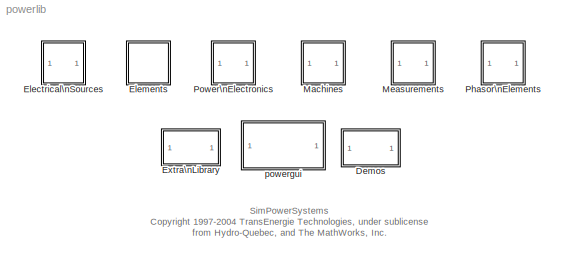
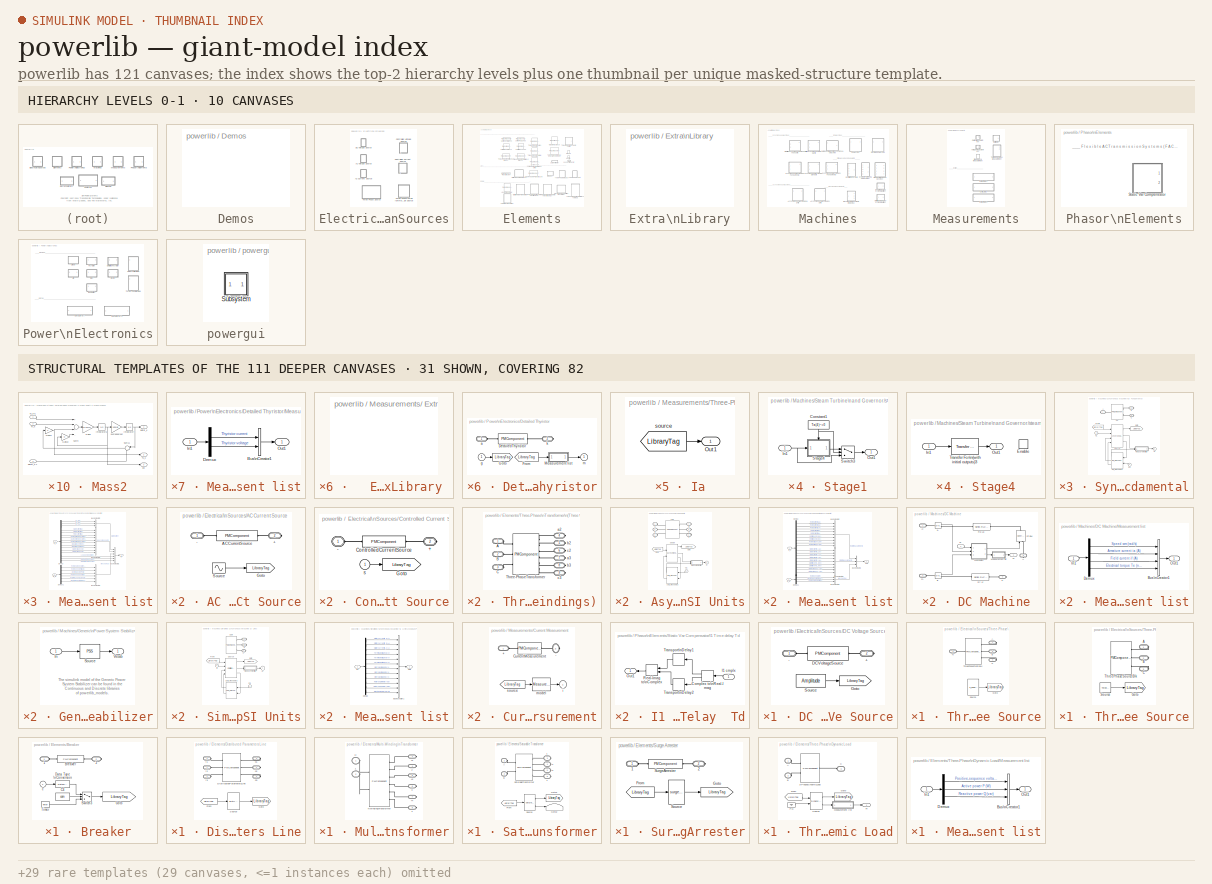
[diagram: thumbnail index - top-2 hierarchy levels (10 canvases) + 31 structural-template representatives of the remaining 111 canvases]
MODEL powerlib
KIND library
BLOCK [SubSystem] Demos
  MaskDisplay = disp('Demos')
  MaskIconFrame = on
  MaskIconOpaque = on
  MaskIconRotate = none
  MaskIconUnits = autoscale
  MinAlgLoopOccurrences = off
  OpenFcn = demo('Simulink','SimPowerSystems')
  Ports = []
  RTWSystemCode = Auto
  TreatAsAtomicUnit = off
BLOCK [SubSystem] Electrical\nSources
  MaskDisplay = image(imread([PSBroot,'PSBsources.bmp'],'bmp'))\n
  MaskIconFrame = on
  MaskIconOpaque = on
  MaskIconRotate = none
  MaskIconUnits = autoscale
  MaskInitialization = powerlibroot = which('powersysdomain');\nPSBroot = powerlibroot(1:end-16);
  MinAlgLoopOccurrences = off
  Opaque = on
  Ports = []
  RTWSystemCode = Auto
  TreatAsAtomicUnit = off
BLOCK [SubSystem] Electrical\nSources/AC Current Source
  CopyFcn = powericon('psbloadfunction',gcb,'goto','UpdateGotoTag');
  MaskCallbackString = ||||
  MaskDescription = Ideal sinusoidal AC current source. The positive current direction is indicated by the arrow.
  MaskDisplay = plot(-50,-35,50,50-15,[0,9,18,24,29,30,29,24,18,9,0,-9,-18,-24,-29,-30,-29,-24,-18,-9,0],[30,29,24,18,9,0,-9,-18,-24,-29,-30,-29,-24,-18,-9,0,9,18,24,29,30],[-20 5 5 20 5 5],[2 2 12 2 -8 2],[-50 -30],[0 0],[50,30],[0 0],[45 35 40 40 40],[15 15 15 20 10]);
  MaskEnableString = on,on,on,on,on
  MaskHelp = web(psbhelp);
  MaskIconFrame = off
  MaskIconOpaque = on
  MaskIconRotate = port
  MaskIconUnits = autoscale
  MaskInitialization = block = gcb;\npowericon('psbloadfunction',block,'goto','Initialize');\npowericon('ACSourceInit',block);
  MaskPromptString = Peak amplitude (A): |Phase (deg): |Frequency (Hz):|Sample time:|Measurements
  MaskSelfModifiable = on
  MaskStyleString = edit,edit,edit,edit,popup(None|Current)
  MaskTabNameString = ,,,,
  MaskToolTipString = on,on,on,on,on
  MaskTunableValueString = on,on,on,on,off
  MaskType = AC Current Source
  MaskValueString = 10|0|60|0|None
  MaskVarAliasString = ,,,,
  MaskVariables = Amplitude=@1;Phase=@2;Frequency=@3;SampleTime=@4;Measurements=@5;
  MaskVisibilityString = on,on,on,on,on
  MinAlgLoopOccurrences = off
  Ports = [0, 0, 0, 0, 0, 1, 1]
  RTWSystemCode = Auto
  TreatAsAtomicUnit = off
BLOCK [PMIOPort] Electrical\nSources/AC Current Source/+
  Port = 2
  Side = Right
BLOCK [PMIOPort] Electrical\nSources/AC Current Source/-
  Port = 1
  Side = Left
BLOCK [PMComponent] Electrical\nSources/AC Current Source/ACCurrentSource
  LConnTagsString = a
  LeftPortType = p1
  MaskIconFrame = on
  MaskIconOpaque = on
  MaskIconRotate = none
  MaskIconUnits = autoscale
  MaskType = InnerPowersysBlock
  PhysicalDomain = powersysdomain
  Ports = [0, 0, 0, 0, 0, 1, 1]
  RConnTagsString = __new0
  RightPortType = p1
BLOCK [Goto] Electrical\nSources/AC Current Source/Goto
  DialogController = Simulink.DDGSource
  GotoTag = LibraryTag
  TagVisibility = global
BLOCK [Sin] Electrical\nSources/AC Current Source/Source
  Amplitude = Amplitude
  Frequency = 2*pi*Frequency
  Phase = Phase*pi/180
  Ports = [0, 1]
  SampleTime = SampleTime
  SineType = Time based
BLOCK [SubSystem] Electrical\nSources/AC Voltage Source
  CopyFcn = powericon('psbloadfunction',gcb,'goto','UpdateGotoTag');
  MaskCallbackString = ||||
  MaskDescription = Ideal sinusoidal AC Voltage source.
  MaskDisplay = plot(-50,-35,50,50-15,[0,9,18,24,29,30,29,24,18,9,0,-9,-18,-24,-29,-30,-29,-24,-18,-9,0],[30,29,24,18,9,0,-9,-18,-24,-29,-30,-29,-24,-18,-9,0,9,18,24,29,30],[-50 -30],[0 0],[50,30],[0 0],[45 35 40 40 40],[15 15 15 20 10],[0,9,18,24,29,30,29,24,18,9,0,-9,-18,-24,-29,-30,-29,-24,-18,-9,0]./-2.4,[1 2 3 4 5 6 7 8 9 10 11 12 13 14 15 16 17 18 19 20 21].*1.5-15);
  MaskEnableString = on,on,on,on,on
  MaskHelp = web(psbhelp);
  MaskIconFrame = off
  MaskIconOpaque = on
  MaskIconRotate = port
  MaskIconUnits = autoscale
  MaskInitialization = block=gcb;\npowericon('psbloadfunction',block,'goto','Initialize');\npowericon('ACSourceInit',block);
  MaskPromptString = Peak amplitude (V): |Phase (deg):|Frequency (Hz):|Sample time:|Measurements
  MaskSelfModifiable = on
  MaskStyleString = edit,edit,edit,edit,popup(None|Voltage)
  MaskTabNameString = ,,,,
  MaskToolTipString = on,on,on,on,on
  MaskTunableValueString = on,on,on,on,off
  MaskType = AC Voltage Source
  MaskValueString = 100|0|60|0|None
  MaskVarAliasString = ,,,,
  MaskVariables = Amplitude=@1;Phase=@2;Frequency=@3;SampleTime=@4;Measurements=@5;
  MaskVisibilityString = on,on,on,on,on
  MinAlgLoopOccurrences = off
  Ports = [0, 0, 0, 0, 0, 1, 1]
  RTWSystemCode = Auto
  TreatAsAtomicUnit = off
BLOCK [PMIOPort] Electrical\nSources/AC Voltage Source/+
  Port = 2
  Side = Right
BLOCK [PMIOPort] Electrical\nSources/AC Voltage Source/-
  Port = 1
  Side = Left
BLOCK [PMComponent] Electrical\nSources/AC Voltage Source/ACVoltageSource
  LConnTagsString = a
  LeftPortType = p1
  MaskIconFrame = on
  MaskIconOpaque = on
  MaskIconRotate = none
  MaskIconUnits = autoscale
  MaskType = InnerPowersysBlock
  PhysicalDomain = powersysdomain
  Ports = [0, 0, 0, 0, 0, 1, 1]
  RConnTagsString = __new0
  RightPortType = p1
BLOCK [Goto] Electrical\nSources/AC Voltage Source/Goto
  DialogController = Simulink.DDGSource
  GotoTag = LibraryTag
  TagVisibility = global
BLOCK [Sin] Electrical\nSources/AC Voltage Source/Source
  Amplitude = Amplitude
  Frequency = 2*pi*Frequency
  Phase = Phase*pi/180
  Ports = [0, 1]
  SampleTime = SampleTime
  SineType = Time based
BLOCK [SubSystem] Electrical\nSources/Controlled Current Source
  CopyFcn = powericon('psbloadfunction',gcb,'goto','UpdateGotoTag');
  MaskCallbackString = powericon('ControlledSourcesCback',gcb);|powericon('ControlledSourcesCback',gcb);||||
  MaskDescription = Converts the Simulink input signal into an equivalent current source. The generated current is driven by the input signal of the block.\n\nYou can initialize your circuit with a specific AC or DC current. If you want to start the simulation in steady-state, the block input must be connected to a signal starting as a sinusoidal or DC waveform corresponding to the initial values.
  MaskDisplay = plot(-50,-35,50,50-15,[0,9,18,24,29,30,29,24,18,9,0,-9,-18,-24,-29,-30,-29,-24,-18,-9,0],[30,29,24,18,9,0,-9,-18,-24,-29,-30,-29,-24,-18,-9,0,9,18,24,29,30],[-20 5 5 20 5 5],[2 2 12 2 -8 2]);\n\n
  MaskEnableString = on,on,on,on,on,on
  MaskHelp = web(psbhelp);
  MaskIconFrame = on
  MaskIconOpaque = off
  MaskIconRotate = port
  MaskIconUnits = autoscale
  MaskInitialization = powericon('psbloadfunction',gcb,'goto','Initialize');\n\n\n
  MaskPromptString = Initialize|Source type|Initial amplitude (A):|Initial phase (deg):|Initial frequency (Hz):|Measurements
  MaskSelfModifiable = on
  MaskStyleString = checkbox,popup(AC|DC),edit,edit,edit,popup(None|Current)
  MaskTabNameString = ,,,,,
  MaskToolTipString = on,on,on,on,on,on
  MaskTunableValueString = off,off,off,off,off,off
  MaskType = Controlled Current Source
  MaskValueString = on|AC|0|0|0|None
  MaskVarAliasString = ,,,,,
  MaskVariables = Initialize=&1;SourceType=@2;Amplitude=@3;Phase=@4;Frequency=@5;Measurements=@6;
  MaskVisibilityString = on,on,on,on,on,on
  MinAlgLoopOccurrences = off
  Ports = [1, 0, 0, 0, 0, 1, 1]
  RTWSystemCode = Auto
  TreatAsAtomicUnit = off
BLOCK [PMIOPort] Electrical\nSources/Controlled Current Source/+
  Port = 2
  Side = Right
BLOCK [PMIOPort] Electrical\nSources/Controlled Current Source/-
  Port = 1
  Side = Left
BLOCK [PMComponent] Electrical\nSources/Controlled Current Source/ControlledCurrentSource
  LConnTagsString = a
  LeftPortType = p1
  MaskIconFrame = on
  MaskIconOpaque = on
  MaskIconRotate = none
  MaskIconUnits = autoscale
  MaskType = InnerPowersysBlock
  PhysicalDomain = powersysdomain
  Ports = [0, 0, 0, 0, 0, 1, 1]
  RConnTagsString = __new0
  RightPortType = p1
BLOCK [Goto] Electrical\nSources/Controlled Current Source/Goto
  DialogController = Simulink.DDGSource
  GotoTag = LibraryTag
  TagVisibility = global
BLOCK [Inport] Electrical\nSources/Controlled Current Source/s
  IconDisplay = Port number
  LatchInput = off
  Port = 1
BLOCK [SubSystem] Electrical\nSources/Controlled Voltage Source
  CopyFcn = powericon('psbloadfunction',gcb,'goto','UpdateGotoTag');
  MaskCallbackString = powericon('ControlledSourcesCback',gcb);|powericon('ControlledSourcesCback',gcb);||||
  MaskDescription = Converts the Simulink input signal into an equivalent voltage source. The generated voltage is driven by the input signal of the block. \n\nYou can initialize your circuit with a specific AC or DC voltage. If you want to start the simulation in steady-state, the block input must be connected to a signal starting as a sinusoidal or DC waveform corresponding to the initial values.
  MaskDisplay = plot(-50,-35,50,50-15,[0,9,18,24,29,30,29,24,18,9,0,-9,-18,-24,-29,-30,-29,-24,-18,-9,0],[30,29,24,18,9,0,-9,-18,-24,-29,-30,-29,-24,-18,-9,0,9,18,24,29,30],[0,9,18,24,29,30,29,24,18,9,0,-9,-18,-24,-29,-30,-29,-24,-18,-9,0]./-2.4,[1 2 3 4 5 6 7 8 9 10 11 12 13 14 15 16 17 18 19 20 21].*1.5-15);
  MaskEnableString = on,on,on,on,on,on
  MaskHelp = web(psbhelp);
  MaskIconFrame = on
  MaskIconOpaque = off
  MaskIconRotate = port
  MaskIconUnits = autoscale
  MaskInitialization = powericon('psbloadfunction',gcb,'goto','Initialize');\n\n
  MaskPromptString = Initialize|Source type|Initial amplitude (V):|Initial phase (deg):|Initial frequency (Hz):|Measurements
  MaskSelfModifiable = on
  MaskStyleString = checkbox,popup(AC|DC),edit,edit,edit,popup(None|Voltage)
  MaskTabNameString = ,,,,,
  MaskToolTipString = on,on,on,on,on,on
  MaskTunableValueString = off,off,off,off,off,off
  MaskType = Controlled Voltage Source
  MaskValueString = on|AC|0|0|0|None
  MaskVarAliasString = ,,,,,
  MaskVariables = Initialize=&1;SourceType=@2;Amplitude=@3;Phase=@4;Frequency=@5;Measurements=@6;
  MaskVisibilityString = on,on,on,on,on,on
  MinAlgLoopOccurrences = off
  Ports = [1, 0, 0, 0, 0, 1, 1]
  RTWSystemCode = Auto
  TreatAsAtomicUnit = off
BLOCK [PMIOPort] Electrical\nSources/Controlled Voltage Source/+
  Port = 2
  Side = Right
BLOCK [PMIOPort] Electrical\nSources/Controlled Voltage Source/-
  Port = 1
  Side = Left
BLOCK [PMComponent] Electrical\nSources/Controlled Voltage Source/ControlledVoltageSource
  LConnTagsString = a
  LeftPortType = p1
  MaskIconFrame = on
  MaskIconOpaque = on
  MaskIconRotate = none
  MaskIconUnits = autoscale
  MaskType = InnerPowersysBlock
  PhysicalDomain = powersysdomain
  Ports = [0, 0, 0, 0, 0, 1, 1]
  RConnTagsString = __new0
  RightPortType = p1
BLOCK [Goto] Electrical\nSources/Controlled Voltage Source/Goto
  DialogController = Simulink.DDGSource
  GotoTag = LibraryTag
  TagVisibility = global
BLOCK [Inport] Electrical\nSources/Controlled Voltage Source/s
  IconDisplay = Port number
  LatchInput = off
  Port = 1
BLOCK [SubSystem] Electrical\nSources/DC Voltage Source
  CopyFcn = powericon('psbloadfunction',gcb,'goto','UpdateGotoTag');
  MaskCallbackString = |
  MaskDescription = Ideal DC voltage source.
  MaskDisplay = plot(-10,-5,10,5,[10 1.25 1.25 1.25],[0 0 5 -5],[-10 -1.25 -1.25 -1.25],[0 0 -2 2],[6 4 5 5 5],[3 3 3 4 2])
  MaskEnableString = on,on
  MaskHelp = web(psbhelp);
  MaskIconFrame = off
  MaskIconOpaque = on
  MaskIconRotate = port
  MaskIconUnits = autoscale
  MaskInitialization = block=gcb;\npowericon('psbloadfunction',block,'goto','Initialize');\npowericon('DCVoltageSourceInit',block);\n
  MaskPromptString = Amplitude (V):|Measurements
  MaskSelfModifiable = on
  MaskStyleString = edit,popup(None|Voltage)
  MaskTabNameString = ,
  MaskToolTipString = on,on
  MaskTunableValueString = on,off
  MaskType = DC Voltage Source
  MaskValueString = 100|None
  MaskVarAliasString = ,
  MaskVariables = Amplitude=@1;Measurements=@2;
  MaskVisibilityString = on,on
  MinAlgLoopOccurrences = off
  Ports = [0, 0, 0, 0, 0, 1, 1]
  RTWSystemCode = Auto
  TreatAsAtomicUnit = off
BLOCK [PMIOPort] Electrical\nSources/DC Voltage Source/+
  Port = 2
  Side = Right
BLOCK [PMIOPort] Electrical\nSources/DC Voltage Source/-
  Port = 1
  Side = Left
BLOCK [PMComponent] Electrical\nSources/DC Voltage Source/DCVoltageSource
  LConnTagsString = a
  LeftPortType = p1
  MaskIconFrame = on
  MaskIconOpaque = on
  MaskIconRotate = none
  MaskIconUnits = autoscale
  MaskType = InnerPowersysBlock
  PhysicalDomain = powersysdomain
  Ports = [0, 0, 0, 0, 0, 1, 1]
  RConnTagsString = __new0
  RightPortType = p1
BLOCK [Goto] Electrical\nSources/DC Voltage Source/Goto
  DialogController = Simulink.DDGSource
  GotoTag = LibraryTag
  TagVisibility = global
BLOCK [Constant] Electrical\nSources/DC Voltage Source/Source
  Value = Amplitude
BLOCK [SubSystem] Electrical\nSources/Three-Phase Source
  CopyFcn = powericon('psbloadfunction',gcb,'goto','UpdateGotoTag');
  MaskCallbackString = |||powericon('ThreePhaseSourceCback',gcb);|powericon('ThreePhaseSourceCback',gcb);|||||
  MaskDescription = Three-phase voltage source in series with RL branch.
  MaskDisplay = plot(-180,-50,350,50,s1,s2,s3,s4,\n[0,9,18,24,29,30,29,24,18,9,0,-9,-18,-24,-29,-30,-29,-24,-18,-9,0]*1.5-45, \n[30,29,24,18,9,0,-9,-18,-24,-29,-30,-29,-24,-18,-9,0,9,18,24,29,30]*0.8,[-150,-90],[0,0]);\nplot(g1,g2,g3,g4,g5,g6);\nplot([1 2 3 4 5 6 7 8 9 10 11 12 13 14 15 16 17 18 19 20 21].*2.5-72,\n[0,9,18,24,29,30,29,24,18,9,0,-9,-18,-24,-29,-30,-29,-24,-18,-9,0]./3)\n
  MaskEnableString = on,on,on,on,on,on,on,on,on,on
  MaskHelp = web(psbhelp);
  MaskIconFrame = on
  MaskIconOpaque = off
  MaskIconRotate = port
  MaskIconUnits = autoscale
  MaskInitialization = block = gcb;\nAmplitude = Voltage*sqrt(2)/sqrt(3);\nPhase=PhaseAngle;\npowericon('ThreePhaseSourceCback',block);\n[s1,s2,s3,s4,g1,g2,g3,g4,g5,g6] = powericon('ThreePhaseSourceIcon',Resistance,Inductance,InternalConnection);\npowericon('psbloadfunction',block,'goto','Initialize');\nTs = powericon('ThreePhaseSourceInit',block);
  MaskPromptString = Phase-to-phase rms voltage (V):|Phase angle of phase A (degrees):|Frequency (Hz):|Internal connection:|Specify impedance using short-circuit level|Source resistance (Ohms):|Source inductance (H):|3-phase short-circuit level at base voltage(VA):|Base voltage (Vrms ph-ph):|X/R ratio:
  MaskSelfModifiable = on
  MaskStyleString = edit,edit,edit,popup(Y|Yn|Yg),checkbox,edit,edit,edit,edit,edit
  MaskTabNameString = ,,,,,,,,,
  MaskToolTipString = on,on,on,on,on,on,on,on,on,on
  MaskTunableValueString = off,off,off,off,off,off,off,off,off,off
  MaskType = Three-Phase Source
  MaskValueString = 25e3|0|60|Yg|on|0.8929|16.58e-3|100e6|25e3|7
  MaskVarAliasString = ,,,,,,,,,
  MaskVariables = Voltage=@1;PhaseAngle=@2;Frequency=@3;InternalConnection=@4;SpecifyImpedance=&5;Resistance=@6;Inductance=@7;ShortCircuitLevel=@8;BaseVoltage=@9;XRratio=@10;
  MaskVisibilityString = on,on,on,on,on,off,off,on,on,on
  MinAlgLoopOccurrences = off
  Ports = [0, 0, 0, 0, 0, 0, 3]
  RTWSystemCode = Auto
  TreatAsAtomicUnit = off
BLOCK [PMIOPort] Electrical\nSources/Three-Phase Source/A
  Port = 1
  Side = Right
BLOCK [PMIOPort] Electrical\nSources/Three-Phase Source/B
  Port = 2
  Side = Right
BLOCK [PMIOPort] Electrical\nSources/Three-Phase Source/C
  Port = 3
  Side = Right
BLOCK [Goto] Electrical\nSources/Three-Phase Source/Goto
  DialogController = Simulink.DDGSource
  GotoTag = LibraryTag
  TagVisibility = global
BLOCK [Reference] Electrical\nSources/Three-Phase Source/Source  REF=powerlib_models/Sources/ThreePhaseSource
  Ports = [0, 1]
  ShowPortLabels = on
  SourceBlock = powerlib_models/Sources/ThreePhaseSource
  SourceType = SubSystem
BLOCK [PMComponent] Electrical\nSources/Three-Phase Source/ThreePhaseSourceBlk
  LConnTagsString = N
  LeftPortType = p1
  MaskIconFrame = on
  MaskIconOpaque = on
  MaskIconRotate = none
  MaskIconUnits = autoscale
  MaskType = InnerPowersysBlock
  PhysicalDomain = powersysdomain
  Ports = [0, 0, 0, 0, 0, 1, 3]
  RConnTagsString = A|B|C
  RightPortType = p1
BLOCK [SubSystem] Electrical\nSources/Three-Phase\nProgrammable\nVoltage Source
  CopyFcn = powericon('psbloadfunction',gcb,'goto','UpdateGotoTag');
  MaskCallbackString = |powericon('ProgrammableVoltageSourceCback',gcb);|powericon('ProgrammableVoltageSourceCback',gcb);|||||||||powericon('ProgrammableVoltageSourceCback',gcb);|||
  MaskDescription = This block implements a three-phase zero-impedance voltage source. The common node (neutral) of the three sources is accessible via input 1 (N) of the block. Time variation for the amplitude, phase and frequency of the fundamental can be pre-programmed. In addition, two harmonics can be surimposed on the fundamental.\n\nNote: For  \"Phasor simulation\" , frequency variation and harmonic injection ...<+122ch>
  MaskDisplay = plot(-80,-50,80,50,[0,9,18,24,29,30,29,24,18,9,0,-9,-18,-24,-29,-30,-29,-24,-18,-9,0],[30,29,24,18,9,0,-9,-18,-24,-29,-30,-29,-24,-18,-9,0,9,18,24,29,30],[-50 -30],[0 0],[50,30],[0 0],[45 35 40 40 40],[15 15 15 20 10],[1 2 3 4 5 6 7 8 9 10 11 12 13 14 15 16 17 18 19 20 21].*1.5-15,[0,9,18,24,29,30,29,24,18,9,0,-9,-18,-24,-29,-30,-29,-24,-18,-9,0]./2.4)\n
  MaskEnableString = on,on,on,on,on,on,on,on,on,on,on,on,on,on,on
  MaskHelp = web(psbhelp)
  MaskIconFrame = on
  MaskIconOpaque = off
  MaskIconRotate = port
  MaskIconUnits = autoscale
  MaskInitialization = block=gcb;\n% Extra variable:\nSinglePhase=0;\n\n% Conversion of pos. seq.amplitude from Ph-Ph rms voltage to Phase-gnd peak\nMagnitudeVps = PositiveSequence(1)*sqrt(2/3);\nPhaseVps = PositiveSequence(2);\nFreqVps = PositiveSequence(3);\n\n% Conversion of harmonic amplitudes from pu to Phase-gnd peak volt\nHarmonicA(2) = HarmonicA(2)*MagnitudeVps;\nHarmonicB(2) = HarmonicB(2)*MagnitudeVps;\n\n% Co...<+1093ch>
  MaskPromptString = Positive-sequence: [ Amplitude(Vrms Ph-Ph)  Phase(deg.)   Freq. (Hz) ]|Time variation of:|Type of variation:|Step magnitude (pu, Hz or deg.):|Rate of change (pu/s, Hz/s or deg/s):|Amplitude of the modulation (pu, Hz or deg.):|Frequency of the modulation(Hz):|Variation timing (s) : [ Start   End ]|Variation on phase A only|Amplitude values (pu):|Time values:|Fundamental and/or Harmonic generation:|...<+156ch>
  MaskSelfModifiable = on
  MaskStyleString = edit,popup(None|Amplitude|Phase|Frequency),popup(Step|Ramp|Modulation|Table of time-amplitude pairs),edit,edit,edit,edit,edit,checkbox,edit,edit,checkbox,edit,edit,edit
  MaskTabNameString = ,,,,,,,,,,,,,,
  MaskToolTipString = on,on,on,on,on,on,on,on,on,on,on,on,on,on,on
  MaskTunableValueString = on,on,on,on,on,on,on,on,on,on,on,on,on,on,on
  MaskType = Three-Phase Programmable Voltage Source
  MaskValueString = [100  0 60]|Amplitude|Step|0.5|10|0.3|2|[1 2]|off|[1 0.8 1.2 1.0]|[0 0.1 0.15 0.2]|off|[3 0.2 -25 0]|[2 0.15 35 2]|[0.05  3]
  MaskVarAliasString = ,,,,,,,,,,,,,,
  MaskVariables = PositiveSequence=@1;VariationEntity=@2;VariationType=@3;VariationStep=@4;VariationRate=@5;VariationMagnitude=@6;VariationFrequency=@7;VariationTiming=@8;VariationPhaseA=@9;Amplitudes=@10;TimeValues=@11;HarmonicGeneration=@12;HarmonicA=@13;HarmonicB=@14;Timing=@15;
  MaskVisibilityString = on,on,on,on,off,off,off,on,off,off,off,on,off,off,off
  MinAlgLoopOccurrences = off
  Ports = [0, 0, 0, 0, 0, 1, 3]
  RTWSystemCode = Auto
  TreatAsAtomicUnit = off
BLOCK [PMIOPort] Electrical\nSources/Three-Phase\nProgrammable\nVoltage Source/A
  Port = 2
  Side = Right
BLOCK [PMIOPort] Electrical\nSources/Three-Phase\nProgrammable\nVoltage Source/B
  Port = 3
  Side = Right
BLOCK [PMIOPort] Electrical\nSources/Three-Phase\nProgrammable\nVoltage Source/C
  Port = 4
  Side = Right
BLOCK [Goto] Electrical\nSources/Three-Phase\nProgrammable\nVoltage Source/Goto
  DialogController = Simulink.DDGSource
  GotoTag = LibraryTag
  TagVisibility = global
BLOCK [PMIOPort] Electrical\nSources/Three-Phase\nProgrammable\nVoltage Source/N
  Port = 1
  Side = Left
BLOCK [Reference] Electrical\nSources/Three-Phase\nProgrammable\nVoltage Source/Source  REF=powerlib_models/Continuous/3_Phase_Prog_Source
  Ports = [0, 1]
  ShowPortLabels = on
  SourceBlock = powerlib_models/Continuous/3_Phase_Prog_Source
  SourceType = SubSystem
BLOCK [PMComponent] Electrical\nSources/Three-Phase\nProgrammable\nVoltage Source/ThreePhasePrgSrcBlk
  LConnTagsString = N
  LeftPortType = p1
  MaskIconFrame = on
  MaskIconOpaque = on
  MaskIconRotate = none
  MaskIconUnits = autoscale
  MaskType = InnerPowersysBlock
  PhysicalDomain = powersysdomain
  Ports = [0, 0, 0, 0, 0, 1, 3]
  RConnTagsString = A|B|C
  RightPortType = p1
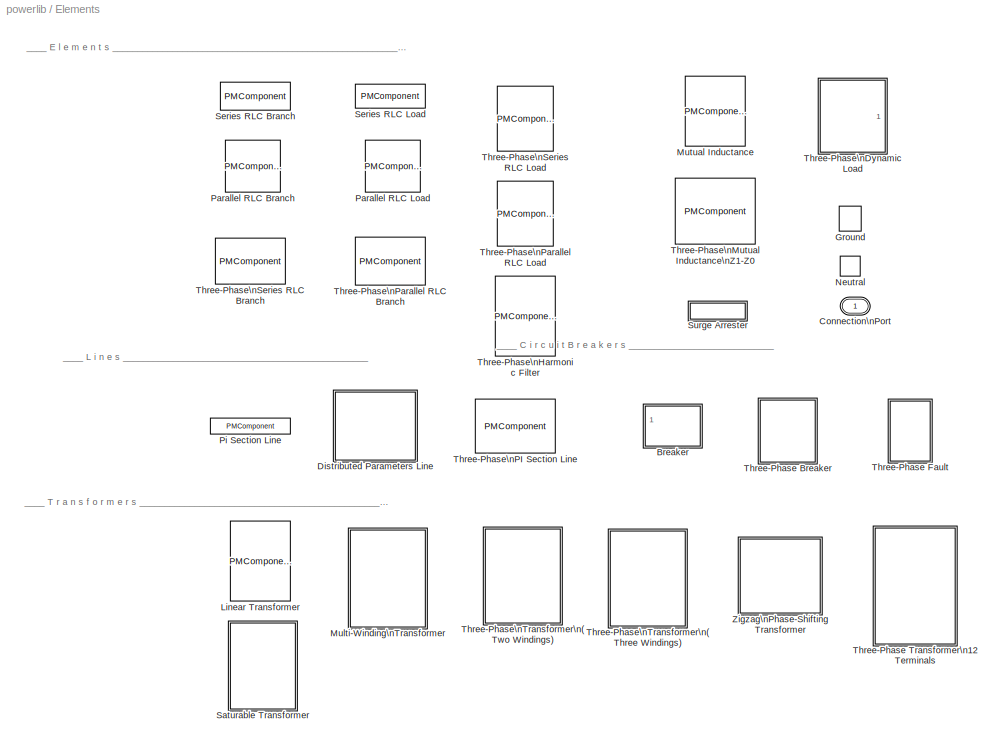
BLOCK [SubSystem] Elements
  MaskDisplay = image(imread([PSBroot,'PSBelements.bmp'],'bmp'))\n
  MaskIconFrame = on
  MaskIconOpaque = on
  MaskIconRotate = none
  MaskIconUnits = autoscale
  MaskInitialization = powerlibroot = which('powersysdomain');\nPSBroot = powerlibroot(1:end-16);
  MinAlgLoopOccurrences = off
  Ports = [0, 0, 0, 0, 0, 1]
  RTWSystemCode = Auto
  TreatAsAtomicUnit = off
BLOCK [SubSystem] Elements/Breaker
  CopyFcn = powericon('psbloadfunction',gcb,'goto','UpdateGotoTag');
  MaskCallbackString = |||||powericon('BreakerCback',gcb);|
  MaskDescription = Implements a circuit breaker with internal resistance Ron. Ron is required by the\nmodel  and cannot be set to zero. \n\nWhen the external control mode is selected, a Simulink  logical signal is used to\ncontrol the breaker operation.  When  the signal becomes greater than zero the \nbreaker closes instantaneously.  When it becomes zero, the breaker opens at the \nnext current zero-crossing.
  MaskDisplay = plot(p0,25,p1,75,[15,15,25,25,15],[55,45,45,55,55],[75,75,85,85,75],[55,45,45,55,55],[25,75],[50,p3],s1,s2)
  MaskEnableString = on,on,on,on,on,on,on
  MaskHelp = web(psbhelp);
  MaskIconFrame = on
  MaskIconOpaque = off
  MaskIconRotate = port
  MaskIconUnits = autoscale
  MaskInitialization = block = gcb;\n[p0,p1,p3,s1,s2,com,switchings]=powericon('Breaker',InitialState,SnubberResistance,SnubberCapacitance,SwitchingTimes,External);\npowericon('BreakerCback',block);\npowericon('psbloadfunction',block,'goto','Initialize');
  MaskPromptString = Breaker resistance Ron (Ohm):|Initial state ( 0 for 'open' , 1 for 'closed' ):|Snubber resistance Rs (Ohms):|Snubber capacitance Cs (F):|Switching times (s):|External control of switching times|Measurements
  MaskSelfModifiable = on
  MaskStyleString = edit,edit,edit,edit,edit,checkbox,popup(None|Branch voltage|Branch current|Branch voltage and current)
  MaskTabNameString = ,,,,,,
  MaskToolTipString = on,on,on,on,on,on,on
  MaskTunableValueString = off,off,off,off,off,off,off
  MaskType = Breaker
  MaskValueString = 0.01|0|1e6|inf|[ 1/60  5/60 ]|on|None
  MaskVarAliasString = ,,,,,,
  MaskVariables = BreakerResistance=@1;InitialState=@2;SnubberResistance=@3;SnubberCapacitance=@4;SwitchingTimes=@5;External=&6;Measurements=@7;
  MaskVisibilityString = on,on,on,on,off,on,on
  MinAlgLoopOccurrences = off
  Ports = [1, 0, 0, 0, 0, 1, 1]
  RTWSystemCode = Auto
  TreatAsAtomicUnit = off
BLOCK [PMIOPort] Elements/Breaker/1
  Port = 1
  Side = Left
BLOCK [PMIOPort] Elements/Breaker/2
  Port = 2
  Side = Right
BLOCK [PMComponent] Elements/Breaker/Breaker
  LConnTagsString = a
  LeftPortType = p1
  MaskIconFrame = on
  MaskIconOpaque = on
  MaskIconRotate = none
  MaskIconUnits = autoscale
  MaskType = InnerPowersysBlock
  PhysicalDomain = powersysdomain
  Ports = [0, 0, 0, 0, 0, 1, 1]
  RConnTagsString = __new0
  RightPortType = p1
BLOCK [Constant] Elements/Breaker/C4
  Value = com
BLOCK [DataTypeConversion] Elements/Breaker/Data Type \nConversion
  OutDataTypeMode = double
BLOCK [Goto] Elements/Breaker/Goto
  DialogController = Simulink.DDGSource
  GotoTag = LibraryTag
  TagVisibility = global
BLOCK [Switch] Elements/Breaker/Switch3
  SaturateOnIntegerOverflow = off
  Threshold = 0.5
  ZeroCross = off
BLOCK [Reference] Elements/Breaker/Timer  REF=powerlib_extras/Control \nBlocks/Timer
  Ports = [0, 1]
  ShowPortLabels = on
  SourceBlock = powerlib_extras/Control \nBlocks/Timer
  SourceType = Timer
  e = switchings
  t = SwitchingTimes
BLOCK [Inport] Elements/Breaker/c
  IconDisplay = Port number
  LatchInput = off
  Port = 1
BLOCK [PMIOPort] Elements/Connection\nPort
  Port = 1
  Side = Left
  Tag = PMCPort
BLOCK [SubSystem] Elements/Distributed Parameters Line
  CopyFcn = powericon('psbloadfunction',gcb,'gotofrom','UpdateGotoTag');
  MaskCallbackString = powericon('DistributedParameterLineCback',gcb);|||||||||||
  MaskDescription = Implements a N-phases distributed parameter line model. The R,L, and C line parameters are specified by [NxN] matrices.\n\nTo model a two-, three-, or a six-phase symetrical line you can either specify complete [NxN] matrices or simply enter sequence parameters vectors: the  positive and zero sequence parameters for a two-phase or  three-phase transposed  line, plus the mutual zero-sequence for a ...<+55ch>
  MaskDisplay = plot([0 20 20 80 80 100 80 80 20 20],[0 0 5 5 0 0 0 -5 -5 0]+100,[0 20 20 80 80 100 80 80 20 20],[0 0 5 5 0 0 0 -5 -5 0]+60,[0 20 20 80 80 100 80 80 20 20],[0 0 5 5 0 0 0 -5 -5 0]+20,0,0,100,120)
  MaskEnableString = on,on,on,on,on,on,on,on,on,on,on,on
  MaskHelp = web(psbhelp);
  MaskIconFrame = off
  MaskIconOpaque = on
  MaskIconRotate = port
  MaskIconUnits = autoscale
  MaskInitialization = Block = gcb;\npowericon('DistributedParameterLineIcon',Block);\npowericon('psbloadfunction',Block,'gotofrom','Initialize');\nTs = powericon('DistributedParameterLineInit',Block);\npowericon('DistributedParameterLineCback',Block);\n
  MaskPromptString = Number of phases N|Frequency used for R L C specification (Hz) |Resistance per unit length (Ohms/km)   [N*N matrix] or [R1 R0 R0m]|Inductance per unit length (H/km) [N*N matrix ] or [L1 L0 L0m] |Capacitance per unit length (F/km) [N*N matrix] or [C1 C0 C0m] |Line length (km)|v1 init|v2 init|I1 init|I2 init|time delay init|Measurements
  MaskSelfModifiable = on
  MaskStyleString = edit,edit,edit,edit,edit,edit,edit,edit,edit,edit,edit,popup(None|Phase-to-ground voltages)
  MaskTabNameString = ,,,,,,,,,,,
  MaskToolTipString = on,on,on,on,on,on,on,on,on,on,on,on
  MaskTunableValueString = off,off,off,off,off,off,off,off,off,off,off,off
  MaskType = Distributed Parameters Line
  MaskValueString = 3|60|[0.01273 0.3864]|[0.9337e-3  4.1264e-3]|[12.74e-9 7.751e-9]|100|[0 0 0 0; 0.0001244 0 0 0; 0.0002488 0 0 0; 0.0003733 0 0 0; 0.0004977 0 0 0; 0.0006221 0 0 0]|[0 0 0 0; 0.0001244 0 0 0; 0.0002488 0 0 0; 0.0003733 0 0 0; 0.0004977 0 0 0; 0.0006221 0 0 0]|[0 0 0 0; 0.0001244 0 0 0; 0.0002488 0 0 0; 0.0003733 0 0 0; 0.0004977 0 0 0; 0.0006221 0 0 0]|[0 0 0 0; 0.0001244 0 0 0; 0.0002488 0 0 0; 0....<+55ch>
  MaskVarAliasString = ,,,,,,,,,,,
  MaskVariables = Phases=@1;Frequency=@2;Resistance=@3;Inductance=@4;Capacitance=@5;Length=@6;x1=@7;x2=@8;x3=@9;x4=@10;x5=@11;Measurements=@12;
  MaskVisibilityString = on,on,on,on,on,on,off,off,off,off,off,on
  MinAlgLoopOccurrences = off
  Ports = [0, 0, 0, 0, 0, 3, 3]
  RTWSystemCode = Auto
  TreatAsAtomicUnit = off
BLOCK [PMComponent] Elements/Distributed Parameters Line/DistributedParametersLine
  LConnTagsString = 1|2|3
  LeftPortType = p1
  MaskIconFrame = on
  MaskIconOpaque = on
  MaskIconRotate = none
  MaskIconUnits = autoscale
  MaskType = InnerPowersysBlock
  PhysicalDomain = powersysdomain
  Ports = [0, 0, 0, 0, 0, 3, 3]
  RConnTagsString = 1|2|3
  RightPortType = p1
BLOCK [From] Elements/Distributed Parameters Line/From
  CloseFcn = tagdialog Close
  DialogController = Simulink.DDGSource
  GotoTag = LibraryTag
BLOCK [Goto] Elements/Distributed Parameters Line/Goto
  DialogController = Simulink.DDGSource
  GotoTag = LibraryTag
  TagVisibility = global
BLOCK [Reference] Elements/Distributed Parameters Line/Source  REF=powerlib_models/Continuous/distributed_param_line
  I1_init = x3
  I2_init = x4
  Ports = [1, 1]
  ShowPortLabels = on
  SourceBlock = powerlib_models/Continuous/distributed_param_line
  SourceType = Distributed Parameter Line Model
  V1_init = x1
  V2_init = x2
  ci = Capacitance
  f = Frequency
  li = Inductance
  long = Length
  nphase = Phases
  ri = Resistance
  time_init = x5
BLOCK [PMIOPort] Elements/Distributed Parameters Line/i1
  Port = 1
  Side = Left
BLOCK [PMIOPort] Elements/Distributed Parameters Line/i2
  Port = 2
  Side = Left
BLOCK [PMIOPort] Elements/Distributed Parameters Line/i3
  Port = 3
  Side = Left
BLOCK [PMIOPort] Elements/Distributed Parameters Line/o1
  Port = 4
  Side = Right
BLOCK [PMIOPort] Elements/Distributed Parameters Line/o2
  Port = 5
  Side = Right
BLOCK [PMIOPort] Elements/Distributed Parameters Line/o3
  Port = 6
  Side = Right
BLOCK [PMComponent] Elements/Ground
  CopyFcn = set_param(gcb,'ShowName','off')
  LConnTagsString = a
  LeftPortType = p1
  MaskDescription = Ground connection.
  MaskDisplay = plot(-10,-10,10,10,-[5 5],[-10 10],[0 0],[-5 5],-[-5 -5],[-2.5 2.5],-[15 5],[0 0])
  MaskHelp = web(psbhelp);
  MaskIconFrame = off
  MaskIconOpaque = on
  MaskIconRotate = port
  MaskIconUnits = autoscale
  MaskType = Ground
  PhysicalDomain = powersysdomain
  Ports = [0, 0, 0, 0, 0, 1]
  RightPortType = p1
BLOCK [PMComponent] Elements/Linear Transformer
  LConnTagsString = a|b
  LeftPortType = p1
  MaskCallbackString = |||powericon('psbcallbacks',gcb,'Linear Transformer');|||
  MaskDescription = Three windings linear transformer.
  MaskDisplay = plot(-85,-100,85,100,[-85 -45 -44 -34 -26 -21 -20 -22 -28 -37 -47 -57 -63 -63 -54 -44 -34 -26 -21 -20 -22 -28 -37 -47 -57 -63 -63 -54 -44 -34 -26 -21 -20 -22 -28 -37 -47 -57 -63 -63 -54 -44 -34 -26 -21 -20 -22 -28 -37 -45 -45 -85],[-50 -50 -50 -49 -45 -39 -33 -26 -21 -18 -17 -19 -22 -22 -26 -27 -25 -22 -16 -9 -3 2 6 6 4 1 1 -3 -4 -2 2 7 14 20 26 29 30 28 24 24 21 20 21 25 31 37 44 49 50 50 50 50],...<+861ch>
  MaskEnableString = on,on,on,on,on,on,on
  MaskHelp = web(psbhelp);
  MaskIconFrame = off
  MaskIconOpaque = on
  MaskIconRotate = port
  MaskIconUnits = autoscale
  MaskInitialization = powericon('psbcallbacks',gcb,'Linear Transformer');
  MaskPromptString = Nominal power and frequency [Pn(VA) fn(Hz)]:|Winding 1 parameters [V1(Vrms) R1(pu) L1(pu)]:|Winding 2 parameters [V2(Vrms) R2(pu) L2(pu)]:|Three windings transformer|Winding 3 parameters [V3(Vrms) R3(pu) L3(pu)]:|Magnetization resistance and reactance [Rm(pu) Lm(pu)]:|Measurements
  MaskSelfModifiable = on
  MaskStyleString = edit,edit,edit,checkbox,edit,edit,popup(None|Winding voltages|Winding currents|Magnetization current|All voltages and currents)
  MaskTabNameString = ,,,,,,
  MaskToolTipString = on,on,on,on,on,on,on
  MaskTunableValueString = off,off,off,off,off,off,off
  MaskType = Linear Transformer
  MaskValueString = [ 250e6 60 ] |[ 424.35e3  0.002  0.08 ]|[ 181.87e3  0.002  0.08 ]|on|[ 60e3 0.005 0.02 ]|[ 500 500 ]|None
  MaskVarAliasString = ,,,,,,
  MaskVariables = NominalPower=@1;winding1=@2;winding2=@3;ThreeWindings=@4;winding3=@5;RmLm=@6;Measurements=@7;
  MaskVisibilityString = on,on,on,on,on,on,on
  PhysicalDomain = powersysdomain
  Ports = [0, 0, 0, 0, 0, 2, 4]
  RConnTagsString = A|B|C|D
  RightPortType = p1
BLOCK [SubSystem] Elements/Multi-Winding\nTransformer
  MaskCallbackString = powericon('NWindingsTransformerCback',gcb,0);|powericon('NWindingsTransformerCback',gcb,0);|powericon('NWindingsTransformerCback',gcb,1);|powericon('NWindingsTransformerCback',gcb,1);|||||powericon('NWindingsTransformerCback',gcb,0);||||powericon('NWindingsTransformerCback',gcb,0);||||
  MaskDescription = Implements a transformer with multiple windings. The number of windings can be \nspecified for the left side and for the right side of the block.  Taps can be added\nto the upper left winding or  to the upper right winding.
  MaskDisplay = plot(-300,-200,300,200,lx,ly,rx,ry)\n\nplot([-10,-10],[-180,180])\nplot([10,10],[-180,180])\n\ncolor('white')\nplot(hlx,hly,hrx,hry)\n\n
  MaskEnableString = on,on,on,on,on,on,on,on,on,on,on,on,on,on,on,on,on
  MaskHelp = web(psbhelp);
  MaskIconFrame = on
  MaskIconOpaque = off
  MaskIconRotate = port
  MaskIconUnits = autoscale
  MaskInitialization = block = gcb;\n[lx,ly,rx,ry,hlx,hly,hrx,hry] = powericon('NWindingsTransformerIcon');\n%\npowerbase = NominalPower(1);\nwbase = 2*pi*NominalPower(2);\nif TappedWindings>1\n	voltbase = NominalVoltages(1)/(NumberOfTaps+1);\nelse\n    voltbase = NominalVoltages(1);\nend\nBaseCurrent = (powerbase/voltbase)*sqrt(2);\nBaseFlux = (voltbase/wbase)*sqrt(2);\n%\nif SetSaturation\n	Saturation = [-Saturation(s...<+668ch>
  MaskPromptString = Number of windings on left side|Number of windings on right side|Tapped winding|----  Number of taps (equally spaced):|Nominal power and frequency [Pn(VA) fn(Hz)]:|Winding nominal voltages [U1 U2 ... Un] (Vrms): |Winding resistances [R1 R2 ... Rn] (pu): |Winding leakage inductances [L1 L2 ... Ln] (pu): |Saturable core|Magnetization resistance  Rm (pu)|Magnetization reactance Lm (pu)|Saturation cha...<+171ch>
  MaskSelfModifiable = on
  MaskStyleString = edit,edit,popup(no taps|taps on upper left winding|taps on upper right winding),edit,edit,edit,edit,edit,checkbox,edit,edit,edit,checkbox,edit,popup(None|Winding voltages|Winding currents|Flux and excitation current ( Imag + IRm )|Flux and magnetization current ( Imag )|All measurements (V I Flux)),edit,edit
  MaskTabNameString = ,,,,,,,,,,,,,,,,
  MaskToolTipString = on,on,on,on,on,on,on,on,on,on,on,on,on,on,on,on,on
  MaskTunableValueString = off,off,off,off,off,off,off,off,off,off,off,off,off,off,off,off,off
  MaskType = Multi-Winding Transformer
  MaskValueString = 1|3|no taps|2|[75e3 60]|[ 14400  120  120 120 ]|[ 0.005  0.005  0.005  0.005]|[ 0.02  0.02  0.02  0.02 ]|off|50 |50|[ 0,0 ; 0.0024,1.2 ; 1.0,1.52 ]|off|'hysteresis.mat'|None|0|1
  MaskVarAliasString = ,,,,,,,,,,,,,,,,
  MaskVariables = LeftWindings=@1;RightWindings=@2;TappedWindings=@3;NumberOfTaps=@4;NominalPower=@5;NominalVoltages=@6;WindingResistances=@7;WindingInductances=@8;SetSaturation=@9;Rm=@10;Lm=@11;Saturation=@12;Hysteresis=@13;DataFile=@14;Measurements=@15;InitialFlux=@16;TransfoNumber=@17;
  MaskVisibilityString = on,on,on,off,on,on,on,on,on,on,on,off,off,off,on,off,off
  MinAlgLoopOccurrences = off
  Ports = [0, 0, 0, 0, 0, 2, 6]
  RTWSystemCode = Auto
  TreatAsAtomicUnit = off
BLOCK [PMIOPort] Elements/Multi-Winding\nTransformer/+2
  Port = 3
  Side = Right
BLOCK [PMIOPort] Elements/Multi-Winding\nTransformer/+3
  Port = 5
  Side = Right
BLOCK [PMIOPort] Elements/Multi-Winding\nTransformer/+4
  Port = 7
  Side = Right
BLOCK [PMIOPort] Elements/Multi-Winding\nTransformer/1
  Port = 2
  Side = Left
BLOCK [PMIOPort] Elements/Multi-Winding\nTransformer/1+
  Port = 1
  Side = Left
BLOCK [PMIOPort] Elements/Multi-Winding\nTransformer/2
  Port = 4
  Side = Right
BLOCK [PMIOPort] Elements/Multi-Winding\nTransformer/3
  Port = 6
  Side = Right
BLOCK [PMIOPort] Elements/Multi-Winding\nTransformer/4
  Port = 8
  Side = Right
BLOCK [PMComponent] Elements/Multi-Winding\nTransformer/NWindingsTransformer
  LConnTagsString = 1|2
  LeftPortType = p1
  MaskIconFrame = on
  MaskIconOpaque = on
  MaskIconRotate = none
  MaskIconUnits = autoscale
  MaskType = InnerPowersysBlock
  PhysicalDomain = powersysdomain
  Ports = [0, 0, 0, 0, 0, 2, 6]
  RConnTagsString = 1|2|3|4|5|6
  RightPortType = p1
BLOCK [PMComponent] Elements/Mutual Inductance
  AttributesFormatString = \\n
  LConnTagsString = a|b|c
  LeftPortType = p1
  MaskCallbackString = ||powericon('psbcallbacks',gcb,'Mutual Inductance');|||
  MaskDescription = Implements three inductances with mutual coupling.
  MaskDisplay = plot(-90,-75,90,85,x-50,-y*0.8+58,x-50,y*0.8+5,x-50,y*0.8-49,bx,by+30,bx,by-20)
  MaskEnableString = on,on,on,on,on,on
  MaskHelp = web(psbhelp);
  MaskIconFrame = off
  MaskIconOpaque = on
  MaskIconRotate = port
  MaskIconUnits = autoscale
  MaskInitialization = powericon('psbcallbacks',gcb,'Mutual Inductance');\nx = [-40 0 0 1 5 11 17 24 29 32 33 31 28 28 24 23 25 28 34 41 47 52 56 56 54 51 51 47 46 48 52 57 64 70 76 79 80 78 74 74 71 70 71 75 81 87 94 99 100 100 100 140];\ny = [0 0 1 11 19 24 25 23 17 8 -2 -12 -18 -18 -9 1 11 19 24 25 23 17 8 -2 -12 -18 -18 -9 1 11 19 24 25 23 17 8 -2 -12 -18 -18 -9 1 11 19 24 25 23 17 8 0 0 0];\nbx = [-50,50];\nby = [0...<+4ch>
  MaskPromptString = Winding 1 self impedance [R1(Ohm) L1(H)]:|Winding 2 self impedance [R2(Ohm) L2(H)]:|Three windings Mutual Inductance|Winding 3 self impedance [R3(Ohm) L3(H)]:|Mutual impedance [Rm(Ohm) Lm(H)]:|Measurements
  MaskSelfModifiable = on
  MaskStyleString = edit,edit,checkbox,edit,edit,popup(None|Winding voltages|Winding currents|Winding voltages and currents)
  MaskTabNameString = ,,,,,
  MaskToolTipString = on,on,on,on,on,on
  MaskTunableValueString = off,off,off,off,off,off
  MaskType = Mutual Inductance
  MaskValueString = [1.1 1.1e-03] |[ 1.1 1.1e-03]|on|[ 1.1 1.1e-03]|[1.0 1.0e-03]|None
  MaskVarAliasString = ,,,,,
  MaskVariables = SelfImpedance1=@1;SelfImpedance2=@2;ThreeWindings=@3;SelfImpedance3=@4;MutualImpedance=@5;Measurements=@6;
  MaskVisibilityString = on,on,on,on,on,on
  PhysicalDomain = powersysdomain
  Ports = [0, 0, 0, 0, 0, 3, 3]
  RConnTagsString = A|B|C
  RightPortType = p1
BLOCK [PMComponent] Elements/Neutral
  AttributesFormatString = node %<NodeNumber>
  CopyFcn = set_param(gcb,'ShowName','off')
  LConnTagsString = a
  LeftPortType = p1
  MaskDescription = Implements a neutral point with a labeled number
  MaskDisplay = plot(-5,-5,5,5,-[10 5 5 -5 5 5],[0 0 -5 0 5 0.0])\n
  MaskEnableString = on
  MaskHelp = web(psbhelp);
  MaskIconFrame = off
  MaskIconOpaque = on
  MaskIconRotate = port
  MaskIconUnits = autoscale
  MaskInitialization = strno=sprintf('\\n\\n%d',NodeNumber);
  MaskPromptString = Node number:
  MaskStyleString = edit
  MaskToolTipString = on
  MaskTunableValueString = off
  MaskType = Neutral
  MaskValueString = 10
  MaskVariables = NodeNumber=@1;
  MaskVisibilityString = on
  PhysicalDomain = powersysdomain
  Ports = [0, 0, 0, 0, 0, 1]
  RightPortType = p1
BLOCK [PMComponent] Elements/Parallel RLC Branch
  AttributesFormatString = \\n
  LConnTagsString = a
  LeftPortType = p1
  MaskCallbackString = |||
  MaskDescription = Implements a parallel RLC branch.
  MaskDisplay = plot(s1,s2,s3,s4,r1,r2,l1,l2,c1,c2,c3,c4,x1,x2,x3,x4)
  MaskEnableString = on,on,on,on
  MaskHelp = web(psbhelp);
  MaskIconFrame = off
  MaskIconOpaque = on
  MaskIconRotate = port
  MaskIconUnits = autoscale
  MaskInitialization = [s1,s2,s3,s4,r1,r2,l1,l2,c1,c2,c3,c4,x1,x2,x3,x4] = powericon('Parallel RLC Branch',Resistance,Inductance,Capacitance);
  MaskPromptString = Resistance R (Ohms):|Inductance L (H):|Capacitance C (F):|Measurements
  MaskStyleString = edit,edit,edit,popup(None|Branch voltage|Branch current|Branch voltage and current)
  MaskTabNameString = ,,,
  MaskToolTipString = on,on,on,on
  MaskTunableValueString = off,off,off,off
  MaskType = Parallel RLC Branch
  MaskValueString = 1|1e-3|1e-6|None
  MaskVarAliasString = ,,,
  MaskVariables = Resistance=@1;Inductance=@2;Capacitance=@3;Measurements=@4;
  MaskVisibilityString = on,on,on,on
  PhysicalDomain = powersysdomain
  Ports = [0, 0, 0, 0, 0, 1, 1]
  RConnTagsString = __new0
  RightPortType = p1
BLOCK [PMComponent] Elements/Parallel RLC Load
  AttributesFormatString = \\n
  LConnTagsString = a
  LeftPortType = p1
  MaskCallbackString = |||||
  MaskDescription = Implements a parallel RLC load.
  MaskDisplay = plot(s1,s2,s3,s4,r1,r2,l1,l2,c1,c2,c3,c4,x1,x2,x3,x4)
  MaskEnableString = on,on,on,on,on,on
  MaskHelp = web(psbhelp);
  MaskIconFrame = off
  MaskIconOpaque = on
  MaskIconRotate = port
  MaskIconUnits = autoscale
  MaskInitialization = [s1,s2,s3,s4,r1,r2,l1,l2,c1,c2,c3,c4,x1,x2,x3,x4] = powericon('Parallel RLC Load',ActivePower,InductivePower,CapacitivePower);
  MaskPromptString = Nominal voltage Vn (Vrms):|Nominal frequency fn (Hz):|Active power P (W):|Inductive reactive Power QL (positive var):|Capacitive reactive power Qc (negative var):|Measurements
  MaskStyleString = edit,edit,edit,edit,edit,popup(None|Branch voltage|Branch current|Branch voltage and current)
  MaskTabNameString = ,,,,,
  MaskToolTipString = on,on,on,on,on,on
  MaskTunableValueString = off,off,off,off,off,off
  MaskType = Parallel RLC Load
  MaskValueString = 1000 |60|10e3|100|100|None
  MaskVarAliasString = ,,,,,
  MaskVariables = NominalVoltage=@1;NominalFrequency=@2;ActivePower=@3;InductivePower=@4;CapacitivePower=@5;Measurements=@6;
  MaskVisibilityString = on,on,on,on,on,on
  PhysicalDomain = powersysdomain
  Ports = [0, 0, 0, 0, 0, 1, 1]
  RConnTagsString = __new0
  RightPortType = p1
BLOCK [PMComponent] Elements/Pi Section Line
  AttributesFormatString = \\n
  LConnTagsString = __new0
  LeftPortType = p1
  MaskCallbackString = ||||||
  MaskDescription = PI section transmission line.
  MaskDisplay = plot(0,0,100,100,[45,45],[21,60],[54,41],[60,60],[50,49,49,49,49],[21,29,38,47,60])
  MaskEnableString = on,on,on,on,on,on,on
  MaskHelp = web(psbhelp);
  MaskIconFrame = on
  MaskIconOpaque = on
  MaskIconRotate = port
  MaskIconUnits = autoscale
  MaskInitialization = [s1,s2,s3,s4,r1,r2,l1,l2,c1,c2,c3,c4] = powericon('Series RLC Branch',Resistance,Inductance,Capacitance);
  MaskPromptString = Frequency used for R L C specification (Hz)|Resistance per unit length (Ohms/km):|Inductance per unit length (H/km):|Capacitance per unit length (F/km):|Length (km):|Number of pi sections:|Measurements
  MaskSelfModifiable = on
  MaskStyleString = edit,edit,edit,edit,edit,edit,popup(None|Input and output voltages|Input and output currents|All voltages and currents)
  MaskTabNameString = ,,,,,,
  MaskToolTipString = on,on,on,on,on,on,on
  MaskTunableValueString = off,off,off,off,off,off,off
  MaskType = Pi Section Line
  MaskValueString = 60|0.2568|2e-3|8.6e-9|100|1|None
  MaskVarAliasString = ,,,,,,
  MaskVariables = Frequency=@1;Resistance=@2;Inductance=@3;Capacitance=@4;Length=@5;PiSections=@6;Measurements=@7;
  MaskVisibilityString = on,on,on,on,on,on,on
  PhysicalDomain = powersysdomain
  Ports = [0, 0, 0, 0, 0, 1, 1]
  RConnTagsString = __new0
  RightPortType = p1
BLOCK [SubSystem] Elements/Saturable Transformer
  CopyFcn = powericon('psbloadfunction',gcb,'gotogotofrom','UpdateGotoTag');
  MaskCallbackString = |||powericon('SaturableTransformerCback',gcb);||||powericon('SaturableTransformerCback',gcb);||||
  MaskDescription = Three windings linear transformer.
  MaskDisplay = plot(-85,-100,85,100,p1,p2,p3,p4,p5,p6,p7,p8);\ntext(-85,0, '1');\ntext(70,t1, '2');\ntext(70,-50, mot);
  MaskEnableString = on,on,on,on,on,on,on,on,on,on,on,on
  MaskHelp = web(psbhelp)
  MaskIconFrame = off
  MaskIconOpaque = on
  MaskIconRotate = port
  MaskIconUnits = autoscale
  MaskInitialization = block = gcb;\n[p1,p2,p3,p4,p5,p6,p7,p8,mot,t1]=powericon('SaturableTransformerIcon',ThreeWindings);\n%\npowerbase = NominalPower(1);\nwbase = 2*pi*NominalPower(2);\nvoltbase = Winding1(1);\nBaseCurrent = (powerbase/voltbase)*sqrt(2);\nBaseFlux = (voltbase/wbase)*sqrt(2);\nSaturation = [-Saturation(size(Saturation,1):-1:2,:) ; Saturation(2:size(Saturation,1),:)];\nSaturationCurrent = [Saturation(:,...<+688ch>
  MaskPromptString = Nominal power and frequency [Pn(VA) fn(Hz)]:|Winding 1 parameters [V1(Vrms) R1(pu) L1(pu)]:|Winding 2 parameters [V2(Vrms) R2(pu) L2(pu)]:|Three windings transformer|Winding 3 parameters [V3(Vrms) R3(pu) L3(pu)]:|Saturation characteristic [i1(pu) phi1(pu); i2 phi2; ...]:|Core loss resistance and initial flux [Rm(pu) phi0(pu)] or [Rm(pu)] only:|Simulate hysteresis|Hysteresis Data Mat file |Measurem...<+61ch>
  MaskSelfModifiable = on
  MaskStyleString = edit,edit,edit,checkbox,edit,edit,edit,checkbox,edit,popup(None|Winding voltages|Winding currents|Flux and excitation current ( Imag + IRm )|Flux and magnetization current ( Imag )|All measurements (V I Flux)),edit,edit
  MaskTabNameString = ,,,,,,,,,,,
  MaskToolTipString = on,on,on,on,on,on,on,on,on,on,on,on
  MaskTunableValueString = off,off,off,off,off,off,off,off,off,off,on,on
  MaskType = Saturable Transformer
  MaskValueString = [250e6 60]|[ 424.35e3  0.002  0.08 ]|[ 181.87e3  0.002  0.08 ]|on|[ 181.87e3  0.002  0.08 ]|[ 0,0 ; 0.0024,1.2 ; 1.0,1.52 ]|[500]|off|'hysteresis.mat'|None|0|1
  MaskVarAliasString = ,,,,,,,,,,,
  MaskVariables = NominalPower=@1;Winding1=@2;Winding2=@3;ThreeWindings=@4;Winding3=@5;Saturation=@6;CoreLoss=@7;Hysteresis=@8;DataFile=@9;Measurements=@10;InitialFlux=@11;TransfoNumber=@12;
  MaskVisibilityString = on,on,on,on,on,on,on,on,off,on,off,off
  MinAlgLoopOccurrences = off
  Ports = [0, 0, 0, 0, 0, 2, 4]
  RTWSystemCode = Auto
  TreatAsAtomicUnit = off
BLOCK [PMIOPort] Elements/Saturable Transformer/1
  Port = 3
  Side = Right
BLOCK [PMIOPort] Elements/Saturable Transformer/2
  Port = 4
  Side = Right
BLOCK [PMIOPort] Elements/Saturable Transformer/3
  Port = 5
  Side = Right
BLOCK [PMIOPort] Elements/Saturable Transformer/4
  Port = 6
  Side = Right
BLOCK [PMIOPort] Elements/Saturable Transformer/A
  Port = 1
  Side = Left
BLOCK [PMIOPort] Elements/Saturable Transformer/B
  Port = 2
  Side = Left
BLOCK [From] Elements/Saturable Transformer/From
  CloseFcn = tagdialog Close
  DialogController = Simulink.DDGSource
  GotoTag = LibraryTag
BLOCK [Goto] Elements/Saturable Transformer/Goto1
  DialogController = Simulink.DDGSource
  GotoTag = LibraryTag
  TagVisibility = global
BLOCK [Terminator] Elements/Saturable Transformer/Goto2
BLOCK [PMComponent] Elements/Saturable Transformer/SaturableTransformer
  LConnTagsString = A|B
  LeftPortType = p1
  MaskIconFrame = on
  MaskIconOpaque = on
  MaskIconRotate = none
  MaskIconUnits = autoscale
  MaskType = InnerPowersysBlock
  PhysicalDomain = powersysdomain
  Ports = [0, 0, 0, 0, 0, 2, 4]
  RConnTagsString = 1|2|3|4
  RightPortType = p1
BLOCK [Reference] Elements/Saturable Transformer/Source  REF=powerlib_models/Continuous/saturable_transformer
  InitialFlux = InitialFlux
  Ports = [1, 2]
  SaturationCurrent = SaturationCurrent
  SaturationFlux = SaturationFlux
  ShowPortLabels = on
  SourceBlock = powerlib_models/Continuous/saturable_transformer
BLOCK [PMComponent] Elements/Series RLC Branch
  LConnTagsString = __new0
  LeftPortType = p1
  MaskCallbackString = |||
  MaskDescription = Implements a series RLC branch.
  MaskDisplay = plot(s1,s2,s3,s4,r1,r2,l1,l2,c1,c2,c3,c4)
  MaskEnableString = on,on,on,on
  MaskHelp = web(psbhelp);
  MaskIconFrame = off
  MaskIconOpaque = on
  MaskIconRotate = port
  MaskIconUnits = autoscale
  MaskInitialization = [s1,s2,s3,s4,r1,r2,l1,l2,c1,c2,c3,c4] = powericon('Series RLC Branch',Resistance,Inductance,Capacitance);
  MaskPromptString = Resistance (Ohms):|Inductance (H):|Capacitance (F):|Measurements
  MaskSelfModifiable = on
  MaskStyleString = edit,edit,edit,popup(None|Branch voltage|Branch current|Branch voltage and current)
  MaskTabNameString = ,,,
  MaskToolTipString = on,on,on,on
  MaskTunableValueString = off,off,off,off
  MaskType = Series RLC Branch
  MaskValueString = 1|1e-3|1e-6|None
  MaskVarAliasString = ,,,
  MaskVariables = Resistance=@1;Inductance=@2;Capacitance=@3;Measurements=@4;
  MaskVisibilityString = on,on,on,on
  PhysicalDomain = powersysdomain
  Ports = [0, 0, 0, 0, 0, 1, 1]
  RConnTagsString = __new0
  RightPortType = p1
BLOCK [PMComponent] Elements/Series RLC Load
  AttributesFormatString = \\n
  LConnTagsString = a
  LeftPortType = p1
  MaskCallbackString = |||||
  MaskDescription = Implements a series RLC load.
  MaskDisplay = plot(s1,s2,s3,s4,r1,r2,l1,l2,c1,c2,c3,c4)
  MaskEnableString = on,on,on,on,on,on
  MaskHelp = web(psbhelp);
  MaskIconFrame = off
  MaskIconOpaque = on
  MaskIconRotate = port
  MaskIconUnits = autoscale
  MaskInitialization = [s1,s2,s3,s4,r1,r2,l1,l2,c1,c2,c3,c4] = powericon('Series RLC Load',ActivePower,InductivePower,CapacitivePower);
  MaskPromptString = Nominal voltage Vn (Vrms):|Nominal frequency fn (Hz):|Active power P (W):|Inductive reactive power QL (positive var):|Capacitive reactive power Qc (negative var):|Measurements
  MaskStyleString = edit,edit,edit,edit,edit,popup(None|Branch voltage|Branch current|Branch voltage and current)
  MaskTabNameString = ,,,,,
  MaskToolTipString = on,on,on,on,on,on
  MaskTunableValueString = off,off,off,off,off,off
  MaskType = Series RLC Load
  MaskValueString = 1000|60|10e3|100|100|None
  MaskVarAliasString = ,,,,,
  MaskVariables = NominalVoltage=@1;NominalFrequency=@2;ActivePower=@3;InductivePower=@4;CapacitivePower=@5;Measurements=@6;
  MaskVisibilityString = on,on,on,on,on,on
  PhysicalDomain = powersysdomain
  Ports = [0, 0, 0, 0, 0, 1, 1]
  RConnTagsString = __new0
  RightPortType = p1
BLOCK [SubSystem] Elements/Surge Arrester
  CopyFcn = powericon('psbloadfunction',gcb,'gotofrom','UpdateGotoTag');
  MaskCallbackString = |||||||powericon('SurgeArresterCback',gcb);|
  MaskDescription = Implements a metal-oxide surge arrester.
  MaskDisplay = plot(-100,-45,100,45,[-100 -35],[0 0],[100 35],[0 0],[-30 -30],[40 -40],[-20 -20],[40 -40],[-10 -10],[40 -40],[0 0],[40 -40],[10 10],[-40 40],[20 20],[-40 40],[30 30],[-40 40])
  MaskEnableString = on,on,on,on,on,on,on,on,off
  MaskHelp = web(psbhelp);
  MaskIconFrame = off
  MaskIconOpaque = on
  MaskIconRotate = port
  MaskIconUnits = autoscale
  MaskInitialization = block = gcb;\npowericon('psbloadfunction',block,'gotofrom','Initialize');\nTs = powericon('SurgeArresterInit',block,BreakLoop);\n
  MaskPromptString = Protection voltage  Vref(V):|Number of columns:|Reference current per column Iref(A):|Segment 1 characteristics [ k1 alpha1 ]:|Segment 2 characteristics [ k2 alpha2 ]:|Segment 3 characteristics [ k3 alpha3 ]:|Measurements|------------------- Show additional parameters ------------------- |Break Algebraic loop in discrete model
  MaskSelfModifiable = on
  MaskStyleString = edit,edit,edit,edit,edit,edit,popup(None|Branch voltage|Branch current|Branch voltage and current),checkbox,checkbox
  MaskTabNameString = ,,,,,,,,
  MaskToolTipString = on,on,on,on,on,on,on,on,on
  MaskTunableValueString = on,on,on,on,on,on,on,on,on
  MaskType = Surge Arrester
  MaskValueString = 500e+03|2|500|[.955 50]|[1.0 25]|[.9915 16.5]|None|off|off
  MaskVarAliasString = ,,,,,,,,
  MaskVariables = ProtectionVoltage=@1;Columns=@2;ReferenceCurrent=@3;Segment1=@4;Segment2=@5;Segment3=@6;Measurements=@7;MoreParameters=@8;BreakLoop=@9;
  MaskVisibilityString = on,on,on,on,on,on,on,on,off
  MinAlgLoopOccurrences = off
  Ports = [0, 0, 0, 0, 0, 1, 1]
  RTWSystemCode = Auto
  TreatAsAtomicUnit = off
BLOCK [PMIOPort] Elements/Surge Arrester/1
  Port = 1
  Side = Left
BLOCK [PMIOPort] Elements/Surge Arrester/2
  Port = 2
  Side = Right
BLOCK [From] Elements/Surge Arrester/From
  CloseFcn = tagdialog Close
  DialogController = Simulink.DDGSource
  GotoTag = LibraryTag
BLOCK [Goto] Elements/Surge Arrester/Goto
  DialogController = Simulink.DDGSource
  GotoTag = LibraryTag
  TagVisibility = global
BLOCK [Reference] Elements/Surge Arrester/Source  REF=powerlib_models/Continuous/surge_arrester
  BreakLoop = 1
  Ports = [1, 1]
  ShowPortLabels = on
  SourceBlock = powerlib_models/Continuous/surge_arrester
  SourceType = Surge arrester model
  iref = ReferenceCurrent
  n = Columns
  param1 = Segment1
  param2 = Segment2
  param3 = Segment3
  uref = ProtectionVoltage
BLOCK [PMComponent] Elements/Surge Arrester/SurgeArrester
  LConnTagsString = a
  LeftPortType = p1
  MaskIconFrame = on
  MaskIconOpaque = on
  MaskIconRotate = none
  MaskIconUnits = autoscale
  MaskType = InnerPowersysBlock
  PhysicalDomain = powersysdomain
  Ports = [0, 0, 0, 0, 0, 1, 1]
  RConnTagsString = __new0
  RightPortType = p1
BLOCK [SubSystem] Elements/Three-Phase Breaker
  LoadFcn = find_system(gcs,'FollowLinks', 'on', 'LookUnderMasks', 'all');
  MaskCallbackString = |||||powericon('ThreePhaseBreakerCback',gcb);||||
  MaskDescription = Connect this block in series with the three-phase element\nyou want to switch. You can define the breaker timing directly\nfrom the dialog box or apply an external logical signal. If you\ncheck  the 'External control' box, the external control input \nwill appear.
  MaskDisplay = plot(p0,0,p1,100,[15,15,25,25,15],[55,45,45,55,55],[75,75,85,85,75],[55,45,45,55,55],[25,75],[50,p3],s1,s2)
  MaskEnableString = on,on,on,on,on,on,on,on,on,on
  MaskHelp = web(psbhelp)
  MaskIconFrame = on
  MaskIconOpaque = off
  MaskIconRotate = port
  MaskIconUnits = autoscale
  MaskInitialization = [sta,stb,stc,etat,sw_times,switchings]=powericon('Three-Phase Breaker',InitialState,SwitchA,SwitchB,SwitchC,BreakerResistance,SwitchTimes,External);\nif strcmp(InitialState,'open')\n    p3=75;\nelse\n    p3=50;\nend\np0=-10;\np1=110;\n\nif SnubberResistance==inf | SnubberCapacitance==0 | (SnubberResistance==inf & SnubberCapacitance==0)\n    s1=0;\n    s2=0;\nelse\n    s1=[20,20,40,40,60,60,80,80,8...<+112ch>
  MaskPromptString = Initial status of breakers|Switching of phase A|Switching of Phase B|Switching of phase C|Transition times (s) |External control of switching times|Breakers resistance Ron (ohms)|Snubbers resistance Rp (Ohms)|Snubbers capacitance Cp (Farad)|Measurements
  MaskSelfModifiable = on
  MaskStyleString = popup(open|closed),checkbox,checkbox,checkbox,edit,checkbox,edit,edit,edit,popup(None|Breaker voltages|Breaker currents|Breaker voltages and currents)
  MaskTabNameString = ,,,,,,,,,
  MaskToolTipString = on,on,on,on,on,on,on,on,on,on
  MaskTunableValueString = off,on,on,on,on,off,off,off,off,off
  MaskType = Three-Phase Breaker
  MaskValueString = open|on|on|on|[4/60  10/60]|off|0.001|1e6|inf|None
  MaskVarAliasString = ,,,,,,,,,
  MaskVariables = InitialState=&1;SwitchA=&2;SwitchB=&3;SwitchC=&4;SwitchTimes=@5;External=@6;BreakerResistance=@7;SnubberResistance=@8;SnubberCapacitance=@9;Measurements=@10;
  MaskVisibilityString = on,on,on,on,on,on,on,on,on,on
  MinAlgLoopOccurrences = off
  Ports = [0, 0, 0, 0, 0, 3, 3]
  RTWSystemCode = Auto
  TreatAsAtomicUnit = off
BLOCK [PMIOPort] Elements/Three-Phase Breaker/A
  Port = 1
  Side = Left
BLOCK [PMIOPort] Elements/Three-Phase Breaker/B
  Port = 2
  Side = Left
BLOCK [Reference] Elements/Three-Phase Breaker/Breaker A  REF=powerlib/Elements/Breaker
  BreakerResistance = BreakerResistance
  External = on
  InitialState = etat
  Measurements = None
  Ports = [1, 0, 0, 0, 0, 1, 1]
  ShowPortLabels = on
  SnubberCapacitance = SnubberCapacitance
  SnubberResistance = SnubberResistance
  SourceBlock = powerlib/Elements/Breaker
  SourceType = Breaker
  SwitchingTimes = [ 1/60  5/60 ]
BLOCK [Reference] Elements/Three-Phase Breaker/Breaker B  REF=powerlib/Elements/Breaker
  BreakerResistance = BreakerResistance
  External = on
  InitialState = etat
  Measurements = None
  Ports = [1, 0, 0, 0, 0, 1, 1]
  ShowPortLabels = on
  SnubberCapacitance = SnubberCapacitance
  SnubberResistance = SnubberResistance
  SourceBlock = powerlib/Elements/Breaker
  SourceType = Breaker
  SwitchingTimes = [ 1/60  5/60 ]
BLOCK [Reference] Elements/Three-Phase Breaker/Breaker C  REF=powerlib/Elements/Breaker
  BreakerResistance = BreakerResistance
  External = on
  InitialState = etat
  Measurements = None
  Ports = [1, 0, 0, 0, 0, 1, 1]
  ShowPortLabels = on
  SnubberCapacitance = SnubberCapacitance
  SnubberResistance = SnubberResistance
  SourceBlock = powerlib/Elements/Breaker
  SourceType = Breaker
  SwitchingTimes = [ 1/60  5/60 ]
BLOCK [PMIOPort] Elements/Three-Phase Breaker/C
  Port = 3
  Side = Left
BLOCK [Constant] Elements/Three-Phase Breaker/C4
  Value = External
BLOCK [Constant] Elements/Three-Phase Breaker/Constant1
  Value = sta
BLOCK [Constant] Elements/Three-Phase Breaker/Constant2
  Value = stb
BLOCK [Constant] Elements/Three-Phase Breaker/Constant3
  Value = stc
BLOCK [Constant] Elements/Three-Phase Breaker/Constant5
  Value = etat
BLOCK [Switch] Elements/Three-Phase Breaker/Switch
  SaturateOnIntegerOverflow = off
  Threshold = 0.5
  ZeroCross = off
BLOCK [Switch] Elements/Three-Phase Breaker/Switch1
  SaturateOnIntegerOverflow = off
  Threshold = 0.5
  ZeroCross = off
BLOCK [Switch] Elements/Three-Phase Breaker/Switch2
  SaturateOnIntegerOverflow = off
  Threshold = 0.5
  ZeroCross = off
BLOCK [Switch] Elements/Three-Phase Breaker/Switch3
  SaturateOnIntegerOverflow = off
  Threshold = 0.5
  ZeroCross = off
BLOCK [Reference] Elements/Three-Phase Breaker/Timer  REF=powerlib_extras/Control \nBlocks/Timer
  Ports = [0, 1]
  ShowPortLabels = on
  SourceBlock = powerlib_extras/Control \nBlocks/Timer
  SourceType = Timer
  e = switchings
  t = sw_times
BLOCK [PMIOPort] Elements/Three-Phase Breaker/a
  Port = 4
  Side = Right
BLOCK [PMIOPort] Elements/Three-Phase Breaker/b
  Port = 5
  Side = Right
BLOCK [PMIOPort] Elements/Three-Phase Breaker/c
  Port = 6
  Side = Right
BLOCK [Constant] Elements/Three-Phase Breaker/com
BLOCK [SubSystem] Elements/Three-Phase Fault
  LoadFcn = find_system(gcs,'FollowLinks', 'on', 'LookUnderMasks', 'all');
  MaskCallbackString = ||||powericon('ThreePhaseFaultCback',gcb);||powericon('ThreePhaseFaultCback',gcb);||||||
  MaskDescription = Use this block to program a fault (short-circuit) between\nany phase and the ground. You can define the fault timing\ndirectly from the dialog box or apply an external logical signal.\nIf you check the 'External control' box , the external control\ninput will appear.
  MaskDisplay = image(imread([PSBroot,'Fault.bmp'],'bmp'))\nport_label('LConn', 1, 'A')\nport_label('LConn', 2, 'B')\nport_label('LConn', 3, 'C')
  MaskEnableString = on,on,on,on,on,on,on,on,on,on,on,on,on
  MaskHelp = web(psbhelp)\n
  MaskIconFrame = on
  MaskIconOpaque = off
  MaskIconRotate = none
  MaskIconUnits = autoscale
  MaskInitialization = powerlibroot = which('powersysdomain');\npowericon('ThreePhaseFaultCback',gcb);\nPSBroot = powerlibroot(1:end-16);\n%\n[st_a,st_b,st_c,Rground,init_a,init_b,init_c,p7,p8,p9,p10,p11]=powericon('Three-Phase Fault',FaultResistance,GroundResistance,SwitchTimes,SwitchStatus,FaultA,FaultB,FaultC,GroundFault,InitialStates,External);\n%\n
  MaskPromptString = Phase A Fault|Phase B Fault|Phase C Fault|Fault resistances  Ron (ohms) :|Ground Fault|Ground resistance Rg (ohms) :|External control of fault timing :|Transition status [1,0,1 ...):|Transition times (s):|Initial status of fault [Phase A  Phase B  Phase C]:|Snubbers resistance Rp (ohms) :|Snubbers Capacitance Cp (Farad)|Measurements
  MaskSelfModifiable = on
  MaskStyleString = checkbox,checkbox,checkbox,edit,checkbox,edit,checkbox,edit,edit,edit,edit,edit,popup(None|Fault voltages|Fault currents|Fault voltages and currents)
  MaskTabNameString = ,,,,,,,,,,,,
  MaskToolTipString = on,on,on,on,on,on,on,on,on,on,on,on,on
  MaskTunableValueString = on,on,on,off,on,off,off,on,on,off,off,off,off
  MaskType = Three-Phase Fault
  MaskValueString = on|on|on|0.001|on|0.001|off|[1 0]|[ 1/60 5/60]|[0 0 1]|1e6|inf|None
  MaskVarAliasString = ,,,,,,,,,,,,
  MaskVariables = FaultA=&1;FaultB=&2;FaultC=&3;FaultResistance=@4;GroundFault=&5;GroundResistance=@6;External=@7;SwitchStatus=@8;SwitchTimes=@9;InitialStates=@10;SnubberResistance=@11;SnubberCapacitance=@12;Measurements=@13;
  MaskVisibilityString = on,on,on,on,on,on,on,on,on,off,on,on,on
  MinAlgLoopOccurrences = off
  Ports = [0, 0, 0, 0, 0, 3]
  RTWSystemCode = Auto
  TreatAsAtomicUnit = off
BLOCK [PMIOPort] Elements/Three-Phase Fault/A
  Port = 1
  Side = Left
BLOCK [PMIOPort] Elements/Three-Phase Fault/B
  Port = 2
  Side = Left
BLOCK [PMIOPort] Elements/Three-Phase Fault/C
  Port = 3
  Side = Left
BLOCK [Constant] Elements/Three-Phase Fault/C4
  Value = External
BLOCK [Constant] Elements/Three-Phase Fault/Constant1
  Value = st_a
BLOCK [Constant] Elements/Three-Phase Fault/Constant2
  Value = st_b
BLOCK [Constant] Elements/Three-Phase Fault/Constant3
  Value = st_c
BLOCK [DataTypeConversion] Elements/Three-Phase Fault/Data Type \nConversion
  OutDataTypeMode = boolean
BLOCK [DataTypeConversion] Elements/Three-Phase Fault/Data Type \nConversion1
  OutDataTypeMode = boolean
BLOCK [DataTypeConversion] Elements/Three-Phase Fault/Data Type \nConversion2
  OutDataTypeMode = boolean
BLOCK [DataTypeConversion] Elements/Three-Phase Fault/Data Type \nConversion3
  OutDataTypeMode = boolean
BLOCK [DataTypeConversion] Elements/Three-Phase Fault/Data Type \nConversion4
  OutDataTypeMode = double
BLOCK [DataTypeConversion] Elements/Three-Phase Fault/Data Type \nConversion5
  OutDataTypeMode = double
BLOCK [DataTypeConversion] Elements/Three-Phase Fault/Data Type \nConversion6
  OutDataTypeMode = double
BLOCK [Reference] Elements/Three-Phase Fault/Fault A  REF=powerlib/Elements/Breaker
  BreakerResistance = FaultResistance
  External = on
  InitialState = init_a
  Measurements = None
  Ports = [1, 0, 0, 0, 0, 1, 1]
  ShowPortLabels = on
  SnubberCapacitance = SnubberCapacitance
  SnubberResistance = SnubberResistance
  SourceBlock = powerlib/Elements/Breaker
  SourceType = Breaker
  SwitchingTimes = [ 1/60  5/60 ]
BLOCK [Reference] Elements/Three-Phase Fault/Fault B  REF=powerlib/Elements/Breaker
  BreakerResistance = FaultResistance
  External = on
  InitialState = init_b
  Measurements = None
  Ports = [1, 0, 0, 0, 0, 1, 1]
  ShowPortLabels = on
  SnubberCapacitance = SnubberCapacitance
  SnubberResistance = SnubberResistance
  SourceBlock = powerlib/Elements/Breaker
  SourceType = Breaker
  SwitchingTimes = [ 1/60  5/60 ]
BLOCK [Reference] Elements/Three-Phase Fault/Fault C  REF=powerlib/Elements/Breaker
  BreakerResistance = FaultResistance
  External = on
  InitialState = init_c
  Measurements = None
  Ports = [1, 0, 0, 0, 0, 1, 1]
  ShowPortLabels = on
  SnubberCapacitance = SnubberCapacitance
  SnubberResistance = SnubberResistance
  SourceBlock = powerlib/Elements/Breaker
  SourceType = Breaker
  SwitchingTimes = [ 1/60  5/60 ]
BLOCK [Reference] Elements/Three-Phase Fault/Ground  REF=powerlib/Elements/Ground
  LConnTagsString = a
  LeftPortType = p1
  PhysicalDomain = powersysdomain
  Ports = [0, 0, 0, 0, 0, 1, 1]
  RConnTagsString = __newr0
  RightPortType = p1
  SourceBlock = powerlib/Elements/Ground
  SourceType = Ground
  SubClassName = unknown
BLOCK [Logic] Elements/Three-Phase Fault/Logical\nOperator1
  Ports = [2, 1]
BLOCK [Logic] Elements/Three-Phase Fault/Logical\nOperator2
  Ports = [2, 1]
BLOCK [Logic] Elements/Three-Phase Fault/Logical\nOperator3
  Ports = [2, 1]
BLOCK [Reference] Elements/Three-Phase Fault/Rground  REF=powerlib/Elements/Series RLC Branch
  Capacitance = inf
  Inductance = 0
  LConnTagsString = __new0
  LeftPortType = p1
  Measurements = None
  PhysicalDomain = powersysdomain
  Ports = [0, 0, 0, 0, 0, 1, 1]
  RConnTagsString = __new0
  Resistance = Rground
  RightPortType = p1
  SourceBlock = powerlib/Elements/Series RLC Branch
  SourceType = Series RLC Branch
  SubClassName = unknown
BLOCK [Switch] Elements/Three-Phase Fault/Switch3
  SaturateOnIntegerOverflow = off
  Threshold = 0.5
  ZeroCross = off
BLOCK [Reference] Elements/Three-Phase Fault/Timer  REF=powerlib_extras/Control \nBlocks/Timer
  Ports = [0, 1]
  ShowPortLabels = on
  SourceBlock = powerlib_extras/Control \nBlocks/Timer
  SourceType = Timer
  e = SwitchStatus
  t = SwitchTimes
BLOCK [Constant] Elements/Three-Phase Fault/com
BLOCK [SubSystem] Elements/Three-Phase Transformer\n12 Terminals
  AttributesFormatString = \\n
  LoadFcn = find_system(gcs,'FollowLinks', 'on', 'LookUnderMasks', 'all');
  MaskCallbackString = |||
  MaskDescription = This block implements three single-phase two-winding transformers . All winding terminals are accessible.
  MaskDisplay = plot(-130,-100,130,100,p1,p2,p3,p4,p13,p14,p15,p16,      p5,p6,p7,p8, p17,p18,p19,p20,     p9,p10,p11,p12,p21,p22,p23,p24  ) \n
  MaskEnableString = on,on,on,on
  MaskIconFrame = on
  MaskIconOpaque = off
  MaskIconRotate = port
  MaskIconUnits = autoscale
  MaskInitialization = [p1,p2,p3,p4,p5,p6,p7,p8,p9,p10,p11,p12,p13,p14,p15,p16,p17,p18,p19,p20,p21,p22,p23,p24] = powericon('Three-phase Linear Transformer 12-terminals',RatedPower,Winding1,Winding2);\npnom=RatedPower(1)/3;\nfnom=RatedPower(2);\nu1=Winding1(1);\nr1=Winding1(2);\nx1=Winding1(3);\nu2=Winding2(1);\nr2=Winding2(2);\nx2=Winding2(3);\n\n\n\n\n
  MaskPromptString = [Three-phase rated power(VA)  Frequency (Hz)]|Winding 1 : [phase voltage(Vrms)  R(pu)  X(pu)] :|Winding 2 : [phase voltage(Vrms)  R(pu)  X(pu)] :|Magnetizing branch : [Rm(pu)  Xm(pu)] :
  MaskSelfModifiable = on
  MaskStyleString = edit,edit,edit,edit
  MaskTabNameString = ,,,
  MaskToolTipString = on,on,on,on
  MaskTunableValueString = off,off,off,off
  MaskType = Three-Phase Linear Transformer 12-Terminals
  MaskValueString = [ 10e6 60 ]|[ 10e3 0.002  0.05 ]| [ 25e3 0.002 0.05]  | [ 200 200 ]
  MaskVarAliasString = ,,,
  MaskVariables = RatedPower=@1;Winding1=@2;Winding2=@3;RmXm=@4;
  MaskVisibilityString = on,on,on,on
  MinAlgLoopOccurrences = off
  Ports = [0, 0, 0, 0, 0, 6, 6]
  RTWSystemCode = Auto
  TreatAsAtomicUnit = off
BLOCK [PMIOPort] Elements/Three-Phase Transformer\n12 Terminals/A1
  Port = 2
  Side = Left
BLOCK [PMIOPort] Elements/Three-Phase Transformer\n12 Terminals/A1+
  Port = 1
  Side = Left
BLOCK [PMIOPort] Elements/Three-Phase Transformer\n12 Terminals/A2
  Port = 8
  Side = Right
BLOCK [PMIOPort] Elements/Three-Phase Transformer\n12 Terminals/A2+
  Port = 7
  Side = Right
BLOCK [PMIOPort] Elements/Three-Phase Transformer\n12 Terminals/B1
  Port = 4
  Side = Left
BLOCK [PMIOPort] Elements/Three-Phase Transformer\n12 Terminals/B1+
  Port = 3
  Side = Left
BLOCK [PMIOPort] Elements/Three-Phase Transformer\n12 Terminals/B2
  Port = 10
  Side = Right
BLOCK [PMIOPort] Elements/Three-Phase Transformer\n12 Terminals/B2+
  Port = 9
  Side = Right
BLOCK [PMIOPort] Elements/Three-Phase Transformer\n12 Terminals/C1
  Port = 6
  Side = Left
BLOCK [PMIOPort] Elements/Three-Phase Transformer\n12 Terminals/C1+
  Port = 5
  Side = Left
BLOCK [PMIOPort] Elements/Three-Phase Transformer\n12 Terminals/C2
  Port = 12
  Side = Right
BLOCK [PMIOPort] Elements/Three-Phase Transformer\n12 Terminals/C2+
  Port = 11
  Side = Right
BLOCK [Reference] Elements/Three-Phase Transformer\n12 Terminals/T1  REF=powerlib/Elements/Linear Transformer
  LConnTagsString = a|b
  LeftPortType = p1
  Measurements = None
  NominalPower = [pnom fnom]
  PhysicalDomain = powersysdomain
  Ports = [0, 0, 0, 0, 0, 2, 2]
  RConnTagsString = A|B
  RightPortType = p1
  RmLm = RmXm
  SourceBlock = powerlib/Elements/Linear Transformer
  SourceType = Linear Transformer
  SubClassName = unknown
  ThreeWindings = off
  winding1 = Winding1
  winding2 = Winding2
  winding3 = [60e3 0.005 0.02]
BLOCK [Reference] Elements/Three-Phase Transformer\n12 Terminals/T2  REF=powerlib/Elements/Linear Transformer
  LConnTagsString = a|b
  LeftPortType = p1
  Measurements = None
  NominalPower = [pnom fnom]
  PhysicalDomain = powersysdomain
  Ports = [0, 0, 0, 0, 0, 2, 2]
  RConnTagsString = A|B
  RightPortType = p1
  RmLm = RmXm
  SourceBlock = powerlib/Elements/Linear Transformer
  SourceType = Linear Transformer
  SubClassName = unknown
  ThreeWindings = off
  winding1 = Winding1
  winding2 = Winding2
  winding3 = [60e3 0.005 0.02]
BLOCK [Reference] Elements/Three-Phase Transformer\n12 Terminals/T3  REF=powerlib/Elements/Linear Transformer
  LConnTagsString = a|b
  LeftPortType = p1
  Measurements = None
  NominalPower = [pnom fnom]
  PhysicalDomain = powersysdomain
  Ports = [0, 0, 0, 0, 0, 2, 2]
  RConnTagsString = A|B
  RightPortType = p1
  RmLm = RmXm
  SourceBlock = powerlib/Elements/Linear Transformer
  SourceType = Linear Transformer
  SubClassName = unknown
  ThreeWindings = off
  winding1 = Winding1
  winding2 = Winding2
  winding3 = [60e3 0.005 0.02]
BLOCK [SubSystem] Elements/Three-Phase\nDynamic Load
  CopyFcn = powericon('psbloadfunction',gcb,'gotofrom','UpdateGotoTag');
  MaskCallbackString = |||powericon('ThreePhaseDynamicLoadCback',gcb);||||
  MaskDescription = Implements a three-phase, three-wire dynamic load. Active  power P and reactive\n power Q absorbed by the load vary as function of positive-sequence voltage V \naccording to following equations:\n\n  If V>Vmin, P and Q vary as follows:\n       P=Po*(V/Vo)^np*(1+Tp1.s)/(1+Tp2.s)\n       Q=Qo*(V/Vo)^nq*(1+Tq1.s)/(1+Tq2.s)\n  if V<Vmin\n     Same equations with np=nq=2 (constant impedance load) \n\nC...<+92ch>
  MaskDisplay = plot(-45,-45,45,45,[0,9,18,24,29,30,29,24,18,9,0,-9,-18,-24,-29,-30,-29,-24,-18,-9,0]*.9,[30,29,24,18,9,0,-9,-18,-24,-29,-30,-29,-24,-18,-9,0,9,18,24,29,30]*.9)\nplot([0,0,10,0,-10,0]*1.1,[15,-5,-5,-15,-5,-5]*1.1)\n
  MaskEnableString = on,on,on,on,on,on,on,on
  MaskHelp = web(psbhelp)
  MaskIconFrame = on
  MaskIconOpaque = off
  MaskIconRotate = none
  MaskIconUnits = autoscale
  MaskInitialization = block = gcb;\nTs = powericon('ThreePhaseDynamicLoadInit',block);\npowericon('ThreePhaseDynamicLoadCback',block);\npowericon('psbloadfunction',block,'gotofrom','Initialize');\n%\nVnom=NominalVoltage(1); \nfnom=NominalVoltage(2);\nP0=ActiveReactivePowers(1);\nQ0=ActiveReactivePowers(2);\nMag_V0=PositiveSequence(1); \nPha_V0=PositiveSequence(2);\nV0_d=Mag_V0*cos(Pha_V0*pi/180);\nV0_q=Mag_V0*sin(Pha_V...<+388ch>
  MaskPromptString = Nominal L-L voltage and frequency  [Vn(Vrms) fn(Hz)]:|Active & reactive power at initial voltage [Po(W) Qo(var)]:|Initial positive-sequence voltage Vo [Mag(pu) Phase (deg.)]:|External control of PQ|Parameters [ np  nq ]:|Time constants [Tp1 Tp2 Tq1 Tq2]  (s):|Minimum voltage Vmin (pu):|Load Flow parameters
  MaskSelfModifiable = on
  MaskStyleString = edit,edit,edit,checkbox,edit,edit,edit,edit
  MaskTabNameString = ,,,,,,,
  MaskToolTipString = on,on,on,on,on,on,on,on
  MaskTunableValueString = off,off,off,off,off,off,off,off
  MaskType = Three-Phase Dynamic Load
  MaskValueString = [ 500e3 60 ]|[50e6 25e6]| [0.994 -11.8]|off| [1.3 2]|[0  0  0  0]|0.7|[4,0,0,0,0]
  MaskVarAliasString = ,,,,,,,
  MaskVariables = NominalVoltage=@1;ActiveReactivePowers=@2;PositiveSequence=@3;ExternalControl=@4;NpNq=@5;TimeConstants=@6;MinimumVoltage=@7;LoadFlowParameters=@8;
  MaskVisibilityString = on,on,on,on,on,on,on,off
  MinAlgLoopOccurrences = off
  Ports = [0, 1, 0, 0, 0, 3]
  RTWSystemCode = Auto
  TreatAsAtomicUnit = off
BLOCK [PMComponent] Elements/Three-Phase\nDynamic Load/3-PhaseDynamicLoad
  LConnTagsString = A|B
  LeftPortType = p1
  MaskIconFrame = on
  MaskIconOpaque = on
  MaskIconRotate = none
  MaskIconUnits = autoscale
  MaskType = InnerPowersysBlock
  PhysicalDomain = powersysdomain
  Ports = [0, 0, 0, 0, 0, 2, 1]
  RConnTagsString = C
  RightPortType = p1
BLOCK [PMIOPort] Elements/Three-Phase\nDynamic Load/A
  Port = 1
  Side = Left
BLOCK [PMIOPort] Elements/Three-Phase\nDynamic Load/B
  Port = 2
  Side = Left
BLOCK [PMIOPort] Elements/Three-Phase\nDynamic Load/C
  Port = 3
  Side = Left
BLOCK [From] Elements/Three-Phase\nDynamic Load/From
  CloseFcn = tagdialog Close
  DialogController = Simulink.DDGSource
  GotoTag = LibraryTag
BLOCK [Goto] Elements/Three-Phase\nDynamic Load/Goto
  DialogController = Simulink.DDGSource
  GotoTag = LibraryTag
  TagVisibility = global
BLOCK [SubSystem] Elements/Three-Phase\nDynamic Load/Measurement list
  MinAlgLoopOccurrences = off
  Ports = [1, 1]
  RTWSystemCode = Auto
  TreatAsAtomicUnit = off
BLOCK [BusCreator] Elements/Three-Phase\nDynamic Load/Measurement list/Bus\nCreator1
  DialogController = Simulink.DDGSource_Bus
  DisplayOption = bar
  Inputs = 3
  Ports = [3, 1]
BLOCK [Demux] Elements/Three-Phase\nDynamic Load/Measurement list/Demux
  DisplayOption = bar
  Outputs = [1,1,1]
  Ports = [1, 3]
BLOCK [Inport] Elements/Three-Phase\nDynamic Load/Measurement list/In1
  IconDisplay = Port number
  LatchInput = off
  Port = 1
BLOCK [Outport] Elements/Three-Phase\nDynamic Load/Measurement list/Out1
  BusOutputAsStruct = off
  IconDisplay = Port number
BLOCK [Ground] Elements/Three-Phase\nDynamic Load/PQ
BLOCK [Reference] Elements/Three-Phase\nDynamic Load/Source  REF=powerlib_models/Continuous/Dynamic_Load
  Ports = [2, 2]
  ShowPortLabels = on
  SourceBlock = powerlib_models/Continuous/Dynamic_Load
  SourceType = SubSystem
BLOCK [Outport] Elements/Three-Phase\nDynamic Load/m
  BusOutputAsStruct = off
  IconDisplay = Port number
  InitialOutput = [0,0,0]
BLOCK [PMComponent] Elements/Three-Phase\nHarmonic Filter
  AttributesFormatString = \\n
  LConnTagsString = A|B|C
  LeftPortType = p1
  MaskCallbackString = powericon('ThreePhaseHarmonicFilterCback',gcb);|powericon('ThreePhaseHarmonicFilterCback',gcb);||||||
  MaskDescription = Implements a three-phase harmonic filter. \nThe filter is built up from passive RLC components. Their values are computed using the specified  nominal reactive power, tuning frequency (ies) and quality factor.
  MaskDisplay = plot(12,0,88,95)\nplot(C1_xo+cx0,C1_yo+cy0,C1_xo+cx1,C1_yo+cy1,C1_xo+cx2,C1_yo+cy2,C1_xo+cx3,C1_yo+cy3)\nplot(L1_xo+lx0,L1_yo+ly0,L1_xo+lx1,L1_yo+ly1,L1_xo+lx2,L1_yo+ly2,L1_xo+lx3,L1_yo+ly3,L1_xo+lx4,L1_yo+ly4)\nplot(R1_xo+rx0,R1_yo+ry0,R1_xo+rx1,R1_yo+ry1,R1_xo+rx2,R1_yo+ry2)\nplot(C2_xo+cx0,C2_yo+cy0,C2_xo+cx1,C2_yo+cy1,C2_xo+cx2,C2_yo+cy2,C2_xo+cx3,C2_yo+cy3)\nplot(L2_xo+lx0,L2_yo+ly0,L2_xo+lx1...<+280ch>
  MaskEnableString = on,on,on,on,on,on,on,on
  MaskHelp = web(psbhelp);
  MaskIconFrame = on
  MaskIconOpaque = on
  MaskIconRotate = none
  MaskIconUnits = autoscale
  MaskInitialization = % Data for drawing command (Icon)\ncx0=[0 0];\na=-10.5;\ncy0=[0 a];\ncx1=[-8 8];\ncy1=[0 0]+a;\ncx2=[-8 8];\ncy2=[-5 -5]+a;\ncx3=[0 0];\ncy3=[a-5 a-5-11.5];\n%\nlx0=[0 0];\na=-8;\nly0=[0 a];\nlx1=[0 1.4 4.3 5.7 7.1 7.7 8 7.7 7.1 5.7 4.3 1.4 0];\nly1=[0 0 -0.3 -0.6 -1.2 -1.5 -2.25 -3 -3.3 -3.9 -4.2 -4.5 -4.5]+a;\nlx2=lx1;\nly2=ly1-4.5;\nlx3=lx1;\nly3=ly1-9;\nlx4=[0 0];\nly4=[a-13.5 a-13.5-5.5];\n%\...<+1914ch>
  MaskPromptString = Type of filter:|Filter connection:|Nominal L-L voltage and frequency  [Vn(Vrms) fn(Hz)]:|Nominal reactive power (var):|Tuning frequency (Hz)|Tuning frequencies [ Fr1 (Hz)   Fr2 (Hz) ]|Quality factor (Q):|Measurements
  MaskStyleString = popup(Single-tuned|Double-tuned|High-pass|C-type High-pass),popup(Y (grounded)|Y (floating)|Y (neutral)|Delta),edit,edit,edit,edit,edit,popup(None|Branch voltages|Branch currents|Branch voltages and currents)
  MaskTabNameString = ,,,,,,,
  MaskToolTipString = on,on,on,on,on,on,on,on
  MaskTunableValueString = off,off,off,off,off,off,off,off
  MaskType = Three-Phase Harmonic Filter
  MaskValueString = Double-tuned|Y (neutral)|[315e3 60]|49e6|[5*60]|[11*60 13*60]|16|None
  MaskVarAliasString = ,,,,,,,
  MaskVariables = FilterType=@1;FilterConnection=@2;ParNom=@3;Qc=@4;Fr=@5;Frd=@6;Q=@7;Measurements=@8;
  MaskVisibilityString = on,on,on,on,off,on,on,on
  PhysicalDomain = powersysdomain
  Ports = [0, 0, 0, 0, 0, 3, 1]
  RConnTagsString = n
  RightPortType = p1
BLOCK [PMComponent] Elements/Three-Phase\nMutual Inductance\nZ1-Z0
  AttributesFormatString = \\n
  LConnTagsString = a|b|c
  LeftPortType = p1
  MaskCallbackString = |
  MaskDescription = This block implements a three phase impedance with mutual\ncoupling between phases.  Self impedances and mutual \nimpedances are set by entering positive and zero sequences \nparameters.
  MaskDisplay = plot(-85,-75,85,75,lp1,lp2,ls1,ls2,lt1,lt2);\nport_label('RConn', 1, 'A')\nport_label('RConn', 2, 'B')\nport_label('RConn', 3, 'C')\nport_label('LConn', 1, 'A')\nport_label('LConn', 2, 'B')\nport_label('LConn', 3, 'C')
  MaskEnableString = on,on
  MaskHelp = web(psbhelp);
  MaskIconFrame = on
  MaskIconOpaque = on
  MaskIconRotate = port
  MaskIconUnits = autoscale
  MaskInitialization = [s1,s2,s3,s4,lp1,lp2,ls1,ls2,lt1,lt2]=powericon('3-phase RL  positive & zero-sequence impedance',PositiveSequence,ZeroSequence);
  MaskPromptString = Positive-sequence parameters : [R1 (Ohms) L1 (H)]|Zero-sequence parameters :     [R0 (Ohms) L0 (H)]
  MaskSelfModifiable = on
  MaskStyleString = edit,edit
  MaskTabNameString = ,
  MaskToolTipString = on,on
  MaskTunableValueString = off,off
  MaskType = Three-Phase Mutual Inductance Z1-Z0
  MaskValueString = [ 2  50e-3] |[4  100e-3]
  MaskVarAliasString = ,
  MaskVariables = PositiveSequence=@1;ZeroSequence=@2;
  MaskVisibilityString = on,on
  PhysicalDomain = powersysdomain
  Ports = [0, 0, 0, 0, 0, 3, 3]
  RConnTagsString = A|B|C
  RightPortType = p1
BLOCK [PMComponent] Elements/Three-Phase\nPI Section Line
  AttributesFormatString = \\n
  LConnTagsString = a|b|c
  LeftPortType = p1
  MaskCallbackString = ||||
  MaskDescription = This block implements a three-phase PI section line to represent a three-phase transmision line. This block represents only  one PI section.  To implements more that one PI section,  you  simply need to connect  copies of this block in series.
  MaskDisplay = plot(0,0,100,100,[20,20,80,80,90,80,80,20,20,10],[50,40,40,50,50,50,61,61,50,50],[56,39],[55,55],[44,44],[44,55],[53,50,50],[44,48,55])\nport_label('RConn', 1, 'A')\nport_label('RConn', 2, 'B')\nport_label('RConn', 3, 'C')\nport_label('LConn', 1, 'A')\nport_label('LConn', 2, 'B')\nport_label('LConn', 3, 'C')
  MaskEnableString = on,on,on,on,on
  MaskHelp = web(psbhelp);
  MaskIconFrame = on
  MaskIconOpaque = on
  MaskIconRotate = port
  MaskIconUnits = autoscale
  MaskPromptString = Frequency used for R L C specification (Hz) :|Positive- and zero-sequence resistances (Ohms/km)  [ R1  R0 ] :|Positive- and zero-sequence inductances (H/km) [ L1  L0 ] :|Positive- and zero-sequence capacitances (F/km)  [ C1 C0 ] :|Line section length (km) :
  MaskSelfModifiable = on
  MaskStyleString = edit,edit,edit,edit,edit
  MaskTabNameString = ,,,,
  MaskToolTipString = on,on,on,on,on
  MaskTunableValueString = off,off,off,off,off
  MaskType = Three-Phase PI Section Line
  MaskValueString = 60|[ 0.01273 0.3864] |[ 0.9337e-3  4.1264e-3] |[12.74e-9 7.751e-9]|100
  MaskVarAliasString = ,,,,
  MaskVariables = Frequency=@1;Resistances=@2;Inductances=@3;Capacitances=@4;Length=@5;
  MaskVisibilityString = on,on,on,on,on
  PhysicalDomain = powersysdomain
  Ports = [0, 0, 0, 0, 0, 3, 3]
  RConnTagsString = A|B|C
  RightPortType = p1
BLOCK [PMComponent] Elements/Three-Phase\nParallel RLC Branch
  AttributesFormatString = \\n
  LConnTagsString = A|B|C
  LeftPortType = p1
  MaskCallbackString = |||
  MaskDescription = This block implements a three-phase parallel RLC branch.
  MaskDisplay = plot(s1-50,s2,s3+50,s4,r1,r2,l1,l2,c1,c2,c3,c4,x1,x2,x3,x4)\nport_label('RConn', 1, 'A')\nport_label('RConn', 2, 'B')\nport_label('RConn', 3, 'C')\nport_label('LConn', 1, 'A')\nport_label('LConn', 2, 'B')\nport_label('LConn', 3, 'C')
  MaskEnableString = on,on,on,on
  MaskHelp = See the help for the Parallel RLC Branch block.
  MaskIconFrame = on
  MaskIconOpaque = on
  MaskIconRotate = port
  MaskIconUnits = autoscale
  MaskInitialization = [s1,s2,s3,s4,r1,r2,l1,l2,c1,c2,c3,c4,x1,x2,x3,x4] = powericon('Parallel RLC Branch',Resistance,Inductance,Capacitance);
  MaskPromptString = Resistance R (Ohms):|Inductance L (H):|Capacitance C (F):|Measurements
  MaskStyleString = edit,edit,edit,popup(None|Branch voltages|Branch currents|Branch voltages and currents)
  MaskTabNameString = ,,,
  MaskToolTipString = on,on,on,on
  MaskTunableValueString = off,off,off,off
  MaskType = Three-Phase Parallel RLC Branch
  MaskValueString = 1|1e-3|1e-6|None
  MaskVarAliasString = ,,,
  MaskVariables = Resistance=@1;Inductance=@2;Capacitance=@3;Measurements=@4;
  MaskVisibilityString = on,on,on,on
  PhysicalDomain = powersysdomain
  Ports = [0, 0, 0, 0, 0, 3, 3]
  RConnTagsString = A|B|C
  RightPortType = p1
BLOCK [PMComponent] Elements/Three-Phase\nParallel RLC Load
  AttributesFormatString = \\n
  LConnTagsString = A|B|C
  LeftPortType = p1
  MaskCallbackString = powericon('psbcallbacks',gcb,'Three-Phase Parallel RLC Load');||||||
  MaskDescription = Implements a three-phase parallel RLC load.
  MaskDisplay = plot(s1-50,s2,s3+30,s4,r1,r2,l1,l2,c1,c2,c3,c4,x1,x2,x3,x4)\n\nplot( ground*[s3,s3],  ground*[-s2/4,s2/4])\nplot( ground*[s3+10,s3+10], ground*[-s2/6,s2/6])\nplot( ground*[s3+20,s3+20], ground*[-s2/10,s2/10])\n\nplot( neutral*[ s3,s3+30], neutral*[0,0])\nport_label('LConn', 1, 'A')\nport_label('LConn', 2, 'B')\nport_label('LConn', 3, 'C')
  MaskEnableString = on,on,on,on,on,on,on
  MaskHelp = web(psbhelp);
  MaskIconFrame = on
  MaskIconOpaque = on
  MaskIconRotate = port
  MaskIconUnits = autoscale
  MaskInitialization = [s1,s2,s3,s4,r1,r2,l1,l2,c1,c2,c3,c4,x1,x2,x3,x4] = powericon('Parallel RLC Load',ActivePower,InductivePower,CapacitivePower);\nground = Configuration==1;\nneutral = Configuration==3;
  MaskPromptString = Configuration|Nominal phase-to-phase voltage Vn (Vrms)|Nominal frequency fn (Hz):|Active power P (W):|Inductive reactive Power QL (positive var):|Capacitive reactive power Qc (negative var):|Measurements
  MaskStyleString = popup(Y (grounded)|Y (floating)|Y (neutral)|Delta),edit,edit,edit,edit,edit,popup(None|Branch voltages|Branch currents|Branch voltages and currents)
  MaskTabNameString = ,,,,,,
  MaskToolTipString = on,on,on,on,on,on,on
  MaskTunableValueString = off,off,off,off,off,off,off
  MaskType = Three-Phase Parallel RLC Load
  MaskValueString = Y (grounded)|1000 |60|10e3|100|100|None
  MaskVarAliasString = ,,,,,,
  MaskVariables = Configuration=@1;NominalVoltage=@2;NominalFrequency=@3;ActivePower=@4;InductivePower=@5;CapacitivePower=@6;Measurements=@7;
  MaskVisibilityString = on,on,on,on,on,on,on
  PhysicalDomain = powersysdomain
  Ports = [0, 0, 0, 0, 0, 3]
  RightPortType = p1
BLOCK [PMComponent] Elements/Three-Phase\nSeries RLC Branch
  AttributesFormatString = \\n
  LConnTagsString = A|B|C
  LeftPortType = p1
  MaskCallbackString = |||
  MaskDescription = This block implements a three-phase series RLC branch.
  MaskDisplay = plot(s1-50,s2,s3+50,s4,r1,r2,l1,l2,c1,c2,c3,c4)\nport_label('RConn', 1, 'A')\nport_label('RConn', 2, 'B')\nport_label('RConn', 3, 'C')\nport_label('LConn', 1, 'A')\nport_label('LConn', 2, 'B')\nport_label('LConn', 3, 'C')
  MaskEnableString = on,on,on,on
  MaskHelp = See the help for the Series RLC Branch Block.
  MaskIconFrame = on
  MaskIconOpaque = on
  MaskIconRotate = port
  MaskIconUnits = autoscale
  MaskInitialization = [s1,s2,s3,s4,r1,r2,l1,l2,c1,c2,c3,c4] = powericon('Series RLC Branch',Resistance,Inductance,Capacitance);
  MaskPromptString = Resistance R (Ohms):|Inductance L (H):|Capacitance C (F):|Measurements
  MaskSelfModifiable = on
  MaskStyleString = edit,edit,edit,popup(None|Branch voltages|Branch currents|Branch voltages and currents)
  MaskTabNameString = ,,,
  MaskToolTipString = on,on,on,on
  MaskTunableValueString = off,off,off,off
  MaskType = Three-Phase Series RLC Branch
  MaskValueString = 1|1e-3|1e-6|None
  MaskVarAliasString = ,,,
  MaskVariables = Resistance=@1;Inductance=@2;Capacitance=@3;Measurements=@4;
  MaskVisibilityString = on,on,on,on
  PhysicalDomain = powersysdomain
  Ports = [0, 0, 0, 0, 0, 3, 3]
  RConnTagsString = A|B|C
  RightPortType = p1
BLOCK [PMComponent] Elements/Three-Phase\nSeries RLC Load
  AttributesFormatString = \\n
  LConnTagsString = A|B|C
  LeftPortType = p1
  MaskCallbackString = powericon('psbcallbacks',gcb,'Three-Phase Series RLC Load');||||||
  MaskDescription = Implements a series RLC load.
  MaskDisplay = plot(s1-60,s2,s3+80,s4,r1,r2,l1,l2,c1,c2,c3,c4)\n\nplot( ground*[s3,s3], ground*[-s2/4,s2/4])\nplot( ground*[s3+30,s3+30], ground*[-s2/6,s2/6])\nplot( ground*[s3+60,s3+60], ground*[-s2/10,s2/10])\n\nplot( neutral*[s3,s3+80], neutral*[0,0])\n\nport_label('LConn', 1, 'A')\nport_label('LConn', 2, 'B')\nport_label('LConn', 3, 'C')\n\n
  MaskEnableString = on,on,on,on,on,on,on
  MaskHelp = web(psbhelp);
  MaskIconFrame = on
  MaskIconOpaque = on
  MaskIconRotate = port
  MaskIconUnits = autoscale
  MaskInitialization = [s1,s2,s3,s4,r1,r2,l1,l2,c1,c2,c3,c4] = powericon('Series RLC Branch',ActivePower,InductivePower,CapacitivePower);\nground = Configuration==1;\nneutral = Configuration==3;\n
  MaskPromptString = Configuration|Nominal phase-to-phase voltage Vn (Vrms)|Nominal frequency fn (Hz):|Active power P (W):|Inductive reactive power QL (positive var):|Capacitive reactive power Qc (negative var):|Measurements
  MaskStyleString = popup(Y (grounded)|Y (floating)|Y (neutral)|Delta),edit,edit,edit,edit,edit,popup(None|Branch voltages|Branch currents|Branch voltages and currents)
  MaskTabNameString = ,,,,,,
  MaskToolTipString = on,on,on,on,on,on,on
  MaskTunableValueString = off,off,off,off,off,off,off
  MaskType = Three-Phase Series RLC Load
  MaskValueString = Y (grounded)|1000|60|10e3|100|100|None
  MaskVarAliasString = ,,,,,,
  MaskVariables = Configuration=@1;NominalVoltage=@2;NominalFrequency=@3;ActivePower=@4;InductivePower=@5;CapacitivePower=@6;Measurements=@7;
  MaskVisibilityString = on,on,on,on,on,on,on
  PhysicalDomain = powersysdomain
  Ports = [0, 0, 0, 0, 0, 3]
  RightPortType = p1
BLOCK [SubSystem] Elements/Three-Phase\nTransformer\n(Three Windings)
  MaskCallbackString = |powericon('psbcallbacks',gcb,'ThreeWindingsAccessToNeutrals',1);||||powericon('psbcallbacks',gcb,'ThreeWindingsAccessToNeutrals',3);||powericon('psbcallbacks',gcb,'saturation3');||||powericon('psbcallbacks',gcb,'Hysteresis3');||powericon('psbcallbacks',gcb,'InitialFluxes3');|||
  MaskDescription = This block implements a three-phase transformer by using three single-phase transformers. Set the winding connection to 'Yn' when you want to access the neutral point of the Wye (for winding 1 and 3 only).
  MaskDisplay = plot(-180,-220,180,220,[-100,-40]*p,[0,0],[100,40]*p,[65,65],[100,40]*p,[-68,-68],\n[-54 -38 -25 -17 -15 -19 -29 -43 -55 -54 -38 -25 -17 -15 -19 -29 -43 -55 -54 -38 -25 -17 -15 -19 -29 -43 -55 -54 -38 -25 -17 -15 -19 -29 -43 -55]*p,\n[-98 -98 -92 -84 -74 -64 -56 -51 -50 -50 -48 -42 -34 -24 -14 -6 -1 0 0 3 8 17 27 36 44 49 50 50 53 58 67 77 86 94 99 99],\n[54 38 25 17 15 19 29 43 55 54 38 25 17 15 ...<+285ch>
  MaskEnableString = on,on,on,on,on,on,on,on,on,on,on,on,on,on,on,on,on
  MaskHelp = web(psbhelp);
  MaskIconFrame = on
  MaskIconOpaque = off
  MaskIconRotate = port
  MaskIconUnits = autoscale
  MaskInitialization = block = gcb;\n[w1x,w1y,g1x,g1y,w2x,w2y,g2x,g2y,w3x,w3y,g3x,g3y,satx,saty,p]=powericon('ThreePhaseTransformer3Icon',Winding1Connection,Winding2Connection,Winding3Connection,SetSaturation);\n%\n[SaturationCurrent,SaturationFlux,InitialFlux1,InitialFlux2,InitialFlux3,BaseCurrent,BaseFlux] = powericon('ThreePhaseTransformerParam',block,NominalPower,Winding1Connection,Winding1,SetSaturation,Saturation,...<+506ch>
  MaskPromptString = Nominal power and frequency  [ Pn(VA) , fn(Hz) ]|Winding 1 (ABC) connection:     |Winding parameters [ V1 Ph-Ph(Vrms) , R1(pu) , L1(pu) ]|Winding 2 (abc-2) connection:   |Winding parameters [ V2 Ph-Ph(Vrms) , R2(pu) , L2(pu) ]|Winding 3 (abc-3) connection:   |Winding parameters [ V3 Ph-Ph(Vrms) , R3(pu) , L3(pu) ]|Saturable core|Magnetization resistance  Rm(pu):|Magnetization reactance Lm(pu)|Satu...<+196ch>
  MaskSelfModifiable = on
  MaskStyleString = edit,popup(Y|Yn|Yg|Delta (D1)|Delta (D11)),edit,popup(Y|Yg|Delta (D1)|Delta (D11)),edit,popup(Y|Yn|Yg|Delta (D1)|Delta (D11)),edit,checkbox,edit,edit,edit,checkbox,edit,checkbox,edit,popup(None|Winding voltages|Winding currents|Fluxes and excitation currents ( Imag + IRm )|Fluxes and magnetization currents ( Imag )|All measurements (V I Fluxes)),edit
  MaskTabNameString = ,,,,,,,,,,,,,,,,
  MaskToolTipString = on,on,on,on,on,on,on,on,on,on,on,on,on,on,on,on,on
  MaskTunableValueString = off,off,off,off,off,off,off,off,off,off,off,off,off,off,off,off,on
  MaskType = Three-Phase Transformer (Three Windings)
  MaskValueString = [ 250e6 , 60 ]|Y|[ 735e3 , 0.002 , 0.08 ]|Y|[ 315e3 , 0.002 , 0.08 ]|Y|[ 315e3 , 0.002 , 0.08 ]|off|500|500|[ 0,0 ; 0.0024,1.2 ; 1.0,1.52 ]|off|'hysteresis'|off|[0.8 -0.8 0.7]|None|1
  MaskVarAliasString = ,,,,,,,,,,,,,,,,
  MaskVariables = NominalPower=@1;Winding1Connection=@2;Winding1=@3;Winding2Connection=@4;Winding2=@5;Winding3Connection=@6;Winding3=@7;SetSaturation=@8;Rm=@9;Lm=@10;Saturation=@11;Hysteresis=@12;DataFile=@13;SetInitialFlux=@14;InitialFluxes=@15;Measurements=@16;TransfoNumber=@17;
  MaskVisibilityString = on,on,on,on,on,on,on,on,on,on,off,off,off,off,off,on,off
  MinAlgLoopOccurrences = off
  Ports = [0, 0, 0, 0, 0, 3, 6]
  RTWSystemCode = Auto
  TreatAsAtomicUnit = off
BLOCK [PMIOPort] Elements/Three-Phase\nTransformer\n(Three Windings)/A
  Port = 1
  Side = Left
BLOCK [PMIOPort] Elements/Three-Phase\nTransformer\n(Three Windings)/B
  Port = 2
  Side = Left
BLOCK [PMIOPort] Elements/Three-Phase\nTransformer\n(Three Windings)/C
  Port = 3
  Side = Left
BLOCK [PMComponent] Elements/Three-Phase\nTransformer\n(Three Windings)/Three-PhaseTransformer
  LConnTagsString = A|B|C
  LeftPortType = p1
  MaskIconFrame = on
  MaskIconOpaque = on
  MaskIconRotate = none
  MaskIconUnits = autoscale
  MaskType = InnerPowersysBlock
  PhysicalDomain = powersysdomain
  Ports = [0, 0, 0, 0, 0, 3, 6]
  RConnTagsString = a2|b2|c2|a3|b3|c3
  RightPortType = p1
BLOCK [PMIOPort] Elements/Three-Phase\nTransformer\n(Three Windings)/a2
  Port = 4
  Side = Right
BLOCK [PMIOPort] Elements/Three-Phase\nTransformer\n(Three Windings)/a3
  Port = 7
  Side = Right
BLOCK [PMIOPort] Elements/Three-Phase\nTransformer\n(Three Windings)/b2
  Port = 5
  Side = Right
BLOCK [PMIOPort] Elements/Three-Phase\nTransformer\n(Three Windings)/b3
  Port = 8
  Side = Right
BLOCK [PMIOPort] Elements/Three-Phase\nTransformer\n(Three Windings)/c2
  Port = 6
  Side = Right
BLOCK [PMIOPort] Elements/Three-Phase\nTransformer\n(Three Windings)/c3
  Port = 9
  Side = Right
BLOCK [SubSystem] Elements/Three-Phase\nTransformer\n(Two Windings)
  MaskCallbackString = |powericon('psbcallbacks',gcb,'TwoWindingsAccessToNeutrals',1);||powericon('psbcallbacks',gcb,'TwoWindingsAccessToNeutrals',2);||powericon('psbcallbacks',gcb,'saturation2');||||powericon('psbcallbacks',gcb,'Hysteresis2');||powericon('psbcallbacks',gcb,'InitialFluxes2');|||
  MaskDescription = This block implements a three-phase transformer by using three single-phase transformers. Set the winding connection to 'Yn'  when you want to access the neutral point of the Wye.
  MaskDisplay = plot(-180,-220,180,220,[-100,-40],[0,0],[100,40],[0,0],\n[2 42 74 94 100 90 66 30 0 2 42 74 94 100 90 66 30 0 2 42 74 94 100 90 66 30 0 2 42 74 94 100 90 66 30 0]*.4-55,\n[-45 -45 -34 -17 3 22 38 48 50 50 55 66 83 103 122 138 148 150 150 155 166 183 203 222 238 248 250 250 255 266 283 303 322 338 348 348]*0.5-75,\n[2 42 74 94 100 90 66 30 0 2 42 74 94 100 90 66 30 0 2 42 74 94 100 90 66 30 0 2 42 ...<+218ch>
  MaskEnableString = on,on,on,on,on,on,on,on,on,on,on,on,on,on,on
  MaskHelp = web(psbhelp);
  MaskIconFrame = on
  MaskIconOpaque = off
  MaskIconRotate = port
  MaskIconUnits = autoscale
  MaskInitialization = block = gcb;\n[w1x,w1y,g1x,g1y,w2x,w2y,g2x,g2y,satx,saty]=powericon('ThreePhaseTransformer2Icon',Winding1Connection,Winding2Connection,SetSaturation);\n%\n[SaturationCurrent,SaturationFlux,InitialFlux1,InitialFlux2,InitialFlux3,BaseCurrent,BaseFlux] = powericon('ThreePhaseTransformerParam',block,NominalPower,Winding1Connection,Winding1,SetSaturation,Saturation,SetInitialFlux,InitialFluxes);\n%\nif...<+465ch>
  MaskPromptString = Nominal power and frequency  [ Pn(VA) , fn(Hz) ]|Winding 1 (ABC) connection :   |Winding parameters [ V1 Ph-Ph(Vrms) , R1(pu) , L1(pu) ]|Winding 2 (abc) connection :    |Winding parameters [ V2 Ph-Ph(Vrms) , R2(pu) , L2(pu) ]|Saturable core|Magnetization resistance  Rm (pu)|Magnetization reactance Lm (pu)|Saturation characteristic (pu) [ i1 ,  phi1 ;  i2 , phi2 ; ... ]|Simulate hysteresis|Hysteres...<+119ch>
  MaskSelfModifiable = on
  MaskStyleString = edit,popup(Y|Yn|Yg|Delta (D1)|Delta (D11)),edit,popup(Y|Yn|Yg|Delta (D1)|Delta (D11)),edit,checkbox,edit,edit,edit,checkbox,edit,checkbox,edit,popup(None|Winding voltages|Winding currents|Fluxes and excitation currents ( Imag + IRm )|Fluxes and magnetization currents ( Imag )|All measurements (V I Fluxes)),edit
  MaskTabNameString = ,,,,,,,,,,,,,,
  MaskToolTipString = on,on,on,on,on,on,on,on,on,on,on,on,on,on,on
  MaskTunableValueString = off,off,off,off,off,off,off,off,off,off,off,off,off,off,on
  MaskType = Three-Phase Transformer (Two Windings)
  MaskValueString = [ 250e6 , 60 ]|Y|[ 735e3 , 0.002 , 0.08 ]|Y|[ 315e3 , 0.002 , 0.08 ]|off|500|500|[ 0,0 ; 0.0024,1.2 ; 1.0,1.52 ]|off|'hysteresis'|off|[ 0.8 , -0.8 , 0.7 ]|None|1
  MaskVarAliasString = ,,,,,,,,,,,,,,
  MaskVariables = NominalPower=@1;Winding1Connection=@2;Winding1=@3;Winding2Connection=@4;Winding2=@5;SetSaturation=@6;Rm=@7;Lm=@8;Saturation=@9;Hysteresis=@10;DataFile=@11;SetInitialFlux=@12;InitialFluxes=@13;Measurements=@14;TransfoNumber=@15;
  MaskVisibilityString = on,on,on,on,on,on,on,on,off,off,off,off,off,on,off
  MinAlgLoopOccurrences = off
  Ports = [0, 0, 0, 0, 0, 3, 3]
  RTWSystemCode = Auto
  TreatAsAtomicUnit = off
BLOCK [PMIOPort] Elements/Three-Phase\nTransformer\n(Two Windings)/A
  Port = 1
  Side = Left
BLOCK [PMIOPort] Elements/Three-Phase\nTransformer\n(Two Windings)/B
  Port = 2
  Side = Left
BLOCK [PMIOPort] Elements/Three-Phase\nTransformer\n(Two Windings)/C
  Port = 3
  Side = Left
BLOCK [PMComponent] Elements/Three-Phase\nTransformer\n(Two Windings)/Three-PhaseTransformer
  LConnTagsString = A|B|C
  LeftPortType = p1
  MaskIconFrame = on
  MaskIconOpaque = on
  MaskIconRotate = none
  MaskIconUnits = autoscale
  MaskType = InnerPowersysBlock
  PhysicalDomain = powersysdomain
  Ports = [0, 0, 0, 0, 0, 3, 3]
  RConnTagsString = a|b|c
  RightPortType = p1
BLOCK [PMIOPort] Elements/Three-Phase\nTransformer\n(Two Windings)/a
  Port = 4
  Side = Right
BLOCK [PMIOPort] Elements/Three-Phase\nTransformer\n(Two Windings)/b
  Port = 5
  Side = Right
BLOCK [PMIOPort] Elements/Three-Phase\nTransformer\n(Two Windings)/c
  Port = 6
  Side = Right
BLOCK [SubSystem] Elements/Zigzag\nPhase-Shifting Transformer
  MaskCallbackString = |||powericon('ZigzagTransformerCback',gcb);||||powericon('ZigzagTransformerCback',gcb);|||||
  MaskDescription = This block implements a three-phase phase-shifting transformer by using three single-phase three-winding transformers. Primary consists of windings 1 and 2 connected in zig-zag. All primary terminals are  accessible. Secondary (winding 3) can be connected in wye or delta.
  MaskDisplay = plot(0,0,100,100,[19 31] ,[37 47], [49 37], [37 47], [34 34],[53 65]); \nplot(0,0,100,100,pzx1,pzy1,pzx2,pzy2,pzx3,pzy3);                                                              \nplot(0,0,100,100,px1,py1,px2,py2)\nplot(0,0,100,100,pgx1,pgy1,pgx2,pgy2,pgx3,pgy3,pgx4,pgy4,satx,saty);\n
  MaskEnableString = on,on,on,on,on,on,on,on,on,on,on,on,on
  MaskHelp = web(psbhelp)
  MaskIconFrame = on
  MaskIconOpaque = off
  MaskIconRotate = port
  MaskIconUnits = autoscale
  MaskInitialization = block = gcb;\n[pzx1,pzy1,pzx2,pzy2,pzx3,pzy3,px1,py1,px2,py2,pgx1,pgy1,pgx2,pgy2,pgx3,pgy3,pgx4,pgy4,satx,saty]=powericon('ZigzagTransformerIcon',SecondaryVoltage,SecondaryConnection,SetSaturation);\n%\nalpha_deg = SecondaryVoltage(2);\nif  alpha_deg==0,\n   errordlg(' Phase shift cannot be zero' , 'Parameter error');\nend\nif  abs(alpha_deg)>=120,\n   errordlg(' Phase shift cannot be larger than ...<+722ch>
  MaskPromptString = Nominal power and frequency [Pn(VA)  fn (Hz)] :|Primary (zig-zag) nominal voltage Vp (VrmsPh-Ph) :|Secondary nom. voltage & phase shift [V3(VrmsPh-Ph) Phi(Deg)]:|Secondary winding (abc) connection :    |Winding 1 (zig-zag) : [ R1(pu)  L1(pu)] :|Winding 2 (zig-zag) : [ R2(pu)  L2(pu)] :|Winding 3 (secondary) :  [ R3(pu)  L3(pu)] :|Saturable core|Magnetizing branch : [Rm(pu)  Lm(pu)] :|Magnetization...<+113ch>
  MaskSelfModifiable = on
  MaskStyleString = edit,edit,edit,popup(Y|Yn|Yg|Delta D1(-30 deg.)|Delta D11(+30 deg.)),edit,edit,edit,checkbox,edit,edit,edit,popup(None|Phase voltages|Phase currents|Fluxes and excitation currents (Imag + IRm)|Fluxes and magnetization currents (Imag)|All measurements (V I Fluxes)),edit
  MaskTabNameString = ,,,,,,,,,,,,
  MaskToolTipString = on,on,on,on,on,on,on,on,on,on,on,on,on
  MaskTunableValueString = off,off,off,off,off,off,off,off,off,off,off,off,on
  MaskType = Zigzag Phase-Shifting Transformer
  MaskValueString = [ 100e6 60] |10e3|[ 30e3  +15]|Y|[ 0.002 0.08 ]|[ 0.002  0.08 ]  |[ 0.002 0.08 ] |off| [ 500 500 ]|500|[ 0,0 ; 0.0024,1.2 ; 1.0,1.52 ]|None|[0,0,0]
  MaskVarAliasString = ,,,,,,,,,,,,
  MaskVariables = NominalPower=@1;PrimaryVoltage=@2;SecondaryVoltage=@3;SecondaryConnection=&4;Winding1=@5;Winding2=@6;Winding3=@7;SetSaturation=@8;RmLm=@9;Rm=@10;Saturation=@11;Measurements=@12;InitialFluxes=@13;
  MaskVisibilityString = on,on,on,on,on,on,on,on,on,off,off,on,off
  MinAlgLoopOccurrences = off
  Ports = [0, 0, 0, 0, 0, 6, 3]
  RTWSystemCode = Auto
  TreatAsAtomicUnit = off
BLOCK [PMIOPort] Elements/Zigzag\nPhase-Shifting Transformer/A+
  Port = 1
  Side = Left
BLOCK [PMIOPort] Elements/Zigzag\nPhase-Shifting Transformer/A-
  Port = 4
  Side = Left
BLOCK [PMIOPort] Elements/Zigzag\nPhase-Shifting Transformer/B+
  Port = 2
  Side = Left
BLOCK [PMIOPort] Elements/Zigzag\nPhase-Shifting Transformer/B-
  Port = 5
  Side = Left
BLOCK [PMIOPort] Elements/Zigzag\nPhase-Shifting Transformer/C+
  Port = 3
  Side = Left
BLOCK [PMIOPort] Elements/Zigzag\nPhase-Shifting Transformer/C-
  Port = 6
  Side = Left
BLOCK [PMComponent] Elements/Zigzag\nPhase-Shifting Transformer/Three-PhaseTransformer
  LConnTagsString = 1|2|3|4|5|6
  LeftPortType = p1
  MaskIconFrame = on
  MaskIconOpaque = on
  MaskIconRotate = none
  MaskIconUnits = autoscale
  MaskType = InnerPowersysBlock
  PhysicalDomain = powersysdomain
  Ports = [0, 0, 0, 0, 0, 6, 3]
  RConnTagsString = a|b|c
  RightPortType = p1
BLOCK [PMIOPort] Elements/Zigzag\nPhase-Shifting Transformer/a3
  Port = 7
  Side = Right
BLOCK [PMIOPort] Elements/Zigzag\nPhase-Shifting Transformer/b3
  Port = 8
  Side = Right
BLOCK [PMIOPort] Elements/Zigzag\nPhase-Shifting Transformer/c3
  Port = 9
  Side = Right
BLOCK [SubSystem] Extra\nLibrary
  MaskDisplay = disp('Extras')
  MaskIconFrame = on
  MaskIconOpaque = on
  MaskIconRotate = none
  MaskIconUnits = autoscale
  MinAlgLoopOccurrences = off
  OpenFcn = powerlib_extras
  Ports = []
  RTWSystemCode = Auto
  TreatAsAtomicUnit = off
BLOCK [SubSystem] Machines
  MaskDisplay = image(imread([PSBroot,'PSBmachines.bmp'],'bmp'))
  MaskIconFrame = on
  MaskIconOpaque = on
  MaskIconRotate = none
  MaskIconUnits = autoscale
  MaskInitialization = powerlibroot = which('powersysdomain');\nPSBroot = powerlibroot(1:end-16);
  MinAlgLoopOccurrences = off
  Ports = []
  RTWSystemCode = Auto
  TreatAsAtomicUnit = off
BLOCK [SubSystem] Machines/Asynchronous Machine\nSI Units
  CopyFcn = powericon('psbloadfunction',gcbh,'gotofrom','UpdateGotoTag');
  MaskCallbackString = powericon('AsynchronousMachineCback',gcb,'SI');|powericon('AsynchronousMachineCback',gcb);|powericon('AsynchronousMachineCback',gcb);|||||||||
  MaskDescription = Implements a three-phase asynchronous machine (wound rotor or squirrel cage)\nmodeled in the dq rotor reference frame. Stator and rotor windings are connected\nin wye to an internal neutral point. You can specify initial values for stator and rotor\ncurrents or for  the stator current only.
  MaskDisplay = plot(-55,-30,55,90,p1,p2,p3,p4,p5,p6,p7,p8,p9,p10,p11,p12,p13,p14,p15,p16);color('blue');plot([-30,-10,-10],[70,70,55]);plot([35,10,10],[70,70,55]);
  MaskEnableString = on,on,on,on,on,on,on,on,on,on,on,on
  MaskHelp = web(psbhelp);
  MaskIconFrame = off
  MaskIconOpaque = off
  MaskIconRotate = port
  MaskIconUnits = autoscale
  MaskInitialization = block = gcb;\nctrl = ReferenceFrame;\none_third=1/3; \nsqrt3_3=sqrt(3)/3;\nsqrt3=sqrt(3);\nswitch RotorType\n    case 1, selWidth=6; elements1=3:6; elements2=1:4;\n    case 2, selWidth=4; elements1=1:4; elements2=3:4;\nend\npowericon('psbloadfunction',block,'gotofrom','Initialize');\n[NominalParameters,Stator,Rotor,Lm,Mechanical,InitialConditions] = powericon('AsynchronousMachineConvert',NominalPa...<+467ch>
  MaskPromptString = Preset model:|-----------------  Show detailed parameters ----------------- |Rotor type:|Reference frame:|Nominal power, voltage (line-line), and frequency [ Pn(VA),Vn(Vrms),fn(Hz) ]:|Stator resistance and inductance[ Rs(ohm)  Lls(H) ]:|Rotor resistance and inductance [ Rr'(ohm)  Llr'(H) ]:|Mutual inductance Lm (H):|Inertia, friction factor and pairs of poles [ J(kg.m^2)  F(N.m.s)  p() ]:|Initial ...<+39ch>
  MaskSelfModifiable = on
  MaskStyleString = popup(No|01:  5 HP   460 V 60Hz 1750 RPM           |02:  10 HP  460 V 60Hz 1760 RPM          |03:  20 HP  460 V 60Hz 1760 RPM          |04:  50 HP  460 V 60Hz 1780 RPM          |05:  100 HP 460 V 60Hz 1780 RPM         |06:  150 HP 460 V 60Hz 1785 RPM         |07:  200 HP 460 V 60Hz 1785 RPM         |08:  5 HP   575 V 60Hz 1750 RPM           |09:  10 HP  575 V 60Hz 1760 RPM          |10:  20 HP  57...<+594ch>
  MaskTabNameString = ,,,,,,,,,,,
  MaskToolTipString = on,on,on,on,on,on,on,on,on,on,on,on
  MaskTunableValueString = on,on,off,on,on,on,on,on,on,on,off,off
  MaskType = Asynchronous Machine
  MaskValueString = No|on|Wound|Rotor|[3730 460 60]|[1.115 0.005974]|[1.083 0.005974]|0.2037|[0.02 0.005752 2]|[ 1,0   0,0,0   0,0,0 ]  |1|0
  MaskVarAliasString = ,,,,,,,,,,,
  MaskVariables = PresetModel=@1;ShowDetailedParameters=@2;RotorType=@3;ReferenceFrame=@4;NominalParameters=@5;Stator=@6;Rotor=@7;Lm=@8;Mechanical=@9;InitialConditions=@10;Units=@11;LoadFlowParameters=@12;
  MaskVisibilityString = on,on,on,on,on,on,on,on,on,on,off,off
  MinAlgLoopOccurrences = off
  Ports = [1, 1, 0, 0, 0, 3, 3]
  RTWSystemCode = Auto
  TreatAsAtomicUnit = off
BLOCK [PMIOPort] Machines/Asynchronous Machine\nSI Units/A
  Port = 1
  Side = Left
BLOCK [PMComponent] Machines/Asynchronous Machine\nSI Units/ASM
  LConnTagsString = A|B|C
  LeftPortType = p1
  MaskIconFrame = on
  MaskIconOpaque = on
  MaskIconRotate = none
  MaskIconUnits = autoscale
  MaskType = InnerPowersysBlock
  PhysicalDomain = powersysdomain
  Ports = [0, 0, 0, 0, 0, 3, 3]
  RConnTagsString = a|b|c
  RightPortType = p1
BLOCK [Reference] Machines/Asynchronous Machine\nSI Units/ASM_mechanics  REF=powerlib_models/Continuous/ASM_mechanics
  Ports = [2, 2]
  ShowPortLabels = on
  SourceBlock = powerlib_models/Continuous/ASM_mechanics
  SourceType = SubSystem
BLOCK [PMIOPort] Machines/Asynchronous Machine\nSI Units/B
  Port = 2
  Side = Left
BLOCK [PMIOPort] Machines/Asynchronous Machine\nSI Units/C
  Port = 3
  Side = Left
BLOCK [From] Machines/Asynchronous Machine\nSI Units/From
  CloseFcn = tagdialog Close
  DialogController = Simulink.DDGSource
  GotoTag = LibraryTag
BLOCK [Goto] Machines/Asynchronous Machine\nSI Units/Goto
  DialogController = Simulink.DDGSource
  GotoTag = LibraryTag
  TagVisibility = global
BLOCK [SubSystem] Machines/Asynchronous Machine\nSI Units/Measurement list
  MinAlgLoopOccurrences = off
  Ports = [2, 1]
  RTWSystemCode = Auto
  TreatAsAtomicUnit = off
BLOCK [BusCreator] Machines/Asynchronous Machine\nSI Units/Measurement list/Bus\nCreator1
  DialogController = Simulink.DDGSource_Bus
  DisplayOption = bar
  Inputs = 3
  Ports = [3, 1]
BLOCK [BusCreator] Machines/Asynchronous Machine\nSI Units/Measurement list/Bus\nCreator2
  DialogController = Simulink.DDGSource_Bus
  DisplayOption = bar
  Inputs = 9
  Ports = [9, 1]
BLOCK [BusCreator] Machines/Asynchronous Machine\nSI Units/Measurement list/Bus\nCreator3
  DialogController = Simulink.DDGSource_Bus
  DisplayOption = bar
  Inputs = 3
  Ports = [3, 1]
BLOCK [BusCreator] Machines/Asynchronous Machine\nSI Units/Measurement list/Bus\nCreator4
  DialogController = Simulink.DDGSource_Bus
  DisplayOption = bar
  Inputs = 9
  Ports = [9, 1]
BLOCK [Demux] Machines/Asynchronous Machine\nSI Units/Measurement list/Demux
  DisplayOption = bar
  Outputs = [1,1,1,1,1,1,1,1,1,1,1,1,1,1,1,1,1,1]
  Ports = [1, 18]
BLOCK [Demux] Machines/Asynchronous Machine\nSI Units/Measurement list/Demux1
  DisplayOption = bar
  Outputs = [1,1,1]
  Ports = [1, 3]
BLOCK [Outport] Machines/Asynchronous Machine\nSI Units/Measurement list/Out1
  BusOutputAsStruct = off
  IconDisplay = Port number
BLOCK [Inport] Machines/Asynchronous Machine\nSI Units/Measurement list/m_e
  IconDisplay = Port number
  LatchInput = off
  Port = 1
BLOCK [Inport] Machines/Asynchronous Machine\nSI Units/Measurement list/m_m
  IconDisplay = Port number
  LatchInput = off
  Port = 2
BLOCK [Reference] Machines/Asynchronous Machine\nSI Units/Source  REF=powerlib_models/Continuous/asynchronous_machine
  Ports = [2, 3]
  ShowPortLabels = on
  SourceBlock = powerlib_models/Continuous/asynchronous_machine
  SourceType = SubSystem
BLOCK [Inport] Machines/Asynchronous Machine\nSI Units/Tm
  IconDisplay = Port number
  LatchInput = off
  Port = 1
BLOCK [PMIOPort] Machines/Asynchronous Machine\nSI Units/a
  Port = 4
  Side = Right
BLOCK [PMIOPort] Machines/Asynchronous Machine\nSI Units/b
  Port = 5
  Side = Right
BLOCK [PMIOPort] Machines/Asynchronous Machine\nSI Units/c
  Port = 6
  Side = Right
BLOCK [Outport] Machines/Asynchronous Machine\nSI Units/m
  BusOutputAsStruct = off
  IconDisplay = Port number
  InitialOutput = 0
BLOCK [SubSystem] Machines/Asynchronous Machine\npu Units
  CopyFcn = powericon('psbloadfunction',gcb,'gotofrom','UpdateGotoTag');
  MaskCallbackString = powericon('AsynchronousMachineCback',gcb,'pu');|powericon('AsynchronousMachineCback',gcb);|powericon('AsynchronousMachineCback',gcb);|||||||||
  MaskDescription = Implements a three-phase asynchronous machine (wound rotor or squirrel cage)\nmodeled in the dq rotor reference frame. Stator and rotor windings are connected\nin wye to an internal neutral point. You can specify initial values for stator and rotor\ncurrents or for  the stator current only.
  MaskDisplay = plot(-55,-30,55,90,p1,p2,p3,p4,p5,p6,p7,p8,p9,p10,p11,p12,p13,p14,p15,p16);color('blue');plot([-30,-10,-10],[70,70,55]);plot([35,10,10],[70,70,55]);
  MaskEnableString = on,on,on,on,on,on,on,on,on,on,on,on
  MaskHelp = web(psbhelp);
  MaskIconFrame = off
  MaskIconOpaque = off
  MaskIconRotate = port
  MaskIconUnits = autoscale
  MaskInitialization = block = gcb;\nctrl = ReferenceFrame;\none_third=1/3; \nsqrt3_3=sqrt(3)/3;\nsqrt3=sqrt(3);\nswitch RotorType\n    case 1, selWidth=6; elements1=3:6; elements2=1:4;\n    case 2, selWidth=4; elements1=1:4; elements2=3:4;\nend\nTs = powericon('AsynchronousMachineInit',block);\npowericon('psbloadfunction',block,'gotofrom','Initialize');\n[p1,p2,p3,p4,p5,p6,p7,p8,p9,p10,p11,p12,p13,p14,p15,p16] = poweri...<+296ch>
  MaskPromptString = Preset model:|-----------------  Show detailed parameters ----------------- |Rotor type:|Reference frame:|Nominal power, voltage (line-line), and frequency  [ Pn(VA),Vn(Vrms),fn(Hz) ]:|Stator resistance and inductance  [ Rs,Lls ] (pu):|Rotor resistance and inductance  [ Rr',Llr' ] (pu):|Mutual inductance Lm (pu):|Inertia constant, friction factor and pairs of poles [ H(s) F(pu) p() ]:|Initial cond...<+35ch>
  MaskSelfModifiable = on
  MaskStyleString = popup(No|01:  5 HP   460 V 60Hz 1750 RPM           |02:  10 HP  460 V 60Hz 1760 RPM          |03:  20 HP  460 V 60Hz 1760 RPM          |04:  50 HP  460 V 60Hz 1780 RPM          |05:  100 HP 460 V 60Hz 1780 RPM         |06:  150 HP 460 V 60Hz 1785 RPM         |07:  200 HP 460 V 60Hz 1785 RPM         |08:  5 HP   575 V 60Hz 1750 RPM           |09:  10 HP  575 V 60Hz 1760 RPM          |10:  20 HP  57...<+594ch>
  MaskTabNameString = ,,,,,,,,,,,
  MaskToolTipString = on,on,on,on,on,on,on,on,on,on,on,on
  MaskTunableValueString = on,on,off,on,on,on,on,on,on,on,off,off
  MaskType = Asynchronous Machine
  MaskValueString = No|on|Wound|Rotor|[3730 460 60]|[0.01965 0.0397]|[0.01909 0.0397]|1.354|[0.09526 0.05479 2]|[ 1,0   0,0,0   0,0,0 ]  |0|0
  MaskVarAliasString = ,,,,,,,,,,,
  MaskVariables = PresetModel=@1;ShowDetailedParameters=@2;RotorType=@3;ReferenceFrame=@4;NominalParameters=@5;Stator=@6;Rotor=@7;Lm=@8;Mechanical=@9;InitialConditions=@10;Units=@11;LoadFlowParameters=@12;
  MaskVisibilityString = on,on,on,on,on,on,on,on,on,on,off,off
  MinAlgLoopOccurrences = off
  Ports = [1, 1, 0, 0, 0, 3, 3]
  RTWSystemCode = Auto
  TreatAsAtomicUnit = off
BLOCK [PMIOPort] Machines/Asynchronous Machine\npu Units/A
  Port = 1
  Side = Left
BLOCK [PMComponent] Machines/Asynchronous Machine\npu Units/ASM
  LConnTagsString = A|B|C
  LeftPortType = p1
  MaskIconFrame = on
  MaskIconOpaque = on
  MaskIconRotate = none
  MaskIconUnits = autoscale
  MaskType = InnerPowersysBlock
  PhysicalDomain = powersysdomain
  Ports = [0, 0, 0, 0, 0, 3, 3]
  RConnTagsString = a|b|c
  RightPortType = p1
BLOCK [Reference] Machines/Asynchronous Machine\npu Units/ASM_mechanics  REF=powerlib_models/Continuous/ASM_mechanics
  Ports = [2, 2]
  ShowPortLabels = on
  SourceBlock = powerlib_models/Continuous/ASM_mechanics
  SourceType = SubSystem
BLOCK [PMIOPort] Machines/Asynchronous Machine\npu Units/B
  Port = 2
  Side = Left
BLOCK [PMIOPort] Machines/Asynchronous Machine\npu Units/C
  Port = 3
  Side = Left
BLOCK [From] Machines/Asynchronous Machine\npu Units/From
  CloseFcn = tagdialog Close
  DialogController = Simulink.DDGSource
  GotoTag = LibraryTag
BLOCK [Goto] Machines/Asynchronous Machine\npu Units/Goto
  DialogController = Simulink.DDGSource
  GotoTag = LibraryTag
  TagVisibility = global
BLOCK [SubSystem] Machines/Asynchronous Machine\npu Units/Measurement list
  MinAlgLoopOccurrences = off
  Ports = [2, 1]
  RTWSystemCode = Auto
  TreatAsAtomicUnit = off
BLOCK [BusCreator] Machines/Asynchronous Machine\npu Units/Measurement list/Bus\nCreator1
  DialogController = Simulink.DDGSource_Bus
  DisplayOption = bar
  Inputs = 3
  Ports = [3, 1]
BLOCK [BusCreator] Machines/Asynchronous Machine\npu Units/Measurement list/Bus\nCreator2
  DialogController = Simulink.DDGSource_Bus
  DisplayOption = bar
  Inputs = 9
  Ports = [9, 1]
BLOCK [BusCreator] Machines/Asynchronous Machine\npu Units/Measurement list/Bus\nCreator3
  DialogController = Simulink.DDGSource_Bus
  DisplayOption = bar
  Inputs = 3
  Ports = [3, 1]
BLOCK [BusCreator] Machines/Asynchronous Machine\npu Units/Measurement list/Bus\nCreator4
  DialogController = Simulink.DDGSource_Bus
  DisplayOption = bar
  Inputs = 9
  Ports = [9, 1]
BLOCK [Demux] Machines/Asynchronous Machine\npu Units/Measurement list/Demux
  DisplayOption = bar
  Outputs = [1,1,1,1,1,1,1,1,1,1,1,1,1,1,1,1,1,1]
  Ports = [1, 18]
BLOCK [Demux] Machines/Asynchronous Machine\npu Units/Measurement list/Demux1
  DisplayOption = bar
  Outputs = [1,1,1]
  Ports = [1, 3]
BLOCK [Outport] Machines/Asynchronous Machine\npu Units/Measurement list/Out1
  BusOutputAsStruct = off
  IconDisplay = Port number
BLOCK [Inport] Machines/Asynchronous Machine\npu Units/Measurement list/m_e
  IconDisplay = Port number
  LatchInput = off
  Port = 1
BLOCK [Inport] Machines/Asynchronous Machine\npu Units/Measurement list/m_m
  IconDisplay = Port number
  LatchInput = off
  Port = 2
BLOCK [Reference] Machines/Asynchronous Machine\npu Units/Source  REF=powerlib_models/Continuous/asynchronous_machine
  Ports = [2, 3]
  ShowPortLabels = on
  SourceBlock = powerlib_models/Continuous/asynchronous_machine
  SourceType = SubSystem
BLOCK [Inport] Machines/Asynchronous Machine\npu Units/Tm
  IconDisplay = Port number
  LatchInput = off
  Port = 1
BLOCK [PMIOPort] Machines/Asynchronous Machine\npu Units/a
  Port = 4
  Side = Right
BLOCK [PMIOPort] Machines/Asynchronous Machine\npu Units/b
  Port = 5
  Side = Right
BLOCK [PMIOPort] Machines/Asynchronous Machine\npu Units/c
  Port = 6
  Side = Right
BLOCK [Outport] Machines/Asynchronous Machine\npu Units/m
  BusOutputAsStruct = off
  IconDisplay = Port number
  InitialOutput = 0
BLOCK [SubSystem] Machines/DC Machine
  LoadFcn = find_system(gcs,'FollowLinks', 'on', 'LookUnderMasks', 'all');
  MaskCallbackString = powericon('DCMachineCback',gcb,'Continuous');|powericon('DCMachineCback',gcb,'Continuous');|||||||
  MaskDescription = This block implements a separately excited DC machine. Access is provided  to the field connections so that the machine can be used as a shunt-connected or a series-connected  DC machine.
  MaskDisplay = plot(-80,-80,80,80,[0,9,18,24,29,30,29,24,18,9,0,-9,-18,-24,-29,-30,-29,-24,-18,-9,0],[30,29,24,18,9,0,-9,-18,-24,-29,-30,-29,-24,-18,-9,0,9,18,24,29,30],[-29,-35,-35,-29],[-8,-8,8,8],[29,35,35,29],[-8,-8,8,8],[-35,-55],[0,0],[35,55],[0,0],[-78,-50,-50,-49,-45,-39,-33,-26,-21,-18,-17,-19,-22,-22,-26,-27,-25,-22,-16,-9,-3,2,6,6,4,1,1,-3,-4,-2,2,7,14,20,26,29,30,28,24,24,21,20,21,25,31,37,44,49,50,5...<+367ch>
  MaskEnableString = on,on,on,on,on,on,on,on,on
  MaskHelp = web(psbhelp)
  MaskIconFrame = off
  MaskIconOpaque = off
  MaskIconRotate = port
  MaskIconUnits = autoscale
  MaskInitialization = Ra=RLa(1); La=RLa(2);\n\nRf=RLf(1); Lf=RLf(2);\n\n
  MaskPromptString = Preset  model|-----------------  Show detailed parameters ----------------- |Armature resistance and inductance [Ra (ohms) La (H) ]|Field resistance and inductance [Rf (ohms) Lf (H) ]|Field-armature mutual inductance Laf (H) :|Total inertia J (kg.m^2)|Viscous friction coefficient Bm (N.m.s)|Coulomb friction torque Tf (N.m)|Initial speed (rad/s) :
  MaskStyleString = popup(No|01: 5HP 240V 1750RPM Field:300V|02: 5HP 240V 1750RPM Field:150V|03: 5HP 500V 1750RPM Field:300V|04: 10HP 240V 1750RPM Field:300V|05: 10HP 500V 1750RPM Field:300V|06: 20HP 240V 1750RPM Field:300V|07: 20HP 500V 1750RPM Field:300V|08: 30HP 240V 1750RPM Field:300V|09: 30HP 500V 1750RPM Field:300V|10: 40HP 240V 1750RPM Field:300V|11: 40HP 500V 1750RPM Field:300V|12: 50HP 240V 1750RPM Field:300...<+418ch>
  MaskTabNameString = ,,,,,,,,
  MaskToolTipString = on,on,on,on,on,on,on,on,on
  MaskTunableValueString = off,off,off,off,off,off,off,off,off
  MaskType = DC machine
  MaskValueString = No|on|[ 0.5  0.01]|[ 240  120]|1.8|0.05|0.02|0|0
  MaskVarAliasString = ,,,,,,,,
  MaskVariables = PresetModel=@1;ShowDetailedParameters=@2;RLa=@3;RLf=@4;Laf=@5;J=@6;Bm=@7;Tf=@8;w0=@9;
  MaskVisibilityString = on,on,on,on,on,on,on,on,on
  MinAlgLoopOccurrences = off
  Ports = [1, 1, 0, 0, 0, 2, 2]
  RTWSystemCode = Auto
  TreatAsAtomicUnit = off
BLOCK [PMIOPort] Machines/DC Machine/A+
  Port = 1
  Side = Left
BLOCK [PMIOPort] Machines/DC Machine/A-
  Port = 2
  Side = Right
BLOCK [PMIOPort] Machines/DC Machine/F+
  Port = 3
  Side = Left
BLOCK [PMIOPort] Machines/DC Machine/F-
  Port = 4
  Side = Right
BLOCK [Reference] Machines/DC Machine/FCEM  REF=powerlib/Electrical\nSources/Controlled Voltage Source
  Amplitude = 0
  Description = source block
  Frequency = 0
  Initialize = on
  Measurements = None
  Phase = 0
  Ports = [1, 0, 0, 0, 0, 1, 1]
  ShowPortLabels = on
  SourceBlock = powerlib/Electrical\nSources/Controlled Voltage Source
  SourceType = AC
BLOCK [SubSystem] Machines/DC Machine/Measurement list
  MinAlgLoopOccurrences = off
  Ports = [1, 1]
  RTWSystemCode = Auto
  TreatAsAtomicUnit = off
BLOCK [BusCreator] Machines/DC Machine/Measurement list/Bus\nCreator1
  DialogController = Simulink.DDGSource_Bus
  DisplayOption = bar
  Ports = [4, 1]
BLOCK [Demux] Machines/DC Machine/Measurement list/Demux
  DisplayOption = bar
  Outputs = [1,1,1,1]
  Ports = [1, 4]
BLOCK [Inport] Machines/DC Machine/Measurement list/In1
  IconDisplay = Port number
  LatchInput = off
  Port = 1
BLOCK [Outport] Machines/DC Machine/Measurement list/Out1
  BusOutputAsStruct = off
  IconDisplay = Port number
BLOCK [SubSystem] Machines/DC Machine/Mechanics
  MinAlgLoopOccurrences = off
  Ports = [3, 2]
  RTWSystemCode = Auto
  TreatAsAtomicUnit = off
BLOCK [Reference] Machines/DC Machine/Mechanics/Coulomb (Tf) &\nViscous ( Bm*w) \nFriction Torques  REF=simulink/Discontinuities/Coulomb &\nViscous Friction
  Ports = [1, 1]
  ShowPortLabels = on
  SourceBlock = simulink/Discontinuities/Coulomb &\nViscous Friction
  SourceType = Coulombic and Viscous Friction
  gain = Bm
  offset = Tf
BLOCK [Outport] Machines/DC Machine/Mechanics/FCEM
  BusOutputAsStruct = off
  IconDisplay = Port number
BLOCK [Gain] Machines/DC Machine/Mechanics/Gain2
  Gain = 1/J
BLOCK [Integrator] Machines/DC Machine/Mechanics/Integrator
  InitialCondition = w0
  Ports = [1, 1]
  ZeroCross = off
BLOCK [Mux] Machines/DC Machine/Mechanics/Mux
  DisplayOption = bar
  Ports = [4, 1]
BLOCK [Product] Machines/DC Machine/Mechanics/Product
  Ports = [2, 1]
  RndMeth = Floor
BLOCK [Product] Machines/DC Machine/Mechanics/Product1
  Ports = [2, 1]
  RndMeth = Floor
BLOCK [Sum] Machines/DC Machine/Mechanics/Sum
  Inputs = -+-
  Ports = [3, 1]
BLOCK [Inport] Machines/DC Machine/Mechanics/TL
  IconDisplay = Port number
  LatchInput = off
  Port = 1
BLOCK [TransferFcn] Machines/DC Machine/Mechanics/Transfer Fcn2
  Denominator = [20e-6 1]
  Numerator = [Laf]
BLOCK [Inport] Machines/DC Machine/Mechanics/ia
  IconDisplay = Port number
  LatchInput = off
  Port = 2
BLOCK [Inport] Machines/DC Machine/Mechanics/if
  IconDisplay = Port number
  LatchInput = off
  Port = 3
BLOCK [Outport] Machines/DC Machine/Mechanics/m
  BusOutputAsStruct = off
  IconDisplay = Port number
  Port = 2
BLOCK [Reference] Machines/DC Machine/Ra La  REF=powerlib/Elements/Series RLC Branch
  Capacitance = inf
  Inductance = La
  LConnTagsString = __new0
  LeftPortType = p1
  Measurements = None
  PhysicalDomain = powersysdomain
  Ports = [0, 0, 0, 0, 0, 1, 1]
  RConnTagsString = __new0
  Resistance = Ra
  RightPortType = p1
  SourceBlock = powerlib/Elements/Series RLC Branch
  SourceType = Series RLC Branch
  SubClassName = unknown
BLOCK [Reference] Machines/DC Machine/Rf  Lf  REF=powerlib/Elements/Series RLC Branch
  Capacitance = inf
  Inductance = Lf
  LConnTagsString = __new0
  LeftPortType = p1
  Measurements = None
  PhysicalDomain = powersysdomain
  Ports = [0, 0, 0, 0, 0, 1, 1]
  RConnTagsString = __new0
  Resistance = Rf
  RightPortType = p1
  SourceBlock = powerlib/Elements/Series RLC Branch
  SourceType = Series RLC Branch
  SubClassName = unknown
BLOCK [Inport] Machines/DC Machine/TL
  IconDisplay = Port number
  LatchInput = off
  Port = 1
BLOCK [Reference] Machines/DC Machine/iA  REF=powerlib/Measurements/Current Measurement
  OutputType = Magnitude
  PSBequivalent = 0
  PhasorSimulation = off
  Ports = [0, 1, 0, 0, 0, 1, 1]
  ShowPortLabels = on
  SourceBlock = powerlib/Measurements/Current Measurement
  SourceType = Current Measurement
BLOCK [Reference] Machines/DC Machine/iF  REF=powerlib/Measurements/Current Measurement
  OutputType = Magnitude
  PSBequivalent = 0
  PhasorSimulation = off
  Ports = [0, 1, 0, 0, 0, 1, 1]
  ShowPortLabels = on
  SourceBlock = powerlib/Measurements/Current Measurement
  SourceType = Current Measurement
BLOCK [Outport] Machines/DC Machine/m
  BusOutputAsStruct = off
  IconDisplay = Port number
BLOCK [SubSystem] Machines/Discrete\nDC Machine
  AttributesFormatString = \\n
  LoadFcn = find_system(gcs,'FollowLinks', 'on', 'LookUnderMasks', 'all');
  MaskCallbackString = powericon('DCMachineCback',gcb,'Discrete');|powericon('DCMachineCback',gcb,'Discrete');||||||||
  MaskDescription = This block implements a separately excited DC machine. Access is provided  to the field connections so that the machine can be used as a shunt-connected or a series-connected  DC machine.
  MaskDisplay = plot(-80,-80,80,80,[0,9,18,24,29,30,29,24,18,9,0,-9,-18,-24,-29,-30,-29,-24,-18,-9,0],[30,29,24,18,9,0,-9,-18,-24,-29,-30,-29,-24,-18,-9,0,9,18,24,29,30],[-29,-35,-35,-29],[-8,-8,8,8],[29,35,35,29],[-8,-8,8,8],[-35,-55],[0,0],[35,55],[0,0],[-78,-50,-50,-49,-45,-39,-33,-26,-21,-18,-17,-19,-22,-22,-26,-27,-25,-22,-16,-9,-3,2,6,6,4,1,1,-3,-4,-2,2,7,14,20,26,29,30,28,24,24,21,20,21,25,31,37,44,49,50,5...<+367ch>
  MaskEnableString = on,on,on,on,on,on,on,on,on,on
  MaskHelp = web(psbhelp)
  MaskIconFrame = off
  MaskIconOpaque = off
  MaskIconRotate = port
  MaskIconUnits = autoscale
  MaskInitialization = Ra=RLa(1); La=RLa(2);\n\nRf=RLf(1); Lf=RLf(2);\n\n
  MaskPromptString = Preset  model|-----------------  Show detailed parameters ----------------- |Armature resistance and inductance [Ra (ohms) La (H) ]|Field resistance and inductance [Rf (ohms) Lf (H) ]|Field-armature mutual inductance Laf (H) :|Total inertia J (kg.m^2)|Viscous friction coefficient Bm (N.m.s)|Coulomb friction torque Tf (N.m)|Initial speed (rad/s) :|Sample Time
  MaskStyleString = popup(No|01: 5HP 240V 1750RPM Field:300V|02: 5HP 240V 1750RPM Field:150V|03: 5HP 500V 1750RPM Field:300V|04: 10HP 240V 1750RPM Field:300V|05: 10HP 500V 1750RPM Field:300V|06: 20HP 240V 1750RPM Field:300V|07: 20HP 500V 1750RPM Field:300V|08: 30HP 240V 1750RPM Field:300V|09: 30HP 500V 1750RPM Field:300V|10: 40HP 240V 1750RPM Field:300V|11: 40HP 500V 1750RPM Field:300V|12: 50HP 240V 1750RPM Field:300...<+423ch>
  MaskTabNameString = ,,,,,,,,,
  MaskToolTipString = on,on,on,on,on,on,on,on,on,on
  MaskTunableValueString = off,off,off,off,off,off,off,off,off,off
  MaskType = Discrete DC machine
  MaskValueString = No|on|[0.5  0.01]|[240  120]|1.8|0.05|0.02|0|0|50e-6
  MaskVarAliasString = ,,,,,,,,,
  MaskVariables = PresetModel=@1;ShowDetailedParameters=@2;RLa=@3;RLf=@4;Laf=@5;J=@6;Bm=@7;Tf=@8;w0=@9;Ts=@10;
  MaskVisibilityString = on,on,on,on,on,on,on,on,on,on
  MinAlgLoopOccurrences = off
  Ports = [1, 1, 0, 0, 0, 2, 2]
  RTWSystemCode = Auto
  TreatAsAtomicUnit = off
BLOCK [PMIOPort] Machines/Discrete\nDC Machine/A+
  Port = 1
  Side = Left
BLOCK [PMIOPort] Machines/Discrete\nDC Machine/A-
  Port = 2
  Side = Right
BLOCK [PMIOPort] Machines/Discrete\nDC Machine/F+
  Port = 3
  Side = Left
BLOCK [PMIOPort] Machines/Discrete\nDC Machine/F-
  Port = 4
  Side = Right
BLOCK [Reference] Machines/Discrete\nDC Machine/FCEM  REF=powerlib/Electrical\nSources/Controlled Voltage Source
  Amplitude = 0
  Description = source block
  Frequency = 0
  Initialize = on
  Measurements = None
  Phase = 0
  Ports = [1, 0, 0, 0, 0, 1, 1]
  ShowPortLabels = on
  SourceBlock = powerlib/Electrical\nSources/Controlled Voltage Source
  SourceType = AC
BLOCK [SubSystem] Machines/Discrete\nDC Machine/Measurement list
  MinAlgLoopOccurrences = off
  Ports = [1, 1]
  RTWSystemCode = Auto
  TreatAsAtomicUnit = off
BLOCK [BusCreator] Machines/Discrete\nDC Machine/Measurement list/Bus\nCreator1
  DialogController = Simulink.DDGSource_Bus
  DisplayOption = bar
  Ports = [4, 1]
BLOCK [Demux] Machines/Discrete\nDC Machine/Measurement list/Demux
  DisplayOption = bar
  Outputs = [1,1,1,1]
  Ports = [1, 4]
BLOCK [Inport] Machines/Discrete\nDC Machine/Measurement list/In1
  IconDisplay = Port number
  LatchInput = off
  Port = 1
BLOCK [Outport] Machines/Discrete\nDC Machine/Measurement list/Out1
  BusOutputAsStruct = off
  IconDisplay = Port number
BLOCK [SubSystem] Machines/Discrete\nDC Machine/Mechanics
  MinAlgLoopOccurrences = off
  Ports = [3, 2]
  RTWSystemCode = Auto
  TreatAsAtomicUnit = off
BLOCK [Reference] Machines/Discrete\nDC Machine/Mechanics/Coulomb (Tf) &\nViscous ( Bm*w) \nFriction Torques  REF=simulink/Discontinuities/Coulomb &\nViscous Friction
  Ports = [1, 1]
  ShowPortLabels = on
  SourceBlock = simulink/Discontinuities/Coulomb &\nViscous Friction
  SourceType = Coulombic and Viscous Friction
  gain = Bm
  offset = Tf
BLOCK [DiscreteIntegrator] Machines/Discrete\nDC Machine/Mechanics/Discrete-Time\nIntegrator
  ExternalReset = none
  ICPrevOutput = DiscIntNeverNeededParam
  ICPrevScaledInput = DiscIntNeverNeededParam
  InitialCondition = w0
  InitialConditionSource = internal
  IntegratorMethod = Integration: Forward Euler
  Ports = [1, 1]
  SampleTime = Ts
  SaturateOnIntegerOverflow = on
BLOCK [Outport] Machines/Discrete\nDC Machine/Mechanics/FCEM
  BusOutputAsStruct = off
  IconDisplay = Port number
  Port = 2
BLOCK [Gain] Machines/Discrete\nDC Machine/Mechanics/Gain2
  Gain = 1/J
BLOCK [Gain] Machines/Discrete\nDC Machine/Mechanics/Gain3
  Gain = Laf
BLOCK [Mux] Machines/Discrete\nDC Machine/Mechanics/Mux
  Ports = [4, 1]
BLOCK [Product] Machines/Discrete\nDC Machine/Mechanics/Product
  Ports = [2, 1]
  RndMeth = Floor
BLOCK [Product] Machines/Discrete\nDC Machine/Mechanics/Product1
  Ports = [2, 1]
  RndMeth = Floor
BLOCK [Sum] Machines/Discrete\nDC Machine/Mechanics/Sum
  Inputs = -+-
  Ports = [3, 1]
BLOCK [Inport] Machines/Discrete\nDC Machine/Mechanics/TL
  IconDisplay = Port number
  LatchInput = off
  Port = 1
BLOCK [UnitDelay] Machines/Discrete\nDC Machine/Mechanics/Unit Delay
  SampleTime = Ts
BLOCK [Inport] Machines/Discrete\nDC Machine/Mechanics/iA
  IconDisplay = Port number
  LatchInput = off
  Port = 2
BLOCK [Inport] Machines/Discrete\nDC Machine/Mechanics/iF
  IconDisplay = Port number
  LatchInput = off
  Port = 3
BLOCK [Outport] Machines/Discrete\nDC Machine/Mechanics/m
  BusOutputAsStruct = off
  IconDisplay = Port number
BLOCK [Reference] Machines/Discrete\nDC Machine/Ra La  REF=powerlib/Elements/Series RLC Branch
  Capacitance = inf
  Inductance = La
  LConnTagsString = __new0
  LeftPortType = p1
  Measurements = None
  PhysicalDomain = powersysdomain
  Ports = [0, 0, 0, 0, 0, 1, 1]
  RConnTagsString = __new0
  Resistance = Ra
  RightPortType = p1
  SourceBlock = powerlib/Elements/Series RLC Branch
  SourceType = Series RLC Branch
  SubClassName = unknown
BLOCK [Reference] Machines/Discrete\nDC Machine/Rf  Lf  REF=powerlib/Elements/Series RLC Branch
  Capacitance = inf
  Inductance = Lf
  LConnTagsString = __new0
  LeftPortType = p1
  Measurements = None
  PhysicalDomain = powersysdomain
  Ports = [0, 0, 0, 0, 0, 1, 1]
  RConnTagsString = __new0
  Resistance = Rf
  RightPortType = p1
  SourceBlock = powerlib/Elements/Series RLC Branch
  SourceType = Series RLC Branch
  SubClassName = unknown
BLOCK [Inport] Machines/Discrete\nDC Machine/TL
  IconDisplay = Port number
  LatchInput = off
  Port = 1
BLOCK [Reference] Machines/Discrete\nDC Machine/iA  REF=powerlib/Measurements/Current Measurement
  OutputType = Magnitude
  PSBequivalent = 0
  PhasorSimulation = off
  Ports = [0, 1, 0, 0, 0, 1, 1]
  ShowPortLabels = on
  SourceBlock = powerlib/Measurements/Current Measurement
  SourceType = Current Measurement
BLOCK [Reference] Machines/Discrete\nDC Machine/iF  REF=powerlib/Measurements/Current Measurement
  OutputType = Magnitude
  PSBequivalent = 0
  PhasorSimulation = off
  Ports = [0, 1, 0, 0, 0, 1, 1]
  ShowPortLabels = on
  SourceBlock = powerlib/Measurements/Current Measurement
  SourceType = Current Measurement
BLOCK [Outport] Machines/Discrete\nDC Machine/m
  BusOutputAsStruct = off
  IconDisplay = Port number
BLOCK [SubSystem] Machines/Excitation\nSystem
  MaskCallbackString = |||||||
  MaskDescription = Implements an IEEE type 1 synchronous machine voltage regulator combined\nto an exciter. \n\nThe output of the block is the field voltage vfd, in p.u.,  to be applied to the Vf\nSimulink input of a Synchronous Machine block.\n\nConnect the Vd and Vq measurements signals of the Synchronous Machine block\n(signals 9 and 10)  to  the Vd and Vq inputs of the Excitation System block.
  MaskEnableString = on,on,on,on,on,on,on,on
  MaskHelp = web(psbhelp);
  MaskIconFrame = on
  MaskIconOpaque = on
  MaskIconRotate = none
  MaskIconUnits = autoscale
  MaskInitialization = ka=reg(1);ta=reg(2);ke=exc(1);te=exc(2);tb=tgr(1);tc=tgr(2);kf=damp(1);tf=damp(2);efmin=lim(1);efmax=lim(2);a=sat(1);b=sat(2);kp=lim(3);\npowericon('psbcallbacks',gcb,'Excitationsystem',1);
  MaskPromptString = Low-pass filter time constant Tr(s):|Regulator gain and time constant [ Ka()  Ta(s) ]:|Exciter  [ Ke()  Te(s) ]:|Transient gain reduction [ Tb(s)  Tc(s) ]:|Damping filter gain and time constant  [ Kf()  Tf(s)  ]:|Field saturation parameters [ A, B ]:|Regulator output limits and gain [ Efmin, Efmax (p.u.), Kp() ]:|Initial values of terminal voltage  and field voltage [ Vt0 (pu) Vf0(pu) ] :
  MaskSelfModifiable = on
  MaskStyleString = edit,edit,edit,edit,edit,edit,edit,edit
  MaskTabNameString = ,,,,,,,
  MaskToolTipString = on,on,on,on,on,on,on,on
  MaskTunableValueString = on,on,on,on,on,on,on,on
  MaskType = Excitation System
  MaskValueString = 20e-3|[ 300, 0.001 ]|[ 1, 0 ]|[ 0, 0 ]|[ 0.001, 0.1 ]|[ 0, 0 ]|[ -11.5, 11.5, 0 ]|[1.0  1.28]
  MaskVarAliasString = ,,,,,,,
  MaskVariables = tr=@1;reg=@2;exc=@3;tgr=@4;damp=@5;sat=@6;lim=@7;v0=@8;
  MaskVisibilityString = on,on,on,on,on,off,on,on
  MinAlgLoopOccurrences = off
  Ports = [4, 1]
  RTWSystemCode = Auto
  TreatAsAtomicUnit = off
BLOCK [Reference] Machines/Excitation\nSystem/Source  REF=powerlib_models/Continuous/Excitation_System
  Ports = [4, 1]
  ShowPortLabels = on
  SourceBlock = powerlib_models/Continuous/Excitation_System
  SourceType = Excitation System
  damp = damp
  exc = exc
  lim = lim
  reg = reg
  sat = sat
  tgr = tgr
  tr = tr
  v0 = v0
BLOCK [Outport] Machines/Excitation\nSystem/Vf
  BusOutputAsStruct = off
  IconDisplay = Port number
  InitialOutput = 0
BLOCK [Inport] Machines/Excitation\nSystem/vd
  IconDisplay = Port number
  LatchInput = off
  Port = 2
BLOCK [Inport] Machines/Excitation\nSystem/vq
  IconDisplay = Port number
  LatchInput = off
  Port = 3
BLOCK [Inport] Machines/Excitation\nSystem/vref
  IconDisplay = Port number
  LatchInput = off
  Port = 1
BLOCK [Inport] Machines/Excitation\nSystem/vstab
  IconDisplay = Port number
  LatchInput = off
  Port = 4
BLOCK [SubSystem] Machines/Generic\nPower System Stabilizer
  MaskCallbackString = |||||||powericon('psbcallbacks',gcbh,'PSSmodel');||
  MaskDescription = This block implements a generic Power System Stabilizer (PSS). It consists of a\nlow-pass filter, a general gain, a washout high-pass filter, a phase-compensation\nsystem, and an output limiter. \n\nThe input is the synchronous machine speed deviation with respect to nominal \n(dw in pu) or the acceleration power (Pa=Pm-Pe in pu).\n\nThe output is the stabilization voltage, in p.u.
  MaskEnableString = on,on,on,on,on,on,on,on,on,on
  MaskHelp = web(psbhelp)
  MaskIconFrame = on
  MaskIconOpaque = on
  MaskIconRotate = none
  MaskIconUnits = autoscale
  MaskInitialization = powericon('psbcallbacks',gcb,'PSS',1);\nT1n=Tleadlag1(1);\nT1d=Tleadlag1(2);\nT2n=Tleadlag2(1);\nT2d=Tleadlag2(2);\n%\nif Plot_On==1,\n% Compute global system (sysG):\nnumS=[1];\ndenS=[Tsensor 1];\nsysS=tf(numS,denS);\nnumW=[Twashout 0];\ndenW=[Twashout 1];\nsysW=tf(numW,denW);\nnumL1=[T1n 1];\ndenL1=[T1d 1];\nsysL1=tf(numL1,denL1);\nnumL2=[T2n 1];\ndenL2=[T2d 1];\nsysL2=tf(numL2,denL2);\nsysG=sys...<+415ch>
  MaskPromptString = Sensor time constant:|Gain:|Wash-out time constant:|Lead-lag #1 time constants: [ Tnum Tden ]|Leag-lag #2 time constants: [ Tnum Tden ]|Output limits: [ VSmin VSmax ]|Initial input:|Plot frequency response|Magnitude in dB|Frequency range (Hz):
  MaskSelfModifiable = on
  MaskStyleString = edit,edit,edit,edit,edit,edit,edit,checkbox,checkbox,edit
  MaskTabNameString = ,,,,,,,,,
  MaskToolTipString = on,on,on,on,on,on,on,on,on,on
  MaskTunableValueString = on,on,on,on,on,on,on,on,on,on
  MaskType = Generic Power System Stabilizer
  MaskValueString = 30e-3|20|2|[50e-3 20e-3]|[3 5.4]|[-0.15 0.15]|0|off|on|logspace(-2,2,500)
  MaskVarAliasString = ,,,,,,,,,
  MaskVariables = Tsensor=@1;K=@2;Twashout=@3;Tleadlag1=@4;Tleadlag2=@5;VSlimits=@6;Vinit=@7;Plot_On=@8;MagdB_On=@9;FreqRange=@10;
  MaskVisibilityString = on,on,on,on,on,on,on,on,off,off
  MinAlgLoopOccurrences = off
  Ports = [1, 1]
  RTWSystemCode = Auto
  TreatAsAtomicUnit = off
BLOCK [Inport] Machines/Generic\nPower System Stabilizer/In
  IconDisplay = Port number
  LatchInput = off
  Port = 1
BLOCK [Reference] Machines/Generic\nPower System Stabilizer/Source  REF=powerlib_models/Continuous/PSS
  FreqRange = logspace(-2,2,500)
  K = K
  MagdB_On = on
  Plot_On = off
  Ports = [1, 1]
  ShowPortLabels = on
  SourceBlock = powerlib_models/Continuous/PSS
  SourceType = Generic PSS
  Tleadlag1 = Tleadlag1
  Tleadlag2 = Tleadlag2
  Tsensor = Tsensor
  Twashout = Twashout
  VSlimits = VSlimits
  Vinit = Vinit
BLOCK [Outport] Machines/Generic\nPower System Stabilizer/Vstab
  BusOutputAsStruct = off
  IconDisplay = Port number
  InitialOutput = 0
BLOCK [SubSystem] Machines/Hydraulic Turbine\nand Governor
  MaskCallbackString = |||||
  MaskDescription = Implements a hydraulic turbine combined to a PID governor system.
  MaskEnableString = on,on,on,on,on,on
  MaskHelp = web(psbhelp);
  MaskIconFrame = on
  MaskIconOpaque = on
  MaskIconRotate = none
  MaskIconUnits = autoscale
  MaskInitialization = ka=sm(1);ta=sm(2);gmin=gate(1);gmax=gate(2);vgmin=gate(3);vgmax=gate(4);Rp=reg(1);kp=reg(2);ki=reg(3);kd=reg(4);td=reg(5);beta=hyd(1);tw=hyd(2);go=po*(gmax-gmin);\npowericon('psbcallbacks',gcb,'HTGsystem',1);
  MaskPromptString = Servo-motor [ Ka()  Ta(sec) ]:|Gate opening limits [ gmin,gmax(pu)    vgmin,vgmax(pu/s) ]:|Permanent droop and regulator  [ Rp() Kp() Ki() Kd() Td(s) ]:|Hydraulic turbine [ beta()  Tw(sec) ]:|Droop reference (0=power error, 1=gate opening):|Initial mechanical power (pu):
  MaskSelfModifiable = on
  MaskStyleString = edit,edit,edit,edit,edit,edit
  MaskTabNameString = ,,,,,
  MaskToolTipString = on,on,on,on,on,on
  MaskTunableValueString = on,on,on,on,on,on
  MaskType = Hydraulic Turbine and Governor
  MaskValueString = [ 10/3  0.07 ]|[  0.01  0.97518  -0.1  0.1 ]|[  0.05  1.163  0.105  0  0.01  ]|[  0  2.67  ]|0|0.7516
  MaskVarAliasString = ,,,,,
  MaskVariables = sm=@1;gate=@2;reg=@3;hyd=@4;dref=@5;po=@6;
  MaskVisibilityString = on,on,on,on,on,on
  MinAlgLoopOccurrences = off
  Ports = [5, 2]
  RTWSystemCode = Auto
  TreatAsAtomicUnit = off
BLOCK [Inport] Machines/Hydraulic Turbine\nand Governor/Pe0
  IconDisplay = Port number
  LatchInput = off
  Port = 4
BLOCK [Outport] Machines/Hydraulic Turbine\nand Governor/Pm
  BusOutputAsStruct = off
  IconDisplay = Port number
  InitialOutput = 0
BLOCK [Inport] Machines/Hydraulic Turbine\nand Governor/Pref
  IconDisplay = Port number
  LatchInput = off
  Port = 2
BLOCK [Reference] Machines/Hydraulic Turbine\nand Governor/Source  REF=powerlib_models/Continuous/HTG
  Ports = [5, 2]
  ShowPortLabels = on
  SourceBlock = powerlib_models/Continuous/HTG
  SourceType = Hydraulic Turbine and Governor
  dref = dref
  gate = gate
  hyd = hyd
  po = po
  reg = reg
  sm = sm
BLOCK [Inport] Machines/Hydraulic Turbine\nand Governor/dw
  IconDisplay = Port number
  LatchInput = off
  Port = 5
BLOCK [Outport] Machines/Hydraulic Turbine\nand Governor/gate
  BusOutputAsStruct = off
  IconDisplay = Port number
  InitialOutput = 0
  Port = 2
BLOCK [Inport] Machines/Hydraulic Turbine\nand Governor/we
  IconDisplay = Port number
  LatchInput = off
  Port = 3
BLOCK [Inport] Machines/Hydraulic Turbine\nand Governor/wref
  IconDisplay = Port number
  LatchInput = off
  Port = 1
BLOCK [SubSystem] Machines/Machines\nMeasurement\nDemux
  MaskCallbackString = powericon('psbcbmachdemux',gcb);|||||||||||||||||||||||||||||||||||||||
  MaskDescription = Split specified signals of various machine models measurement output vector into separate signals.
  MaskDisplay = plot([0 0],[t t])
  MaskEnableString = on,on,on,on,on,on,on,on,on,on,on,on,on,on,on,on,on,on,on,on,on,on,on,on,on,on,on,on,on,on,on,on,on,on,on,on,on,on,on,on
  MaskHelp = web(psbhelp);
  MaskIconFrame = on
  MaskIconOpaque = off
  MaskIconRotate = none
  MaskIconUnits = autoscale
  MaskInitialization = t = powericon('Machines Demux Model',gcb);
  MaskPromptString = Machine type:|Line currents          [ isa  isb  isc ]|Terminal voltages   [ va  vb  vc ]|Internal voltages     [ ea  eb  ec ]|Rotor angle            [ thetam ]   rad|Rotor speed           [ wm ]|Electrical power     [ Pe ]|Stator currents                  [ isa  isb  isc ]|Stator currents                  [ iq  id ]|Field current                      [ ifd ]|Damper winding currents   [ ikq1  ikq2...<+1070ch>
  MaskSelfModifiable = on
  MaskStyleString = popup(Simplified synchronous|Synchronous|Asynchronous|Permanent magnet synchronous),checkbox,checkbox,checkbox,checkbox,checkbox,checkbox,checkbox,checkbox,checkbox,checkbox,checkbox,checkbox,checkbox,checkbox,checkbox,checkbox,checkbox,checkbox,checkbox,checkbox,checkbox,checkbox,checkbox,checkbox,checkbox,checkbox,checkbox,checkbox,checkbox,checkbox,checkbox,checkbox,checkbox,checkbox,checkbox,c...<+30ch>
  MaskTabNameString = ,,,,,,,,,,,,,,,,,,,,,,,,,,,,,,,,,,,,,,,
  MaskToolTipString = on,on,on,on,on,on,on,on,on,on,on,on,on,on,on,on,on,on,on,on,on,on,on,on,on,on,on,on,on,on,on,on,on,on,on,on,on,on,on,on
  MaskTunableValueString = on,on,on,on,on,on,on,on,on,on,on,on,on,on,on,on,on,on,on,on,on,on,on,on,on,on,on,on,on,on,on,on,on,on,on,on,on,on,on,on
  MaskType = Machine measurements
  MaskValueString = Synchronous|on|on|on|on|on|on|off|on|off|off|off|on|off|on|off|off|off|off|off|off|off|on|on|on|on|on|on|on|on|on|on|on|on|on|on|on|on|on|1
  MaskVarAliasString = ,,,,,,,,,,,,,,,,,,,,,,,,,,,,,,,,,,,,,,,
  MaskVariables = machType=@1;ssm1=@2;ssm2=@3;ssm3=@4;ssm4=@5;ssm5=@6;ssm6=@7;sm1=@8;sm2=@9;sm3=@10;sm4=@11;sm5=@12;sm6=@13;sm7=@14;sm8=@15;sm9=@16;sm10=@17;sm11=@18;sm115=@19;sm12=@20;sm13=@21;sm14=@22;asm1=@23;asm2=@24;asm3=@25;asm4=@26;asm5=@27;asm6=@28;asm7=@29;asm8=@30;asm9=@31;asm10=@32;asm11=@33;pmsm1=@34;pmsm2=@35;pmsm3=@36;pmsm4=@37;pmsm5=@38;pmsm6=@39;lastType=@40;
  MaskVisibilityString = on,off,off,off,off,off,off,on,on,on,on,on,on,on,on,on,on,on,on,on,on,on,off,off,off,off,off,off,off,off,off,off,off,off,off,off,off,off,off,off
  MinAlgLoopOccurrences = off
  Ports = [1, 3]
  RTWSystemCode = Auto
  TreatAsAtomicUnit = off
BLOCK [Terminator] Machines/Machines\nMeasurement\nDemux/Delta
  Tag = port13
BLOCK [Demux] Machines/Machines\nMeasurement\nDemux/Demux
  Outputs = [3 2 1 3 2 2 1 1 1 1 1 1 1 1 1,  1]
  Ports = [1, 16]
BLOCK [Mux] Machines/Machines\nMeasurement\nDemux/Mux
  DisplayOption = bar
  Inputs = 2
  Ports = [2, 1]
BLOCK [Terminator] Machines/Machines\nMeasurement\nDemux/Pe
  Tag = port9
BLOCK [Terminator] Machines/Machines\nMeasurement\nDemux/Peo
  Tag = port14
BLOCK [Terminator] Machines/Machines\nMeasurement\nDemux/Qeo
  Tag = port15
BLOCK [Terminator] Machines/Machines\nMeasurement\nDemux/Te
  Tag = port12
BLOCK [Terminator] Machines/Machines\nMeasurement\nDemux/Terminator
BLOCK [Terminator] Machines/Machines\nMeasurement\nDemux/Terminator1
BLOCK [Terminator] Machines/Machines\nMeasurement\nDemux/d_theta
  Tag = port7
BLOCK [Terminator] Machines/Machines\nMeasurement\nDemux/dw
  Tag = port10
BLOCK [Terminator] Machines/Machines\nMeasurement\nDemux/ifd
  Tag = port3
BLOCK [Terminator] Machines/Machines\nMeasurement\nDemux/ik_qd
  Tag = port4
BLOCK [Terminator] Machines/Machines\nMeasurement\nDemux/is_abc
  Tag = port1
BLOCK [Outport] Machines/Machines\nMeasurement\nDemux/is_qd
  BusOutputAsStruct = off
  IconDisplay = Port number
  Tag = port2
BLOCK [Constant] Machines/Machines\nMeasurement\nDemux/lastStatus
  Value = [ 0  1  0  0  0  1  0  1  0  0  0  0  0  0  0 ]
BLOCK [Inport] Machines/Machines\nMeasurement\nDemux/m
  IconDisplay = Port number
  LatchInput = off
  Port = 1
BLOCK [Constant] Machines/Machines\nMeasurement\nDemux/padding
  Value = 0
BLOCK [Terminator] Machines/Machines\nMeasurement\nDemux/phim_qd
  Tag = port5
BLOCK [Terminator] Machines/Machines\nMeasurement\nDemux/theta
  Tag = port11
BLOCK [Outport] Machines/Machines\nMeasurement\nDemux/vs_qd
  BusOutputAsStruct = off
  IconDisplay = Port number
  Port = 2
  Tag = port6
BLOCK [Outport] Machines/Machines\nMeasurement\nDemux/wm
  BusOutputAsStruct = off
  IconDisplay = Port number
  Port = 3
  Tag = port8
BLOCK [SubSystem] Machines/Multi-Band\nPower System Stabilizer
  CopyFcn = powericon('psbcallbacks',gcb,'MBPSS',2);
  MaskCallbackString = powericon('psbcallbacks',gcb,'MBPSSmodel',1);||||||||||||parametres=get_param(gcb,'MaskValues');p1=parametres{1};p13=parametres{13};if strcmp(p1,'Detailed settings');param2='off';param3='off';param4='off';param5='off';param6='on';param7='on';param8='on';param9='on';param10='on';param11='on';else;param2='on';param3='on';param4='on';param5='on';param6='off';param7='off';param8='off';param9='off';par...<+268ch>
  MaskDescription = This block implements a Multi-band Power System Stabilizer (MB-PSS). Two operation modes are available: Detailed setting and simplified setting (IEEE Std 421.5).\n\nWhen \"Detailed settings\" is used, the low(L)-, intermediate(I)- and high(H)-frequency time constants must be given in the following order:\nTx1 to Tx12 followed by Kx11 and Kx17 (where x=L, I or H).
  MaskEnableString = on,on,on,on,on,on,on,on,on,on,on,on,on,on,on
  MaskHelp = web(psbhelp)
  MaskIconFrame = on
  MaskIconOpaque = on
  MaskIconRotate = none
  MaskIconUnits = autoscale
  MaskInitialization = powericon('psbcallbacks',gcb,'MBPSS',1);\nDetailed=0;\nif OperationMode==2,\nDetailed=1;\nKg=1;\nKL1=GLd(1);KL2=GLd(:,2);KL=GLd(3);\nTL1=TcLF(1);TL2=TcLF(2);TL3=TcLF(3);TL4=TcLF(4);\nTL5=TcLF(5);TL6=TcLF(6);TL7=TcLF(7);TL8=TcLF(8);\nTL9=TcLF(9);TL10=TcLF(10);TL11=TcLF(11);TL12=TcLF(12);\nKL11=TcLF(13);KL17=TcLF(14);\nKI1=GId(1);KI2=GId(:,2);KI=GId(3);\nTI1=TcIF(1);TI2=TcIF(2);TI3=TcIF(3);TI4=TcIF(...<+3639ch>
  MaskPromptString = Mode of operation:|Global gain:|Low frequency band: [ FL(Hz), KL ]|Intermediate frequency band: [ FI(Hz), KI ]|High frequency band: [ FH(Hz), KH ]|Low frequency gains: [ KL1, KL2, KL ]|Low frequency  time constants (s):|Intermediate frequency gains: [ KI1, KI2, KI ]|Intermediate frequency time constants (s):|High frequency gains: [ KH1, KH2, KH ]|High frequency time constants (s):|Signals Limits(V...<+85ch>
  MaskSelfModifiable = on
  MaskStyleString = popup(Simplified settings|Detailed settings),edit,edit,edit,edit,edit,edit,edit,edit,edit,edit,edit,checkbox,checkbox,edit
  MaskTabNameString = ,,,,,,,,,,,,,,
  MaskToolTipString = on,on,on,on,on,on,on,on,on,on,on,on,on,on,on
  MaskTunableValueString = on,on,on,on,on,on,on,on,on,on,on,on,on,on,on
  MaskType = Multi-Band Power System Stabilizer
  MaskValueString = Simplified settings|1.0|[0.2 20]|[0.9 25]|[12.0 145]|[66 66 9.4]|[1.667 2 0 0 0 0 2 2.4 0 0 0 0 1 1]|[66 66 47.6]|[1 1 0.25 0.3 0 0 1 1 0.3 0.36 0 0 0 0]|[66 66 233]|[0.01 0.012 0 0 0 0  0.012 0.0144 0 0 0 0 1 1]|[.075 .15 .15 .15]|off|off|logspace(-2,2,500)
  MaskVarAliasString = ,,,,,,,,,,,,,,
  MaskVariables = OperationMode=@1;Kg=@2;GL=@3;GI=@4;GH=@5;GLd=@6;TcLF=@7;GId=@8;TcIF=@9;GHd=@10;TcHF=@11;LIM=@12;Plot_On=@13;MagdB_On=@14;FreqRange=@15;
  MaskVisibilityString = on,on,on,on,on,off,off,off,off,off,off,on,on,off,off
  MinAlgLoopOccurrences = off
  Ports = [1, 1]
  RTWSystemCode = Auto
  TreatAsAtomicUnit = off
BLOCK [Reference] Machines/Multi-Band\nPower System Stabilizer/Source  REF=powerlib_models/Continuous/MBPSS
  FreqRange = logspace(-2,2,500)
  GH = GH
  GHd = GHd
  GI = GI
  GId = GId
  GL = GL
  GLd = GLd
  Kg = Kg
  LIM = LIM
  MagdB_On = off
  OperationMode = Simplified settings
  Plot_On = off
  Ports = [1, 1]
  ShowPortLabels = on
  SourceBlock = powerlib_models/Continuous/MBPSS
  SourceType = MB-PSS
  TcHF = TcHF
  TcIF = TcIF
  TcLF = TcLF
BLOCK [Outport] Machines/Multi-Band\nPower System Stabilizer/Vstab
  BusOutputAsStruct = off
  IconDisplay = Port number
  InitialOutput = 0
BLOCK [Inport] Machines/Multi-Band\nPower System Stabilizer/dw
  IconDisplay = Port number
  LatchInput = off
  Port = 1
BLOCK [SubSystem] Machines/Permanent Magnet\nSynchronous Machine
  CopyFcn = powericon('psbloadfunction',gcb,'gotofrom','UpdateGotoTag');
  MaskCallbackString = powericon('PMSynchronousMachineCback',gcb);|powericon('PMSynchronousMachineCback',gcb);||||
  MaskDescription = Implements a 3-phase permanent magnet synchronous machine with sinusoidal flux distribution. The machine is modelled in the dq rotor reference frame. Stator windings are connected in wye to an internal neutral point.\n\nTm:  Mechanical torque, in N.m. Tm > 0 for motor mode, Tm < 0 for generator mode.\n\nThe preset models are listed by : Rated torque (Nm) @ rated speed (RPM) and maximum bus voltage...<+36ch>
  MaskDisplay = plot(-70,-20,55,80,circl1,circl2,a1,a2,b1,b2,c1,c2,d1,d2,n1,n2,s1,s2);\ncolor('blue')\nplot([-40,0,0],[70,70,52])\n
  MaskEnableString = on,on,on,on,on,on
  MaskHelp = web(psbhelp);
  MaskIconFrame = off
  MaskIconOpaque = off
  MaskIconRotate = port
  MaskIconUnits = autoscale
  MaskInitialization = block = gcb;\nTs = powericon('PMSynchronousMachineInit',block);\npowericon('psbloadfunction',block,'gotofrom','Initialize');\n[circl1,circl2,a1,a2,b1,b2,c1,c2,d1,d2,n1,n2,s1,s2] = powericon('PMSynchronousMachineIcon');\nLd=Inductances(1);\nLq=Inductances(2);\nJ=Mechanical(1);\nF=Mechanical(2);\np=Mechanical(3);\nR=Resistance;\nsqrt3=sqrt(3);\none_third=1/3;\n\n\n\n
  MaskPromptString = Preset model:|-----------------  Show detailed parameters ----------------- |Resistance R(ohm):|Inductances [ Ld(H) Lq(H) ]:|Flux induced by magnets (Wb):|Inertia, friction factor and pairs of poles [ J(kg.m^2)  F(N.m.s)  p() ]:
  MaskSelfModifiable = on
  MaskStyleString = popup(No|01:  0.8 Nm 300 Vdc 3000 RPM - 0.8 Nm|02:  1.7 Nm 300 Vdc 3750 RPM - 1.7 Nm|03:  2.8 Nm 300 Vdc 4250 RPM - 3.2 Nm|04:  6 Nm 300 Vdc 4500 RPM - 6 Nm|05:  8 Nm 300 Vdc 2000 RPM - 10 Nm|06:  10 Nm 300 Vdc 2300 RPM - 14.2 Nm|07:  20 Nm 300 Vdc 2200 RPM - 33.9 Nm|08:  24 Nm 300 Vdc 2300 RPM - 41.4 Nm|09:  7.14 Nm 560 Vdc 5000 RPM - 8.3 Nm|10:  7.71 Nm 560 Vdc 5000 RPM - 10.2 Nm|11:  26.13 Nm 5...<+258ch>
  MaskTabNameString = ,,,,,
  MaskToolTipString = on,on,on,on,on,on
  MaskTunableValueString = off,off,off,off,off,off
  MaskType = Permanent Magnet Synchronous Machine
  MaskValueString = No|on|2.8750 |[8.5e-3, 8.5e-3]|0.175|[ 0.8e-3, 0,  4 ]
  MaskVarAliasString = ,,,,,
  MaskVariables = PresetModel=@1;ShowDetailedParameters=@2;Resistance=@3;Inductances=@4;Flux=@5;Mechanical=@6;
  MaskVisibilityString = on,on,on,on,on,on
  MinAlgLoopOccurrences = off
  Ports = [1, 1, 0, 0, 0, 3]
  RTWSystemCode = Auto
  TreatAsAtomicUnit = off
BLOCK [PMIOPort] Machines/Permanent Magnet\nSynchronous Machine/A
  Port = 1
  Side = Left
BLOCK [PMComponent] Machines/Permanent Magnet\nSynchronous Machine/ASM
  LConnTagsString = A|B
  LeftPortType = p1
  MaskIconFrame = on
  MaskIconOpaque = on
  MaskIconRotate = none
  MaskIconUnits = autoscale
  MaskType = InnerPowersysBlock
  PhysicalDomain = powersysdomain
  Ports = [0, 0, 0, 0, 0, 2, 1]
  RConnTagsString = __newr0
  RightPortType = p1
BLOCK [PMIOPort] Machines/Permanent Magnet\nSynchronous Machine/B
  Port = 2
  Side = Left
BLOCK [PMIOPort] Machines/Permanent Magnet\nSynchronous Machine/C
  Port = 3
  Side = Left
BLOCK [From] Machines/Permanent Magnet\nSynchronous Machine/From
  CloseFcn = tagdialog Close
  DialogController = Simulink.DDGSource
  GotoTag = LibraryTag
BLOCK [Goto] Machines/Permanent Magnet\nSynchronous Machine/Goto
  DialogController = Simulink.DDGSource
  GotoTag = LibraryTag
  TagVisibility = global
BLOCK [SubSystem] Machines/Permanent Magnet\nSynchronous Machine/Measurement list
  MinAlgLoopOccurrences = off
  Ports = [2, 1]
  RTWSystemCode = Auto
  TreatAsAtomicUnit = off
BLOCK [BusCreator] Machines/Permanent Magnet\nSynchronous Machine/Measurement list/Bus\nCreator1
  DialogController = Simulink.DDGSource_Bus
  DisplayOption = bar
  Inputs = 10
  Ports = [10, 1]
BLOCK [Demux] Machines/Permanent Magnet\nSynchronous Machine/Measurement list/Demux
  DisplayOption = bar
  Outputs = [1,1,1,1,1,1,1]
  Ports = [1, 7]
BLOCK [Demux] Machines/Permanent Magnet\nSynchronous Machine/Measurement list/Demux1
  DisplayOption = bar
  Outputs = [1,1,1]
  Ports = [1, 3]
BLOCK [Outport] Machines/Permanent Magnet\nSynchronous Machine/Measurement list/Out1
  BusOutputAsStruct = off
  IconDisplay = Port number
BLOCK [Inport] Machines/Permanent Magnet\nSynchronous Machine/Measurement list/m_e
  IconDisplay = Port number
  LatchInput = off
  Port = 1
BLOCK [Inport] Machines/Permanent Magnet\nSynchronous Machine/Measurement list/m_m
  IconDisplay = Port number
  LatchInput = off
  Port = 2
BLOCK [Reference] Machines/Permanent Magnet\nSynchronous Machine/PMSM_mechanics  REF=powerlib_models/Continuous/PMSM_mechanics
  Ports = [2, 3]
  ShowPortLabels = on
  SourceBlock = powerlib_models/Continuous/PMSM_mechanics
BLOCK [Reference] Machines/Permanent Magnet\nSynchronous Machine/Source  REF=powerlib_models/Continuous/PM_synchronous_machine
  Ports = [3, 3]
  ShowPortLabels = on
  SourceBlock = powerlib_models/Continuous/PM_synchronous_machine
  SourceType = SubSystem
BLOCK [Inport] Machines/Permanent Magnet\nSynchronous Machine/Tm
  IconDisplay = Port number
  LatchInput = off
  Port = 1
BLOCK [Outport] Machines/Permanent Magnet\nSynchronous Machine/m
  BusOutputAsStruct = off
  IconDisplay = Port number
  InitialOutput = 0
BLOCK [SubSystem] Machines/Simplified Synchronous\nMachine SI Units
  CopyFcn = powericon('psbloadfunction',gcb,'gotofrom','UpdateGotoTag');
  MaskCallbackString = powericon('SimplifiedSynchronousMachineCback',gcb);||||||
  MaskDescription = Implements a 3-phase simplified synchronous machine. Machine is modelled as an internal voltage behind a R-L impedance. Stator windings are connected in wye to an internal neutral point. \n\nPm:  Mechanical power supplied to the machine, in Watts. Pm>0 for generator mode, Pm<0 for motor mode.\n\nE:  RMS value of phase-to-phase internal voltage, in volts.
  MaskDisplay = plot(-60,-10,60,80,circl1,circl2,a1,a2,b1,b2,c1,c2);disp('\\nSSM');color('blue');plot([0,0,40],[50,68,68]);plot([-35,-25],[50,40]);plot([-45,-35],[0,0])
  MaskEnableString = on,on,on,on,on,on,on
  MaskHelp = web(psbhelp);
  MaskIconFrame = off
  MaskIconOpaque = off
  MaskIconRotate = port
  MaskIconUnits = autoscale
  MaskInitialization = block = gcb;\n[NominalParameters,Mechanical,InternalRL,InitialConditions] = powericon('SimplifiedSynchronousMachineConvert',NominalParameters,Mechanical,InternalRL,InitialConditions);\npowericon('psbloadfunction',block,'gotofrom','Initialize');\npowericon('SimplifiedSynchronousMachineCback',block);\nTs = powericon('SimplifiedSynchronousMachineInit',block);\ncircl1=[0,9,18,24,29,30,29,24,18,9,0,-9,...<+800ch>
  MaskPromptString = Connection type:|Nom. power, L-L volt., and freq. [ Pn(VA) Vn(Vrms) fn(Hz) ]:|Inertia, damping factor and pairs of poles [J(kg.m^2) Kd(pu_T/pu_w) p()]|Internal impedance [ R(ohm)  L(H) ]:|Init. cond. [ dw(%)  th(deg)  ia,ib,ic(A)  pha,phb,phc(deg) ]:|iounits|Load Flow Parameters
  MaskSelfModifiable = on
  MaskStyleString = popup(3-wire Y|4-wire Y),edit,edit,edit,edit,edit,edit
  MaskTabNameString = ,,,,,,
  MaskToolTipString = on,on,on,on,on,on,on
  MaskTunableValueString = off,on,on,on,on,off,off
  MaskType = Simplified Synchronous Machine
  MaskValueString = 3-wire Y|[187e6 13800 60]|[3.895e6 0 20]|[0.0204  0.8104e-3]|[ 0,0   0,0,0   0,0,0 ]|1|[1,0,0,0,0]
  MaskVarAliasString = ,,,,,,
  MaskVariables = ConnectionType=@1;NominalParameters=@2;Mechanical=@3;InternalRL=@4;InitialConditions=@5;Units=@6;LoadFlowParameters=@7;
  MaskVisibilityString = on,on,on,on,on,off,off
  MinAlgLoopOccurrences = off
  Ports = [2, 1, 0, 0, 0, 0, 3]
  RTWSystemCode = Auto
  TreatAsAtomicUnit = off
BLOCK [PMIOPort] Machines/Simplified Synchronous\nMachine SI Units/A
  Port = 1
  Side = Right
BLOCK [PMIOPort] Machines/Simplified Synchronous\nMachine SI Units/B
  Port = 2
  Side = Right
BLOCK [PMIOPort] Machines/Simplified Synchronous\nMachine SI Units/C
  Port = 3
  Side = Right
BLOCK [Inport] Machines/Simplified Synchronous\nMachine SI Units/E
  IconDisplay = Port number
  LatchInput = off
  Port = 2
BLOCK [From] Machines/Simplified Synchronous\nMachine SI Units/From
  CloseFcn = tagdialog Close
  DialogController = Simulink.DDGSource
  GotoTag = LibraryTag
BLOCK [Goto] Machines/Simplified Synchronous\nMachine SI Units/Goto
  DialogController = Simulink.DDGSource
  GotoTag = LibraryTag
  TagVisibility = global
BLOCK [SubSystem] Machines/Simplified Synchronous\nMachine SI Units/Measurement list
  MinAlgLoopOccurrences = off
  Ports = [1, 1]
  RTWSystemCode = Auto
  TreatAsAtomicUnit = off
BLOCK [BusCreator] Machines/Simplified Synchronous\nMachine SI Units/Measurement list/Bus\nCreator1
  DialogController = Simulink.DDGSource_Bus
  DisplayOption = bar
  Inputs = 12
  Ports = [12, 1]
BLOCK [Demux] Machines/Simplified Synchronous\nMachine SI Units/Measurement list/Demux
  DisplayOption = bar
  Outputs = [1,1,1,1,1,1,1,1,1,1,1,1]
  Ports = [1, 12]
BLOCK [Inport] Machines/Simplified Synchronous\nMachine SI Units/Measurement list/In1
  IconDisplay = Port number
  LatchInput = off
  Port = 1
BLOCK [Outport] Machines/Simplified Synchronous\nMachine SI Units/Measurement list/Out1
  BusOutputAsStruct = off
  IconDisplay = Port number
BLOCK [Inport] Machines/Simplified Synchronous\nMachine SI Units/Pm
  IconDisplay = Port number
  LatchInput = off
  Port = 1
BLOCK [PMComponent] Machines/Simplified Synchronous\nMachine SI Units/SSM
  LConnTagsString = __newl0
  LeftPortType = p1
  MaskIconFrame = on
  MaskIconOpaque = on
  MaskIconRotate = none
  MaskIconUnits = autoscale
  MaskType = InnerPowersysBlock
  PhysicalDomain = powersysdomain
  Ports = [0, 0, 0, 0, 0, 1, 3]
  RConnTagsString = A|B|C
  RightPortType = p1
BLOCK [Reference] Machines/Simplified Synchronous\nMachine SI Units/SSM_mechanics  REF=powerlib_models/Continuous/SSM_mechanics
  Ports = [2, 2]
  ShowPortLabels = on
  SourceBlock = powerlib_models/Continuous/SSM_mechanics
  SourceType = SubSystem
BLOCK [Reference] Machines/Simplified Synchronous\nMachine SI Units/Source  REF=powerlib_models/Continuous/simplified_sync_mach
  Ports = [4, 3]
  ShowPortLabels = on
  SourceBlock = powerlib_models/Continuous/simplified_sync_mach
  SourceType = SubSystem
BLOCK [Outport] Machines/Simplified Synchronous\nMachine SI Units/m
  BusOutputAsStruct = off
  IconDisplay = Port number
  InitialOutput = 0
BLOCK [SubSystem] Machines/Simplified Synchronous\nMachine pu Units
  CopyFcn = powericon('psbloadfunction',gcb,'gotofrom','UpdateGotoTag');
  MaskCallbackString = powericon('SimplifiedSynchronousMachineCback',gcb);||||||
  MaskDescription = Implements a 3-phase simplified synchronous machine. Machine is modeled \nas an internal voltage behind a R-L impedance. Stator windings are connected\nin wye to an internal neutral point.
  MaskDisplay = plot(-60,-10,60,80,circl1,circl2,a1,a2,b1,b2,c1,c2);disp('\\nSSM');color('blue');plot([0,0,40],[50,68,68]);plot([-35,-25],[50,40]);plot([-45,-35],[0,0])
  MaskEnableString = on,on,on,on,on,on,on
  MaskHelp = web(psbhelp);
  MaskIconFrame = off
  MaskIconOpaque = off
  MaskIconRotate = port
  MaskIconUnits = autoscale
  MaskInitialization = block = gcb;\npowericon('SimplifiedSynchronousMachineCback',block);\nTs = powericon('SimplifiedSynchronousMachineInit',block);\npowericon('psbloadfunction',block,'gotofrom','Initialize');\ncircl1=[0,9,18,24,29,30,29,24,18,9,0,-9,-18,-24,-29,-30,-29,-24,-18,-9,0]*1.2;\ncircl2=[30,29,24,18,9,0,-9,-18,-24,-29,-30,-29,-24,-18,-9,0,9,18,24,29,30]*1.2;\ni1 = [0,-9,-18,-24,-16,-16,-24,-18,-9,0,9,18,24,16...<+610ch>
  MaskPromptString = Connection type:|Nom. power, L-L volt., and freq. [ Pn(VA) Vn(Vrms) fn(Hz) ]:|Inertia, damping factor and pairs of poles [H(sec) Kd(pu_T/pu_w) p()]                       |Internal impedance [ R(pu)  X(pu) ]:|Init. cond. [ dw(%)  th(deg)  ia,ib,ic(pu)  pha,phb,phc(deg) ]:|iounits|Load Flow Parameters
  MaskSelfModifiable = on
  MaskStyleString = popup(3-wire Y|4-wire Y),edit,edit,edit,edit,edit,edit
  MaskTabNameString = ,,,,,,
  MaskToolTipString = on,on,on,on,on,on,on
  MaskTunableValueString = off,on,on,on,on,off,off
  MaskType = Simplified Synchronous Machine
  MaskValueString = 3-wire Y|[187e6 13800 60]|[3.7 0 20]|[0.02  0.3]|[ 0,0   0,0,0   0,0,0 ] |0|[1,0,0,0,0]
  MaskVarAliasString = ,,,,,,
  MaskVariables = ConnectionType=@1;NominalParameters=@2;Mechanical=@3;InternalRL=@4;InitialConditions=@5;Units=@6;LoadFlowParameters=@7;
  MaskVisibilityString = on,on,on,on,on,off,off
  MinAlgLoopOccurrences = off
  Ports = [2, 1, 0, 0, 0, 0, 3]
  RTWSystemCode = Auto
  TreatAsAtomicUnit = off
BLOCK [PMIOPort] Machines/Simplified Synchronous\nMachine pu Units/A
  Port = 1
  Side = Right
BLOCK [PMIOPort] Machines/Simplified Synchronous\nMachine pu Units/B
  Port = 2
  Side = Right
BLOCK [PMIOPort] Machines/Simplified Synchronous\nMachine pu Units/C
  Port = 3
  Side = Right
BLOCK [Inport] Machines/Simplified Synchronous\nMachine pu Units/E
  IconDisplay = Port number
  LatchInput = off
  Port = 2
BLOCK [From] Machines/Simplified Synchronous\nMachine pu Units/From
  CloseFcn = tagdialog Close
  DialogController = Simulink.DDGSource
  GotoTag = LibraryTag
BLOCK [Goto] Machines/Simplified Synchronous\nMachine pu Units/Goto
  DialogController = Simulink.DDGSource
  GotoTag = LibraryTag
  TagVisibility = global
BLOCK [SubSystem] Machines/Simplified Synchronous\nMachine pu Units/Measurement list
  MinAlgLoopOccurrences = off
  Ports = [1, 1]
  RTWSystemCode = Auto
  TreatAsAtomicUnit = off
BLOCK [BusCreator] Machines/Simplified Synchronous\nMachine pu Units/Measurement list/Bus\nCreator1
  DialogController = Simulink.DDGSource_Bus
  DisplayOption = bar
  Inputs = 12
  Ports = [12, 1]
BLOCK [Demux] Machines/Simplified Synchronous\nMachine pu Units/Measurement list/Demux
  DisplayOption = bar
  Outputs = [1,1,1,1,1,1,1,1,1,1,1,1]
  Ports = [1, 12]
BLOCK [Inport] Machines/Simplified Synchronous\nMachine pu Units/Measurement list/In1
  IconDisplay = Port number
  LatchInput = off
  Port = 1
BLOCK [Outport] Machines/Simplified Synchronous\nMachine pu Units/Measurement list/Out1
  BusOutputAsStruct = off
  IconDisplay = Port number
BLOCK [Inport] Machines/Simplified Synchronous\nMachine pu Units/Pm
  IconDisplay = Port number
  LatchInput = off
  Port = 1
BLOCK [PMComponent] Machines/Simplified Synchronous\nMachine pu Units/SSM
  LConnTagsString = __newl0
  LeftPortType = p1
  MaskIconFrame = on
  MaskIconOpaque = on
  MaskIconRotate = none
  MaskIconUnits = autoscale
  MaskType = InnerPowersysBlock
  PhysicalDomain = powersysdomain
  Ports = [0, 0, 0, 0, 0, 1, 3]
  RConnTagsString = A|B|C
  RightPortType = p1
BLOCK [Reference] Machines/Simplified Synchronous\nMachine pu Units/SSM_mechanics  REF=powerlib_models/Continuous/SSM_mechanics
  Ports = [2, 2]
  ShowPortLabels = on
  SourceBlock = powerlib_models/Continuous/SSM_mechanics
  SourceType = SubSystem
BLOCK [Reference] Machines/Simplified Synchronous\nMachine pu Units/Source  REF=powerlib_models/Continuous/simplified_sync_mach
  Ports = [4, 3]
  ShowPortLabels = on
  SourceBlock = powerlib_models/Continuous/simplified_sync_mach
  SourceType = SubSystem
BLOCK [Outport] Machines/Simplified Synchronous\nMachine pu Units/m
  BusOutputAsStruct = off
  IconDisplay = Port number
  InitialOutput = 0
BLOCK [SubSystem] Machines/Steam Turbine\nand Governor
  MaskCallbackString = powericon('psbcallbacks',gcbh,'SteamTurbine');||||||||||
  MaskDescription = Implements a complete tandem-compound steam prime mover system, including \nspeed regulator, steam turbine and a shaft with up to 4 masses. The genererator's\nmass is labelled mass #1 and is not included here. The shaft mass closest to the\ngenerator is #2, the farthest is #5. If a mass is not to be included, set it's inertia H to\nzero. The damping factor and rigidity coefficients corresponding t...<+276ch>
  MaskDisplay = plot([0 0],[t t])
  MaskEnableString = on,on,on,on,on,on,on,on,on,on,on
  MaskHelp = web(psbhelp);
  MaskIconFrame = on
  MaskIconOpaque = off
  MaskIconRotate = none
  MaskIconUnits = autoscale
  MaskInitialization = if gentype==1, HA=[];DA=[];KA=[]; ini2=[]; end\n\n[q0,FA,Ha,Ka,Da,dtha,t,errorFlag,ctrl1,sel,massNumber] = powericon(...\n'STG Model',gentype,reg1,reg2,reg3,turb1,turb2,HA,KA,DA,ini1,ini2);\n\nswitch errorFlag\ncase 1, error('Torque fractions total (gen.A)  is not 1 p.u.');\ncase 3\n    mess=['You requested the multi-mass shaft but set all mass inertia',...\n        ' constants to zero. Please use...<+324ch>
  MaskPromptString = Generator type|Regulator gain, perm. droop, dead zone [ Kp  Rp(p.u.)  Dz(p.u.) ]:|Speed relay and servo-motor time constants [ Tsr  Tsm ] (s):|Gate opening limits [ vgmin,vgmax (p.u./s)  gmin,gmax (p.u.)]:|Steam turbine time constants [ T2  T3  T4  T5 ] (s):|Turbine torque fractions [ F2  F3  F4  F5 ]:|Coeff. of inertia [ H2  H3  H4  H5 ] (s):|Stiffness coeff. [ K12  K23  K34  K45 ] (pu/rad):|Damp...<+140ch>
  MaskStyleString = popup(Tandem-compound (single mass)|Tandem-compound (multi-mass)),edit,edit,edit,edit,edit,edit,edit,edit,edit,edit
  MaskTabNameString = ,,,,,,,,,,
  MaskToolTipString = on,on,on,on,on,on,on,on,on,on,on
  MaskTunableValueString = on,on,on,on,on,on,on,on,on,on,on
  MaskType = Steam Turbine and Governor
  MaskValueString = Tandem-compound (multi-mass)|[ 1  0.05    0 ]|[ 0.001  0.15 ]|[ -0.1  0.1  0  4.496 ]|[ 0  10   3.3   0.5   ]|[   0   0.36    0.36   0.28   ]|[ 0.046  1.430  1.465   0.192 ]|[ 90.44  53.88  64.59   62.94  ]|[ 0.0115  0.3575  0.3663   0.0137  ]|250.35/555|[ 250.35/555   -51.2424   ]
  MaskVarAliasString = ,,,,,,,,,,
  MaskVariables = gentype=@1;reg1=@2;reg2=@3;reg3=@4;turb1=@5;turb2=@6;HA=@7;KA=@8;DA=@9;ini1=@10;ini2=@11;
  MaskVisibilityString = on,on,on,on,on,on,on,on,on,off,on
  MinAlgLoopOccurrences = off
  Ports = [4, 4]
  RTWSystemCode = Auto
  TreatAsAtomicUnit = off
BLOCK [SubSystem] Machines/Steam Turbine\nand Governor/4 mass shaft
  MinAlgLoopOccurrences = off
  Ports = [2, 3, 1]
  RTWSystemCode = Auto
  TreatAsAtomicUnit = on
BLOCK [SubSystem] Machines/Steam Turbine\nand Governor/4 mass shaft/1 mass
  MinAlgLoopOccurrences = off
  Ports = [2, 3, 1]
  RTWSystemCode = Auto
  TreatAsAtomicUnit = on
BLOCK [EnablePort] Machines/Steam Turbine\nand Governor/4 mass shaft/1 mass/Enable
  Ports = []
BLOCK [Ground] Machines/Steam Turbine\nand Governor/4 mass shaft/1 mass/Ground
BLOCK [Ground] Machines/Steam Turbine\nand Governor/4 mass shaft/1 mass/Ground1
BLOCK [SubSystem] Machines/Steam Turbine\nand Governor/4 mass shaft/1 mass/Mass2
  MaskCallbackString = |||
  MaskEnableString = on,on,on,on
  MaskIconFrame = on
  MaskIconOpaque = on
  MaskIconRotate = none
  MaskIconUnits = autoscale
  MaskPromptString = Inertia H (p.u.)|Rigidity K (p.u.):|Damping D (p.u.):|Initial angle deviation delta_theta (rad):
  MaskStyleString = edit,edit,edit,edit
  MaskTabNameString = ,,,
  MaskToolTipString = on,on,on,on
  MaskTunableValueString = on,on,on,on
  MaskType = Generic rotating mass
  MaskValueString = Ha(1)|Ka(1)|Da(1)|dtha(1)
  MaskVarAliasString = ,,,
  MaskVariables = H=@1;K=@2;D=@3;dth0=@4;
  MaskVisibilityString = on,on,on,on
  MinAlgLoopOccurrences = off
  Ports = [3, 3]
  RTWSystemCode = Auto
  TreatAsAtomicUnit = off
BLOCK [Gain] Machines/Steam Turbine\nand Governor/4 mass shaft/1 mass/Mass2/Gain10
  Gain = D
BLOCK [Gain] Machines/Steam Turbine\nand Governor/4 mass shaft/1 mass/Mass2/Gain11
  Gain = K
BLOCK [Gain] Machines/Steam Turbine\nand Governor/4 mass shaft/1 mass/Mass2/Gain9
  Gain = 1/(2*H)
BLOCK [Integrator] Machines/Steam Turbine\nand Governor/4 mass shaft/1 mass/Mass2/Integrator6
  Ports = [1, 1]
BLOCK [Integrator] Machines/Steam Turbine\nand Governor/4 mass shaft/1 mass/Mass2/Integrator7
  InitialCondition = dth0
  Ports = [1, 1]
BLOCK [Sum] Machines/Steam Turbine\nand Governor/4 mass shaft/1 mass/Mass2/Sum11
  IconShape = round
  Inputs = |+-
  Ports = [2, 1]
BLOCK [Sum] Machines/Steam Turbine\nand Governor/4 mass shaft/1 mass/Mass2/Sum9
  Inputs = +|+|-|-
  Ports = [4, 1]
BLOCK [Outport] Machines/Steam Turbine\nand Governor/4 mass shaft/1 mass/Mass2/Ts_k
  BusOutputAsStruct = off
  IconDisplay = Port number
  InitialOutput = 0
  Port = 2
BLOCK [Inport] Machines/Steam Turbine\nand Governor/4 mass shaft/1 mass/Mass2/Ts_k+1
  IconDisplay = Port number
  LatchInput = off
  Port = 1
BLOCK [Inport] Machines/Steam Turbine\nand Governor/4 mass shaft/1 mass/Mass2/Tt_k
  IconDisplay = Port number
  LatchInput = off
  Port = 2
BLOCK [Outport] Machines/Steam Turbine\nand Governor/4 mass shaft/1 mass/Mass2/deltat_k
  BusOutputAsStruct = off
  IconDisplay = Port number
  InitialOutput = 0
BLOCK [Inport] Machines/Steam Turbine\nand Governor/4 mass shaft/1 mass/Mass2/deltat_k-1
  IconDisplay = Port number
  LatchInput = off
  Port = 3
BLOCK [Outport] Machines/Steam Turbine\nand Governor/4 mass shaft/1 mass/Mass2/dw
  BusOutputAsStruct = off
  IconDisplay = Port number
  InitialOutput = 0
  Port = 3
BLOCK [Gain] Machines/Steam Turbine\nand Governor/4 mass shaft/1 mass/Mass2/pu2radpersec
  Gain = 120*pi
BLOCK [Mux] Machines/Steam Turbine\nand Governor/4 mass shaft/1 mass/Mux
  DisplayOption = bar
  Inputs = [3 1]
  Ports = [2, 1]
BLOCK [Mux] Machines/Steam Turbine\nand Governor/4 mass shaft/1 mass/Mux1
  DisplayOption = bar
  Inputs = [3 1]
  Ports = [2, 1]
BLOCK [Selector] Machines/Steam Turbine\nand Governor/4 mass shaft/1 mass/Selector
  Elements = sel{1}
  InputPortWidth = 4
  Ports = [1, 1]
BLOCK [Terminator] Machines/Steam Turbine\nand Governor/4 mass shaft/1 mass/Terminator
BLOCK [Outport] Machines/Steam Turbine\nand Governor/4 mass shaft/1 mass/Tm_gen
  BusOutputAsStruct = off
  IconDisplay = Port number
  Port = 3
BLOCK [Outport] Machines/Steam Turbine\nand Governor/4 mass shaft/1 mass/Ts_5-2
  BusOutputAsStruct = off
  IconDisplay = Port number
  InitialOutput = [0,0,0,0]
BLOCK [Inport] Machines/Steam Turbine\nand Governor/4 mass shaft/1 mass/Tt_1-4
  IconDisplay = Port number
  LatchInput = off
  Port = 1
BLOCK [Inport] Machines/Steam Turbine\nand Governor/4 mass shaft/1 mass/dth_gen
  IconDisplay = Port number
  LatchInput = off
  Port = 2
BLOCK [Outport] Machines/Steam Turbine\nand Governor/4 mass shaft/1 mass/dw_5-2
  BusOutputAsStruct = off
  IconDisplay = Port number
  InitialOutput = [0,0,0,0]
  Port = 2
BLOCK [SubSystem] Machines/Steam Turbine\nand Governor/4 mass shaft/2 masses
  MinAlgLoopOccurrences = off
  Ports = [2, 3, 1]
  RTWSystemCode = Auto
  TreatAsAtomicUnit = on
BLOCK [Demux] Machines/Steam Turbine\nand Governor/4 mass shaft/2 masses/Demux
  Outputs = 2
  Ports = [1, 2]
BLOCK [EnablePort] Machines/Steam Turbine\nand Governor/4 mass shaft/2 masses/Enable
  Ports = []
BLOCK [Ground] Machines/Steam Turbine\nand Governor/4 mass shaft/2 masses/Ground
BLOCK [Ground] Machines/Steam Turbine\nand Governor/4 mass shaft/2 masses/Ground1
BLOCK [SubSystem] Machines/Steam Turbine\nand Governor/4 mass shaft/2 masses/Mass2
  MaskCallbackString = |||
  MaskEnableString = on,on,on,on
  MaskIconFrame = on
  MaskIconOpaque = on
  MaskIconRotate = none
  MaskIconUnits = autoscale
  MaskPromptString = Inertia H (p.u.)|Rigidity K (p.u.):|Damping D (p.u.):|Initial angle deviation delta_theta (rad):
  MaskStyleString = edit,edit,edit,edit
  MaskTabNameString = ,,,
  MaskToolTipString = on,on,on,on
  MaskTunableValueString = on,on,on,on
  MaskType = Generic rotating mass
  MaskValueString = Ha(1)|Ka(1)|Da(1)|dtha(1)
  MaskVarAliasString = ,,,
  MaskVariables = H=@1;K=@2;D=@3;dth0=@4;
  MaskVisibilityString = on,on,on,on
  MinAlgLoopOccurrences = off
  Ports = [3, 3]
  RTWSystemCode = Auto
  TreatAsAtomicUnit = off
BLOCK [Gain] Machines/Steam Turbine\nand Governor/4 mass shaft/2 masses/Mass2/Gain10
  Gain = D
BLOCK [Gain] Machines/Steam Turbine\nand Governor/4 mass shaft/2 masses/Mass2/Gain11
  Gain = K
BLOCK [Gain] Machines/Steam Turbine\nand Governor/4 mass shaft/2 masses/Mass2/Gain9
  Gain = 1/(2*H)
BLOCK [Integrator] Machines/Steam Turbine\nand Governor/4 mass shaft/2 masses/Mass2/Integrator6
  Ports = [1, 1]
BLOCK [Integrator] Machines/Steam Turbine\nand Governor/4 mass shaft/2 masses/Mass2/Integrator7
  InitialCondition = dth0
  Ports = [1, 1]
BLOCK [Sum] Machines/Steam Turbine\nand Governor/4 mass shaft/2 masses/Mass2/Sum11
  IconShape = round
  Inputs = |+-
  Ports = [2, 1]
BLOCK [Sum] Machines/Steam Turbine\nand Governor/4 mass shaft/2 masses/Mass2/Sum9
  Inputs = +|+|-|-
  Ports = [4, 1]
BLOCK [Outport] Machines/Steam Turbine\nand Governor/4 mass shaft/2 masses/Mass2/Ts_k
  BusOutputAsStruct = off
  IconDisplay = Port number
  InitialOutput = 0
  Port = 2
BLOCK [Inport] Machines/Steam Turbine\nand Governor/4 mass shaft/2 masses/Mass2/Ts_k+1
  IconDisplay = Port number
  LatchInput = off
  Port = 1
BLOCK [Inport] Machines/Steam Turbine\nand Governor/4 mass shaft/2 masses/Mass2/Tt_k
  IconDisplay = Port number
  LatchInput = off
  Port = 2
BLOCK [Outport] Machines/Steam Turbine\nand Governor/4 mass shaft/2 masses/Mass2/deltat_k
  BusOutputAsStruct = off
  IconDisplay = Port number
  InitialOutput = 0
BLOCK [Inport] Machines/Steam Turbine\nand Governor/4 mass shaft/2 masses/Mass2/deltat_k-1
  IconDisplay = Port number
  LatchInput = off
  Port = 3
BLOCK [Outport] Machines/Steam Turbine\nand Governor/4 mass shaft/2 masses/Mass2/dw
  BusOutputAsStruct = off
  IconDisplay = Port number
  InitialOutput = 0
  Port = 3
BLOCK [Gain] Machines/Steam Turbine\nand Governor/4 mass shaft/2 masses/Mass2/pu2radpersec
  Gain = 120*pi
BLOCK [SubSystem] Machines/Steam Turbine\nand Governor/4 mass shaft/2 masses/Mass3
  MaskCallbackString = |||
  MaskEnableString = on,on,on,on
  MaskIconFrame = on
  MaskIconOpaque = on
  MaskIconRotate = none
  MaskIconUnits = autoscale
  MaskPromptString = Inertia H (p.u.)|Rigidity K (p.u.):|Damping D (p.u.):|Initial angle deviation delta_theta (rad):
  MaskStyleString = edit,edit,edit,edit
  MaskTabNameString = ,,,
  MaskToolTipString = on,on,on,on
  MaskTunableValueString = on,on,on,on
  MaskType = Generic rotating mass
  MaskValueString = Ha(2)|Ka(2)|Da(2)|dtha(2)
  MaskVarAliasString = ,,,
  MaskVariables = H=@1;K=@2;D=@3;dth0=@4;
  MaskVisibilityString = on,on,on,on
  MinAlgLoopOccurrences = off
  Ports = [3, 3]
  RTWSystemCode = Auto
  TreatAsAtomicUnit = off
BLOCK [Gain] Machines/Steam Turbine\nand Governor/4 mass shaft/2 masses/Mass3/Gain10
  Gain = D
BLOCK [Gain] Machines/Steam Turbine\nand Governor/4 mass shaft/2 masses/Mass3/Gain11
  Gain = K
BLOCK [Gain] Machines/Steam Turbine\nand Governor/4 mass shaft/2 masses/Mass3/Gain9
  Gain = 1/(2*H)
BLOCK [Integrator] Machines/Steam Turbine\nand Governor/4 mass shaft/2 masses/Mass3/Integrator6
  Ports = [1, 1]
BLOCK [Integrator] Machines/Steam Turbine\nand Governor/4 mass shaft/2 masses/Mass3/Integrator7
  InitialCondition = dth0
  Ports = [1, 1]
BLOCK [Sum] Machines/Steam Turbine\nand Governor/4 mass shaft/2 masses/Mass3/Sum11
  IconShape = round
  Inputs = |+-
  Ports = [2, 1]
BLOCK [Sum] Machines/Steam Turbine\nand Governor/4 mass shaft/2 masses/Mass3/Sum9
  Inputs = +|+|-|-
  Ports = [4, 1]
BLOCK [Outport] Machines/Steam Turbine\nand Governor/4 mass shaft/2 masses/Mass3/Ts_k
  BusOutputAsStruct = off
  IconDisplay = Port number
  InitialOutput = 0
  Port = 2
BLOCK [Inport] Machines/Steam Turbine\nand Governor/4 mass shaft/2 masses/Mass3/Ts_k+1
  IconDisplay = Port number
  LatchInput = off
  Port = 1
BLOCK [Inport] Machines/Steam Turbine\nand Governor/4 mass shaft/2 masses/Mass3/Tt_k
  IconDisplay = Port number
  LatchInput = off
  Port = 2
BLOCK [Outport] Machines/Steam Turbine\nand Governor/4 mass shaft/2 masses/Mass3/deltat_k
  BusOutputAsStruct = off
  IconDisplay = Port number
  InitialOutput = 0
BLOCK [Inport] Machines/Steam Turbine\nand Governor/4 mass shaft/2 masses/Mass3/deltat_k-1
  IconDisplay = Port number
  LatchInput = off
  Port = 3
BLOCK [Outport] Machines/Steam Turbine\nand Governor/4 mass shaft/2 masses/Mass3/dw
  BusOutputAsStruct = off
  IconDisplay = Port number
  InitialOutput = 0
  Port = 3
BLOCK [Gain] Machines/Steam Turbine\nand Governor/4 mass shaft/2 masses/Mass3/pu2radpersec
  Gain = 120*pi
BLOCK [Mux] Machines/Steam Turbine\nand Governor/4 mass shaft/2 masses/Mux
  DisplayOption = bar
  Inputs = [ 2 1 1 ]
  Ports = [3, 1]
BLOCK [Mux] Machines/Steam Turbine\nand Governor/4 mass shaft/2 masses/Mux1
  DisplayOption = bar
  Inputs = [ 2 1 1 ]
  Ports = [3, 1]
BLOCK [Selector] Machines/Steam Turbine\nand Governor/4 mass shaft/2 masses/Selector
  Elements = sel{2}
  InputPortWidth = 4
  Ports = [1, 1]
BLOCK [Terminator] Machines/Steam Turbine\nand Governor/4 mass shaft/2 masses/Terminator
BLOCK [Outport] Machines/Steam Turbine\nand Governor/4 mass shaft/2 masses/Tm_gen
  BusOutputAsStruct = off
  IconDisplay = Port number
  Port = 3
BLOCK [Outport] Machines/Steam Turbine\nand Governor/4 mass shaft/2 masses/Ts_5-2
  BusOutputAsStruct = off
  IconDisplay = Port number
  InitialOutput = [0,0,0,0]
BLOCK [Inport] Machines/Steam Turbine\nand Governor/4 mass shaft/2 masses/Tt_1-4
  IconDisplay = Port number
  LatchInput = off
  Port = 1
BLOCK [Inport] Machines/Steam Turbine\nand Governor/4 mass shaft/2 masses/dth_gen
  IconDisplay = Port number
  LatchInput = off
  Port = 2
BLOCK [Outport] Machines/Steam Turbine\nand Governor/4 mass shaft/2 masses/dw_5-2
  BusOutputAsStruct = off
  IconDisplay = Port number
  InitialOutput = [0,0,0,0]
  Port = 2
BLOCK [SubSystem] Machines/Steam Turbine\nand Governor/4 mass shaft/3 masses
  MinAlgLoopOccurrences = off
  Ports = [2, 3, 1]
  RTWSystemCode = Auto
  TreatAsAtomicUnit = on
BLOCK [Demux] Machines/Steam Turbine\nand Governor/4 mass shaft/3 masses/Demux
  Outputs = 3
  Ports = [1, 3]
BLOCK [EnablePort] Machines/Steam Turbine\nand Governor/4 mass shaft/3 masses/Enable
  Ports = []
BLOCK [Ground] Machines/Steam Turbine\nand Governor/4 mass shaft/3 masses/Ground
BLOCK [Ground] Machines/Steam Turbine\nand Governor/4 mass shaft/3 masses/Ground1
BLOCK [SubSystem] Machines/Steam Turbine\nand Governor/4 mass shaft/3 masses/Mass2
  MaskCallbackString = |||
  MaskEnableString = on,on,on,on
  MaskIconFrame = on
  MaskIconOpaque = on
  MaskIconRotate = none
  MaskIconUnits = autoscale
  MaskPromptString = Inertia H (p.u.)|Rigidity K (p.u.):|Damping D (p.u.):|Initial angle deviation delta_theta (rad):
  MaskStyleString = edit,edit,edit,edit
  MaskTabNameString = ,,,
  MaskToolTipString = on,on,on,on
  MaskTunableValueString = on,on,on,on
  MaskType = Generic rotating mass
  MaskValueString = Ha(1)|Ka(1)|Da(1)|dtha(1)
  MaskVarAliasString = ,,,
  MaskVariables = H=@1;K=@2;D=@3;dth0=@4;
  MaskVisibilityString = on,on,on,on
  MinAlgLoopOccurrences = off
  Ports = [3, 3]
  RTWSystemCode = Auto
  TreatAsAtomicUnit = off
BLOCK [Gain] Machines/Steam Turbine\nand Governor/4 mass shaft/3 masses/Mass2/Gain10
  Gain = D
BLOCK [Gain] Machines/Steam Turbine\nand Governor/4 mass shaft/3 masses/Mass2/Gain11
  Gain = K
BLOCK [Gain] Machines/Steam Turbine\nand Governor/4 mass shaft/3 masses/Mass2/Gain9
  Gain = 1/(2*H)
BLOCK [Integrator] Machines/Steam Turbine\nand Governor/4 mass shaft/3 masses/Mass2/Integrator6
  Ports = [1, 1]
BLOCK [Integrator] Machines/Steam Turbine\nand Governor/4 mass shaft/3 masses/Mass2/Integrator7
  InitialCondition = dth0
  Ports = [1, 1]
BLOCK [Sum] Machines/Steam Turbine\nand Governor/4 mass shaft/3 masses/Mass2/Sum11
  IconShape = round
  Inputs = |+-
  Ports = [2, 1]
BLOCK [Sum] Machines/Steam Turbine\nand Governor/4 mass shaft/3 masses/Mass2/Sum9
  Inputs = +|+|-|-
  Ports = [4, 1]
BLOCK [Outport] Machines/Steam Turbine\nand Governor/4 mass shaft/3 masses/Mass2/Ts_k
  BusOutputAsStruct = off
  IconDisplay = Port number
  InitialOutput = 0
  Port = 2
BLOCK [Inport] Machines/Steam Turbine\nand Governor/4 mass shaft/3 masses/Mass2/Ts_k+1
  IconDisplay = Port number
  LatchInput = off
  Port = 1
BLOCK [Inport] Machines/Steam Turbine\nand Governor/4 mass shaft/3 masses/Mass2/Tt_k
  IconDisplay = Port number
  LatchInput = off
  Port = 2
BLOCK [Outport] Machines/Steam Turbine\nand Governor/4 mass shaft/3 masses/Mass2/deltat_k
  BusOutputAsStruct = off
  IconDisplay = Port number
  InitialOutput = 0
BLOCK [Inport] Machines/Steam Turbine\nand Governor/4 mass shaft/3 masses/Mass2/deltat_k-1
  IconDisplay = Port number
  LatchInput = off
  Port = 3
BLOCK [Outport] Machines/Steam Turbine\nand Governor/4 mass shaft/3 masses/Mass2/dw
  BusOutputAsStruct = off
  IconDisplay = Port number
  InitialOutput = 0
  Port = 3
BLOCK [Gain] Machines/Steam Turbine\nand Governor/4 mass shaft/3 masses/Mass2/pu2radpersec
  Gain = 120*pi
BLOCK [SubSystem] Machines/Steam Turbine\nand Governor/4 mass shaft/3 masses/Mass3
  MaskCallbackString = |||
  MaskEnableString = on,on,on,on
  MaskIconFrame = on
  MaskIconOpaque = on
  MaskIconRotate = none
  MaskIconUnits = autoscale
  MaskPromptString = Inertia H (p.u.)|Rigidity K (p.u.):|Damping D (p.u.):|Initial angle deviation delta_theta (rad):
  MaskStyleString = edit,edit,edit,edit
  MaskTabNameString = ,,,
  MaskToolTipString = on,on,on,on
  MaskTunableValueString = on,on,on,on
  MaskType = Generic rotating mass
  MaskValueString = Ha(2)|Ka(2)|Da(2)|dtha(2)
  MaskVarAliasString = ,,,
  MaskVariables = H=@1;K=@2;D=@3;dth0=@4;
  MaskVisibilityString = on,on,on,on
  MinAlgLoopOccurrences = off
  Ports = [3, 3]
  RTWSystemCode = Auto
  TreatAsAtomicUnit = off
BLOCK [Gain] Machines/Steam Turbine\nand Governor/4 mass shaft/3 masses/Mass3/Gain10
  Gain = D
BLOCK [Gain] Machines/Steam Turbine\nand Governor/4 mass shaft/3 masses/Mass3/Gain11
  Gain = K
BLOCK [Gain] Machines/Steam Turbine\nand Governor/4 mass shaft/3 masses/Mass3/Gain9
  Gain = 1/(2*H)
BLOCK [Integrator] Machines/Steam Turbine\nand Governor/4 mass shaft/3 masses/Mass3/Integrator6
  Ports = [1, 1]
BLOCK [Integrator] Machines/Steam Turbine\nand Governor/4 mass shaft/3 masses/Mass3/Integrator7
  InitialCondition = dth0
  Ports = [1, 1]
BLOCK [Sum] Machines/Steam Turbine\nand Governor/4 mass shaft/3 masses/Mass3/Sum11
  IconShape = round
  Inputs = |+-
  Ports = [2, 1]
BLOCK [Sum] Machines/Steam Turbine\nand Governor/4 mass shaft/3 masses/Mass3/Sum9
  Inputs = +|+|-|-
  Ports = [4, 1]
BLOCK [Outport] Machines/Steam Turbine\nand Governor/4 mass shaft/3 masses/Mass3/Ts_k
  BusOutputAsStruct = off
  IconDisplay = Port number
  InitialOutput = 0
  Port = 2
BLOCK [Inport] Machines/Steam Turbine\nand Governor/4 mass shaft/3 masses/Mass3/Ts_k+1
  IconDisplay = Port number
  LatchInput = off
  Port = 1
BLOCK [Inport] Machines/Steam Turbine\nand Governor/4 mass shaft/3 masses/Mass3/Tt_k
  IconDisplay = Port number
  LatchInput = off
  Port = 2
BLOCK [Outport] Machines/Steam Turbine\nand Governor/4 mass shaft/3 masses/Mass3/deltat_k
  BusOutputAsStruct = off
  IconDisplay = Port number
  InitialOutput = 0
BLOCK [Inport] Machines/Steam Turbine\nand Governor/4 mass shaft/3 masses/Mass3/deltat_k-1
  IconDisplay = Port number
  LatchInput = off
  Port = 3
BLOCK [Outport] Machines/Steam Turbine\nand Governor/4 mass shaft/3 masses/Mass3/dw
  BusOutputAsStruct = off
  IconDisplay = Port number
  InitialOutput = 0
  Port = 3
BLOCK [Gain] Machines/Steam Turbine\nand Governor/4 mass shaft/3 masses/Mass3/pu2radpersec
  Gain = 120*pi
BLOCK [SubSystem] Machines/Steam Turbine\nand Governor/4 mass shaft/3 masses/Mass4
  MaskCallbackString = |||
  MaskEnableString = on,on,on,on
  MaskIconFrame = on
  MaskIconOpaque = on
  MaskIconRotate = none
  MaskIconUnits = autoscale
  MaskPromptString = Inertia H (p.u.)|Rigidity K (p.u.):|Damping D (p.u.):|Initial angle deviation delta_theta (rad):
  MaskStyleString = edit,edit,edit,edit
  MaskTabNameString = ,,,
  MaskToolTipString = on,on,on,on
  MaskTunableValueString = on,on,on,on
  MaskType = Generic rotating mass
  MaskValueString = Ha(3)|Ka(3)|Da(3)|dtha(3)
  MaskVarAliasString = ,,,
  MaskVariables = H=@1;K=@2;D=@3;dth0=@4;
  MaskVisibilityString = on,on,on,on
  MinAlgLoopOccurrences = off
  Ports = [3, 3]
  RTWSystemCode = Auto
  TreatAsAtomicUnit = off
BLOCK [Gain] Machines/Steam Turbine\nand Governor/4 mass shaft/3 masses/Mass4/Gain10
  Gain = D
BLOCK [Gain] Machines/Steam Turbine\nand Governor/4 mass shaft/3 masses/Mass4/Gain11
  Gain = K
BLOCK [Gain] Machines/Steam Turbine\nand Governor/4 mass shaft/3 masses/Mass4/Gain9
  Gain = 1/(2*H)
BLOCK [Integrator] Machines/Steam Turbine\nand Governor/4 mass shaft/3 masses/Mass4/Integrator6
  Ports = [1, 1]
BLOCK [Integrator] Machines/Steam Turbine\nand Governor/4 mass shaft/3 masses/Mass4/Integrator7
  InitialCondition = dth0
  Ports = [1, 1]
BLOCK [Sum] Machines/Steam Turbine\nand Governor/4 mass shaft/3 masses/Mass4/Sum11
  IconShape = round
  Inputs = |+-
  Ports = [2, 1]
BLOCK [Sum] Machines/Steam Turbine\nand Governor/4 mass shaft/3 masses/Mass4/Sum9
  Inputs = +|+|-|-
  Ports = [4, 1]
BLOCK [Outport] Machines/Steam Turbine\nand Governor/4 mass shaft/3 masses/Mass4/Ts_k
  BusOutputAsStruct = off
  IconDisplay = Port number
  InitialOutput = 0
  Port = 2
BLOCK [Inport] Machines/Steam Turbine\nand Governor/4 mass shaft/3 masses/Mass4/Ts_k+1
  IconDisplay = Port number
  LatchInput = off
  Port = 1
BLOCK [Inport] Machines/Steam Turbine\nand Governor/4 mass shaft/3 masses/Mass4/Tt_k
  IconDisplay = Port number
  LatchInput = off
  Port = 2
BLOCK [Outport] Machines/Steam Turbine\nand Governor/4 mass shaft/3 masses/Mass4/deltat_k
  BusOutputAsStruct = off
  IconDisplay = Port number
  InitialOutput = 0
BLOCK [Inport] Machines/Steam Turbine\nand Governor/4 mass shaft/3 masses/Mass4/deltat_k-1
  IconDisplay = Port number
  LatchInput = off
  Port = 3
BLOCK [Outport] Machines/Steam Turbine\nand Governor/4 mass shaft/3 masses/Mass4/dw
  BusOutputAsStruct = off
  IconDisplay = Port number
  InitialOutput = 0
  Port = 3
BLOCK [Gain] Machines/Steam Turbine\nand Governor/4 mass shaft/3 masses/Mass4/pu2radpersec
  Gain = 120*pi
BLOCK [Mux] Machines/Steam Turbine\nand Governor/4 mass shaft/3 masses/Mux
  DisplayOption = bar
  Ports = [4, 1]
BLOCK [Mux] Machines/Steam Turbine\nand Governor/4 mass shaft/3 masses/Mux1
  DisplayOption = bar
  Ports = [4, 1]
BLOCK [Selector] Machines/Steam Turbine\nand Governor/4 mass shaft/3 masses/Selector
  Elements = sel{3}
  InputPortWidth = 4
  Ports = [1, 1]
BLOCK [Terminator] Machines/Steam Turbine\nand Governor/4 mass shaft/3 masses/Terminator
BLOCK [Outport] Machines/Steam Turbine\nand Governor/4 mass shaft/3 masses/Tm_gen
  BusOutputAsStruct = off
  IconDisplay = Port number
  Port = 3
BLOCK [Outport] Machines/Steam Turbine\nand Governor/4 mass shaft/3 masses/Ts_5-2
  BusOutputAsStruct = off
  IconDisplay = Port number
  InitialOutput = [0,0,0,0]
BLOCK [Inport] Machines/Steam Turbine\nand Governor/4 mass shaft/3 masses/Tt_1-4
  IconDisplay = Port number
  LatchInput = off
  Port = 1
BLOCK [Inport] Machines/Steam Turbine\nand Governor/4 mass shaft/3 masses/dth_gen
  IconDisplay = Port number
  LatchInput = off
  Port = 2
BLOCK [Outport] Machines/Steam Turbine\nand Governor/4 mass shaft/3 masses/dw_5-2
  BusOutputAsStruct = off
  IconDisplay = Port number
  InitialOutput = [0,0,0,0]
  Port = 2
BLOCK [SubSystem] Machines/Steam Turbine\nand Governor/4 mass shaft/4 masses
  MinAlgLoopOccurrences = off
  Ports = [2, 3, 1]
  RTWSystemCode = Auto
  TreatAsAtomicUnit = on
BLOCK [Demux] Machines/Steam Turbine\nand Governor/4 mass shaft/4 masses/Demux
  Ports = [1, 4]
BLOCK [EnablePort] Machines/Steam Turbine\nand Governor/4 mass shaft/4 masses/Enable
  Ports = []
BLOCK [Ground] Machines/Steam Turbine\nand Governor/4 mass shaft/4 masses/Ground
BLOCK [SubSystem] Machines/Steam Turbine\nand Governor/4 mass shaft/4 masses/Mass2
  MaskCallbackString = |||
  MaskEnableString = on,on,on,on
  MaskIconFrame = on
  MaskIconOpaque = on
  MaskIconRotate = none
  MaskIconUnits = autoscale
  MaskPromptString = Inertia H (p.u.)|Rigidity K (p.u.):|Damping D (p.u.):|Initial angle deviation delta_theta (rad):
  MaskStyleString = edit,edit,edit,edit
  MaskTabNameString = ,,,
  MaskToolTipString = on,on,on,on
  MaskTunableValueString = on,on,on,on
  MaskType = Generic rotating mass
  MaskValueString = Ha(1)|Ka(1)|Da(1)|dtha(1)
  MaskVarAliasString = ,,,
  MaskVariables = H=@1;K=@2;D=@3;dth0=@4;
  MaskVisibilityString = on,on,on,on
  MinAlgLoopOccurrences = off
  Ports = [3, 3]
  RTWSystemCode = Auto
  TreatAsAtomicUnit = off
BLOCK [Gain] Machines/Steam Turbine\nand Governor/4 mass shaft/4 masses/Mass2/Gain10
  Gain = D
BLOCK [Gain] Machines/Steam Turbine\nand Governor/4 mass shaft/4 masses/Mass2/Gain11
  Gain = K
BLOCK [Gain] Machines/Steam Turbine\nand Governor/4 mass shaft/4 masses/Mass2/Gain9
  Gain = 1/(2*H)
BLOCK [Integrator] Machines/Steam Turbine\nand Governor/4 mass shaft/4 masses/Mass2/Integrator6
  Ports = [1, 1]
BLOCK [Integrator] Machines/Steam Turbine\nand Governor/4 mass shaft/4 masses/Mass2/Integrator7
  InitialCondition = dth0
  Ports = [1, 1]
BLOCK [Sum] Machines/Steam Turbine\nand Governor/4 mass shaft/4 masses/Mass2/Sum11
  IconShape = round
  Inputs = |+-
  Ports = [2, 1]
BLOCK [Sum] Machines/Steam Turbine\nand Governor/4 mass shaft/4 masses/Mass2/Sum9
  Inputs = +|+|-|-
  Ports = [4, 1]
BLOCK [Outport] Machines/Steam Turbine\nand Governor/4 mass shaft/4 masses/Mass2/Ts_k
  BusOutputAsStruct = off
  IconDisplay = Port number
  InitialOutput = 0
  Port = 2
BLOCK [Inport] Machines/Steam Turbine\nand Governor/4 mass shaft/4 masses/Mass2/Ts_k+1
  IconDisplay = Port number
  LatchInput = off
  Port = 1
BLOCK [Inport] Machines/Steam Turbine\nand Governor/4 mass shaft/4 masses/Mass2/Tt_k
  IconDisplay = Port number
  LatchInput = off
  Port = 2
BLOCK [Outport] Machines/Steam Turbine\nand Governor/4 mass shaft/4 masses/Mass2/deltat_k
  BusOutputAsStruct = off
  IconDisplay = Port number
  InitialOutput = 0
BLOCK [Inport] Machines/Steam Turbine\nand Governor/4 mass shaft/4 masses/Mass2/deltat_k-1
  IconDisplay = Port number
  LatchInput = off
  Port = 3
BLOCK [Outport] Machines/Steam Turbine\nand Governor/4 mass shaft/4 masses/Mass2/dw
  BusOutputAsStruct = off
  IconDisplay = Port number
  InitialOutput = 0
  Port = 3
BLOCK [Gain] Machines/Steam Turbine\nand Governor/4 mass shaft/4 masses/Mass2/pu2radpersec
  Gain = 120*pi
BLOCK [SubSystem] Machines/Steam Turbine\nand Governor/4 mass shaft/4 masses/Mass3
  MaskCallbackString = |||
  MaskEnableString = on,on,on,on
  MaskIconFrame = on
  MaskIconOpaque = on
  MaskIconRotate = none
  MaskIconUnits = autoscale
  MaskPromptString = Inertia H (p.u.)|Rigidity K (p.u.):|Damping D (p.u.):|Initial angle deviation delta_theta (rad):
  MaskStyleString = edit,edit,edit,edit
  MaskTabNameString = ,,,
  MaskToolTipString = on,on,on,on
  MaskTunableValueString = on,on,on,on
  MaskType = Generic rotating mass
  MaskValueString = Ha(2)|Ka(2)|Da(2)|dtha(2)
  MaskVarAliasString = ,,,
  MaskVariables = H=@1;K=@2;D=@3;dth0=@4;
  MaskVisibilityString = on,on,on,on
  MinAlgLoopOccurrences = off
  Ports = [3, 3]
  RTWSystemCode = Auto
  TreatAsAtomicUnit = off
BLOCK [Gain] Machines/Steam Turbine\nand Governor/4 mass shaft/4 masses/Mass3/Gain10
  Gain = D
BLOCK [Gain] Machines/Steam Turbine\nand Governor/4 mass shaft/4 masses/Mass3/Gain11
  Gain = K
BLOCK [Gain] Machines/Steam Turbine\nand Governor/4 mass shaft/4 masses/Mass3/Gain9
  Gain = 1/(2*H)
BLOCK [Integrator] Machines/Steam Turbine\nand Governor/4 mass shaft/4 masses/Mass3/Integrator6
  Ports = [1, 1]
BLOCK [Integrator] Machines/Steam Turbine\nand Governor/4 mass shaft/4 masses/Mass3/Integrator7
  InitialCondition = dth0
  Ports = [1, 1]
BLOCK [Sum] Machines/Steam Turbine\nand Governor/4 mass shaft/4 masses/Mass3/Sum11
  IconShape = round
  Inputs = |+-
  Ports = [2, 1]
BLOCK [Sum] Machines/Steam Turbine\nand Governor/4 mass shaft/4 masses/Mass3/Sum9
  Inputs = +|+|-|-
  Ports = [4, 1]
BLOCK [Outport] Machines/Steam Turbine\nand Governor/4 mass shaft/4 masses/Mass3/Ts_k
  BusOutputAsStruct = off
  IconDisplay = Port number
  InitialOutput = 0
  Port = 2
BLOCK [Inport] Machines/Steam Turbine\nand Governor/4 mass shaft/4 masses/Mass3/Ts_k+1
  IconDisplay = Port number
  LatchInput = off
  Port = 1
BLOCK [Inport] Machines/Steam Turbine\nand Governor/4 mass shaft/4 masses/Mass3/Tt_k
  IconDisplay = Port number
  LatchInput = off
  Port = 2
BLOCK [Outport] Machines/Steam Turbine\nand Governor/4 mass shaft/4 masses/Mass3/deltat_k
  BusOutputAsStruct = off
  IconDisplay = Port number
  InitialOutput = 0
BLOCK [Inport] Machines/Steam Turbine\nand Governor/4 mass shaft/4 masses/Mass3/deltat_k-1
  IconDisplay = Port number
  LatchInput = off
  Port = 3
BLOCK [Outport] Machines/Steam Turbine\nand Governor/4 mass shaft/4 masses/Mass3/dw
  BusOutputAsStruct = off
  IconDisplay = Port number
  InitialOutput = 0
  Port = 3
BLOCK [Gain] Machines/Steam Turbine\nand Governor/4 mass shaft/4 masses/Mass3/pu2radpersec
  Gain = 120*pi
BLOCK [SubSystem] Machines/Steam Turbine\nand Governor/4 mass shaft/4 masses/Mass4
  MaskCallbackString = |||
  MaskEnableString = on,on,on,on
  MaskIconFrame = on
  MaskIconOpaque = on
  MaskIconRotate = none
  MaskIconUnits = autoscale
  MaskPromptString = Inertia H (p.u.)|Rigidity K (p.u.):|Damping D (p.u.):|Initial angle deviation delta_theta (rad):
  MaskStyleString = edit,edit,edit,edit
  MaskTabNameString = ,,,
  MaskToolTipString = on,on,on,on
  MaskTunableValueString = on,on,on,on
  MaskType = Generic rotating mass
  MaskValueString = Ha(3)|Ka(3)|Da(3)|dtha(3)
  MaskVarAliasString = ,,,
  MaskVariables = H=@1;K=@2;D=@3;dth0=@4;
  MaskVisibilityString = on,on,on,on
  MinAlgLoopOccurrences = off
  Ports = [3, 3]
  RTWSystemCode = Auto
  TreatAsAtomicUnit = off
BLOCK [Gain] Machines/Steam Turbine\nand Governor/4 mass shaft/4 masses/Mass4/Gain10
  Gain = D
BLOCK [Gain] Machines/Steam Turbine\nand Governor/4 mass shaft/4 masses/Mass4/Gain11
  Gain = K
BLOCK [Gain] Machines/Steam Turbine\nand Governor/4 mass shaft/4 masses/Mass4/Gain9
  Gain = 1/(2*H)
BLOCK [Integrator] Machines/Steam Turbine\nand Governor/4 mass shaft/4 masses/Mass4/Integrator6
  Ports = [1, 1]
BLOCK [Integrator] Machines/Steam Turbine\nand Governor/4 mass shaft/4 masses/Mass4/Integrator7
  InitialCondition = dth0
  Ports = [1, 1]
BLOCK [Sum] Machines/Steam Turbine\nand Governor/4 mass shaft/4 masses/Mass4/Sum11
  IconShape = round
  Inputs = |+-
  Ports = [2, 1]
BLOCK [Sum] Machines/Steam Turbine\nand Governor/4 mass shaft/4 masses/Mass4/Sum9
  Inputs = +|+|-|-
  Ports = [4, 1]
BLOCK [Outport] Machines/Steam Turbine\nand Governor/4 mass shaft/4 masses/Mass4/Ts_k
  BusOutputAsStruct = off
  IconDisplay = Port number
  InitialOutput = 0
  Port = 2
BLOCK [Inport] Machines/Steam Turbine\nand Governor/4 mass shaft/4 masses/Mass4/Ts_k+1
  IconDisplay = Port number
  LatchInput = off
  Port = 1
BLOCK [Inport] Machines/Steam Turbine\nand Governor/4 mass shaft/4 masses/Mass4/Tt_k
  IconDisplay = Port number
  LatchInput = off
  Port = 2
BLOCK [Outport] Machines/Steam Turbine\nand Governor/4 mass shaft/4 masses/Mass4/deltat_k
  BusOutputAsStruct = off
  IconDisplay = Port number
  InitialOutput = 0
BLOCK [Inport] Machines/Steam Turbine\nand Governor/4 mass shaft/4 masses/Mass4/deltat_k-1
  IconDisplay = Port number
  LatchInput = off
  Port = 3
BLOCK [Outport] Machines/Steam Turbine\nand Governor/4 mass shaft/4 masses/Mass4/dw
  BusOutputAsStruct = off
  IconDisplay = Port number
  InitialOutput = 0
  Port = 3
BLOCK [Gain] Machines/Steam Turbine\nand Governor/4 mass shaft/4 masses/Mass4/pu2radpersec
  Gain = 120*pi
BLOCK [SubSystem] Machines/Steam Turbine\nand Governor/4 mass shaft/4 masses/Mass5
  MaskCallbackString = |||
  MaskEnableString = on,on,on,on
  MaskIconFrame = on
  MaskIconOpaque = on
  MaskIconRotate = none
  MaskIconUnits = autoscale
  MaskPromptString = Inertia H (p.u.)|Rigidity K (p.u.):|Damping D (p.u.):|Initial angle deviation delta_theta (rad):
  MaskStyleString = edit,edit,edit,edit
  MaskTabNameString = ,,,
  MaskToolTipString = on,on,on,on
  MaskTunableValueString = on,on,on,on
  MaskType = Generic rotating mass
  MaskValueString = Ha(4)|Ka(4)|Da(4)|dtha(4)
  MaskVarAliasString = ,,,
  MaskVariables = H=@1;K=@2;D=@3;dth0=@4;
  MaskVisibilityString = on,on,on,on
  MinAlgLoopOccurrences = off
  Ports = [3, 3]
  RTWSystemCode = Auto
  TreatAsAtomicUnit = off
BLOCK [Gain] Machines/Steam Turbine\nand Governor/4 mass shaft/4 masses/Mass5/Gain10
  Gain = D
BLOCK [Gain] Machines/Steam Turbine\nand Governor/4 mass shaft/4 masses/Mass5/Gain11
  Gain = K
BLOCK [Gain] Machines/Steam Turbine\nand Governor/4 mass shaft/4 masses/Mass5/Gain9
  Gain = 1/(2*H)
BLOCK [Integrator] Machines/Steam Turbine\nand Governor/4 mass shaft/4 masses/Mass5/Integrator6
  Ports = [1, 1]
BLOCK [Integrator] Machines/Steam Turbine\nand Governor/4 mass shaft/4 masses/Mass5/Integrator7
  InitialCondition = dth0
  Ports = [1, 1]
BLOCK [Sum] Machines/Steam Turbine\nand Governor/4 mass shaft/4 masses/Mass5/Sum11
  IconShape = round
  Inputs = |+-
  Ports = [2, 1]
BLOCK [Sum] Machines/Steam Turbine\nand Governor/4 mass shaft/4 masses/Mass5/Sum9
  Inputs = +|+|-|-
  Ports = [4, 1]
BLOCK [Outport] Machines/Steam Turbine\nand Governor/4 mass shaft/4 masses/Mass5/Ts_k
  BusOutputAsStruct = off
  IconDisplay = Port number
  InitialOutput = 0
  Port = 2
BLOCK [Inport] Machines/Steam Turbine\nand Governor/4 mass shaft/4 masses/Mass5/Ts_k+1
  IconDisplay = Port number
  LatchInput = off
  Port = 1
BLOCK [Inport] Machines/Steam Turbine\nand Governor/4 mass shaft/4 masses/Mass5/Tt_k
  IconDisplay = Port number
  LatchInput = off
  Port = 2
BLOCK [Outport] Machines/Steam Turbine\nand Governor/4 mass shaft/4 masses/Mass5/deltat_k
  BusOutputAsStruct = off
  IconDisplay = Port number
  InitialOutput = 0
BLOCK [Inport] Machines/Steam Turbine\nand Governor/4 mass shaft/4 masses/Mass5/deltat_k-1
  IconDisplay = Port number
  LatchInput = off
  Port = 3
BLOCK [Outport] Machines/Steam Turbine\nand Governor/4 mass shaft/4 masses/Mass5/dw
  BusOutputAsStruct = off
  IconDisplay = Port number
  InitialOutput = 0
  Port = 3
BLOCK [Gain] Machines/Steam Turbine\nand Governor/4 mass shaft/4 masses/Mass5/pu2radpersec
  Gain = 120*pi
BLOCK [Mux] Machines/Steam Turbine\nand Governor/4 mass shaft/4 masses/Mux
  DisplayOption = bar
  Ports = [4, 1]
BLOCK [Mux] Machines/Steam Turbine\nand Governor/4 mass shaft/4 masses/Mux1
  DisplayOption = bar
  Ports = [4, 1]
BLOCK [Terminator] Machines/Steam Turbine\nand Governor/4 mass shaft/4 masses/Terminator
BLOCK [Outport] Machines/Steam Turbine\nand Governor/4 mass shaft/4 masses/Tm_gen
  BusOutputAsStruct = off
  IconDisplay = Port number
  Port = 3
BLOCK [Outport] Machines/Steam Turbine\nand Governor/4 mass shaft/4 masses/Ts_5-2
  BusOutputAsStruct = off
  IconDisplay = Port number
  InitialOutput = [0,0,0,0]
BLOCK [Inport] Machines/Steam Turbine\nand Governor/4 mass shaft/4 masses/Tt_1-4
  IconDisplay = Port number
  LatchInput = off
  Port = 1
BLOCK [Inport] Machines/Steam Turbine\nand Governor/4 mass shaft/4 masses/dth_gen
  IconDisplay = Port number
  LatchInput = off
  Port = 2
BLOCK [Outport] Machines/Steam Turbine\nand Governor/4 mass shaft/4 masses/dw_5-2
  BusOutputAsStruct = off
  IconDisplay = Port number
  InitialOutput = [0,0,0,0]
  Port = 2
BLOCK [EnablePort] Machines/Steam Turbine\nand Governor/4 mass shaft/Enable
  Ports = []
BLOCK [MultiPortSwitch] Machines/Steam Turbine\nand Governor/4 mass shaft/Multiport\nSwitch1
  Ports = [5, 1]
  SaturateOnIntegerOverflow = off
BLOCK [MultiPortSwitch] Machines/Steam Turbine\nand Governor/4 mass shaft/Multiport\nSwitch2
  Ports = [5, 1]
  SaturateOnIntegerOverflow = off
BLOCK [MultiPortSwitch] Machines/Steam Turbine\nand Governor/4 mass shaft/Multiport\nSwitch3
  Ports = [5, 1]
  SaturateOnIntegerOverflow = off
BLOCK [Inport] Machines/Steam Turbine\nand Governor/4 mass shaft/T5-2
  IconDisplay = Port number
  LatchInput = off
  Port = 1
BLOCK [Outport] Machines/Steam Turbine\nand Governor/4 mass shaft/Tm_g
  BusOutputAsStruct = off
  IconDisplay = Port number
  InitialOutput = 0
  OutputWhenDisabled = reset
BLOCK [Outport] Machines/Steam Turbine\nand Governor/4 mass shaft/Tr2-5
  BusOutputAsStruct = off
  IconDisplay = Port number
  InitialOutput = [0 0 0 0]
  OutputWhenDisabled = reset
  Port = 2
BLOCK [Constant] Machines/Steam Turbine\nand Governor/4 mass shaft/ctrl2
  Value = ctrl1==4
BLOCK [Constant] Machines/Steam Turbine\nand Governor/4 mass shaft/ctrl3
  Value = ctrl1==3
BLOCK [Constant] Machines/Steam Turbine\nand Governor/4 mass shaft/ctrl4
  Value = ctrl1
BLOCK [Constant] Machines/Steam Turbine\nand Governor/4 mass shaft/ctrl6
  Value = ctrl1==2
BLOCK [Constant] Machines/Steam Turbine\nand Governor/4 mass shaft/ctrl7
  Value = ctrl1==1
BLOCK [Inport] Machines/Steam Turbine\nand Governor/4 mass shaft/d_theta
  IconDisplay = Port number
  LatchInput = off
  Port = 2
BLOCK [Outport] Machines/Steam Turbine\nand Governor/4 mass shaft/dw_5-2
  BusOutputAsStruct = off
  IconDisplay = Port number
  InitialOutput = [0 0 0 0]
  OutputWhenDisabled = reset
  Port = 3
BLOCK [Constant] Machines/Steam Turbine\nand Governor/Constant2
  Value = gentype==2
BLOCK [Constant] Machines/Steam Turbine\nand Governor/Constant3
  Value = gentype~=2
BLOCK [Constant] Machines/Steam Turbine\nand Governor/Pboil
  Value = 1.0
BLOCK [Outport] Machines/Steam Turbine\nand Governor/Pm
  BusOutputAsStruct = off
  IconDisplay = Port number
  Port = 4
BLOCK [Inport] Machines/Steam Turbine\nand Governor/Pref
  IconDisplay = Port number
  LatchInput = off
  Port = 2
BLOCK [Product] Machines/Steam Turbine\nand Governor/Product
  Ports = [2, 1]
  RndMeth = Floor
BLOCK [Sum] Machines/Steam Turbine\nand Governor/Sum
  IconShape = round
  Inputs = +
  Ports = [1, 1]
BLOCK [Switch] Machines/Steam Turbine\nand Governor/Switch1
  SaturateOnIntegerOverflow = off
  Threshold = 0.5
BLOCK [Outport] Machines/Steam Turbine\nand Governor/Tr5-2
  BusOutputAsStruct = off
  IconDisplay = Port number
  Port = 2
BLOCK [Inport] Machines/Steam Turbine\nand Governor/d_theta
  IconDisplay = Port number
  LatchInput = off
  Port = 4
BLOCK [Outport] Machines/Steam Turbine\nand Governor/dw_5-2
  BusOutputAsStruct = off
  IconDisplay = Port number
BLOCK [Outport] Machines/Steam Turbine\nand Governor/gate
  BusOutputAsStruct = off
  IconDisplay = Port number
  Port = 3
BLOCK [SubSystem] Machines/Steam Turbine\nand Governor/speed\nregulator
  MaskCallbackString = ||||||
  MaskEnableString = on,on,on,on,on,on,on
  MaskIconFrame = on
  MaskIconOpaque = on
  MaskIconRotate = none
  MaskIconUnits = autoscale
  MaskInitialization = vgmin=lim(1); vgmax=lim(2); gmin=lim(3); gmax=lim(4);
  MaskPromptString = Permanent droop Rp:|Regulator gain Kp:|Regulator dead zone limit Dz (p.u.):|Speed relay time constant Tsr (s):|Servo motor time constant Tsv:|Gate opening limits [ vgmin,vgmax (p.u./s)  gmin,gmax (p.u.)]:|Initial gate opening g0 (p.u.):
  MaskStyleString = edit,edit,edit,edit,edit,edit,edit
  MaskTabNameString = ,,,,,,
  MaskToolTipString = on,on,on,on,on,on,on
  MaskTunableValueString = on,on,on,on,on,on,on
  MaskType = Speed regulator for thermal turbine
  MaskValueString = reg1(2)|reg1(1)|reg1(3)|reg2(1)|reg2(2)|reg3|q0
  MaskVarAliasString = ,,,,,,
  MaskVariables = Rp=@1;Kp=@2;Dz=@3;Tsr=@4;Tsm=@5;lim=@6;g0=@7;
  MaskVisibilityString = on,on,on,on,on,on,on
  MinAlgLoopOccurrences = off
  Ports = [4, 1]
  RTWSystemCode = Auto
  TreatAsAtomicUnit = off
BLOCK [DeadZone] Machines/Steam Turbine\nand Governor/speed\nregulator/Dead Zone
  LowerValue = -Dz
  UpperValue = Dz
BLOCK [Gain] Machines/Steam Turbine\nand Governor/speed\nregulator/Gain
  Gain = 1/Rp
BLOCK [Gain] Machines/Steam Turbine\nand Governor/speed\nregulator/Gain1
  Gain = Kp
BLOCK [Gain] Machines/Steam Turbine\nand Governor/speed\nregulator/Gain2
  Gain = Kp-1
BLOCK [Gain] Machines/Steam Turbine\nand Governor/speed\nregulator/Gain3
  Gain = 1/Tsm
BLOCK [Gain] Machines/Steam Turbine\nand Governor/speed\nregulator/Gain4
  Gain = 1/Rp
BLOCK [Inport] Machines/Steam Turbine\nand Governor/speed\nregulator/Pref
  IconDisplay = Port number
  LatchInput = off
  Port = 2
BLOCK [Integrator] Machines/Steam Turbine\nand Governor/speed\nregulator/Servo-motor\nposition
  InitialCondition = g0
  LimitOutput = on
  LowerSaturationLimit = gmin
  Ports = [1, 1]
  UpperSaturationLimit = gmax
BLOCK [Saturate] Machines/Steam Turbine\nand Governor/speed\nregulator/Servo-motor\nspeed limits
  LowerLimit = vgmin
  UpperLimit = vgmax
BLOCK [Reference] Machines/Steam Turbine\nand Governor/speed\nregulator/Speed Relay  REF=simulink_extras/Additional\nLinear/Transfer Fcn\n(with initial outputs)
  D = [Tsr 1]
  N = [1]
  Ports = [1, 1]
  ShowPortLabels = on
  SourceBlock = simulink_extras/Additional\nLinear/Transfer Fcn\n(with initial outputs)
  SourceType = Transfer Function with Initial Outputs
  U0 = g0
  Y0 = g0
BLOCK [Sum] Machines/Steam Turbine\nand Governor/speed\nregulator/Sum1
  IconShape = round
  Inputs = |+-
  Ports = [2, 1]
BLOCK [Sum] Machines/Steam Turbine\nand Governor/speed\nregulator/Sum2
  IconShape = round
  Inputs = |+-
  Ports = [2, 1]
BLOCK [Sum] Machines/Steam Turbine\nand Governor/speed\nregulator/Sum3
  Inputs = ++-
  Ports = [3, 1]
BLOCK [Inport] Machines/Steam Turbine\nand Governor/speed\nregulator/flowHP
  IconDisplay = Port number
  LatchInput = off
  Port = 1
BLOCK [Outport] Machines/Steam Turbine\nand Governor/speed\nregulator/gate\nopening
  BusOutputAsStruct = off
  IconDisplay = Port number
BLOCK [Inport] Machines/Steam Turbine\nand Governor/speed\nregulator/w
  IconDisplay = Port number
  LatchInput = off
  Port = 4
BLOCK [Inport] Machines/Steam Turbine\nand Governor/speed\nregulator/wref
  IconDisplay = Port number
  LatchInput = off
  Port = 3
BLOCK [SubSystem] Machines/Steam Turbine\nand Governor/steam\nturbine
  MaskCallbackString = ||
  MaskEnableString = on,on,on
  MaskIconFrame = on
  MaskIconOpaque = on
  MaskIconRotate = none
  MaskIconUnits = autoscale
  MaskInitialization = F2=Fa(1); F3=Fa(2); F4=Fa(3); F5=Fa(4);\nif Ta(1)==0, T1=1; else T1=Ta(1); end; if Ta(2)==0, T2=1; else T2=Ta(2); end\nif Ta(3)==0, T3=1; else T3=Ta(3); end; if Ta(4)==0, T4=1; else T4=Ta(4); end\n
  MaskPromptString = Generator 1 torque fractions [ F1  F2  F3  F4 ]:|Time constants [ T1  T2  T3  T4 ] (s):|Initial flows f0:
  MaskStyleString = edit,edit,edit
  MaskTabNameString = ,,
  MaskToolTipString = on,on,on
  MaskTunableValueString = on,on,on
  MaskType = Thermal turbine
  MaskValueString = FA|turb1|q0
  MaskVarAliasString = ,,
  MaskVariables = Fa=@1;Ta=@2;f0=@3;
  MaskVisibilityString = on,on,on
  MinAlgLoopOccurrences = off
  Ports = [2, 2]
  RTWSystemCode = Auto
  TreatAsAtomicUnit = off
BLOCK [Gain] Machines/Steam Turbine\nand Governor/steam\nturbine/Gain
  Gain = F2
BLOCK [Gain] Machines/Steam Turbine\nand Governor/steam\nturbine/Gain2
  Gain = F3
BLOCK [Gain] Machines/Steam Turbine\nand Governor/steam\nturbine/Gain3
  Gain = F4
BLOCK [Gain] Machines/Steam Turbine\nand Governor/steam\nturbine/Gain4
  Gain = F5
BLOCK [Mux] Machines/Steam Turbine\nand Governor/steam\nturbine/Mux
  DisplayOption = bar
  Ports = [4, 1]
BLOCK [Inport] Machines/Steam Turbine\nand Governor/steam\nturbine/Pboil
  IconDisplay = Port number
  LatchInput = off
  Port = 2
BLOCK [Product] Machines/Steam Turbine\nand Governor/steam\nturbine/Product
  Ports = [2, 1]
  RndMeth = Floor
BLOCK [SubSystem] Machines/Steam Turbine\nand Governor/steam\nturbine/Stage1
  MinAlgLoopOccurrences = off
  Ports = [1, 1]
  RTWSystemCode = Auto
  TreatAsAtomicUnit = off
BLOCK [Constant] Machines/Steam Turbine\nand Governor/steam\nturbine/Stage1/Constant1
  Value = Ta(4)~=0
BLOCK [Inport] Machines/Steam Turbine\nand Governor/steam\nturbine/Stage1/In1
  IconDisplay = Port number
  LatchInput = off
  Port = 1
BLOCK [Outport] Machines/Steam Turbine\nand Governor/steam\nturbine/Stage1/Out1
  BusOutputAsStruct = off
  IconDisplay = Port number
BLOCK [SubSystem] Machines/Steam Turbine\nand Governor/steam\nturbine/Stage1/Stage4
  MinAlgLoopOccurrences = off
  Ports = [1, 1, 1]
  RTWSystemCode = Auto
  TreatAsAtomicUnit = on
BLOCK [EnablePort] Machines/Steam Turbine\nand Governor/steam\nturbine/Stage1/Stage4/Enable
  Ports = []
BLOCK [Inport] Machines/Steam Turbine\nand Governor/steam\nturbine/Stage1/Stage4/In1
  IconDisplay = Port number
  LatchInput = off
  Port = 1
BLOCK [Outport] Machines/Steam Turbine\nand Governor/steam\nturbine/Stage1/Stage4/Out1
  BusOutputAsStruct = off
  IconDisplay = Port number
  InitialOutput = 0
  OutputWhenDisabled = reset
BLOCK [Reference] Machines/Steam Turbine\nand Governor/steam\nturbine/Stage1/Stage4/Transfer Fcn\n(with initial outputs)3  REF=simulink_extras/Additional\nLinear/Transfer Fcn\n(with initial outputs)
  D = [T4  1]
  N = [1]
  Ports = [1, 1]
  ShowPortLabels = on
  SourceBlock = simulink_extras/Additional\nLinear/Transfer Fcn\n(with initial outputs)
  SourceType = Transfer Function with Initial Outputs
  U0 = f0
  Y0 = f0
BLOCK [Switch] Machines/Steam Turbine\nand Governor/steam\nturbine/Stage1/Switch3
  SaturateOnIntegerOverflow = off
  Threshold = 0.5
BLOCK [SubSystem] Machines/Steam Turbine\nand Governor/steam\nturbine/Stage2
  MinAlgLoopOccurrences = off
  Ports = [1, 1]
  RTWSystemCode = Auto
  TreatAsAtomicUnit = off
BLOCK [Constant] Machines/Steam Turbine\nand Governor/steam\nturbine/Stage2/Constant2
  Value = Ta(3)~=0
BLOCK [Inport] Machines/Steam Turbine\nand Governor/steam\nturbine/Stage2/In1
  IconDisplay = Port number
  LatchInput = off
  Port = 1
BLOCK [Outport] Machines/Steam Turbine\nand Governor/steam\nturbine/Stage2/Out1
  BusOutputAsStruct = off
  IconDisplay = Port number
BLOCK [SubSystem] Machines/Steam Turbine\nand Governor/steam\nturbine/Stage2/Stage3
  MinAlgLoopOccurrences = off
  Ports = [1, 1, 1]
  RTWSystemCode = Auto
  TreatAsAtomicUnit = on
BLOCK [EnablePort] Machines/Steam Turbine\nand Governor/steam\nturbine/Stage2/Stage3/Enable
  Ports = []
BLOCK [Inport] Machines/Steam Turbine\nand Governor/steam\nturbine/Stage2/Stage3/In1
  IconDisplay = Port number
  LatchInput = off
  Port = 1
BLOCK [Outport] Machines/Steam Turbine\nand Governor/steam\nturbine/Stage2/Stage3/Out1
  BusOutputAsStruct = off
  IconDisplay = Port number
  InitialOutput = 0
  OutputWhenDisabled = reset
BLOCK [Reference] Machines/Steam Turbine\nand Governor/steam\nturbine/Stage2/Stage3/Transfer Fcn\n(with initial outputs)3  REF=simulink_extras/Additional\nLinear/Transfer Fcn\n(with initial outputs)
  D = [T3  1]
  N = [1]
  Ports = [1, 1]
  ShowPortLabels = on
  SourceBlock = simulink_extras/Additional\nLinear/Transfer Fcn\n(with initial outputs)
  SourceType = Transfer Function with Initial Outputs
  U0 = f0
  Y0 = f0
BLOCK [Switch] Machines/Steam Turbine\nand Governor/steam\nturbine/Stage2/Switch2
  SaturateOnIntegerOverflow = off
  Threshold = 0.5
BLOCK [SubSystem] Machines/Steam Turbine\nand Governor/steam\nturbine/Stage3 
  MinAlgLoopOccurrences = off
  Ports = [1, 1]
  RTWSystemCode = Auto
  TreatAsAtomicUnit = off
BLOCK [Constant] Machines/Steam Turbine\nand Governor/steam\nturbine/Stage3 /Constant3
  Value = Ta(2)~=0
BLOCK [Inport] Machines/Steam Turbine\nand Governor/steam\nturbine/Stage3 /In1
  IconDisplay = Port number
  LatchInput = off
  Port = 1
BLOCK [Outport] Machines/Steam Turbine\nand Governor/steam\nturbine/Stage3 /Out1
  BusOutputAsStruct = off
  IconDisplay = Port number
BLOCK [SubSystem] Machines/Steam Turbine\nand Governor/steam\nturbine/Stage3 /Stage2
  MinAlgLoopOccurrences = off
  Ports = [1, 1, 1]
  RTWSystemCode = Auto
  TreatAsAtomicUnit = on
BLOCK [EnablePort] Machines/Steam Turbine\nand Governor/steam\nturbine/Stage3 /Stage2/Enable
  Ports = []
BLOCK [Inport] Machines/Steam Turbine\nand Governor/steam\nturbine/Stage3 /Stage2/In1
  IconDisplay = Port number
  LatchInput = off
  Port = 1
BLOCK [Outport] Machines/Steam Turbine\nand Governor/steam\nturbine/Stage3 /Stage2/Out1
  BusOutputAsStruct = off
  IconDisplay = Port number
  InitialOutput = 0
  OutputWhenDisabled = reset
BLOCK [Reference] Machines/Steam Turbine\nand Governor/steam\nturbine/Stage3 /Stage2/Transfer Fcn\n(with initial outputs)3  REF=simulink_extras/Additional\nLinear/Transfer Fcn\n(with initial outputs)
  D = [T2  1]
  N = [1]
  Ports = [1, 1]
  ShowPortLabels = on
  SourceBlock = simulink_extras/Additional\nLinear/Transfer Fcn\n(with initial outputs)
  SourceType = Transfer Function with Initial Outputs
  U0 = f0
  Y0 = f0
BLOCK [Switch] Machines/Steam Turbine\nand Governor/steam\nturbine/Stage3 /Switch1
  SaturateOnIntegerOverflow = off
  Threshold = 0.5
BLOCK [SubSystem] Machines/Steam Turbine\nand Governor/steam\nturbine/Stage4
  MinAlgLoopOccurrences = off
  Ports = [1, 1]
  RTWSystemCode = Auto
  TreatAsAtomicUnit = off
BLOCK [Constant] Machines/Steam Turbine\nand Governor/steam\nturbine/Stage4/Constant4
  Value = Ta(1)~=0
BLOCK [Inport] Machines/Steam Turbine\nand Governor/steam\nturbine/Stage4/In1
  IconDisplay = Port number
  LatchInput = off
  Port = 1
BLOCK [Outport] Machines/Steam Turbine\nand Governor/steam\nturbine/Stage4/Out1
  BusOutputAsStruct = off
  IconDisplay = Port number
BLOCK [SubSystem] Machines/Steam Turbine\nand Governor/steam\nturbine/Stage4/Stage1
  MinAlgLoopOccurrences = off
  Ports = [1, 1, 1]
  RTWSystemCode = Auto
  TreatAsAtomicUnit = on
BLOCK [EnablePort] Machines/Steam Turbine\nand Governor/steam\nturbine/Stage4/Stage1/Enable
  Ports = []
BLOCK [Inport] Machines/Steam Turbine\nand Governor/steam\nturbine/Stage4/Stage1/In1
  IconDisplay = Port number
  LatchInput = off
  Port = 1
BLOCK [Outport] Machines/Steam Turbine\nand Governor/steam\nturbine/Stage4/Stage1/Out1
  BusOutputAsStruct = off
  IconDisplay = Port number
  InitialOutput = 0
  OutputWhenDisabled = reset
BLOCK [Reference] Machines/Steam Turbine\nand Governor/steam\nturbine/Stage4/Stage1/Transfer Fcn\n(with initial outputs)3  REF=simulink_extras/Additional\nLinear/Transfer Fcn\n(with initial outputs)
  D = [T1  1]
  N = [1]
  Ports = [1, 1]
  ShowPortLabels = on
  SourceBlock = simulink_extras/Additional\nLinear/Transfer Fcn\n(with initial outputs)
  SourceType = Transfer Function with Initial Outputs
  U0 = f0
  Y0 = f0
BLOCK [Switch] Machines/Steam Turbine\nand Governor/steam\nturbine/Stage4/Switch
  SaturateOnIntegerOverflow = off
  Threshold = 0.5
BLOCK [Outport] Machines/Steam Turbine\nand Governor/steam\nturbine/T5-2
  BusOutputAsStruct = off
  IconDisplay = Port number
  Port = 2
BLOCK [Outport] Machines/Steam Turbine\nand Governor/steam\nturbine/flowHp
  BusOutputAsStruct = off
  IconDisplay = Port number
BLOCK [Inport] Machines/Steam Turbine\nand Governor/steam\nturbine/gate
  IconDisplay = Port number
  LatchInput = off
  Port = 1
BLOCK [Inport] Machines/Steam Turbine\nand Governor/wm
  IconDisplay = Port number
  LatchInput = off
  Port = 3
BLOCK [Inport] Machines/Steam Turbine\nand Governor/wref
  IconDisplay = Port number
  LatchInput = off
  Port = 1
BLOCK [SubSystem] Machines/Synchronous Machine\nSI Fundamental
  CopyFcn = powericon('psbloadfunction',gcb,'gotofrom','UpdateGotoTag');
  MaskCallbackString = powericon('SynchronousMachineCback',gcb,'FUN_SI');|powericon('SynchronousMachineCback',gcb);|powericon('SynchronousMachineCback',gcb);||||||||powericon('SynchronousMachineCback',gcb);||powericon('SynchronousMachineVfd',gcb);||
  MaskDescription = Implements a 3-phase synchronous machine modelled in the dq rotor reference frame. Stator windings are connected in wye to an internal neutral point. Press help for inputs and outputs description.
  MaskDisplay = plot(s1,s2,s3,s4,\n[0,9,18,24,29,30,29,24,18,9,0,-9,-18,-24,-29,-30,-29,-24,-18,-9,0]*1.2,\n[30,29,24,18,9,0,-9,-18,-24,-29,-30,-29,-24,-18,-9,0,9,18,24,29,30]*1.2+15,\n[23,48],[27,27]+15,[36,48],[15,15],[23,48],[-27,-27]+15,\n[0,-9,-18,-24,-16,-16,-24,-18,-9,0,9,18,24,16,16,24,18,9,0],\n[-30,-29,-24,-18,-18,18,18,24,29,30,29,24,18,18,-18,-18,-24,-29,-30]+15);\ncolor('blue');\nplot([0,0,40],[50,68...<+30ch>
  MaskEnableString = on,on,on,on,on,on,on,on,on,on,on,on,on,off,on
  MaskHelp = web(psbhelp);
  MaskIconFrame = off
  MaskIconOpaque = off
  MaskIconRotate = port
  MaskIconUnits = autoscale
  MaskInitialization = s1= -60;s2= -10;s3= 60;s4= 80;\nblock = gcb;\npowericon('psbloadfunction',block,'gotofrom','Initialize');\n%\nswitch RotorType\n	case 'Salient-pole'\n		Dampers = [Dampers1 0 inf];\n	case 'Round'\n		Dampers = Dampers2;\nend\n%\nif SetSaturation==0\n	Saturation=[];\n	SetSaturation='off';\nelse\n	SetSaturation='on';\nend\n%\n[NominalParameters,Stator,Field,Dampers,Mechanical,InitialConditions,v7,Satu...<+1245ch>
  MaskPromptString = Preset  model|-----------------  Show detailed parameters ----------------- |Rotor type:|Nom. power, volt., freq. and field cur. [ Pn(VA) Vn(Vrms) fn(Hz) ifn(A) ]:|Stator [ Rs(ohm)  Ll,Lmd,Lmq(H) ]:|Field [ Rf'(ohm)  Llfd'(H) ]:|Dampers [ Rkd',Llkd'  Rkq1',Llkq1'  Rkq2',Llkq2'  ] (R=ohm,L=H):|Dampers [ Rkd',Llkd'  Rkq1',Llkq1'  ] (R=ohm,L=H):|Inertia, friction factor and pole pairs [ J(kg.m^2)  F(...<+240ch>
  MaskSelfModifiable = on
  MaskStyleString = popup(No|01: 50Hz 400V 8.1kVA 1500RPM|02: 50Hz 400V 16kVA 1500RPM|03: 50Hz 400V 31.3kVA 1500RPM|04: 50Hz 400V 42.5kVA 1500RPM|05: 50Hz 400V 60kVA 1500RPM|06: 50Hz 400V 85kVA 1500RPM|07: 50Hz 400V 250kVA 1500RPM|08: 50Hz 400V 325kVA 1500RPM|09: 50Hz 400V 670kVA 1500RPM|10: 50Hz 400V 910kVA 1500RPM|11: 50Hz 400V 1320kVA 1500RPM|12: 50Hz 400V 2000kVA 1500RPM|13: 60Hz 460V 10.2kVA 1800RPM|14: 60Hz 460...<+415ch>
  MaskTabNameString = ,,,,,,,,,,,,,,
  MaskToolTipString = on,on,on,on,on,on,on,on,on,on,on,on,on,on,on
  MaskTunableValueString = on,on,on,on,on,on,on,on,on,on,on,on,on,off,off
  MaskType = Synchronous Machine
  MaskValueString = No|on|Salient-pole|[ 187E6  13800   60   1087 ]|[ 2.9069E-03  3.0892E-04  3.2164E-03  9.7153E-04 ]|[ 5.9013E-04  3.0712E-04 ]|[ 0.0664, 1.387e-3, 0.0292, 6.896e-4, 7.907e-3, 2.477e-3]|[ 1.1900E-02  4.9076E-04  2.0081E-02  1.0365E-03 ]|[ 3.895e6 0  20 ]|[ 0  0  0  0  0  0  0  0  70.3192 ] |off|[695.64,774.7,917.5,1001.6,1082.2,1175.9,1293.6,1430.2,1583.7;9660,10623,12243,13063,13757,14437,15180,158...<+27ch>
  MaskVarAliasString = ,,,,,,,,,,,,,,
  MaskVariables = PresetModel=@1;ShowDetailedParameters=@2;RotorType=&3;NominalParameters=@4;Stator=@5;Field=@6;Dampers2=@7;Dampers1=@8;Mechanical=@9;InitialConditions=@10;SetSaturation=@11;Saturation=@12;DisplayVfd=@13;Units=@14;LoadFlowParameters=@15;
  MaskVisibilityString = on,on,on,on,on,on,off,on,on,on,on,off,on,off,off
  MinAlgLoopOccurrences = off
  Ports = [2, 1, 0, 0, 0, 0, 3]
  RTWSystemCode = Auto
  TreatAsAtomicUnit = off
BLOCK [PMIOPort] Machines/Synchronous Machine\nSI Fundamental/A
  Port = 1
  Side = Right
BLOCK [PMIOPort] Machines/Synchronous Machine\nSI Fundamental/B
  Port = 2
  Side = Right
BLOCK [PMIOPort] Machines/Synchronous Machine\nSI Fundamental/C
  Port = 3
  Side = Right
BLOCK [From] Machines/Synchronous Machine\nSI Fundamental/From
  CloseFcn = tagdialog Close
  DialogController = Simulink.DDGSource
  GotoTag = LibraryTag
BLOCK [Goto] Machines/Synchronous Machine\nSI Fundamental/Goto
  DialogController = Simulink.DDGSource
  GotoTag = LibraryTag
  TagVisibility = global
BLOCK [SubSystem] Machines/Synchronous Machine\nSI Fundamental/Measurement list
  MinAlgLoopOccurrences = off
  Ports = [2, 1]
  RTWSystemCode = Auto
  TreatAsAtomicUnit = off
BLOCK [BusCreator] Machines/Synchronous Machine\nSI Fundamental/Measurement list/Bus\nCreator1
  DialogController = Simulink.DDGSource_Bus
  DisplayOption = bar
  Inputs = 'Stator current','dq0 components','Mechanical','Load angle   delta  (deg)','Output active power   Peo (W)','Output reactive power  Qeo (W)'
  Ports = [6, 1]
BLOCK [BusCreator] Machines/Synchronous Machine\nSI Fundamental/Measurement list/Bus\nCreator2
  DialogController = Simulink.DDGSource_Bus
  DisplayOption = bar
  Inputs = 3
  Ports = [3, 1]
BLOCK [BusCreator] Machines/Synchronous Machine\nSI Fundamental/Measurement list/Bus\nCreator3
  DialogController = Simulink.DDGSource_Bus
  DisplayOption = bar
  Inputs = 10
  Ports = [10, 1]
BLOCK [BusCreator] Machines/Synchronous Machine\nSI Fundamental/Measurement list/Bus\nCreator4
  DialogController = Simulink.DDGSource_Bus
  DisplayOption = bar
  Inputs = 6
  Ports = [6, 1]
BLOCK [Demux] Machines/Synchronous Machine\nSI Fundamental/Measurement list/Demux
  DisplayOption = bar
  Outputs = [1,1,1,1,1,1,1,1,1,1,1,1,1,1,1,1]
  Ports = [1, 16]
BLOCK [Demux] Machines/Synchronous Machine\nSI Fundamental/Measurement list/Demux1
  DisplayOption = bar
  Outputs = [1,1,1,1,1,1]
  Ports = [1, 6]
BLOCK [Outport] Machines/Synchronous Machine\nSI Fundamental/Measurement list/m
  BusOutputAsStruct = off
  IconDisplay = Port number
BLOCK [Inport] Machines/Synchronous Machine\nSI Fundamental/Measurement list/m_e
  IconDisplay = Port number
  LatchInput = off
  Port = 1
BLOCK [Inport] Machines/Synchronous Machine\nSI Fundamental/Measurement list/m_m
  IconDisplay = Port number
  LatchInput = off
  Port = 2
BLOCK [Inport] Machines/Synchronous Machine\nSI Fundamental/Pm
  IconDisplay = Port number
  LatchInput = off
  Port = 1
BLOCK [PMComponent] Machines/Synchronous Machine\nSI Fundamental/SM
  LConnTagsString = __newl0
  LeftPortType = p1
  MaskIconFrame = on
  MaskIconOpaque = on
  MaskIconRotate = none
  MaskIconUnits = autoscale
  MaskType = InnerPowersysBlock
  PhysicalDomain = powersysdomain
  Ports = [0, 0, 0, 0, 0, 1, 2]
  RConnTagsString = B|C
  RightPortType = p1
BLOCK [Reference] Machines/Synchronous Machine\nSI Fundamental/SM_mechanics  REF=powerlib_models/Continuous/SM_mechanics
  Ports = [2, 3]
  ShowPortLabels = on
  SourceBlock = powerlib_models/Continuous/SM_mechanics
BLOCK [Reference] Machines/Synchronous Machine\nSI Fundamental/Source  REF=powerlib_models/Continuous/synchronous_machine
  Ports = [4, 3]
  ShowPortLabels = on
  SourceBlock = powerlib_models/Continuous/synchronous_machine
  SourceType = SubSystem
BLOCK [Inport] Machines/Synchronous Machine\nSI Fundamental/Vf_
  IconDisplay = Port number
  LatchInput = off
  Port = 2
BLOCK [Outport] Machines/Synchronous Machine\nSI Fundamental/m
  BusOutputAsStruct = off
  IconDisplay = Port number
  InitialOutput = 0
BLOCK [SubSystem] Machines/Synchronous Machine\npu Fundamental
  CopyFcn = powericon('psbloadfunction',gcb,'gotofrom','UpdateGotoTag');
  MaskCallbackString = powericon('SynchronousMachineCback',gcb,'FUN_PU');|powericon('SynchronousMachineCback',gcb);|powericon('SynchronousMachineCback',gcb);||||||||powericon('SynchronousMachineCback',gcb);|||
  MaskDescription = Implements a 3-phase synchronous machine modelled in the dq rotor reference frame. Stator windings are connected in wye to an internal neutral point.
  MaskDisplay = plot(s1,s2,s3,s4,\n[0,9,18,24,29,30,29,24,18,9,0,-9,-18,-24,-29,-30,-29,-24,-18,-9,0]*1.2,\n[30,29,24,18,9,0,-9,-18,-24,-29,-30,-29,-24,-18,-9,0,9,18,24,29,30]*1.2+15,\n[23,48],[27,27]+15,[36,48],[15,15],[23,48],[-27,-27]+15,\n[0,-9,-18,-24,-16,-16,-24,-18,-9,0,9,18,24,16,16,24,18,9,0],\n[-30,-29,-24,-18,-18,18,18,24,29,30,29,24,18,18,-18,-18,-24,-29,-30]+15);\ncolor('blue');\nplot([0,0,40],[50,68...<+32ch>
  MaskEnableString = on,on,on,on,on,on,on,on,on,on,on,on,off,on
  MaskHelp = web(psbhelp);
  MaskIconFrame = off
  MaskIconOpaque = off
  MaskIconRotate = port
  MaskIconUnits = autoscale
  MaskInitialization = s1= -60;s2= -10;s3= 60;s4= 80;\nblock = gcb;\nswitch RotorType\n	case 'Salient-pole', \n		Dampers = [Dampers1 0 inf];\n	case 'Round',\n		Dampers = Dampers2;\nend\nTs = powericon('SynchronousMachineInit',block);\npowericon('psbloadfunction',block,'gotofrom','Initialize');\n%\nif SetSaturation==0\n	Saturation=[];\nend\n%\n[Rs,Ll,Lad,Laq,Rf,Llfd,Rkd,Rkq1,Rkq2,Llkd,Llkq1,Llkq2,H,F,p,dwo,tho,phido,phik...<+967ch>
  MaskPromptString = Preset  model|-----------------  Show detailed parameters ----------------- |Rotor type:|Nom. power, L-L volt. and freq. [ Pn(VA)  Vn(Vrms)  fn(Hz) ]:|Stator [ Rs  Ll  Lmd  Lmq ] (pu):|Field [ Rf  Llfd ] (pu):|Dampers [ Rkd,Llkd  Rkq1,Llkq1 Rkq2,Llkq2 ] (pu):|Dampers [ Rkd,Llkd  Rkq1,Llkq1 ] (pu):|Coeff. of inertia, friction factor and pole pairs [ H(s)  F(pu)  p() ]:|Init. cond. [ dw(%)  th(deg) ...<+160ch>
  MaskSelfModifiable = on
  MaskStyleString = popup(No|01: 50Hz 400V 8.1kVA 1500RPM|02: 50Hz 400V 16kVA 1500RPM|03: 50Hz 400V 31.3kVA 1500RPM|04: 50Hz 400V 42.5kVA 1500RPM|05: 50Hz 400V 60kVA 1500RPM|06: 50Hz 400V 85kVA 1500RPM|07: 50Hz 400V 250kVA 1500RPM|08: 50Hz 400V 325kVA 1500RPM|09: 50Hz 400V 670kVA 1500RPM|10: 50Hz 400V 910kVA 1500RPM|11: 50Hz 400V 1320kVA 1500RPM|12: 50Hz 400V 2000kVA 1500RPM|13: 60Hz 460V 10.2kVA 1800RPM|14: 60Hz 460...<+406ch>
  MaskTabNameString = ,,,,,,,,,,,,,
  MaskToolTipString = on,on,on,on,on,on,on,on,on,on,on,on,on,on
  MaskTunableValueString = on,on,on,on,on,on,on,on,on,on,on,on,off,off
  MaskType = Synchronous Machine
  MaskValueString = No|on|Salient-pole|[ 187E6  13800   60]|[ 2.85E-03  0.114  1.19  0.36 ]|[ 5.79E-04  0.114]|[0.0652, 0.5134, 0.0287, 0.2553, 7.765e-3, 0.9167 ]|[ 1.17E-02  0.182  1.97E-02  0384 ]|[ 3.7 0  20 ]|[ 0  0  0  0  0  0  0  0  1 ]  |off|[0.6404,0.7127,0.8441,0.9214,0.9956,1.082,1.19,1.316,1.457;0.7,0.7698,0.8872,0.9466,0.9969,1.046,1.1,1.151,1.201]|0|[1,0,0,0,0]
  MaskVarAliasString = ,,,,,,,,,,,,,
  MaskVariables = PresetModel=@1;ShowDetailedParameters=@2;RotorType=&3;NominalParameters=@4;Stator=@5;Field=@6;Dampers2=@7;Dampers1=@8;Mechanical=@9;InitialConditions=@10;SetSaturation=@11;Saturation=@12;Units=@13;LoadFlowParameters=@14;
  MaskVisibilityString = on,on,on,on,on,on,off,on,on,on,on,off,off,off
  MinAlgLoopOccurrences = off
  Ports = [2, 1, 0, 0, 0, 0, 3]
  RTWSystemCode = Auto
  TreatAsAtomicUnit = off
BLOCK [PMIOPort] Machines/Synchronous Machine\npu Fundamental/A
  Port = 1
  Side = Right
BLOCK [PMIOPort] Machines/Synchronous Machine\npu Fundamental/B
  Port = 2
  Side = Right
BLOCK [PMIOPort] Machines/Synchronous Machine\npu Fundamental/C
  Port = 3
  Side = Right
BLOCK [From] Machines/Synchronous Machine\npu Fundamental/From
  CloseFcn = tagdialog Close
  DialogController = Simulink.DDGSource
  GotoTag = LibraryTag
BLOCK [Goto] Machines/Synchronous Machine\npu Fundamental/Goto
  DialogController = Simulink.DDGSource
  GotoTag = LibraryTag
  TagVisibility = global
BLOCK [SubSystem] Machines/Synchronous Machine\npu Fundamental/Measurement list
  MinAlgLoopOccurrences = off
  Ports = [2, 1]
  RTWSystemCode = Auto
  TreatAsAtomicUnit = off
BLOCK [BusCreator] Machines/Synchronous Machine\npu Fundamental/Measurement list/Bus\nCreator1
  DialogController = Simulink.DDGSource_Bus
  DisplayOption = bar
  Inputs = 'Stator current','dq0 components','Mechanical','Load angle   delta  (deg)','Output active power   Peo (pu)','Output reactive power  Qeo (pu)'
  Ports = [6, 1]
BLOCK [BusCreator] Machines/Synchronous Machine\npu Fundamental/Measurement list/Bus\nCreator2
  DialogController = Simulink.DDGSource_Bus
  DisplayOption = bar
  Inputs = 3
  Ports = [3, 1]
BLOCK [BusCreator] Machines/Synchronous Machine\npu Fundamental/Measurement list/Bus\nCreator3
  DialogController = Simulink.DDGSource_Bus
  DisplayOption = bar
  Inputs = 10
  Ports = [10, 1]
BLOCK [BusCreator] Machines/Synchronous Machine\npu Fundamental/Measurement list/Bus\nCreator4
  DialogController = Simulink.DDGSource_Bus
  DisplayOption = bar
  Inputs = 6
  Ports = [6, 1]
BLOCK [Demux] Machines/Synchronous Machine\npu Fundamental/Measurement list/Demux
  DisplayOption = bar
  Outputs = [1,1,1,1,1,1,1,1,1,1,1,1,1,1,1,1]
  Ports = [1, 16]
BLOCK [Demux] Machines/Synchronous Machine\npu Fundamental/Measurement list/Demux1
  DisplayOption = bar
  Outputs = [1,1,1,1,1,1]
  Ports = [1, 6]
BLOCK [Outport] Machines/Synchronous Machine\npu Fundamental/Measurement list/m
  BusOutputAsStruct = off
  IconDisplay = Port number
BLOCK [Inport] Machines/Synchronous Machine\npu Fundamental/Measurement list/m_e
  IconDisplay = Port number
  LatchInput = off
  Port = 1
BLOCK [Inport] Machines/Synchronous Machine\npu Fundamental/Measurement list/m_m
  IconDisplay = Port number
  LatchInput = off
  Port = 2
BLOCK [Inport] Machines/Synchronous Machine\npu Fundamental/Pm
  IconDisplay = Port number
  LatchInput = off
  Port = 1
BLOCK [PMComponent] Machines/Synchronous Machine\npu Fundamental/SM
  LConnTagsString = __newl0
  LeftPortType = p1
  MaskIconFrame = on
  MaskIconOpaque = on
  MaskIconRotate = none
  MaskIconUnits = autoscale
  MaskType = InnerPowersysBlock
  PhysicalDomain = powersysdomain
  Ports = [0, 0, 0, 0, 0, 1, 2]
  RConnTagsString = B|C
  RightPortType = p1
BLOCK [Reference] Machines/Synchronous Machine\npu Fundamental/SM_mechanics  REF=powerlib_models/Continuous/SM_mechanics
  Ports = [2, 3]
  ShowPortLabels = on
  SourceBlock = powerlib_models/Continuous/SM_mechanics
BLOCK [Reference] Machines/Synchronous Machine\npu Fundamental/Source  REF=powerlib_models/Continuous/synchronous_machine
  Ports = [4, 3]
  ShowPortLabels = on
  SourceBlock = powerlib_models/Continuous/synchronous_machine
  SourceType = SubSystem
BLOCK [Inport] Machines/Synchronous Machine\npu Fundamental/Vf_
  IconDisplay = Port number
  LatchInput = off
  Port = 2
BLOCK [Outport] Machines/Synchronous Machine\npu Fundamental/m
  BusOutputAsStruct = off
  IconDisplay = Port number
  InitialOutput = 0
BLOCK [SubSystem] Machines/Synchronous Machine\npu Standard
  CopyFcn = powericon('psbloadfunction',gcb,'gotofrom','UpdateGotoTag');
  MaskCallbackString = powericon('SynchronousMachineCback',gcb,'STD_PU');|powericon('SynchronousMachineCback',gcb);|powericon('SynchronousMachineCback',gcb);||||powericon('SynchronousMachineCback',gcb);|powericon('SynchronousMachineCback',gcb);|||powericon('SynchronousMachineCback',gcb);|||||||||powericon('SynchronousMachineCback',gcb);|||
  MaskDescription = Implements a 3-phase synchronous machine modelled in the dq rotor reference frame. Stator windings are connected in wye to an internal neutral point.
  MaskDisplay = plot(s1,s2,s3,s4,\n[0,9,18,24,29,30,29,24,18,9,0,-9,-18,-24,-29,-30,-29,-24,-18,-9,0]*1.2,\n[30,29,24,18,9,0,-9,-18,-24,-29,-30,-29,-24,-18,-9,0,9,18,24,29,30]*1.2+15,\n[23,48],[27,27]+15,[36,48],[15,15],[23,48],[-27,-27]+15,\n[0,-9,-18,-24,-16,-16,-24,-18,-9,0,9,18,24,16,16,24,18,9,0],\n[-30,-29,-24,-18,-18,18,18,24,29,30,29,24,18,18,-18,-18,-24,-29,-30]+15);\ncolor('blue');\nplot([0,0,40],[50,68...<+30ch>
  MaskEnableString = on,on,on,on,on,on,on,on,on,on,on,on,on,on,on,on,on,on,on,on,on,off,on
  MaskHelp = web(psbhelp);
  MaskIconFrame = off
  MaskIconOpaque = off
  MaskIconRotate = port
  MaskIconUnits = autoscale
  MaskInitialization = s1= -60;s2= -10;s3= 60;s4= 80;\nblock = gcb;\npowericon('psbloadfunction',block,'gotofrom','Initialize');\n%\nsit = strcmp(RotorType,'Round') + strcmp(qAxisTimeConstants,'Short-circuit')*2 + strcmp(dAxisTimeConstants,'Short-circuit')*4;\nswitch sit\n    case 0, line2 = Reactances2; line3 = TimeConstants1;\n    case 1, line2 = Reactances1; line3 = TimeConstants2;\n    case 2, line2 = Reactances2; l...<+1756ch>
  MaskPromptString = Preset  model|-----------------  Show detailed parameters ----------------- |Rotor type:|Nom. power, L-L volt. and freq. [ Pn(VA)  Vn(Vrms)  fn(Hz) ]:|Reactances [ Xd Xd' Xd'' Xq Xq'  Xq'' Xl ] (pu):|Reactances [ Xd Xd' Xd'' Xq Xq'' Xl ] (pu):|d axis time constants:|q axis time constant(s):|Time constants [ Tdo'  Tdo''  Tqo'' ] (s):|Time constants [ Tdo'  Tdo''  Tqo'  Tqo'' ] (s):|Time constants [...<+536ch>
  MaskSelfModifiable = on
  MaskStyleString = popup(No|01: 50Hz 400V 8.1kVA 1500RPM|02: 50Hz 400V 16kVA 1500RPM|03: 50Hz 400V 31.3kVA 1500RPM|04: 50Hz 400V 42.5kVA 1500RPM|05: 50Hz 400V 60kVA 1500RPM|06: 50Hz 400V 85kVA 1500RPM|07: 50Hz 400V 250kVA 1500RPM|08: 50Hz 400V 325kVA 1500RPM|09: 50Hz 400V 670kVA 1500RPM|10: 50Hz 400V 910kVA 1500RPM|11: 50Hz 400V 1320kVA 1500RPM|12: 50Hz 400V 2000kVA 1500RPM|13: 60Hz 460V 10.2kVA 1800RPM|14: 60Hz 460...<+509ch>
  MaskTabNameString = ,,,,,,,,,,,,,,,,,,,,,,
  MaskToolTipString = on,on,on,on,on,on,on,on,on,on,on,on,on,on,on,on,on,on,on,on,on,on,on
  MaskTunableValueString = on,on,on,on,on,on,on,on,on,on,on,on,on,on,on,on,on,on,on,on,on,off,off
  MaskType = Synchronous Machine
  MaskValueString = No|on|Salient-pole|[ 187E6  13800   60]|[ 1.81, 0.3, 0.23, 1.76, 0.65, 0.25, 0.15 ]|[ 1.305, 0.296, 0.252, 0.474,  0.243,  0.18 ]|Open-circuit|Short-circuit|[ 4.4849  0.0681  0.1  ]|[ 8.0, 0.03, 1.0, 0.07 ]|[  4.49  0.0681  0.0513  ]|[ 8.0, 0.03, 0.3371, 0.0295 ]|[ 1.01, 0.053, 0.1 ]|[ 1.3201, 0.023, 1.0, 0.07 ]|[  1.01  0.053  0.051266  ]|[ 1.3201, 0.0231, 0.3371, 0.0295 ]|0.003|[ 3.7 0  20 ]|[ 0...<+161ch>
  MaskVarAliasString = ,,,,,,,,,,,,,,,,,,,,,,
  MaskVariables = PresetModel=@1;ShowDetailedParameters=@2;RotorType=&3;NominalParameters=@4;Reactances1=@5;Reactances2=@6;dAxisTimeConstants=&7;qAxisTimeConstants=&8;TimeConstants1=@9;TimeConstants2=@10;TimeConstants3=@11;TimeConstants4=@12;TimeConstants5=@13;TimeConstants6=@14;TimeConstants7=@15;TimeConstants8=@16;StatorResistance=@17;Mechanical=@18;InitialConditions=@19;SetSaturation=@20;Saturation=@21;Units=@22...<+24ch>
  MaskVisibilityString = on,on,on,on,off,on,on,on,off,off,on,off,off,off,off,off,on,on,on,on,off,off,off
  MinAlgLoopOccurrences = off
  Ports = [2, 1, 0, 0, 0, 0, 3]
  RTWSystemCode = Auto
  TreatAsAtomicUnit = off
BLOCK [PMIOPort] Machines/Synchronous Machine\npu Standard/A
  Port = 1
  Side = Right
BLOCK [PMIOPort] Machines/Synchronous Machine\npu Standard/B
  Port = 2
  Side = Right
BLOCK [PMIOPort] Machines/Synchronous Machine\npu Standard/C
  Port = 3
  Side = Right
BLOCK [From] Machines/Synchronous Machine\npu Standard/From
  CloseFcn = tagdialog Close
  DialogController = Simulink.DDGSource
  GotoTag = LibraryTag
BLOCK [Goto] Machines/Synchronous Machine\npu Standard/Goto
  DialogController = Simulink.DDGSource
  GotoTag = LibraryTag
  TagVisibility = global
BLOCK [SubSystem] Machines/Synchronous Machine\npu Standard/Measurement list
  MinAlgLoopOccurrences = off
  Ports = [2, 1]
  RTWSystemCode = Auto
  TreatAsAtomicUnit = off
BLOCK [BusCreator] Machines/Synchronous Machine\npu Standard/Measurement list/Bus\nCreator1
  DialogController = Simulink.DDGSource_Bus
  DisplayOption = bar
  Inputs = 'Stator current','dq0 components','Mechanical','Load angle   delta  (deg)','Output active power   Peo (pu)','Output reactive power  Qeo (pu)'
  Ports = [6, 1]
BLOCK [BusCreator] Machines/Synchronous Machine\npu Standard/Measurement list/Bus\nCreator2
  DialogController = Simulink.DDGSource_Bus
  DisplayOption = bar
  Inputs = 3
  Ports = [3, 1]
BLOCK [BusCreator] Machines/Synchronous Machine\npu Standard/Measurement list/Bus\nCreator3
  DialogController = Simulink.DDGSource_Bus
  DisplayOption = bar
  Inputs = 10
  Ports = [10, 1]
BLOCK [BusCreator] Machines/Synchronous Machine\npu Standard/Measurement list/Bus\nCreator4
  DialogController = Simulink.DDGSource_Bus
  DisplayOption = bar
  Inputs = 6
  Ports = [6, 1]
BLOCK [Demux] Machines/Synchronous Machine\npu Standard/Measurement list/Demux
  DisplayOption = bar
  Outputs = [1,1,1,1,1,1,1,1,1,1,1,1,1,1,1,1]
  Ports = [1, 16]
BLOCK [Demux] Machines/Synchronous Machine\npu Standard/Measurement list/Demux1
  DisplayOption = bar
  Outputs = [1,1,1,1,1,1]
  Ports = [1, 6]
BLOCK [Outport] Machines/Synchronous Machine\npu Standard/Measurement list/m
  BusOutputAsStruct = off
  IconDisplay = Port number
BLOCK [Inport] Machines/Synchronous Machine\npu Standard/Measurement list/m_e
  IconDisplay = Port number
  LatchInput = off
  Port = 1
BLOCK [Inport] Machines/Synchronous Machine\npu Standard/Measurement list/m_m
  IconDisplay = Port number
  LatchInput = off
  Port = 2
BLOCK [Inport] Machines/Synchronous Machine\npu Standard/Pm
  IconDisplay = Port number
  LatchInput = off
  Port = 1
BLOCK [PMComponent] Machines/Synchronous Machine\npu Standard/SM
  LConnTagsString = __newl0
  LeftPortType = p1
  MaskIconFrame = on
  MaskIconOpaque = on
  MaskIconRotate = none
  MaskIconUnits = autoscale
  MaskType = InnerPowersysBlock
  PhysicalDomain = powersysdomain
  Ports = [0, 0, 0, 0, 0, 1, 2]
  RConnTagsString = B|C
  RightPortType = p1
BLOCK [Reference] Machines/Synchronous Machine\npu Standard/SM_mechanics  REF=powerlib_models/Continuous/SM_mechanics
  Ports = [2, 3]
  ShowPortLabels = on
  SourceBlock = powerlib_models/Continuous/SM_mechanics
BLOCK [Reference] Machines/Synchronous Machine\npu Standard/Source  REF=powerlib_models/Continuous/synchronous_machine
  Ports = [4, 3]
  ShowPortLabels = on
  SourceBlock = powerlib_models/Continuous/synchronous_machine
  SourceType = SubSystem
BLOCK [Inport] Machines/Synchronous Machine\npu Standard/Vf_
  IconDisplay = Port number
  LatchInput = off
  Port = 2
BLOCK [Outport] Machines/Synchronous Machine\npu Standard/m
  BusOutputAsStruct = off
  IconDisplay = Port number
  InitialOutput = 0
BLOCK [SubSystem] Measurements
  MaskDisplay = image(imread([PSBroot,'PSBmeasurements.bmp'],'bmp'))
  MaskIconFrame = on
  MaskIconOpaque = on
  MaskIconRotate = none
  MaskIconUnits = autoscale
  MaskInitialization = powerlibroot = which('powersysdomain');\nPSBroot = powerlibroot(1:end-16);
  MinAlgLoopOccurrences = off
  Ports = []
  RTWSystemCode = Auto
  TreatAsAtomicUnit = off
BLOCK [SubSystem] Measurements/  Extra Library 
  MaskDisplay = disp(['Discrete Measurements'])
  MaskIconFrame = on
  MaskIconOpaque = on
  MaskIconRotate = none
  MaskIconUnits = autoscale
  MinAlgLoopOccurrences = off
  OpenFcn = sys=sprintf('%s\\n%s','powerlib_extras/Discrete','Measurements');\nload_system('powerlib_extras');open_system(sys)
  Ports = []
  RTWSystemCode = Auto
  TreatAsAtomicUnit = off
BLOCK [SubSystem] Measurements/  Extra Library 1
  MaskDisplay = disp(['Continuous Measurements'])
  MaskIconFrame = on
  MaskIconOpaque = on
  MaskIconRotate = none
  MaskIconUnits = autoscale
  MinAlgLoopOccurrences = off
  OpenFcn = sys=sprintf('%s','powerlib_extras/Measurements');\nload_system('powerlib_extras');open_system(sys)
  Ports = []
  RTWSystemCode = Auto
  TreatAsAtomicUnit = off
BLOCK [SubSystem] Measurements/  Extra Library 2
  MaskDisplay = disp(['Phasor Measurements'])
  MaskIconFrame = on
  MaskIconOpaque = on
  MaskIconRotate = none
  MaskIconUnits = autoscale
  MinAlgLoopOccurrences = off
  OpenFcn = sys=sprintf('%s\\n%s','powerlib_extras/Phasor','Library');\nload_system('powerlib_extras');open_system(sys)
  Ports = []
  RTWSystemCode = Auto
  TreatAsAtomicUnit = off
BLOCK [SubSystem] Measurements/Current Measurement
  CopyFcn = powericon('psbloadfunction',gcb,'Measurement Block','UpdateGotoTag');
  MaskCallbackString = ||
  MaskDescription = Ideal current measurement.
  MaskEnableString = on,off,on
  MaskHelp = web(psbhelp);
  MaskIconFrame = on
  MaskIconOpaque = off
  MaskIconRotate = port
  MaskIconUnits = autoscale
  MaskInitialization = block = gcb;\npowericon('psbloadfunction',block,'Measurement Block','Initialize');\npowericon('MeasurementBlockInit',block);
  MaskPromptString = Phasor simulation|Output signal :|Equivalent circuit
  MaskSelfModifiable = on
  MaskStyleString = checkbox,popup(Complex|Real-Imag|Magnitude-Angle|Magnitude),edit
  MaskTabNameString = ,,
  MaskToolTipString = on,on,on
  MaskTunableValueString = on,on,on
  MaskType = Current Measurement
  MaskValueString = off|Complex|0
  MaskVarAliasString = ,,
  MaskVariables = PhasorSimulation=@1;OutputType=@2;PSBequivalent=@3;
  MaskVisibilityString = off,on,off
  MinAlgLoopOccurrences = off
  Ports = [0, 1, 0, 0, 0, 1, 1]
  PreSaveFcn = if strcmp('inactive',get_param(gcb,'linkstatus'));\n                                                  \nset_param(gcb,'Linkstatus','restore')             \nend
  RTWSystemCode = Auto
  TreatAsAtomicUnit = off
BLOCK [PMIOPort] Measurements/Current Measurement/+
  Port = 1
  Side = Left
BLOCK [PMIOPort] Measurements/Current Measurement/-
  Port = 2
  Side = Right
BLOCK [PMComponent] Measurements/Current Measurement/CurrentMeasurement
  LConnTagsString = a
  LeftPortType = p1
  MaskIconFrame = on
  MaskIconOpaque = on
  MaskIconRotate = none
  MaskIconUnits = autoscale
  MaskType = InnerPowersysBlock
  PhysicalDomain = powersysdomain
  Ports = [0, 0, 0, 0, 0, 1, 1]
  RConnTagsString = __new0
  RightPortType = p1
BLOCK [Outport] Measurements/Current Measurement/i
  BusOutputAsStruct = off
  IconDisplay = Port number
  InitialOutput = 0
BLOCK [Reference] Measurements/Current Measurement/model  REF=powerlib_models/Continuous/Measurement
  Ports = [1, 1]
  ShowPortLabels = on
  SourceBlock = powerlib_models/Continuous/Measurement
  SourceType = SubSystem
BLOCK [From] Measurements/Current Measurement/source
  DialogController = Simulink.DDGSource
  GotoTag = LibraryTag
BLOCK [PMComponent] Measurements/Impedance Measurement
  LConnTagsString = +|-
  LeftPortType = p1
  MaskDescription = Measure the impedance between two nodes of a circuit as a function of the frequency. Use the Powergui block to display the impedance calculation.
  MaskDisplay = disp('Z')
  MaskEnableString = on
  MaskHelp = web(psbhelp);
  MaskIconFrame = on
  MaskIconOpaque = on
  MaskIconRotate = none
  MaskIconUnits = autoscale
  MaskPromptString = Multiplication factor
  MaskStyleString = edit
  MaskToolTipString = on
  MaskTunableValueString = off
  MaskType = Impedance Measurement
  MaskValueString = 1
  MaskVariables = Factor=@1;
  MaskVisibilityString = on
  PhysicalDomain = powersysdomain
  Ports = [0, 0, 0, 0, 0, 2]
  RightPortType = p1
BLOCK [SubSystem] Measurements/Multimeter
  CopyFcn = powericon('psbloadfunction',gcb,'Measurement Block','UpdateGotoTag');
  MaskCallbackString = ||||||||||
  MaskDisplay = plot(0,0,100,100,[10,10,90,90,10],[90,10,10,90,90]);\ndisp(length(sel)*(sum(abs(Gain))>0))
  MaskEnableString = on,on,on,on,on,on,on,on,on,on,on
  MaskHelp = web(psbhelp)
  MaskIconFrame = on
  MaskIconOpaque = on
  MaskIconRotate = none
  MaskIconUnits = autoscale
  MaskInitialization = block = gcb;\npowericon('psbloadfunction',block,'Measurement Block','Initialize');\npowericon('MeasurementBlockInit',block);\nNBS = length(sel);\nNormalMode = [1:NBS];\nNormalSignalLength = NBS;\nswitch OutputType\ncase {1,4}\n    PhasorMode = [1:NBS];\n    PhasorSignalLength = NBS;\ncase {2,3}\n    for k=1:NBS;\n        PhasorMode = [k,k+NBS];\n    end\n    PhasorSignalLength = 2*NBS;\nend\nif Ph...<+165ch>
  MaskPromptString = Phasor simulation|Output signal|output selection|vector length|Gain|yout identifier|Output type [1=PSB  0=simulink output]|Equivalent circuit|Axes|Display Window|SavedBlockNames
  MaskSelfModifiable = on
  MaskStyleString = checkbox,popup(Complex|Real_Imag|Magnitude-angle|Magnitude),edit,edit,edit,edit,edit,edit,edit,edit,edit
  MaskTabNameString = ,,,,,,,,,,
  MaskToolTipString = on,on,on,on,on,on,on,on,on,on,on
  MaskTunableValueString = off,off,off,off,off,off,off,on,off,off,off
  MaskType = MultimeterPSB
  MaskValueString = off|Complex|1|1|0|{}|1|0|[0,0.1,-100,100]|0|-11
  MaskVarAliasString = ,,,,,,,,,,
  MaskVariables = PhasorSimulation=@1;OutputType=@2;sel=@3;L=@4;Gain=@5;yselected=&6;PSBOutputType=@7;PSBequivalent=@8;AxesSetting=@9;Display=@10;SavedBlockNames=@11;
  MaskVisibilityString = on,on,on,on,on,on,off,off,on,on,on
  MinAlgLoopOccurrences = off
  OpenFcn = psbmultimeter(gcb,'PM')
  Ports = [0, 1]
  PreSaveFcn = if strcmp('inactive',get_param(gcb,'linkstatus'));\n                                                  \nset_param(gcb,'Linkstatus','restore');            \nset_param(gcb,'PSBequivalent','0');               \nend
  RTWSystemCode = Auto
  StopFcn = % This code will output Multimeter results in a plot when the simulation stops\n                                                                              \npowericon('psbsignals');
  TreatAsAtomicUnit = off
BLOCK [Gain] Measurements/Multimeter/Gain2
  Gain = Gain
BLOCK [Constant] Measurements/Multimeter/Mode
  Value = Display
BLOCK [Outport] Measurements/Multimeter/Out1
  BusOutputAsStruct = off
  IconDisplay = Port number
BLOCK [Selector] Measurements/Multimeter/Selector
  Elements = SelectionMode
  InputPortWidth = SignalLength
  Ports = [1, 1]
BLOCK [SubSystem] Measurements/Multimeter/StoreData
  CopyFcn = powericon('psbloadfunction',gcb,'StoreDataBlock','UpdateVariableName');
  MaskEnableString = on
  MaskIconFrame = on
  MaskIconOpaque = on
  MaskIconRotate = none
  MaskIconUnits = autoscale
  MaskInitialization = powericon('psbloadfunction',gcb,'StoreDataBlock','Initialize');
  MaskPromptString = Maximum Number of rows
  MaskSelfModifiable = on
  MaskStyleString = edit
  MaskToolTipString = on
  MaskTunableValueString = on
  MaskValueString = inf
  MaskVariables = RowMax=@1;
  MaskVisibilityString = on
  MinAlgLoopOccurrences = off
  Ports = [1, 0, 1]
  RTWSystemCode = Auto
  TreatAsAtomicUnit = on
BLOCK [EnablePort] Measurements/Multimeter/StoreData/Enable
  Ports = []
  ZeroCross = off
BLOCK [Inport] Measurements/Multimeter/StoreData/In1
  IconDisplay = Port number
  LatchInput = off
  Port = 1
BLOCK [ToWorkspace] Measurements/Multimeter/StoreData/To Workspace
  MaxDataPoints = inf
  SampleTime = -1
  SaveFormat = Structure With Time
  VariableName = LibraryTag
BLOCK [Reference] Measurements/Multimeter/model  REF=powerlib_models/Continuous/Measurement
  Ports = [1, 1]
  ShowPortLabels = on
  SourceBlock = powerlib_models/Continuous/Measurement
  SourceType = SubSystem
BLOCK [Selector] Measurements/Multimeter/selection
  Elements = sel
  InputPortWidth = L
  Ports = [1, 1]
BLOCK [From] Measurements/Multimeter/source
  DialogController = Simulink.DDGSource
  GotoTag = gotomultimeterPSB
BLOCK [SubSystem] Measurements/Three-Phase\nV-I Measurement
  CopyFcn = powericon('psbloadfunction',gcb,'3-Phase VI Measurement','UpdateGotoTag');
  MaskCallbackString = powericon('psbcallbacks',gcb,'Three-phase VI measurements',2);|powericon('psbcallbacks',gcb,'Three-phase VI measurements',2);||powericon('psbcallbacks',gcb,'Three-phase VI measurements',2);||powericon('psbcallbacks',gcb,'Three-phase VI measurements',2);|powericon('psbcallbacks',gcb,'Three-phase VI measurements',2);||powericon('psbcallbacks',gcb,'Three-phase VI measurements',4);||||
  MaskDescription = This block is used to measure three-phase voltages and currents in a circuit. When connected in series with a  three-phase element, it return the three phase-to-ground voltages and line currents.\n\nThe block can output the voltages and currents in per unit values or in volts and amperes. Check the appropriate boxes if you want to output the voltages and currents  in pu
  MaskEnableString = on,on,on,on,on,on,on,on,on,on,off,on,on
  MaskHelp = web(psbhelp)
  MaskIconFrame = on
  MaskIconOpaque = on
  MaskIconRotate = none
  MaskIconUnits = autoscale
  MaskInitialization = block = gcb;\n[Kv,Ki,SelectionModeV,SelectionModeI,SignalLength]=powericon('ThreePhaseVIMeasurementParam',Vpu,Ipu,Vbase,Pbase,OutputType,PhasorSimulation);\npowericon('psbcallbacks',block,'Three-phase VI measurements',4);\npowericon('psbloadfunction',block,'3-Phase VI Measurement','Initialize');\npowericon('MeasurementBlockInit',block);\n
  MaskPromptString = Voltage measurement|Use a label |Signal label  (use a From block to collect signal)|Voltage  in pu|Base voltage (Vrms phase-phase) :|Current measurement|Use a label|Signal label  (use a From block to collect signal)|Currents in pu|Base power ( VA 3 phase)|Output signal :|Phasor simulation|Equivalent circuit
  MaskSelfModifiable = on
  MaskStyleString = popup(no|phase-to-ground|phase-to-phase),checkbox,edit,checkbox,edit,popup(no|yes),checkbox,edit,checkbox,edit,popup(Complex|Real-Imag|Magnitude-Angle|Magnitude),checkbox,edit
  MaskTabNameString = ,,,,,,,,,,,,
  MaskToolTipString = on,on,on,on,on,on,on,on,on,on,on,on,on
  MaskTunableValueString = off,off,off,on,on,off,off,off,on,on,on,on,on
  MaskType = Three-Phase VI Measurement
  MaskValueString = phase-to-ground|off|Vabc|off|500e3|yes|off|Iabc|off|100e6|Complex|off|0
  MaskVarAliasString = ,,,,,,,,,,,,
  MaskVariables = VoltageMeasurement=@1;SetLabelV=@2;LabelV=&3;Vpu=@4;Vbase=@5;CurrentMeasurement=@6;SetLabelI=@7;LabelI=&8;Ipu=@9;Pbase=@10;OutputType=@11;PhasorSimulation=@12;PSBequivalent=@13;
  MaskVisibilityString = on,on,off,on,off,on,on,off,on,off,on,off,off
  MinAlgLoopOccurrences = off
  Ports = [0, 2, 0, 0, 0, 3, 3]
  PreSaveFcn = try                                  \nset_param(gcb,'Linkstatus','restore')\nend
  RTWSystemCode = Auto
  TreatAsAtomicUnit = off
BLOCK [PMIOPort] Measurements/Three-Phase\nV-I Measurement/A
  Port = 1
  Side = Left
BLOCK [PMIOPort] Measurements/Three-Phase\nV-I Measurement/B
  Port = 2
  Side = Left
BLOCK [PMIOPort] Measurements/Three-Phase\nV-I Measurement/C
  Port = 3
  Side = Left
BLOCK [SubSystem] Measurements/Three-Phase\nV-I Measurement/Ia
  MinAlgLoopOccurrences = off
  Ports = [0, 1]
  RTWSystemCode = Auto
  TreatAsAtomicUnit = off
BLOCK [Outport] Measurements/Three-Phase\nV-I Measurement/Ia/Out1
  BusOutputAsStruct = off
  IconDisplay = Port number
BLOCK [From] Measurements/Three-Phase\nV-I Measurement/Ia/source
  DialogController = Simulink.DDGSource
  GotoTag = LibraryTag
BLOCK [Outport] Measurements/Three-Phase\nV-I Measurement/Iabc
  BusOutputAsStruct = off
  IconDisplay = Port number
  Port = 2
BLOCK [SubSystem] Measurements/Three-Phase\nV-I Measurement/Ib
  MinAlgLoopOccurrences = off
  Ports = [0, 1]
  RTWSystemCode = Auto
  TreatAsAtomicUnit = off
BLOCK [Outport] Measurements/Three-Phase\nV-I Measurement/Ib/Out1
  BusOutputAsStruct = off
  IconDisplay = Port number
BLOCK [From] Measurements/Three-Phase\nV-I Measurement/Ib/source
  DialogController = Simulink.DDGSource
  GotoTag = LibraryTag
BLOCK [SubSystem] Measurements/Three-Phase\nV-I Measurement/Ic
  MinAlgLoopOccurrences = off
  Ports = [0, 1]
  RTWSystemCode = Auto
  TreatAsAtomicUnit = off
BLOCK [Outport] Measurements/Three-Phase\nV-I Measurement/Ic/Out1
  BusOutputAsStruct = off
  IconDisplay = Port number
BLOCK [From] Measurements/Three-Phase\nV-I Measurement/Ic/source
  DialogController = Simulink.DDGSource
  GotoTag = LibraryTag
BLOCK [Gain] Measurements/Three-Phase\nV-I Measurement/Ki
  Gain = Ki
BLOCK [Gain] Measurements/Three-Phase\nV-I Measurement/Kv
  Gain = Kv
BLOCK [Mux] Measurements/Three-Phase\nV-I Measurement/Mux1
  DisplayOption = bar
  Inputs = 6
  Ports = [6, 1]
BLOCK [Selector] Measurements/Three-Phase\nV-I Measurement/Selector I
  Elements = SelectionModeI
  InputPortWidth = SignalLength
  Ports = [1, 1]
BLOCK [Selector] Measurements/Three-Phase\nV-I Measurement/Selector V
  Elements = SelectionModeV
  InputPortWidth = SignalLength
  Ports = [1, 1]
BLOCK [PMComponent] Measurements/Three-Phase\nV-I Measurement/ThreePhaseVIMeasurement
  LConnTagsString = A|B|C
  LeftPortType = p1
  MaskIconFrame = on
  MaskIconOpaque = on
  MaskIconRotate = none
  MaskIconUnits = autoscale
  MaskType = InnerPowersysBlock
  PhysicalDomain = powersysdomain
  Ports = [0, 0, 0, 0, 0, 3, 3]
  RConnTagsString = a|b|c
  RightPortType = p1
BLOCK [Outport] Measurements/Three-Phase\nV-I Measurement/Vabc
  BusOutputAsStruct = off
  IconDisplay = Port number
BLOCK [SubSystem] Measurements/Three-Phase\nV-I Measurement/Vb
  MinAlgLoopOccurrences = off
  Ports = [0, 1]
  RTWSystemCode = Auto
  TreatAsAtomicUnit = off
BLOCK [Outport] Measurements/Three-Phase\nV-I Measurement/Vb/Out1
  BusOutputAsStruct = off
  IconDisplay = Port number
BLOCK [From] Measurements/Three-Phase\nV-I Measurement/Vb/source
  DialogController = Simulink.DDGSource
  GotoTag = LibraryTag
BLOCK [SubSystem] Measurements/Three-Phase\nV-I Measurement/Vc
  MinAlgLoopOccurrences = off
  Ports = [0, 1]
  RTWSystemCode = Auto
  TreatAsAtomicUnit = off
BLOCK [Outport] Measurements/Three-Phase\nV-I Measurement/Vc/Out1
  BusOutputAsStruct = off
  IconDisplay = Port number
BLOCK [From] Measurements/Three-Phase\nV-I Measurement/Vc/source
  DialogController = Simulink.DDGSource
  GotoTag = LibraryTag
BLOCK [PMIOPort] Measurements/Three-Phase\nV-I Measurement/a
  Port = 4
  Side = Right
BLOCK [PMIOPort] Measurements/Three-Phase\nV-I Measurement/b
  Port = 5
  Side = Right
BLOCK [PMIOPort] Measurements/Three-Phase\nV-I Measurement/c
  Port = 6
  Side = Right
BLOCK [Reference] Measurements/Three-Phase\nV-I Measurement/model  REF=powerlib_models/Continuous/Measurement
  Ports = [1, 1]
  ShowPortLabels = on
  SourceBlock = powerlib_models/Continuous/Measurement
  SourceType = SubSystem
BLOCK [From] Measurements/Three-Phase\nV-I Measurement/source
  DialogController = Simulink.DDGSource
  GotoTag = LibraryTag
BLOCK [SubSystem] Measurements/Voltage Measurement
  CopyFcn = powericon('psbloadfunction',gcb,'Measurement Block','UpdateGotoTag');
  MaskCallbackString = ||
  MaskDescription = Ideal voltage measurement.
  MaskEnableString = on,off,on
  MaskHelp = web(psbhelp);
  MaskIconFrame = on
  MaskIconOpaque = off
  MaskIconRotate = port
  MaskIconUnits = autoscale
  MaskInitialization = block = gcb;\npowericon('psbloadfunction',block,'Measurement Block','Initialize');\npowericon('MeasurementBlockInit',block);
  MaskPromptString = Phasor simulation|Output signal :|Equivalent circuit
  MaskSelfModifiable = on
  MaskStyleString = checkbox,popup(Complex|Real-Imag|Magnitude-Angle|Magnitude),edit
  MaskTabNameString = ,,
  MaskToolTipString = on,on,on
  MaskTunableValueString = on,on,on
  MaskType = Voltage Measurement
  MaskValueString = off|Complex|0
  MaskVarAliasString = ,,
  MaskVariables = PhasorSimulation=@1;OutputType=@2;PSBequivalent=@3;
  MaskVisibilityString = off,on,off
  MinAlgLoopOccurrences = off
  Ports = [0, 1, 0, 0, 0, 2]
  PreSaveFcn = if strcmp('inactive',get_param(gcb,'linkstatus'));\n                                                  \nset_param(gcb,'Linkstatus','restore')             \nend
  RTWSystemCode = Auto
  TreatAsAtomicUnit = off
BLOCK [PMIOPort] Measurements/Voltage Measurement/+
  Port = 1
  Side = Left
BLOCK [PMIOPort] Measurements/Voltage Measurement/-
  Port = 2
  Side = Left
BLOCK [PMComponent] Measurements/Voltage Measurement/VoltageMeasurement
  LConnTagsString = +
  LeftPortType = p1
  MaskIconFrame = on
  MaskIconOpaque = on
  MaskIconRotate = none
  MaskIconUnits = autoscale
  MaskType = InnerPowersysBlock
  PhysicalDomain = powersysdomain
  Ports = [0, 0, 0, 0, 0, 1, 1]
  RConnTagsString = -
  RightPortType = p1
BLOCK [Reference] Measurements/Voltage Measurement/model  REF=powerlib_models/Continuous/Measurement
  Ports = [1, 1]
  ShowPortLabels = on
  SourceBlock = powerlib_models/Continuous/Measurement
  SourceType = SubSystem
BLOCK [From] Measurements/Voltage Measurement/source
  DialogController = Simulink.DDGSource
  GotoTag = LibraryTag
BLOCK [Outport] Measurements/Voltage Measurement/v
  BusOutputAsStruct = off
  IconDisplay = Port number
  InitialOutput = 0
BLOCK [SubSystem] Phasor\nElements
  MaskDisplay = image(imread([PSBroot,'PSBphasors.bmp'],'bmp'))
  MaskIconFrame = on
  MaskIconOpaque = on
  MaskIconRotate = none
  MaskIconUnits = autoscale
  MaskInitialization = powerlibroot = which('powersysdomain');\nPSBroot = powerlibroot(1:end-16);
  MinAlgLoopOccurrences = off
  Ports = []
  RTWSystemCode = Auto
  TreatAsAtomicUnit = off
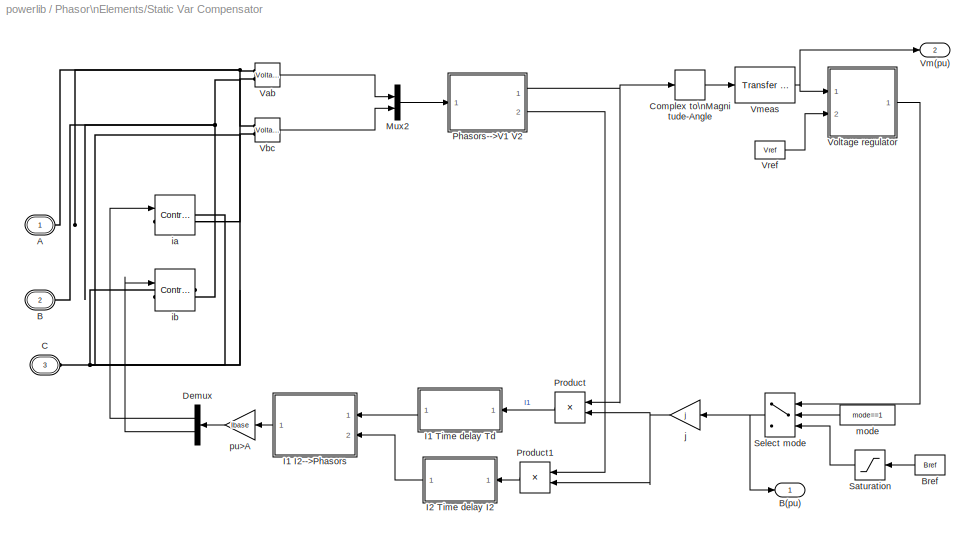
BLOCK [SubSystem] Phasor\nElements/Static Var Compensator
  CloseFcn = %3phaseVImeasurement
  LoadFcn = find_system(gcs,'FollowLinks', 'on', 'LookUnderMasks', 'all');
  MaskCallbackString = powericon('psbcallbacks',gcb,'SVCblock');|||||||||
  MaskDescription = This block implements a  phasor model of a three-phase, three-wire Static Var Compensator (SVC).\n\nThe B output signal (SVC susceptance in pu/Pbase)  is the output of the voltage regulator or the reference susceptance Bref in var control mode.\nThe Vm output is the measured positive-sequence voltage (pu).
  MaskDisplay = \n
  MaskEnableString = on,on,on,on,on,on,on,on,on,on
  MaskHelp = web(psbhelp)
  MaskIconFrame = on
  MaskIconOpaque = on
  MaskIconRotate = none
  MaskIconUnits = autoscale
  MaskInitialization = Qc_nom=Qnom(1);\nQl_nom=Qnom(2);\nBmax=Qc_nom/Pbase;\nBmin=Ql_nom/Pbase;\nVbase=Vnom/sqrt(3)*sqrt(2);\nIbase=Pbase/Vnom/sqrt(3)*sqrt(2);\nKp=Kp_Ki(1);\nKi=Kp_Ki(2);;
  MaskPromptString = Mode of operation|Nominal voltage (Vrms Ph-Ph):|Reactive power limits [Qc(var>0)  Ql(var<0)]:|Three-phase base power Pbase (VA):|Reference voltage Vref  (pu):|Droop Xs (pu/Pbase):|Voltage regulator [Kp(puB/puV)  Ki(puB/puV/s)]: |Bref  for var control mode (pu/Pbase):|Time constant of voltage measurement system Tm (s):|Average time delay due to thyristor valves firing Td (s):
  MaskStyleString = popup(Voltage regulation|Var control (Fixed susceptance Bref)),edit,edit,edit,edit,edit,edit,edit,edit,edit
  MaskTabNameString = ,,,,,,,,,
  MaskToolTipString = on,on,on,on,on,on,on,on,on,on
  MaskTunableValueString = on,on,on,on,on,on,on,on,on,on
  MaskType = Static Var Compensator (Phasor Type)
  MaskValueString = Var control (Fixed susceptance Bref)|500e3|[200e6  -100e6]|200e6|1.0|0.03|[0  300]|0.5|8e-3|4e-3
  MaskVarAliasString = ,,,,,,,,,
  MaskVariables = mode=@1;Vnom=@2;Qnom=@3;Pbase=@4;Vref=@5;Xs=@6;Kp_Ki=@7;Bref=@8;Tm=@9;Td=@10;
  MaskVisibilityString = on,on,on,on,off,off,off,on,off,on
  MinAlgLoopOccurrences = off
  Ports = [0, 2, 0, 0, 0, 3]
  RTWSystemCode = Auto
  TreatAsAtomicUnit = off
BLOCK [PMIOPort] Phasor\nElements/Static Var Compensator/A
  Port = 1
  Side = Left
BLOCK [PMIOPort] Phasor\nElements/Static Var Compensator/B
  Port = 2
  Side = Left
BLOCK [Outport] Phasor\nElements/Static Var Compensator/B(pu)
  BusOutputAsStruct = off
  IconDisplay = Port number
BLOCK [Constant] Phasor\nElements/Static Var Compensator/Bref
  Value = Bref
BLOCK [PMIOPort] Phasor\nElements/Static Var Compensator/C
  Port = 3
  Side = Left
BLOCK [ComplexToMagnitudeAngle] Phasor\nElements/Static Var Compensator/Complex to\nMagnitude-Angle
  Output = Magnitude
  Ports = [1, 1]
BLOCK [Demux] Phasor\nElements/Static Var Compensator/Demux
  Outputs = 2
  Ports = [1, 2]
BLOCK [SubSystem] Phasor\nElements/Static Var Compensator/I1 I2-->Phasors
  MinAlgLoopOccurrences = off
  Ports = [2, 1]
  RTWSystemCode = Auto
  TreatAsAtomicUnit = off
BLOCK [Inport] Phasor\nElements/Static Var Compensator/I1 I2-->Phasors/I1
  IconDisplay = Port number
  LatchInput = off
  Port = 1
BLOCK [Inport] Phasor\nElements/Static Var Compensator/I1 I2-->Phasors/I2
  IconDisplay = Port number
  LatchInput = off
  Port = 2
BLOCK [Outport] Phasor\nElements/Static Var Compensator/I1 I2-->Phasors/Ia Ib cmplx
  BusOutputAsStruct = off
  IconDisplay = Port number
BLOCK [Mux] Phasor\nElements/Static Var Compensator/I1 I2-->Phasors/Mux1
  DisplayOption = bar
  Inputs = 2
  Ports = [2, 1]
BLOCK [Sum] Phasor\nElements/Static Var Compensator/I1 I2-->Phasors/Sum1
  Ports = [2, 1]
BLOCK [Sum] Phasor\nElements/Static Var Compensator/I1 I2-->Phasors/Sum3
  Ports = [2, 1]
BLOCK [Gain] Phasor\nElements/Static Var Compensator/I1 I2-->Phasors/a
  Gain = exp(j*2*pi/3)
BLOCK [Gain] Phasor\nElements/Static Var Compensator/I1 I2-->Phasors/a^2
  Gain = exp(-j*2*pi/3)
BLOCK [SubSystem] Phasor\nElements/Static Var Compensator/I1 Time delay  Td
  MinAlgLoopOccurrences = off
  Ports = [1, 1]
  RTWSystemCode = Auto
  TreatAsAtomicUnit = off
BLOCK [ComplexToRealImag] Phasor\nElements/Static Var Compensator/I1 Time delay  Td/Complex to\nReal-Imag
  Output = Real and imag
  Ports = [1, 2]
BLOCK [Inport] Phasor\nElements/Static Var Compensator/I1 Time delay  Td/I1 cmplx
  IconDisplay = Port number
  LatchInput = off
  Port = 1
BLOCK [Outport] Phasor\nElements/Static Var Compensator/I1 Time delay  Td/Out1
  BusOutputAsStruct = off
  IconDisplay = Port number
BLOCK [RealImagToComplex] Phasor\nElements/Static Var Compensator/I1 Time delay  Td/Real-Imag to\nComplex
  Input = Real and imag
  Ports = [2, 1]
BLOCK [TransportDelay] Phasor\nElements/Static Var Compensator/I1 Time delay  Td/Transport\nDelay1
  DelayTime = Td
BLOCK [TransportDelay] Phasor\nElements/Static Var Compensator/I1 Time delay  Td/Transport\nDelay2
  DelayTime = Td
BLOCK [SubSystem] Phasor\nElements/Static Var Compensator/I2 Time delay I2
  MinAlgLoopOccurrences = off
  Ports = [1, 1]
  RTWSystemCode = Auto
  TreatAsAtomicUnit = off
BLOCK [ComplexToRealImag] Phasor\nElements/Static Var Compensator/I2 Time delay I2/Complex to\nReal-Imag
  Output = Real and imag
  Ports = [1, 2]
BLOCK [Inport] Phasor\nElements/Static Var Compensator/I2 Time delay I2/I1 cmplx
  IconDisplay = Port number
  LatchInput = off
  Port = 1
BLOCK [Outport] Phasor\nElements/Static Var Compensator/I2 Time delay I2/Out1
  BusOutputAsStruct = off
  IconDisplay = Port number
BLOCK [RealImagToComplex] Phasor\nElements/Static Var Compensator/I2 Time delay I2/Real-Imag to\nComplex
  Input = Real and imag
  Ports = [2, 1]
BLOCK [TransportDelay] Phasor\nElements/Static Var Compensator/I2 Time delay I2/Transport\nDelay1
  DelayTime = Td
BLOCK [TransportDelay] Phasor\nElements/Static Var Compensator/I2 Time delay I2/Transport\nDelay2
  DelayTime = Td
BLOCK [Mux] Phasor\nElements/Static Var Compensator/Mux2
  DisplayOption = bar
  Inputs = 2
  Ports = [2, 1]
BLOCK [SubSystem] Phasor\nElements/Static Var Compensator/Phasors-->V1 V2
  MinAlgLoopOccurrences = off
  Ports = [1, 2]
  RTWSystemCode = Auto
  TreatAsAtomicUnit = off
BLOCK [Gain] Phasor\nElements/Static Var Compensator/Phasors-->V1 V2/(a^2)//3
  Gain = 1/3*exp(-j*2*pi/3)
BLOCK [Demux] Phasor\nElements/Static Var Compensator/Phasors-->V1 V2/Demux
  Outputs = 2
  Ports = [1, 2]
BLOCK [Gain] Phasor\nElements/Static Var Compensator/Phasors-->V1 V2/Gain
  Gain = 1/3
BLOCK [Gain] Phasor\nElements/Static Var Compensator/Phasors-->V1 V2/Gain1
  Gain = 1/3
BLOCK [Sum] Phasor\nElements/Static Var Compensator/Phasors-->V1 V2/Sum3
  Inputs = +-
  Ports = [2, 1]
BLOCK [Sum] Phasor\nElements/Static Var Compensator/Phasors-->V1 V2/Sum4
  Inputs = +-
  Ports = [2, 1]
BLOCK [Outport] Phasor\nElements/Static Var Compensator/Phasors-->V1 V2/V1_pu
  BusOutputAsStruct = off
  IconDisplay = Port number
BLOCK [Outport] Phasor\nElements/Static Var Compensator/Phasors-->V1 V2/V2_pu
  BusOutputAsStruct = off
  IconDisplay = Port number
  Port = 2
BLOCK [Gain] Phasor\nElements/Static Var Compensator/Phasors-->V1 V2/V>pu
  Gain = 1/Vbase
BLOCK [Inport] Phasor\nElements/Static Var Compensator/Phasors-->V1 V2/Vab Vbc cmplx
  IconDisplay = Port number
  LatchInput = off
  Port = 1
BLOCK [Gain] Phasor\nElements/Static Var Compensator/Phasors-->V1 V2/a//3
  Gain = 1/3*exp(j*2*pi/3)
BLOCK [Product] Phasor\nElements/Static Var Compensator/Product
  Ports = [2, 1]
  RndMeth = Floor
BLOCK [Product] Phasor\nElements/Static Var Compensator/Product1
  Ports = [2, 1]
  RndMeth = Floor
BLOCK [Saturate] Phasor\nElements/Static Var Compensator/Saturation
  LowerLimit = Bmin
  UpperLimit = Bmax
BLOCK [Switch] Phasor\nElements/Static Var Compensator/Select mode
  SaturateOnIntegerOverflow = off
  Threshold = 0.5
BLOCK [Reference] Phasor\nElements/Static Var Compensator/Vab  REF=powerlib/Measurements/Voltage Measurement
  OutputType = Complex
  PSBequivalent = 0
  PhasorSimulation = off
  Ports = [0, 1, 0, 0, 0, 2]
  ShowPortLabels = on
  SourceBlock = powerlib/Measurements/Voltage Measurement
  SourceType = Voltage Measurement
BLOCK [Reference] Phasor\nElements/Static Var Compensator/Vbc  REF=powerlib/Measurements/Voltage Measurement
  OutputType = Complex
  PSBequivalent = 0
  PhasorSimulation = off
  Ports = [0, 1, 0, 0, 0, 2]
  ShowPortLabels = on
  SourceBlock = powerlib/Measurements/Voltage Measurement
  SourceType = Voltage Measurement
BLOCK [Outport] Phasor\nElements/Static Var Compensator/Vm(pu)
  BusOutputAsStruct = off
  IconDisplay = Port number
  Port = 2
BLOCK [Reference] Phasor\nElements/Static Var Compensator/Vmeas  REF=simulink_extras/Additional\nLinear/Transfer Fcn\n(with initial outputs)
  D = [Tm  1]
  N = [1]
  Ports = [1, 1]
  ShowPortLabels = on
  SourceBlock = simulink_extras/Additional\nLinear/Transfer Fcn\n(with initial outputs)
  SourceType = Transfer Function with Initial Outputs
  U0 = Vref
  Y0 = Vref
BLOCK [SubSystem] Phasor\nElements/Static Var Compensator/Voltage regulator
  MinAlgLoopOccurrences = off
  Ports = [2, 1]
  RTWSystemCode = Auto
  TreatAsAtomicUnit = off
BLOCK [Outport] Phasor\nElements/Static Var Compensator/Voltage regulator/B (pu)
  BusOutputAsStruct = off
  IconDisplay = Port number
  InitialOutput = 0
BLOCK [TransferFcn] Phasor\nElements/Static Var Compensator/Voltage regulator/Break algebraic loop
  Denominator = [100e-6 1]
BLOCK [Gain] Phasor\nElements/Static Var Compensator/Voltage regulator/Droop
  Gain = Xs
BLOCK [Integrator] Phasor\nElements/Static Var Compensator/Voltage regulator/Integrator
  LimitOutput = on
  LowerSaturationLimit = Bmin
  Ports = [1, 1]
  UpperSaturationLimit = Bmax
BLOCK [Gain] Phasor\nElements/Static Var Compensator/Voltage regulator/Ki
  Gain = Ki
BLOCK [Gain] Phasor\nElements/Static Var Compensator/Voltage regulator/Kp
  Gain = Kp
BLOCK [Product] Phasor\nElements/Static Var Compensator/Voltage regulator/Product
  Ports = [2, 1]
  RndMeth = Floor
BLOCK [Saturate] Phasor\nElements/Static Var Compensator/Voltage regulator/Saturation
  LowerLimit = Bmin
  UpperLimit = Bmax
BLOCK [Sum] Phasor\nElements/Static Var Compensator/Voltage regulator/Sum
  Inputs = -+-
  Ports = [3, 1]
BLOCK [Sum] Phasor\nElements/Static Var Compensator/Voltage regulator/Sum1
  InputSameDT = off
  OutDataTypeMode = Inherit via internal rule
  Ports = [2, 1]
BLOCK [Inport] Phasor\nElements/Static Var Compensator/Voltage regulator/V1meas (pu)
  IconDisplay = Port number
  LatchInput = off
  Port = 1
BLOCK [Inport] Phasor\nElements/Static Var Compensator/Voltage regulator/Vref (pu)
  IconDisplay = Port number
  LatchInput = off
  Port = 2
BLOCK [Constant] Phasor\nElements/Static Var Compensator/Vref
  Value = Vref
BLOCK [Reference] Phasor\nElements/Static Var Compensator/ia  REF=powerlib/Electrical\nSources/Controlled Current Source
  Amplitude = 0
  Description = source block
  Frequency = 0
  Initialize = off
  Measurements = None
  Phase = 0
  Ports = [1, 0, 0, 0, 0, 1, 1]
  ShowPortLabels = on
  SourceBlock = powerlib/Electrical\nSources/Controlled Current Source
  SourceType = AC
BLOCK [Reference] Phasor\nElements/Static Var Compensator/ib  REF=powerlib/Electrical\nSources/Controlled Current Source
  Amplitude = 0
  Description = source block
  Frequency = 0
  Initialize = off
  Measurements = None
  Phase = 0
  Ports = [1, 0, 0, 0, 0, 1, 1]
  ShowPortLabels = on
  SourceBlock = powerlib/Electrical\nSources/Controlled Current Source
  SourceType = AC
BLOCK [Gain] Phasor\nElements/Static Var Compensator/j
  Gain = j
BLOCK [Constant] Phasor\nElements/Static Var Compensator/mode
  Value = mode==1
BLOCK [Gain] Phasor\nElements/Static Var Compensator/pu>A
  Gain = Ibase
BLOCK [SubSystem] Power\nElectronics
  MaskDisplay = image(imread([PSBroot,'PSBelectronics.bmp'],'bmp'))\n
  MaskIconFrame = on
  MaskIconOpaque = on
  MaskIconRotate = none
  MaskIconUnits = autoscale
  MaskInitialization = powerlibroot = which('powersysdomain');\nPSBroot = powerlibroot(1:end-16);
  MinAlgLoopOccurrences = off
  Ports = []
  RTWSystemCode = Auto
  TreatAsAtomicUnit = off
BLOCK [SubSystem] Power\nElectronics/  Extra Library 
  MaskDisplay = disp(['Discrete Control blocks'])
  MaskIconFrame = on
  MaskIconOpaque = on
  MaskIconRotate = none
  MaskIconUnits = autoscale
  MinAlgLoopOccurrences = off
  OpenFcn = sys=sprintf('%s\\n%s','powerlib_extras/Discrete ','Control Blocks');powerlib_extras([],[],[],'load');open_system(sys)
  Ports = []
  RTWSystemCode = Auto
  TreatAsAtomicUnit = off
BLOCK [SubSystem] Power\nElectronics/  Extra Library 1
  MaskDisplay = disp(['Control blocks'])
  MaskIconFrame = on
  MaskIconOpaque = on
  MaskIconRotate = none
  MaskIconUnits = autoscale
  MinAlgLoopOccurrences = off
  OpenFcn = sys=sprintf('%s\\n%s','powerlib_extras/Control ','Blocks');powerlib_extras([],[],[],'load');open_system(sys)
  Ports = []
  RTWSystemCode = Auto
  TreatAsAtomicUnit = off
BLOCK [SubSystem] Power\nElectronics/Detailed Thyristor
  CopyFcn = powericon('psbloadfunction',gcb,'gotofrom','UpdateGotoTag');
  MaskCallbackString = ||||||||powericon('psbcallbacks',gcb,'measurement output');
  MaskDescription = Detailed model of Thyristor in parallel with a series RC snubber circuit. In on-state the Thyristor model  has an internal resistance (Ron) and inductance (Lon).  For most applications the internal inductance should be set to zero. In off-state the Detailed Thyristor  as an impedance.\n\nBest accuracy is achieved when Tq is larger than the simulation step size.
  MaskDisplay = plot(-140,-140,140,140,2*[-30,-30,0,-30,-30,-55]+25,(2*[20,0,20,41,20,20]+8),[0,0]+25,(2*[0,40]+8),2*[37.5,0]+25,(2*[20,20]+8),2*[10,10,0]+25,(1*[-15,6,20]+12),s*[-65,-65,-20,-20,40,40,85,85,85,40,40,-20,-20],s*[48,-20,-20,-10,-10,-20,-20,48,-20,-20,-30,-30,-20])
  MaskEnableString = on,on,on,on,on,on,on,on,on
  MaskHelp = web(psbhelp);
  MaskIconFrame = on
  MaskIconOpaque = off
  MaskIconRotate = port
  MaskIconUnits = autoscale
  MaskInitialization = block = gcb;\ns=powericon('PowerSwitch',Rs,Cs);\npowericon('psbcallbacks',block,'measurement output');\npowericon('psbloadfunction',block,'gotofrom','Initialize');
  MaskPromptString = Resistance Ron (Ohms) :|Inductance Lon (H) : |Forward voltage Vf (V) : |Latching current Il (A) : |Turn-off time Tq (s) :|Initial current Ic (A) : |Snubber resistance Rs (Ohms) : |Snubber capacitance Cs (F) : |Show measurement port
  MaskSelfModifiable = on
  MaskStyleString = edit,edit,edit,edit,edit,edit,edit,edit,checkbox
  MaskTabNameString = ,,,,,,,,
  MaskToolTipString = on,on,on,on,on,on,on,on,on
  MaskTunableValueString = off,off,off,off,off,off,off,off,off
  MaskType = Detailed Thyristor
  MaskValueString = 0.001|0|0.8|0.1|100e-6|0|500|250e-9|on
  MaskVarAliasString = ,,,,,,,,
  MaskVariables = Ron=@1;Lon=@2;Vf=@3;IL=@4;Tq=@5;IC=@6;Rs=@7;Cs=@8;Measurements=@9;
  MaskVisibilityString = on,on,on,on,on,on,on,on,on
  MinAlgLoopOccurrences = off
  Ports = [1, 1, 0, 0, 0, 1, 1]
  RTWSystemCode = Auto
  TreatAsAtomicUnit = off
BLOCK [PMComponent] Power\nElectronics/Detailed Thyristor/DetailedThyristor
  LConnTagsString = a
  LeftPortType = p1
  MaskIconFrame = on
  MaskIconOpaque = on
  MaskIconRotate = none
  MaskIconUnits = autoscale
  MaskType = InnerPowersysBlock
  PhysicalDomain = powersysdomain
  Ports = [0, 0, 0, 0, 0, 1, 1]
  RConnTagsString = __new0
  RightPortType = p1
BLOCK [From] Power\nElectronics/Detailed Thyristor/From
  CloseFcn = tagdialog Close
  DialogController = Simulink.DDGSource
  GotoTag = LibraryTag
BLOCK [Goto] Power\nElectronics/Detailed Thyristor/Goto
  DialogController = Simulink.DDGSource
  GotoTag = LibraryTag
  TagVisibility = global
BLOCK [SubSystem] Power\nElectronics/Detailed Thyristor/Measurement list
  MinAlgLoopOccurrences = off
  Ports = [1, 1]
  RTWSystemCode = Auto
  TreatAsAtomicUnit = off
BLOCK [BusCreator] Power\nElectronics/Detailed Thyristor/Measurement list/Bus\nCreator1
  DialogController = Simulink.DDGSource_Bus
  DisplayOption = bar
  Inputs = 2
  Ports = [2, 1]
BLOCK [Demux] Power\nElectronics/Detailed Thyristor/Measurement list/Demux
  DisplayOption = bar
  Outputs = [1,1]
  Ports = [1, 2]
BLOCK [Inport] Power\nElectronics/Detailed Thyristor/Measurement list/In1
  IconDisplay = Port number
  LatchInput = off
  Port = 1
BLOCK [Outport] Power\nElectronics/Detailed Thyristor/Measurement list/Out1
  BusOutputAsStruct = off
  IconDisplay = Port number
BLOCK [PMIOPort] Power\nElectronics/Detailed Thyristor/a
  Port = 1
  Side = Left
BLOCK [Inport] Power\nElectronics/Detailed Thyristor/g
  IconDisplay = Port number
  LatchInput = off
  Port = 1
BLOCK [PMIOPort] Power\nElectronics/Detailed Thyristor/k
  Port = 2
  Side = Right
BLOCK [Outport] Power\nElectronics/Detailed Thyristor/m
  BusOutputAsStruct = off
  IconDisplay = Port number
  InitialOutput = 0
BLOCK [SubSystem] Power\nElectronics/Diode
  CopyFcn = powericon('psbloadfunction',gcb,'from','UpdateGotoTag');
  MaskCallbackString = ||||||powericon('psbcallbacks',gcb,'measurement output');
  MaskDescription = Implements a diode in parallel with a series RC snubber circuit. In on-state the Diode model has an internal resistance (Ron) and inductance (Lon). For most applications the internal inductance should be set to zero. The Diode impedance is infinite in off-state mode.
  MaskDisplay = plot(-75,-50,100,150,[-15,-15,43,-15,-15,-75],[50,8,50,92,50,50],[43,43],[8,94],[100,43],[50,50],s*[-65,-65,-20,-20,40,40,85,85,85,40,40,-20,-20],s*[50,-20,-20,-10,-10,-20,-20,50,-20,-20,-30,-30,-20])
  MaskEnableString = on,on,on,on,on,on,on
  MaskHelp = web(psbhelp);
  MaskIconFrame = off
  MaskIconOpaque = on
  MaskIconRotate = port
  MaskIconUnits = autoscale
  MaskInitialization = block = gcb;\ns=powericon('PowerSwitch',Rs,Cs);\npowericon('psbcallbacks',block,'measurement output');\npowericon('psbloadfunction',block,'from','Initialize');
  MaskPromptString = Resistance Ron (Ohms) :|Inductance Lon (H) : |Forward voltage Vf (V) :|Initial current Ic (A) : |Snubber resistance Rs (Ohms) :|Snubber capacitance Cs (F) : |Show measurement port
  MaskSelfModifiable = on
  MaskStyleString = edit,edit,edit,edit,edit,edit,checkbox
  MaskTabNameString = ,,,,,,
  MaskToolTipString = on,on,on,on,on,on,on
  MaskTunableValueString = off,off,off,off,off,off,off
  MaskType = Diode
  MaskValueString = 0.001|0|0.8|0|500|250e-9|off
  MaskVarAliasString = ,,,,,,
  MaskVariables = Ron=@1;Lon=@2;Vf=@3;IC=@4;Rs=@5;Cs=@6;Measurements=@7;
  MaskVisibilityString = on,on,on,on,on,on,on
  MinAlgLoopOccurrences = off
  Ports = [0, 0, 0, 0, 0, 1, 1]
  RTWSystemCode = Auto
  TreatAsAtomicUnit = off
BLOCK [PMComponent] Power\nElectronics/Diode/Diode
  LConnTagsString = a
  LeftPortType = p1
  MaskIconFrame = on
  MaskIconOpaque = on
  MaskIconRotate = none
  MaskIconUnits = autoscale
  MaskType = InnerPowersysBlock
  PhysicalDomain = powersysdomain
  Ports = [0, 0, 0, 0, 0, 1, 1]
  RConnTagsString = __new0
  RightPortType = p1
BLOCK [From] Power\nElectronics/Diode/From
  CloseFcn = tagdialog Close
  DialogController = Simulink.DDGSource
  GotoTag = LibraryTag
BLOCK [SubSystem] Power\nElectronics/Diode/Measurement list
  MinAlgLoopOccurrences = off
  Ports = [1, 1]
  RTWSystemCode = Auto
  TreatAsAtomicUnit = off
BLOCK [BusCreator] Power\nElectronics/Diode/Measurement list/Bus\nCreator1
  DialogController = Simulink.DDGSource_Bus
  DisplayOption = bar
  Inputs = 2
  Ports = [2, 1]
BLOCK [Demux] Power\nElectronics/Diode/Measurement list/Demux
  DisplayOption = bar
  Outputs = [1,1]
  Ports = [1, 2]
BLOCK [Inport] Power\nElectronics/Diode/Measurement list/In1
  IconDisplay = Port number
  LatchInput = off
  Port = 1
BLOCK [Outport] Power\nElectronics/Diode/Measurement list/Out1
  BusOutputAsStruct = off
  IconDisplay = Port number
BLOCK [PMIOPort] Power\nElectronics/Diode/a
  Port = 1
  Side = Left
BLOCK [PMIOPort] Power\nElectronics/Diode/k
  Port = 2
  Side = Right
BLOCK [Terminator] Power\nElectronics/Diode/m
BLOCK [SubSystem] Power\nElectronics/Gto
  CopyFcn = powericon('psbloadfunction',gcb,'gotofrom','UpdateGotoTag');
  MaskCallbackString = ||||||||powericon('psbcallbacks',gcb,'measurement output');
  MaskDescription = Implements a GTO thyristor in parallel with a series RC snubber circuit. \nIn on-state the GTO model has internal resistance (Ron) and inductance (Lon). \nIn off-state the GTO model has infinite impedance. \n\nThe internal inductance cannot be set to zero.Discretization of the GTO is \navailable only through the Universal Bridge block.
  MaskDisplay = plot(-140,-140,140,140,2*[-30,-30,0,-30,-30,-60]+25,(2*[20,0,20,41,20,20]+8),[0,0]+25,(2*[0,40]+8),2*[35,0]+25,(2*[20,20]+8),2*[10,10,0]+25,(2*[-15,6,20]+8),[20,0]+35,[-8,-8],s*[-75,-75,-20,-20,20,20,75,75,75,20,20,-20,-20],s*([78,0,0,10,10,0,0,78,0,0,-10,-10,0]-30))
  MaskEnableString = on,on,on,on,on,on,on,on,on
  MaskHelp = web(psbhelp);
  MaskIconFrame = on
  MaskIconOpaque = off
  MaskIconRotate = port
  MaskIconUnits = autoscale
  MaskInitialization = block = gcb;\ns=powericon('PowerSwitch',Rs,Cs);\npowericon('psbcallbacks',block,'measurement output');\npowericon('psbloadfunction',block,'gotofrom','Initialize');
  MaskPromptString = Resistance Ron (Ohms) : |Inductance Lon (H) : |Forward voltage Vf (V) : |Current 10% fall time Tf (s) : |Current tail time Tt (s) :|Initial current Ic (A) : |Snubber resistance Rs (Ohms) : |Snubber capacitance Cs (F) : |Show Measurement port
  MaskSelfModifiable = on
  MaskStyleString = edit,edit,edit,edit,edit,edit,edit,edit,checkbox
  MaskTabNameString = ,,,,,,,,
  MaskToolTipString = on,on,on,on,on,on,on,on,on
  MaskTunableValueString = off,off,off,off,off,off,off,off,off
  MaskType = Gto
  MaskValueString = 0.001|1e-6|1|10e-6|20e-6|0|1e5|inf|on
  MaskVarAliasString = ,,,,,,,,
  MaskVariables = Ron=@1;Lon=@2;Vf=@3;Tf=@4;Tt=@5;IC=@6;Rs=@7;Cs=@8;Measurements=@9;
  MaskVisibilityString = on,on,on,on,on,on,on,on,on
  MinAlgLoopOccurrences = off
  Ports = [1, 1, 0, 0, 0, 1, 1]
  RTWSystemCode = Auto
  TreatAsAtomicUnit = off
BLOCK [From] Power\nElectronics/Gto/From
  CloseFcn = tagdialog Close
  DialogController = Simulink.DDGSource
  GotoTag = LibraryTag
BLOCK [PMComponent] Power\nElectronics/Gto/GTO
  LConnTagsString = a
  LeftPortType = p1
  MaskIconFrame = on
  MaskIconOpaque = on
  MaskIconRotate = none
  MaskIconUnits = autoscale
  MaskType = InnerPowersysBlock
  PhysicalDomain = powersysdomain
  Ports = [0, 0, 0, 0, 0, 1, 1]
  RConnTagsString = __new0
  RightPortType = p1
BLOCK [Goto] Power\nElectronics/Gto/Goto
  DialogController = Simulink.DDGSource
  GotoTag = LibraryTag
  TagVisibility = global
BLOCK [SubSystem] Power\nElectronics/Gto/Measurement list
  MinAlgLoopOccurrences = off
  Ports = [1, 1]
  RTWSystemCode = Auto
  TreatAsAtomicUnit = off
BLOCK [BusCreator] Power\nElectronics/Gto/Measurement list/Bus\nCreator1
  DialogController = Simulink.DDGSource_Bus
  DisplayOption = bar
  Inputs = 2
  Ports = [2, 1]
BLOCK [Demux] Power\nElectronics/Gto/Measurement list/Demux
  DisplayOption = bar
  Outputs = [1,1]
  Ports = [1, 2]
BLOCK [Inport] Power\nElectronics/Gto/Measurement list/In1
  IconDisplay = Port number
  LatchInput = off
  Port = 1
BLOCK [Outport] Power\nElectronics/Gto/Measurement list/Out1
  BusOutputAsStruct = off
  IconDisplay = Port number
BLOCK [PMIOPort] Power\nElectronics/Gto/a
  Port = 1
  Side = Left
BLOCK [Inport] Power\nElectronics/Gto/g
  IconDisplay = Port number
  LatchInput = off
  Port = 1
BLOCK [PMIOPort] Power\nElectronics/Gto/k
  Port = 2
  Side = Right
BLOCK [Outport] Power\nElectronics/Gto/m
  BusOutputAsStruct = off
  IconDisplay = Port number
  InitialOutput = 0
BLOCK [SubSystem] Power\nElectronics/IGBT
  CopyFcn = powericon('psbloadfunction',gcbh,'gotofrom','UpdateGotoTag');
  MaskCallbackString = ||||||||powericon('psbcallbacks',gcb,'measurement output');
  MaskDescription = Implements an IGBT device  in parallel with a series RC snubber circuit. In on-state the IGBT model has internal resistance (Ron) and inductance (Lon). In off-state the IGBT model has infinite impedance. The internal inductance cannot be set to zero.                                                                                             \nDiscretization of the IGBT is available only through th...<+25ch>
  MaskDisplay = plot(-15,0,115,100,[82,82,18],[16,35,35],[3,19,35,18,80,60,76,97],[65,65,45,45,45,45,65,65],[81,83,72,81]-7,[65,58,60,65],s*([-75,-75,-20,-20,20,20,75,75,75,20,20,-20,-20]*.45+50),s*([0,50,50,60,60,50,50,0,50,50,40,40,50]*.4+65))
  MaskEnableString = on,on,on,on,on,on,on,on,on
  MaskHelp = web(psbhelp);
  MaskIconFrame = on
  MaskIconOpaque = off
  MaskIconRotate = port
  MaskIconUnits = autoscale
  MaskInitialization = block = gcb;\ns=powericon('PowerSwitch',Rs,Cs);\npowericon('psbcallbacks',block,'measurement output');\npowericon('psbloadfunction',block,'gotofrom','Initialize');
  MaskPromptString = Resistance Ron (Ohms) : |Inductance Lon (H) : |Forward voltage Vf (V) : |Current 10% fall time Tf (s) : |Current tail time Tt (s):|Initial current Ic (A) : |Snubber resistance Rs (Ohms) : |Snubber capacitance Cs (F) : |Show measurement port
  MaskSelfModifiable = on
  MaskStyleString = edit,edit,edit,edit,edit,edit,edit,edit,checkbox
  MaskTabNameString = ,,,,,,,,
  MaskToolTipString = on,on,on,on,on,on,on,on,on
  MaskTunableValueString = off,off,off,off,off,off,off,off,off
  MaskType = IGBT
  MaskValueString = 0.001|1e-6|1|1e-6|2e-6|0|1e5|inf|on
  MaskVarAliasString = ,,,,,,,,
  MaskVariables = Ron=@1;Lon=@2;Vf=@3;Tf=@4;Tt=@5;IC=@6;Rs=@7;Cs=@8;Measurements=@9;
  MaskVisibilityString = on,on,on,on,on,on,on,on,on
  MinAlgLoopOccurrences = off
  Ports = [1, 1, 0, 0, 0, 1, 1]
  RTWSystemCode = Auto
  TreatAsAtomicUnit = off
BLOCK [PMIOPort] Power\nElectronics/IGBT/C
  Port = 1
  Side = Left
BLOCK [PMIOPort] Power\nElectronics/IGBT/E
  Port = 2
  Side = Right
BLOCK [From] Power\nElectronics/IGBT/From
  CloseFcn = tagdialog Close
  DialogController = Simulink.DDGSource
  GotoTag = LibraryTag
BLOCK [Goto] Power\nElectronics/IGBT/Goto
  DialogController = Simulink.DDGSource
  GotoTag = LibraryTag
  TagVisibility = global
BLOCK [PMComponent] Power\nElectronics/IGBT/IGBT
  LConnTagsString = a
  LeftPortType = p1
  MaskIconFrame = on
  MaskIconOpaque = on
  MaskIconRotate = none
  MaskIconUnits = autoscale
  MaskType = InnerPowersysBlock
  PhysicalDomain = powersysdomain
  Ports = [0, 0, 0, 0, 0, 1, 1]
  RConnTagsString = __new0
  RightPortType = p1
BLOCK [SubSystem] Power\nElectronics/IGBT/Measurement list
  MinAlgLoopOccurrences = off
  Ports = [1, 1]
  RTWSystemCode = Auto
  TreatAsAtomicUnit = off
BLOCK [BusCreator] Power\nElectronics/IGBT/Measurement list/Bus\nCreator1
  DialogController = Simulink.DDGSource_Bus
  DisplayOption = bar
  Inputs = 2
  Ports = [2, 1]
BLOCK [Demux] Power\nElectronics/IGBT/Measurement list/Demux
  DisplayOption = bar
  Outputs = [1,1]
  Ports = [1, 2]
BLOCK [Inport] Power\nElectronics/IGBT/Measurement list/In1
  IconDisplay = Port number
  LatchInput = off
  Port = 1
BLOCK [Outport] Power\nElectronics/IGBT/Measurement list/Out1
  BusOutputAsStruct = off
  IconDisplay = Port number
BLOCK [Inport] Power\nElectronics/IGBT/g
  IconDisplay = Port number
  LatchInput = off
  Port = 1
BLOCK [Outport] Power\nElectronics/IGBT/m
  BusOutputAsStruct = off
  IconDisplay = Port number
BLOCK [SubSystem] Power\nElectronics/Ideal Switch
  CopyFcn = powericon('psbloadfunction',gcb,'gotofrom','UpdateGotoTag');
  MaskCallbackString = |||||powericon('psbcallbacks',gcb,'measurement output');
  MaskDescription = Switch controlled by a gate signal, in parallel with a series RC snubber circuit. In on-state the Switch model has an internal resistance (Ron) . In off-state this internal resistance is infinite. The internal resistance must be greather than zero.                                                                                    \n\nThe switch model is on-state when the gate signal (g) is set to ...<+2ch>
  MaskDisplay = plot(-120,-40,120,140,[-100,-30,5],[50,50,95],[20,100],[50,50],s*[-75,-75,-20,-20,20,20,75,75,75,20,20,-20,-20],s*[50,0,0,10,10,0,0,50,0,0,-10,-10,0])
  MaskEnableString = on,off,on,on,on,on
  MaskHelp = web(psbhelp);
  MaskIconFrame = on
  MaskIconOpaque = off
  MaskIconRotate = port
  MaskIconUnits = autoscale
  MaskInitialization = block = gcb;\ns=powericon('PowerSwitch',Rs,Cs);\npowericon('psbcallbacks',block,'measurement output');\npowericon('psbloadfunction',block,'gotofrom','Initialize');
  MaskPromptString = Internal resistance Ron (Ohms) :|Inductance Lon (H) : |Initial state (0 for 'open', 1 for 'closed') :|Snubber resistance Rs (Ohms) : |Snubber capacitance Cs (F) : |Show measurement port
  MaskSelfModifiable = on
  MaskStyleString = edit,edit,edit,edit,edit,checkbox
  MaskTabNameString = ,,,,,
  MaskToolTipString = on,on,on,on,on,on
  MaskTunableValueString = off,off,off,off,off,off
  MaskType = Ideal Switch
  MaskValueString = 0.001|0|0|1e5|inf|on
  MaskVarAliasString = ,,,,,
  MaskVariables = Ron=@1;Lon=@2;IC=@3;Rs=@4;Cs=@5;Measurements=@6;
  MaskVisibilityString = on,off,on,on,on,on
  MinAlgLoopOccurrences = off
  Ports = [1, 1, 0, 0, 0, 1, 1]
  RTWSystemCode = Auto
  TreatAsAtomicUnit = off
BLOCK [PMIOPort] Power\nElectronics/Ideal Switch/1
  Port = 1
  Side = Left
BLOCK [PMIOPort] Power\nElectronics/Ideal Switch/2
  Port = 2
  Side = Right
BLOCK [From] Power\nElectronics/Ideal Switch/From
  CloseFcn = tagdialog Close
  DialogController = Simulink.DDGSource
  GotoTag = LibraryTag
BLOCK [Goto] Power\nElectronics/Ideal Switch/Goto
  DialogController = Simulink.DDGSource
  GotoTag = LibraryTag
  TagVisibility = global
BLOCK [PMComponent] Power\nElectronics/Ideal Switch/IdealSwitch
  LConnTagsString = a
  LeftPortType = p1
  MaskIconFrame = on
  MaskIconOpaque = on
  MaskIconRotate = none
  MaskIconUnits = autoscale
  MaskType = InnerPowersysBlock
  PhysicalDomain = powersysdomain
  Ports = [0, 0, 0, 0, 0, 1, 1]
  RConnTagsString = __new0
  RightPortType = p1
BLOCK [SubSystem] Power\nElectronics/Ideal Switch/Measurement list
  MinAlgLoopOccurrences = off
  Ports = [1, 1]
  RTWSystemCode = Auto
  TreatAsAtomicUnit = off
BLOCK [BusCreator] Power\nElectronics/Ideal Switch/Measurement list/Bus\nCreator1
  DialogController = Simulink.DDGSource_Bus
  DisplayOption = bar
  Inputs = 2
  Ports = [2, 1]
BLOCK [Demux] Power\nElectronics/Ideal Switch/Measurement list/Demux
  DisplayOption = bar
  Outputs = [1,1]
  Ports = [1, 2]
BLOCK [Inport] Power\nElectronics/Ideal Switch/Measurement list/In1
  IconDisplay = Port number
  LatchInput = off
  Port = 1
BLOCK [Outport] Power\nElectronics/Ideal Switch/Measurement list/Out1
  BusOutputAsStruct = off
  IconDisplay = Port number
BLOCK [Inport] Power\nElectronics/Ideal Switch/g
  IconDisplay = Port number
  LatchInput = off
  Port = 1
BLOCK [Outport] Power\nElectronics/Ideal Switch/m
  BusOutputAsStruct = off
  IconDisplay = Port number
BLOCK [SubSystem] Power\nElectronics/Mosfet
  CopyFcn = powericon('psbloadfunction',gcb,'gotofrom','UpdateGotoTag');
  MaskCallbackString = ||||||powericon('psbcallbacks',gcb,'measurement output');
  MaskDescription = MOSFET in parallel with a series RC snubber circuit. In on-state the MOSFET model has internal resistance (Ron) and inductance (Lon). In off-state the MOSFET model has infinite impedance. The internal inductance cannot be set to zero. \nDiscretization of the MOSFET is available only through the Universal Bridge block.
  MaskDisplay = plot(-160,-140,140,140,2*[33,23,28,28,10,10,35,55,55,90,55,55,35,35,35,35,0]-100,(2*[28,28,28,50,50,75,75,65,75,75,75,85,75,65,85,75,75]-100),2*[50,39,45,38,52,45,45,65,65,60,70,65,65,82,82]-100,(2*[28,28,28,39,39,28,50,50,28,28,28,28,50,50,75]-100),2*[70,70,23]-100,(2*[7,20,20]-100),s*[-50,-50,-30,-30,10,10,32,32,32,10,10,-30,-30],s*([45,80,80,85,85,80,80,45,80,80,75,75,80]+5))
  MaskEnableString = on,on,on,on,on,on,on
  MaskHelp = web(psbhelp);
  MaskIconFrame = on
  MaskIconOpaque = off
  MaskIconRotate = port
  MaskIconUnits = autoscale
  MaskInitialization = block = gcb;\ns=powericon('PowerSwitch',Rs,Cs);\npowericon('psbcallbacks',block,'measurement output');\npowericon('psbloadfunction',block,'gotofrom','Initialize');
  MaskPromptString = Resistance Ron (Ohms) :|Inductance Lon (H) : |Internal diode resistance Rd  (Ohms) :|Initial current Ic (A) : |Snubber resistance Rs (Ohms) : |Snubber capacitance Cs (F) : |Show measurement port
  MaskSelfModifiable = on
  MaskStyleString = edit,edit,edit,edit,edit,edit,checkbox
  MaskTabNameString = ,,,,,,
  MaskToolTipString = on,on,on,on,on,on,on
  MaskTunableValueString = off,off,off,off,off,off,off
  MaskType = Mosfet
  MaskValueString = 0.001|1e-6|.001|0|1e5|inf|on
  MaskVarAliasString = ,,,,,,
  MaskVariables = Ron=@1;Lon=@2;Rd=@3;IC=@4;Rs=@5;Cs=@6;Measurements=@7;
  MaskVisibilityString = on,on,on,on,on,on,on
  MinAlgLoopOccurrences = off
  Ports = [1, 1, 0, 0, 0, 1, 1]
  RTWSystemCode = Auto
  TreatAsAtomicUnit = off
BLOCK [From] Power\nElectronics/Mosfet/From
  CloseFcn = tagdialog Close
  DialogController = Simulink.DDGSource
  GotoTag = LibraryTag
BLOCK [Goto] Power\nElectronics/Mosfet/Goto
  DialogController = Simulink.DDGSource
  GotoTag = LibraryTag
  TagVisibility = global
BLOCK [SubSystem] Power\nElectronics/Mosfet/Measurement list
  MinAlgLoopOccurrences = off
  Ports = [1, 1]
  RTWSystemCode = Auto
  TreatAsAtomicUnit = off
BLOCK [BusCreator] Power\nElectronics/Mosfet/Measurement list/Bus\nCreator1
  DialogController = Simulink.DDGSource_Bus
  DisplayOption = bar
  Inputs = 2
  Ports = [2, 1]
BLOCK [Demux] Power\nElectronics/Mosfet/Measurement list/Demux
  DisplayOption = bar
  Outputs = [1,1]
  Ports = [1, 2]
BLOCK [Inport] Power\nElectronics/Mosfet/Measurement list/In1
  IconDisplay = Port number
  LatchInput = off
  Port = 1
BLOCK [Outport] Power\nElectronics/Mosfet/Measurement list/Out1
  BusOutputAsStruct = off
  IconDisplay = Port number
BLOCK [PMComponent] Power\nElectronics/Mosfet/Mosfet
  LConnTagsString = a
  LeftPortType = p1
  MaskIconFrame = on
  MaskIconOpaque = on
  MaskIconRotate = none
  MaskIconUnits = autoscale
  MaskType = InnerPowersysBlock
  PhysicalDomain = powersysdomain
  Ports = [0, 0, 0, 0, 0, 1, 1]
  RConnTagsString = __new0
  RightPortType = p1
BLOCK [PMIOPort] Power\nElectronics/Mosfet/d
  Port = 1
  Side = Left
BLOCK [Inport] Power\nElectronics/Mosfet/g
  IconDisplay = Port number
  LatchInput = off
  Port = 1
BLOCK [Outport] Power\nElectronics/Mosfet/m
  BusOutputAsStruct = off
  IconDisplay = Port number
BLOCK [PMIOPort] Power\nElectronics/Mosfet/s
  Port = 2
  Side = Right
BLOCK [SubSystem] Power\nElectronics/Three-Level Bridge
  CopyFcn = powericon('psbloadfunction',gcb,'configurable bridge','UpdateGotoTag');
  MaskCallbackString = powericon('ThreeLevelBridgeCback',gcb,'BridgeArms');|||powericon('ThreeLevelBridgeCback',gcb,'device configuration');|||
  MaskDescription = This block implements a three-level bridge of selected forced-commutated power electronics devices.  Series RC snubber circuits are connected in parallel with each switch device.  Press Help for suggested snubber values when the model is discretized.
  MaskDisplay = plot(0,0,100,100,[40 28 52 40 24 52 40 40],[40 60 60 40 40 40 40 10],[40,40],[90,60],[16 28 40],[25,25,40],[21.6 35.2],[25,40],[65 57 73 65 57 73 65 65],[54 42 42 54 54 54 54 66],[40 65 65],[24 24 42],[65 65 40],[66,76,76]);
  MaskEnableString = on,on,on,on,on,on,on
  MaskHelp = web(psbhelp);
  MaskIconFrame = on
  MaskIconOpaque = off
  MaskIconRotate = port
  MaskIconUnits = autoscale
  MaskInitialization = block = gcb;\npowericon('psbloadfunction',block,'configurable bridge','Initialize');\nif Device==4\n    switch Arms\n    case 1\n        selection1 = [1,2,4];\n        selection2 = [1,3,4];\n    case 2\n        selection1 = [1,2,4,5,6,8];\n        selection2 = [1,3,4,5,7,8];\n    case 3\n        selection1 = [1,2,4,5,6,8,9,10,12];\n        selection2 = [1,3,4,5,7,8,9,11,12];\n    end\nelse\n    se...<+182ch>
  MaskPromptString = Number of bridge arms:|Snubber resistance Rs (Ohms)|Snubber capacitance Cs (F)|Power Electronic device|Internal resistance Ron (Ohms)|Forward voltages  [ Device Vf(V) , Diode Vfd(V)]|Measurements
  MaskSelfModifiable = on
  MaskStyleString = popup(1|2|3),edit,edit,popup(GTO / Diodes|MOSFET / Diodes|IGBT / Diodes|Ideal Switches),edit,edit,popup(None|All device currents|Phase-to-Neutral and DC voltages|All voltages and currents)
  MaskTabNameString = ,,,,,,
  MaskToolTipString = on,on,on,on,on,on,on
  MaskTunableValueString = off,off,off,off,off,off,off
  MaskType = Three-Level Bridge
  MaskValueString = 3|1e5|inf|GTO / Diodes|1e-3|[  0  0  ]|None
  MaskVarAliasString = ,,,,,,
  MaskVariables = Arms=@1;SnubberResistance=@2;SbubberCapacitance=@3;Device=@4;Ron=@5;ForwardVoltages=@6;Measurements=@7;
  MaskVisibilityString = on,on,on,on,on,on,on
  MinAlgLoopOccurrences = off
  Ports = [1, 0, 0, 0, 0, 3, 3]
  RTWSystemCode = Auto
  TreatAsAtomicUnit = off
BLOCK [PMIOPort] Power\nElectronics/Three-Level Bridge/+
  Port = 4
  Side = Right
BLOCK [PMIOPort] Power\nElectronics/Three-Level Bridge/-
  Port = 6
  Side = Right
BLOCK [PMIOPort] Power\nElectronics/Three-Level Bridge/A
  Port = 1
  Side = Left
BLOCK [PMIOPort] Power\nElectronics/Three-Level Bridge/B
  Port = 2
  Side = Left
BLOCK [PMIOPort] Power\nElectronics/Three-Level Bridge/C
  Port = 3
  Side = Left
BLOCK [Goto] Power\nElectronics/Three-Level Bridge/Goto
  DialogController = Simulink.DDGSource
  GotoTag = LibraryTag
  TagVisibility = global
BLOCK [Logic] Power\nElectronics/Three-Level Bridge/Logical\nOperator
  LogicDataType = float('double')
  OutDataTypeMode = Specify via dialog
  Ports = [2, 1]
BLOCK [PMIOPort] Power\nElectronics/Three-Level Bridge/N
  Port = 5
  Side = Right
BLOCK [PMComponent] Power\nElectronics/Three-Level Bridge/UniversalBridge
  LConnTagsString = A|B|C
  LeftPortType = p1
  MaskIconFrame = on
  MaskIconOpaque = on
  MaskIconRotate = none
  MaskIconUnits = autoscale
  MaskType = InnerPowersysBlock
  PhysicalDomain = powersysdomain
  Ports = [0, 0, 0, 0, 0, 3, 3]
  RConnTagsString = +|N|-
  RightPortType = p1
BLOCK [Inport] Power\nElectronics/Three-Level Bridge/g
  IconDisplay = Port number
  LatchInput = off
  Port = 1
  PortDimensions = 4*Arms
BLOCK [Selector] Power\nElectronics/Three-Level Bridge/s1
  Elements = selection1
  InputPortWidth = 4*Arms
  Ports = [1, 1]
BLOCK [Selector] Power\nElectronics/Three-Level Bridge/s2
  Elements = selection2
  InputPortWidth = 4*Arms
  Ports = [1, 1]
BLOCK [SubSystem] Power\nElectronics/Thyristor
  CopyFcn = powericon('psbloadfunction',gcb,'gotofrom','UpdateGotoTag');
  MaskCallbackString = ||||||powericon('psbcallbacks',gcb,'measurement output');
  MaskDescription = Thyristor in parallel with a series RC snubber circuit. In on-state the Thyristor model has an internal resistance (Ron) and inductance (Lon).  For most applications the internal inductance should be set to zero. In off-state the Thyristor as an infinite impedance.
  MaskDisplay = plot(-140,-140,140,140,2*[-30,-30,0,-30,-30,-55]+25,(2*[20,0,20,41,20,20]+8),[0,0]+25,(2*[0,40]+8),2*[37.5,0]+25,(2*[20,20]+8),2*[10,10,0]+25,(1*[-15,6,20]+12),s*[-65,-65,-20,-20,40,40,85,85,85,40,40,-20,-20],s*[48,-20,-20,-10,-10,-20,-20,48,-20,-20,-30,-30,-20])
  MaskEnableString = on,on,on,on,on,on,on
  MaskHelp = web(psbhelp);
  MaskIconFrame = on
  MaskIconOpaque = off
  MaskIconRotate = port
  MaskIconUnits = autoscale
  MaskInitialization = block = gcb;\ns=powericon('PowerSwitch',Rs,Cs);\npowericon('psbcallbacks',block,'measurement output');\npowericon('psbloadfunction',block,'gotofrom','Initialize');
  MaskPromptString = Resistance Ron (Ohms) : |Inductance Lon (H) : |Forward voltage Vf (V) : |Initial current Ic (A) : |Snubber resistance Rs (Ohms) : |Snubber capacitance Cs (F) : |Show measurement port
  MaskSelfModifiable = on
  MaskStyleString = edit,edit,edit,edit,edit,edit,checkbox
  MaskTabNameString = ,,,,,,
  MaskToolTipString = on,on,on,on,on,on,on
  MaskTunableValueString = off,off,off,off,off,off,off
  MaskType = Thyristor
  MaskValueString = 0.001|0|0.8|0|500|250e-9|on
  MaskVarAliasString = ,,,,,,
  MaskVariables = Ron=@1;Lon=@2;Vf=@3;IC=@4;Rs=@5;Cs=@6;Measurements=@7;
  MaskVisibilityString = on,on,on,on,on,on,on
  MinAlgLoopOccurrences = off
  Ports = [1, 1, 0, 0, 0, 1, 1]
  RTWSystemCode = Auto
  TreatAsAtomicUnit = off
BLOCK [From] Power\nElectronics/Thyristor/From
  CloseFcn = tagdialog Close
  DialogController = Simulink.DDGSource
  GotoTag = LibraryTag
BLOCK [Goto] Power\nElectronics/Thyristor/Goto
  DialogController = Simulink.DDGSource
  GotoTag = LibraryTag
  TagVisibility = global
BLOCK [SubSystem] Power\nElectronics/Thyristor/Measurement list
  MinAlgLoopOccurrences = off
  Ports = [1, 1]
  RTWSystemCode = Auto
  TreatAsAtomicUnit = off
BLOCK [BusCreator] Power\nElectronics/Thyristor/Measurement list/Bus\nCreator1
  DialogController = Simulink.DDGSource_Bus
  DisplayOption = bar
  Inputs = 2
  Ports = [2, 1]
BLOCK [Demux] Power\nElectronics/Thyristor/Measurement list/Demux
  DisplayOption = bar
  Outputs = [1,1]
  Ports = [1, 2]
BLOCK [Inport] Power\nElectronics/Thyristor/Measurement list/In1
  IconDisplay = Port number
  LatchInput = off
  Port = 1
BLOCK [Outport] Power\nElectronics/Thyristor/Measurement list/Out1
  BusOutputAsStruct = off
  IconDisplay = Port number
BLOCK [PMComponent] Power\nElectronics/Thyristor/Thyristor
  LConnTagsString = a
  LeftPortType = p1
  MaskIconFrame = on
  MaskIconOpaque = on
  MaskIconRotate = none
  MaskIconUnits = autoscale
  MaskType = InnerPowersysBlock
  PhysicalDomain = powersysdomain
  Ports = [0, 0, 0, 0, 0, 1, 1]
  RConnTagsString = __new0
  RightPortType = p1
BLOCK [PMIOPort] Power\nElectronics/Thyristor/a
  Port = 1
  Side = Left
BLOCK [Inport] Power\nElectronics/Thyristor/g
  IconDisplay = Port number
  LatchInput = off
  Port = 1
BLOCK [PMIOPort] Power\nElectronics/Thyristor/k
  Port = 2
  Side = Right
BLOCK [Outport] Power\nElectronics/Thyristor/m
  BusOutputAsStruct = off
  IconDisplay = Port number
  InitialOutput = 0
BLOCK [SubSystem] Power\nElectronics/Universal Bridge
  CopyFcn = powericon('psbloadfunction',gcb,'configurable bridge','UpdateGotoTag');
  MaskCallbackString = powericon('TwoLevelBridgeCback',gcb,'BridgeArms');|||powericon('TwoLevelBridgeCback',gcb,'device configuration');|||||||
  MaskDescription = This block implement a bridge of selected power electronics devices.  Series RC snubber circuits are connected in parallel with each switch device.  Press Help for suggested snubber values when the model is discretized. For most applications the internal inductance Lon of diodes and thyristors should be set to zero
  MaskDisplay = plot(0,0,100,100,[50,30,70,50,30,70,50,50],[60,30,30,60,60,60,60,90],[50,50],[10,30],[20,35,50],[75,75,60]);
  MaskEnableString = on,on,on,on,on,on,on,on,on,on,on
  MaskHelp = web(psbhelp);
  MaskIconFrame = on
  MaskIconOpaque = off
  MaskIconRotate = port
  MaskIconUnits = autoscale
  MaskInitialization = block = gcb;\npowericon('TwoLevelBridgeCback',block,'device configuration');\npowericon('TwoLevelBridgeCback',block,'BridgeArms');\npowericon('psbloadfunction',block,'configurable bridge','Initialize');\n
  MaskPromptString = Number of bridge arms:|Snubber resistance Rs (Ohms)|Snubber capacitance Cs (F)|Power Electronic device|Ron (Ohms)|Lon (H)|Forward voltages  [ Device Vf(V) , Diode Vfd(V)]|Forward voltage Vf (V)|[  Tf (s) , Tt (s)  ]|[  Tf (s) , Tt (s)  ]|Measurements
  MaskSelfModifiable = on
  MaskStyleString = popup(1|2|3),edit,edit,popup(Diodes|Thyristors|GTO / Diodes|MOSFET / Diodes|IGBT / Diodes|Ideal Switches),edit,edit,edit,edit,edit,edit,popup(None|Device voltages|Device currents|UAB UBC UCA UDC voltages|All voltages and currents)
  MaskTabNameString = ,,,,,,,,,,
  MaskToolTipString = on,on,on,on,on,on,on,on,on,on,on
  MaskTunableValueString = off,off,off,off,off,off,off,off,off,off,off
  MaskType = Universal Bridge
  MaskValueString = 3|1e5|inf|Thyristors|1e-3|0|[  0  0  ]|0|[ 10e-6 , 20e-6 ]|[ 1e-6 , 2e-6 ]|None
  MaskVarAliasString = ,,,,,,,,,,
  MaskVariables = Arms=&1;SnubberResistance=@2;SnubberCapacitance=@3;Device=@4;Ron=@5;Lon=@6;ForwardVoltages=@7;ForwardVoltage=@8;GTOparameters=@9;IGBTparameters=@10;Measurements=@11;
  MaskVisibilityString = on,on,on,on,on,on,off,on,off,off,on
  MinAlgLoopOccurrences = off
  Ports = [1, 0, 0, 0, 0, 3, 2]
  RTWSystemCode = Auto
  TreatAsAtomicUnit = off
BLOCK [PMIOPort] Power\nElectronics/Universal Bridge/+
  Port = 4
  Side = Right
BLOCK [PMIOPort] Power\nElectronics/Universal Bridge/-
  Port = 5
  Side = Right
BLOCK [PMIOPort] Power\nElectronics/Universal Bridge/A
  Port = 1
  Side = Left
BLOCK [PMIOPort] Power\nElectronics/Universal Bridge/B
  Port = 2
  Side = Left
BLOCK [PMIOPort] Power\nElectronics/Universal Bridge/C
  Port = 3
  Side = Left
BLOCK [Goto] Power\nElectronics/Universal Bridge/Goto
  DialogController = Simulink.DDGSource
  GotoTag = LibraryTag
  TagVisibility = global
BLOCK [PMComponent] Power\nElectronics/Universal Bridge/UniversalBridge
  LConnTagsString = A|B|C
  LeftPortType = p1
  MaskIconFrame = on
  MaskIconOpaque = on
  MaskIconRotate = none
  MaskIconUnits = autoscale
  MaskType = InnerPowersysBlock
  PhysicalDomain = powersysdomain
  Ports = [0, 0, 0, 0, 0, 3, 2]
  RConnTagsString = +|-
  RightPortType = p1
BLOCK [Inport] Power\nElectronics/Universal Bridge/g
  IconDisplay = Port number
  LatchInput = off
  Port = 1
BLOCK [SubSystem] powergui
  CopyFcn = powergui('Copy_Callback',gcb,0,[]);
  DeleteFcn = powergui('Copy_Callback',gcb,1,[]);powergui('Close_Callback',gcb,[],[]);\n
  MaskCallbackString = ||||||||||||||||||||
  MaskDisplay = image(imread([PSBroot,'PSBpowergui.bmp'],'bmp'))\ndisp(message)
  MaskEnableString = on,on,on,on,on,on,on,on,on,on,on,on,on,on,on,on,on,on,on,on,on
  MaskHelp = web(psbhelp)
  MaskIconFrame = on
  MaskIconOpaque = on
  MaskIconRotate = none
  MaskIconUnits = autoscale
  MaskInitialization = powerlibroot = which('powersysdomain');\nPSBroot = powerlibroot(1:end-16);\nif isempty(Ts);Ts=-1;end;\nif Ts==0\n  message=sprintf('Continuous');\nelseif Ts>0\n  message=sprintf('Discrete,\\nTs = %.4g s.',Ts);\nelse\n  message=sprintf('Discrete,\\n Ts = ?');\nend\nif methode\n    message=sprintf('Phasors');\nend\nif strcmp(bdroot,'powerlib')\n  message='powergui';\nend\n
  MaskPromptString = Frequency Range (PSBZMETER)|Log impedance (PSBZMETER)|log Frequency (PSBZMETER)|Save Data To Workspace (PSBZMETER)|Variable Name (PSBZMETER)|Structure Name (PSBFFTSCOPE)|ZoomFFT (PSBFFTSCOPE)|Start Time (PSBFFTSCOPE)|Cycles (PSBFFTSCOPE)|Display style (PSBFFTSCOPE)|Fundamental (PSBFFTSCOPE)|Frequency Axis (PSBFFTSCOPE)|Max Frequency (PSBFFTSCOPE)|Frequency indice  (PSBLOADFLOW)|Frequency indice (S...<+136ch>
  MaskStyleString = edit,checkbox,checkbox,checkbox,edit,edit,checkbox,edit,edit,edit,edit,checkbox,edit,edit,edit,edit,checkbox,edit,checkbox,edit,checkbox
  MaskTabNameString = ,,,,,,,,,,,,,,,,,,,,
  MaskToolTipString = on,on,on,on,on,on,on,on,on,on,on,on,on,on,on,on,on,on,on,on,on
  MaskTunableValueString = on,on,on,on,on,on,on,on,on,on,on,on,on,on,on,on,on,on,on,on,on
  MaskType = PSB option menu block
  MaskValueString = [0:2:500]|off|on|off|ZData||on|0.0|1|1|60|off|1000|1|1|1|off|0|off|60|off
  MaskVarAliasString = ,,,,,,,,,,,,,,,,,,,,
  MaskVariables = Frange=@1;Ylog=@2;Xlog=@3;save=@4;variable=&5;structure=&6;ZoomFFT=@7;StartTime=@8;cycles=@9;DisplayStyle=&10;fundamental=@11;FreqAxis=@12;MaxFrequency=@13;frequencyindice=@14;frequencyindicesteady=@15;RmsSteady=@16;display=@17;Ts=@18;methode=@19;frequency=@20;echomessages=@21;
  MaskVisibilityString = on,on,on,on,on,on,on,on,on,on,on,on,on,on,on,on,on,on,on,on,on
  MinAlgLoopOccurrences = off
  ModelCloseFcn = powergui('Close_Callback',gcb,[],[]);
  OpenFcn = powergui(gcb,'PM')
  Ports = []
  PreSaveFcn = try                              \nclose(get_param(gcbh,'userdata'))\nend
  Priority = 2
  RTWSystemCode = Auto
  TreatAsAtomicUnit = off
BLOCK [SubSystem] powergui/Subsystem
  MinAlgLoopOccurrences = off
  Ports = []
  RTWSystemCode = Auto
  TreatAsAtomicUnit = off
ANNOTATION (root): SimPowerSystems \nCopyright 1997-2004 TransEnergie Technologies, under sublicense\nfrom Hydro-Quebec, and The MathWorks, Inc.
ANNOTATION Elements: ____ C i r c u i t B r e a k e r s _____________________________
ANNOTATION Elements: ____ E l e m e n t s _____________________________________________________________________________________________________________
ANNOTATION Elements: ____ L i n e s _________________________________________________
ANNOTATION Elements: ____ T r a n s f o r m e r s ________________________________________________________________________________________________________
ANNOTATION Machines: ____ M a c h i n e M e a s u r e m e n t s ___
ANNOTATION Machines: ____ A s y n c h r o n o u s M a c h i n e s ___________________
ANNOTATION Machines: ____ D C M a c h i n e s _______________________
ANNOTATION Machines: ____ S y n c h r o n o u s M a c h i n e s ____________________
ANNOTATION Machines: ____ P r i m e M o v e r s a n d R e g u l a t o r s _____
ANNOTATION Machines/Excitation\nSystem: The simulink model of the Excitation system\ncan be found in the Continuous and Discrete\nlibraries of powerlib_models.
ANNOTATION Machines/Generic\nPower System Stabilizer: The simulink model of the Generic Power\nSystem Stabilizer can be found in the\nContinuous and Discrete libraries\nof powerlib_models.
ANNOTATION Machines/Hydraulic Turbine\nand Governor: The simulink model of the Hydraulic Turbine and \nGovernor can be found in the Continuous and\nDiscrete libraries of powerlib_models.
ANNOTATION Machines/Multi-Band\nPower System Stabilizer: The simulink model of the Multi-Band Power\nSystem Stabilizer can be found in the\nContinuous and Discrete libraries\nof powerlib_models.
ANNOTATION Measurements: ____ E x t r a s __________________________
ANNOTATION Phasor\nElements: ____ F l e x i b l e A C T r a n s m i s s i o n S y s t e m s ( F A C T S ) _______
ANNOTATION Power\nElectronics: ____ D e v i c e s __________________________________________________
ANNOTATION Power\nElectronics: ____ E x t r a s ____________________________________________________
LINE Electrical\nSources/AC Current Source/Source:1 -> Electrical\nSources/AC Current Source/Goto:1
LINE Electrical\nSources/AC Voltage Source/Source:1 -> Electrical\nSources/AC Voltage Source/Goto:1
LINE Electrical\nSources/Controlled Current Source/s:1 -> Electrical\nSources/Controlled Current Source/Goto:1
LINE Electrical\nSources/Controlled Voltage Source/s:1 -> Electrical\nSources/Controlled Voltage Source/Goto:1
LINE Electrical\nSources/DC Voltage Source/Source:1 -> Electrical\nSources/DC Voltage Source/Goto:1
LINE Electrical\nSources/Three-Phase Source/Source:1 -> Electrical\nSources/Three-Phase Source/Goto:1
LINE Electrical\nSources/Three-Phase\nProgrammable\nVoltage Source/Source:1 -> Electrical\nSources/Three-Phase\nProgrammable\nVoltage Source/Goto:1
LINE Elements/Breaker/C4:1 -> Elements/Breaker/Switch3:2
LINE Elements/Breaker/Data Type \nConversion:1 -> Elements/Breaker/Switch3:1
LINE Elements/Breaker/Switch3:1 -> Elements/Breaker/Goto:1
LINE Elements/Breaker/Timer:1 -> Elements/Breaker/Switch3:3
LINE Elements/Breaker/c:1 -> Elements/Breaker/Data Type \nConversion:1
LINE Elements/Distributed Parameters Line/From:1 -> Elements/Distributed Parameters Line/Source:1
LINE Elements/Distributed Parameters Line/Source:1 -> Elements/Distributed Parameters Line/Goto:1
LINE Elements/Saturable Transformer/From:1 -> Elements/Saturable Transformer/Source:1
LINE Elements/Saturable Transformer/Source:1 -> Elements/Saturable Transformer/Goto1:1
LINE Elements/Saturable Transformer/Source:2 -> Elements/Saturable Transformer/Goto2:1
LINE Elements/Surge Arrester/From:1 -> Elements/Surge Arrester/Source:1
LINE Elements/Surge Arrester/Source:1 -> Elements/Surge Arrester/Goto:1
LINE Elements/Three-Phase Breaker/C4:1 -> Elements/Three-Phase Breaker/Switch3:2
LINE Elements/Three-Phase Breaker/Constant1:1 -> Elements/Three-Phase Breaker/Switch:2
LINE Elements/Three-Phase Breaker/Constant2:1 -> Elements/Three-Phase Breaker/Switch1:2
LINE Elements/Three-Phase Breaker/Constant3:1 -> Elements/Three-Phase Breaker/Switch2:2
NET Elements/Three-Phase Breaker/Constant5:1 -> Elements/Three-Phase Breaker/Switch1:3, Elements/Three-Phase Breaker/Switch2:3, Elements/Three-Phase Breaker/Switch:3
LINE Elements/Three-Phase Breaker/Switch1:1 -> Elements/Three-Phase Breaker/Breaker B:1
LINE Elements/Three-Phase Breaker/Switch2:1 -> Elements/Three-Phase Breaker/Breaker C:1
NET Elements/Three-Phase Breaker/Switch3:1 -> Elements/Three-Phase Breaker/Switch1:1, Elements/Three-Phase Breaker/Switch2:1, Elements/Three-Phase Breaker/Switch:1
LINE Elements/Three-Phase Breaker/Switch:1 -> Elements/Three-Phase Breaker/Breaker A:1
LINE Elements/Three-Phase Breaker/Timer:1 -> Elements/Three-Phase Breaker/Switch3:3
LINE Elements/Three-Phase Breaker/com:1 -> Elements/Three-Phase Breaker/Switch3:1
LINE Elements/Three-Phase Fault/C4:1 -> Elements/Three-Phase Fault/Switch3:2
LINE Elements/Three-Phase Fault/Constant1:1 -> Elements/Three-Phase Fault/Data Type \nConversion3:1
LINE Elements/Three-Phase Fault/Constant2:1 -> Elements/Three-Phase Fault/Data Type \nConversion2:1
LINE Elements/Three-Phase Fault/Constant3:1 -> Elements/Three-Phase Fault/Data Type \nConversion1:1
LINE Elements/Three-Phase Fault/Data Type \nConversion1:1 -> Elements/Three-Phase Fault/Logical\nOperator3:2
LINE Elements/Three-Phase Fault/Data Type \nConversion2:1 -> Elements/Three-Phase Fault/Logical\nOperator2:2
LINE Elements/Three-Phase Fault/Data Type \nConversion3:1 -> Elements/Three-Phase Fault/Logical\nOperator1:2
LINE Elements/Three-Phase Fault/Data Type \nConversion4:1 -> Elements/Three-Phase Fault/Fault A:1
LINE Elements/Three-Phase Fault/Data Type \nConversion5:1 -> Elements/Three-Phase Fault/Fault B:1
LINE Elements/Three-Phase Fault/Data Type \nConversion6:1 -> Elements/Three-Phase Fault/Fault C:1
NET Elements/Three-Phase Fault/Data Type \nConversion:1 -> Elements/Three-Phase Fault/Logical\nOperator1:1, Elements/Three-Phase Fault/Logical\nOperator2:1, Elements/Three-Phase Fault/Logical\nOperator3:1
LINE Elements/Three-Phase Fault/Logical\nOperator1:1 -> Elements/Three-Phase Fault/Data Type \nConversion4:1
LINE Elements/Three-Phase Fault/Logical\nOperator2:1 -> Elements/Three-Phase Fault/Data Type \nConversion5:1
LINE Elements/Three-Phase Fault/Logical\nOperator3:1 -> Elements/Three-Phase Fault/Data Type \nConversion6:1
LINE Elements/Three-Phase Fault/Switch3:1 -> Elements/Three-Phase Fault/Data Type \nConversion:1
LINE Elements/Three-Phase Fault/Timer:1 -> Elements/Three-Phase Fault/Switch3:3
LINE Elements/Three-Phase Fault/com:1 -> Elements/Three-Phase Fault/Switch3:1
LINE Elements/Three-Phase\nDynamic Load/From:1 -> Elements/Three-Phase\nDynamic Load/Source:1
LINE Elements/Three-Phase\nDynamic Load/Measurement list/Bus\nCreator1:1 -> Elements/Three-Phase\nDynamic Load/Measurement list/Out1:1
LINE Elements/Three-Phase\nDynamic Load/Measurement list/Demux:1 -> Elements/Three-Phase\nDynamic Load/Measurement list/Bus\nCreator1:1
LINE Elements/Three-Phase\nDynamic Load/Measurement list/Demux:2 -> Elements/Three-Phase\nDynamic Load/Measurement list/Bus\nCreator1:2
LINE Elements/Three-Phase\nDynamic Load/Measurement list/Demux:3 -> Elements/Three-Phase\nDynamic Load/Measurement list/Bus\nCreator1:3
LINE Elements/Three-Phase\nDynamic Load/Measurement list/In1:1 -> Elements/Three-Phase\nDynamic Load/Measurement list/Demux:1
LINE Elements/Three-Phase\nDynamic Load/Measurement list:1 -> Elements/Three-Phase\nDynamic Load/m:1
LINE Elements/Three-Phase\nDynamic Load/PQ:1 -> Elements/Three-Phase\nDynamic Load/Source:2
LINE Elements/Three-Phase\nDynamic Load/Source:1 -> Elements/Three-Phase\nDynamic Load/Goto:1
LINE Elements/Three-Phase\nDynamic Load/Source:2 -> Elements/Three-Phase\nDynamic Load/Measurement list:1
LINE Machines/Asynchronous Machine\nSI Units/ASM_mechanics:1 -> Machines/Asynchronous Machine\nSI Units/Measurement list:2
LINE Machines/Asynchronous Machine\nSI Units/ASM_mechanics:2 -> Machines/Asynchronous Machine\nSI Units/Source:2
LINE Machines/Asynchronous Machine\nSI Units/From:1 -> Machines/Asynchronous Machine\nSI Units/Source:1
LINE Machines/Asynchronous Machine\nSI Units/Measurement list/Bus\nCreator1:1 -> Machines/Asynchronous Machine\nSI Units/Measurement list/Out1:1
LINE Machines/Asynchronous Machine\nSI Units/Measurement list/Bus\nCreator2:1 -> Machines/Asynchronous Machine\nSI Units/Measurement list/Bus\nCreator1:1
LINE Machines/Asynchronous Machine\nSI Units/Measurement list/Bus\nCreator3:1 -> Machines/Asynchronous Machine\nSI Units/Measurement list/Bus\nCreator1:3
LINE Machines/Asynchronous Machine\nSI Units/Measurement list/Bus\nCreator4:1 -> Machines/Asynchronous Machine\nSI Units/Measurement list/Bus\nCreator1:2
LINE Machines/Asynchronous Machine\nSI Units/Measurement list/Demux1:1 -> Machines/Asynchronous Machine\nSI Units/Measurement list/Bus\nCreator3:1
LINE Machines/Asynchronous Machine\nSI Units/Measurement list/Demux1:2 -> Machines/Asynchronous Machine\nSI Units/Measurement list/Bus\nCreator3:2
LINE Machines/Asynchronous Machine\nSI Units/Measurement list/Demux1:3 -> Machines/Asynchronous Machine\nSI Units/Measurement list/Bus\nCreator3:3
LINE Machines/Asynchronous Machine\nSI Units/Measurement list/Demux:1 -> Machines/Asynchronous Machine\nSI Units/Measurement list/Bus\nCreator2:1
LINE Machines/Asynchronous Machine\nSI Units/Measurement list/Demux:10 -> Machines/Asynchronous Machine\nSI Units/Measurement list/Bus\nCreator4:1
LINE Machines/Asynchronous Machine\nSI Units/Measurement list/Demux:11 -> Machines/Asynchronous Machine\nSI Units/Measurement list/Bus\nCreator4:2
LINE Machines/Asynchronous Machine\nSI Units/Measurement list/Demux:12 -> Machines/Asynchronous Machine\nSI Units/Measurement list/Bus\nCreator4:3
LINE Machines/Asynchronous Machine\nSI Units/Measurement list/Demux:13 -> Machines/Asynchronous Machine\nSI Units/Measurement list/Bus\nCreator4:4
LINE Machines/Asynchronous Machine\nSI Units/Measurement list/Demux:14 -> Machines/Asynchronous Machine\nSI Units/Measurement list/Bus\nCreator4:5
LINE Machines/Asynchronous Machine\nSI Units/Measurement list/Demux:15 -> Machines/Asynchronous Machine\nSI Units/Measurement list/Bus\nCreator4:6
LINE Machines/Asynchronous Machine\nSI Units/Measurement list/Demux:16 -> Machines/Asynchronous Machine\nSI Units/Measurement list/Bus\nCreator4:7
LINE Machines/Asynchronous Machine\nSI Units/Measurement list/Demux:17 -> Machines/Asynchronous Machine\nSI Units/Measurement list/Bus\nCreator4:8
LINE Machines/Asynchronous Machine\nSI Units/Measurement list/Demux:18 -> Machines/Asynchronous Machine\nSI Units/Measurement list/Bus\nCreator4:9
LINE Machines/Asynchronous Machine\nSI Units/Measurement list/Demux:2 -> Machines/Asynchronous Machine\nSI Units/Measurement list/Bus\nCreator2:2
LINE Machines/Asynchronous Machine\nSI Units/Measurement list/Demux:3 -> Machines/Asynchronous Machine\nSI Units/Measurement list/Bus\nCreator2:3
LINE Machines/Asynchronous Machine\nSI Units/Measurement list/Demux:4 -> Machines/Asynchronous Machine\nSI Units/Measurement list/Bus\nCreator2:4
LINE Machines/Asynchronous Machine\nSI Units/Measurement list/Demux:5 -> Machines/Asynchronous Machine\nSI Units/Measurement list/Bus\nCreator2:5
LINE Machines/Asynchronous Machine\nSI Units/Measurement list/Demux:6 -> Machines/Asynchronous Machine\nSI Units/Measurement list/Bus\nCreator2:6
LINE Machines/Asynchronous Machine\nSI Units/Measurement list/Demux:7 -> Machines/Asynchronous Machine\nSI Units/Measurement list/Bus\nCreator2:7
LINE Machines/Asynchronous Machine\nSI Units/Measurement list/Demux:8 -> Machines/Asynchronous Machine\nSI Units/Measurement list/Bus\nCreator2:8
LINE Machines/Asynchronous Machine\nSI Units/Measurement list/Demux:9 -> Machines/Asynchronous Machine\nSI Units/Measurement list/Bus\nCreator2:9
LINE Machines/Asynchronous Machine\nSI Units/Measurement list/m_e:1 -> Machines/Asynchronous Machine\nSI Units/Measurement list/Demux:1
LINE Machines/Asynchronous Machine\nSI Units/Measurement list/m_m:1 -> Machines/Asynchronous Machine\nSI Units/Measurement list/Demux1:1
LINE Machines/Asynchronous Machine\nSI Units/Measurement list:1 -> Machines/Asynchronous Machine\nSI Units/m:1
LINE Machines/Asynchronous Machine\nSI Units/Source:1 -> Machines/Asynchronous Machine\nSI Units/Goto:1
LINE Machines/Asynchronous Machine\nSI Units/Source:2 -> Machines/Asynchronous Machine\nSI Units/Measurement list:1
LINE Machines/Asynchronous Machine\nSI Units/Source:3 -> Machines/Asynchronous Machine\nSI Units/ASM_mechanics:2
LINE Machines/Asynchronous Machine\nSI Units/Tm:1 -> Machines/Asynchronous Machine\nSI Units/ASM_mechanics:1
LINE Machines/Asynchronous Machine\npu Units/ASM_mechanics:1 -> Machines/Asynchronous Machine\npu Units/Measurement list:2
LINE Machines/Asynchronous Machine\npu Units/ASM_mechanics:2 -> Machines/Asynchronous Machine\npu Units/Source:2
LINE Machines/Asynchronous Machine\npu Units/From:1 -> Machines/Asynchronous Machine\npu Units/Source:1
LINE Machines/Asynchronous Machine\npu Units/Measurement list/Bus\nCreator1:1 -> Machines/Asynchronous Machine\npu Units/Measurement list/Out1:1
LINE Machines/Asynchronous Machine\npu Units/Measurement list/Bus\nCreator2:1 -> Machines/Asynchronous Machine\npu Units/Measurement list/Bus\nCreator1:1
LINE Machines/Asynchronous Machine\npu Units/Measurement list/Bus\nCreator3:1 -> Machines/Asynchronous Machine\npu Units/Measurement list/Bus\nCreator1:3
LINE Machines/Asynchronous Machine\npu Units/Measurement list/Bus\nCreator4:1 -> Machines/Asynchronous Machine\npu Units/Measurement list/Bus\nCreator1:2
LINE Machines/Asynchronous Machine\npu Units/Measurement list/Demux1:1 -> Machines/Asynchronous Machine\npu Units/Measurement list/Bus\nCreator3:1
LINE Machines/Asynchronous Machine\npu Units/Measurement list/Demux1:2 -> Machines/Asynchronous Machine\npu Units/Measurement list/Bus\nCreator3:2
LINE Machines/Asynchronous Machine\npu Units/Measurement list/Demux1:3 -> Machines/Asynchronous Machine\npu Units/Measurement list/Bus\nCreator3:3
LINE Machines/Asynchronous Machine\npu Units/Measurement list/Demux:1 -> Machines/Asynchronous Machine\npu Units/Measurement list/Bus\nCreator2:1
LINE Machines/Asynchronous Machine\npu Units/Measurement list/Demux:10 -> Machines/Asynchronous Machine\npu Units/Measurement list/Bus\nCreator4:1
LINE Machines/Asynchronous Machine\npu Units/Measurement list/Demux:11 -> Machines/Asynchronous Machine\npu Units/Measurement list/Bus\nCreator4:2
LINE Machines/Asynchronous Machine\npu Units/Measurement list/Demux:12 -> Machines/Asynchronous Machine\npu Units/Measurement list/Bus\nCreator4:3
LINE Machines/Asynchronous Machine\npu Units/Measurement list/Demux:13 -> Machines/Asynchronous Machine\npu Units/Measurement list/Bus\nCreator4:4
LINE Machines/Asynchronous Machine\npu Units/Measurement list/Demux:14 -> Machines/Asynchronous Machine\npu Units/Measurement list/Bus\nCreator4:5
LINE Machines/Asynchronous Machine\npu Units/Measurement list/Demux:15 -> Machines/Asynchronous Machine\npu Units/Measurement list/Bus\nCreator4:6
LINE Machines/Asynchronous Machine\npu Units/Measurement list/Demux:16 -> Machines/Asynchronous Machine\npu Units/Measurement list/Bus\nCreator4:7
LINE Machines/Asynchronous Machine\npu Units/Measurement list/Demux:17 -> Machines/Asynchronous Machine\npu Units/Measurement list/Bus\nCreator4:8
LINE Machines/Asynchronous Machine\npu Units/Measurement list/Demux:18 -> Machines/Asynchronous Machine\npu Units/Measurement list/Bus\nCreator4:9
LINE Machines/Asynchronous Machine\npu Units/Measurement list/Demux:2 -> Machines/Asynchronous Machine\npu Units/Measurement list/Bus\nCreator2:2
LINE Machines/Asynchronous Machine\npu Units/Measurement list/Demux:3 -> Machines/Asynchronous Machine\npu Units/Measurement list/Bus\nCreator2:3
LINE Machines/Asynchronous Machine\npu Units/Measurement list/Demux:4 -> Machines/Asynchronous Machine\npu Units/Measurement list/Bus\nCreator2:4
LINE Machines/Asynchronous Machine\npu Units/Measurement list/Demux:5 -> Machines/Asynchronous Machine\npu Units/Measurement list/Bus\nCreator2:5
LINE Machines/Asynchronous Machine\npu Units/Measurement list/Demux:6 -> Machines/Asynchronous Machine\npu Units/Measurement list/Bus\nCreator2:6
LINE Machines/Asynchronous Machine\npu Units/Measurement list/Demux:7 -> Machines/Asynchronous Machine\npu Units/Measurement list/Bus\nCreator2:7
LINE Machines/Asynchronous Machine\npu Units/Measurement list/Demux:8 -> Machines/Asynchronous Machine\npu Units/Measurement list/Bus\nCreator2:8
LINE Machines/Asynchronous Machine\npu Units/Measurement list/Demux:9 -> Machines/Asynchronous Machine\npu Units/Measurement list/Bus\nCreator2:9
LINE Machines/Asynchronous Machine\npu Units/Measurement list/m_e:1 -> Machines/Asynchronous Machine\npu Units/Measurement list/Demux:1
LINE Machines/Asynchronous Machine\npu Units/Measurement list/m_m:1 -> Machines/Asynchronous Machine\npu Units/Measurement list/Demux1:1
LINE Machines/Asynchronous Machine\npu Units/Measurement list:1 -> Machines/Asynchronous Machine\npu Units/m:1
LINE Machines/Asynchronous Machine\npu Units/Source:1 -> Machines/Asynchronous Machine\npu Units/Goto:1
LINE Machines/Asynchronous Machine\npu Units/Source:2 -> Machines/Asynchronous Machine\npu Units/Measurement list:1
LINE Machines/Asynchronous Machine\npu Units/Source:3 -> Machines/Asynchronous Machine\npu Units/ASM_mechanics:2
LINE Machines/Asynchronous Machine\npu Units/Tm:1 -> Machines/Asynchronous Machine\npu Units/ASM_mechanics:1
LINE Machines/DC Machine/Measurement list/Bus\nCreator1:1 -> Machines/DC Machine/Measurement list/Out1:1
LINE Machines/DC Machine/Measurement list/Demux:1 -> Machines/DC Machine/Measurement list/Bus\nCreator1:1
LINE Machines/DC Machine/Measurement list/Demux:2 -> Machines/DC Machine/Measurement list/Bus\nCreator1:2
LINE Machines/DC Machine/Measurement list/Demux:3 -> Machines/DC Machine/Measurement list/Bus\nCreator1:3
LINE Machines/DC Machine/Measurement list/Demux:4 -> Machines/DC Machine/Measurement list/Bus\nCreator1:4
LINE Machines/DC Machine/Measurement list/In1:1 -> Machines/DC Machine/Measurement list/Demux:1
LINE Machines/DC Machine/Measurement list:1 -> Machines/DC Machine/m:1
LINE Machines/DC Machine/Mechanics/Coulomb (Tf) &\nViscous ( Bm*w) \nFriction Torques:1 -> Machines/DC Machine/Mechanics/Sum:3
LINE Machines/DC Machine/Mechanics/Gain2:1 -> Machines/DC Machine/Mechanics/Integrator:1
NET Machines/DC Machine/Mechanics/Integrator:1 -> Machines/DC Machine/Mechanics/Coulomb (Tf) &\nViscous ( Bm*w) \nFriction Torques:1, Machines/DC Machine/Mechanics/Mux:1, Machines/DC Machine/Mechanics/Product:1
LINE Machines/DC Machine/Mechanics/Mux:1 -> Machines/DC Machine/Mechanics/m:1
NET Machines/DC Machine/Mechanics/Product1:1 -> Machines/DC Machine/Mechanics/Mux:4, Machines/DC Machine/Mechanics/Sum:2
LINE Machines/DC Machine/Mechanics/Product:1 -> Machines/DC Machine/Mechanics/FCEM:1
LINE Machines/DC Machine/Mechanics/Sum:1 -> Machines/DC Machine/Mechanics/Gain2:1
LINE Machines/DC Machine/Mechanics/TL:1 -> Machines/DC Machine/Mechanics/Sum:1
NET Machines/DC Machine/Mechanics/Transfer Fcn2:1 -> Machines/DC Machine/Mechanics/Product1:2, Machines/DC Machine/Mechanics/Product:2
NET Machines/DC Machine/Mechanics/ia:1 -> Machines/DC Machine/Mechanics/Mux:2, Machines/DC Machine/Mechanics/Product1:1
NET Machines/DC Machine/Mechanics/if:1 -> Machines/DC Machine/Mechanics/Mux:3, Machines/DC Machine/Mechanics/Transfer Fcn2:1
LINE Machines/DC Machine/Mechanics:1 -> Machines/DC Machine/FCEM:1
LINE Machines/DC Machine/Mechanics:2 -> Machines/DC Machine/Measurement list:1
LINE Machines/DC Machine/TL:1 -> Machines/DC Machine/Mechanics:1
LINE Machines/DC Machine/iA:1 -> Machines/DC Machine/Mechanics:2
LINE Machines/DC Machine/iF:1 -> Machines/DC Machine/Mechanics:3
LINE Machines/Discrete\nDC Machine/Measurement list/Bus\nCreator1:1 -> Machines/Discrete\nDC Machine/Measurement list/Out1:1
LINE Machines/Discrete\nDC Machine/Measurement list/Demux:1 -> Machines/Discrete\nDC Machine/Measurement list/Bus\nCreator1:1
LINE Machines/Discrete\nDC Machine/Measurement list/Demux:2 -> Machines/Discrete\nDC Machine/Measurement list/Bus\nCreator1:2
LINE Machines/Discrete\nDC Machine/Measurement list/Demux:3 -> Machines/Discrete\nDC Machine/Measurement list/Bus\nCreator1:3
LINE Machines/Discrete\nDC Machine/Measurement list/Demux:4 -> Machines/Discrete\nDC Machine/Measurement list/Bus\nCreator1:4
LINE Machines/Discrete\nDC Machine/Measurement list/In1:1 -> Machines/Discrete\nDC Machine/Measurement list/Demux:1
LINE Machines/Discrete\nDC Machine/Measurement list:1 -> Machines/Discrete\nDC Machine/m:1
LINE Machines/Discrete\nDC Machine/Mechanics/Coulomb (Tf) &\nViscous ( Bm*w) \nFriction Torques:1 -> Machines/Discrete\nDC Machine/Mechanics/Sum:3
NET Machines/Discrete\nDC Machine/Mechanics/Discrete-Time\nIntegrator:1 -> Machines/Discrete\nDC Machine/Mechanics/Coulomb (Tf) &\nViscous ( Bm*w) \nFriction Torques:1, Machines/Discrete\nDC Machine/Mechanics/Mux:1, Machines/Discrete\nDC Machine/Mechanics/Product:1
LINE Machines/Discrete\nDC Machine/Mechanics/Gain2:1 -> Machines/Discrete\nDC Machine/Mechanics/Discrete-Time\nIntegrator:1
LINE Machines/Discrete\nDC Machine/Mechanics/Gain3:1 -> Machines/Discrete\nDC Machine/Mechanics/Unit Delay:1
LINE Machines/Discrete\nDC Machine/Mechanics/Mux:1 -> Machines/Discrete\nDC Machine/Mechanics/m:1
NET Machines/Discrete\nDC Machine/Mechanics/Product1:1 -> Machines/Discrete\nDC Machine/Mechanics/Mux:4, Machines/Discrete\nDC Machine/Mechanics/Sum:2
LINE Machines/Discrete\nDC Machine/Mechanics/Product:1 -> Machines/Discrete\nDC Machine/Mechanics/FCEM:1
LINE Machines/Discrete\nDC Machine/Mechanics/Sum:1 -> Machines/Discrete\nDC Machine/Mechanics/Gain2:1
LINE Machines/Discrete\nDC Machine/Mechanics/TL:1 -> Machines/Discrete\nDC Machine/Mechanics/Sum:1
NET Machines/Discrete\nDC Machine/Mechanics/Unit Delay:1 -> Machines/Discrete\nDC Machine/Mechanics/Product1:2, Machines/Discrete\nDC Machine/Mechanics/Product:2
NET Machines/Discrete\nDC Machine/Mechanics/iA:1 -> Machines/Discrete\nDC Machine/Mechanics/Mux:2, Machines/Discrete\nDC Machine/Mechanics/Product1:1
NET Machines/Discrete\nDC Machine/Mechanics/iF:1 -> Machines/Discrete\nDC Machine/Mechanics/Gain3:1, Machines/Discrete\nDC Machine/Mechanics/Mux:3
LINE Machines/Discrete\nDC Machine/Mechanics:1 -> Machines/Discrete\nDC Machine/Measurement list:1
LINE Machines/Discrete\nDC Machine/Mechanics:2 -> Machines/Discrete\nDC Machine/FCEM:1
LINE Machines/Discrete\nDC Machine/TL:1 -> Machines/Discrete\nDC Machine/Mechanics:1
LINE Machines/Discrete\nDC Machine/iA:1 -> Machines/Discrete\nDC Machine/Mechanics:2
LINE Machines/Discrete\nDC Machine/iF:1 -> Machines/Discrete\nDC Machine/Mechanics:3
LINE Machines/Excitation\nSystem/Source:1 -> Machines/Excitation\nSystem/Vf:1
LINE Machines/Excitation\nSystem/vd:1 -> Machines/Excitation\nSystem/Source:2
LINE Machines/Excitation\nSystem/vq:1 -> Machines/Excitation\nSystem/Source:3
LINE Machines/Excitation\nSystem/vref:1 -> Machines/Excitation\nSystem/Source:1
LINE Machines/Excitation\nSystem/vstab:1 -> Machines/Excitation\nSystem/Source:4
LINE Machines/Generic\nPower System Stabilizer/In:1 -> Machines/Generic\nPower System Stabilizer/Source:1
LINE Machines/Generic\nPower System Stabilizer/Source:1 -> Machines/Generic\nPower System Stabilizer/Vstab:1
LINE Machines/Hydraulic Turbine\nand Governor/Pe0:1 -> Machines/Hydraulic Turbine\nand Governor/Source:4
LINE Machines/Hydraulic Turbine\nand Governor/Pref:1 -> Machines/Hydraulic Turbine\nand Governor/Source:2
LINE Machines/Hydraulic Turbine\nand Governor/Source:1 -> Machines/Hydraulic Turbine\nand Governor/Pm:1
LINE Machines/Hydraulic Turbine\nand Governor/Source:2 -> Machines/Hydraulic Turbine\nand Governor/gate:1
LINE Machines/Hydraulic Turbine\nand Governor/dw:1 -> Machines/Hydraulic Turbine\nand Governor/Source:5
LINE Machines/Hydraulic Turbine\nand Governor/we:1 -> Machines/Hydraulic Turbine\nand Governor/Source:3
LINE Machines/Hydraulic Turbine\nand Governor/wref:1 -> Machines/Hydraulic Turbine\nand Governor/Source:1
LINE Machines/Machines\nMeasurement\nDemux/Demux:1 -> Machines/Machines\nMeasurement\nDemux/is_abc:1
LINE Machines/Machines\nMeasurement\nDemux/Demux:10 -> Machines/Machines\nMeasurement\nDemux/dw:1
LINE Machines/Machines\nMeasurement\nDemux/Demux:11 -> Machines/Machines\nMeasurement\nDemux/theta:1
LINE Machines/Machines\nMeasurement\nDemux/Demux:12 -> Machines/Machines\nMeasurement\nDemux/Te:1
LINE Machines/Machines\nMeasurement\nDemux/Demux:13 -> Machines/Machines\nMeasurement\nDemux/Delta:1
LINE Machines/Machines\nMeasurement\nDemux/Demux:14 -> Machines/Machines\nMeasurement\nDemux/Peo:1
LINE Machines/Machines\nMeasurement\nDemux/Demux:15 -> Machines/Machines\nMeasurement\nDemux/Qeo:1
LINE Machines/Machines\nMeasurement\nDemux/Demux:16 -> Machines/Machines\nMeasurement\nDemux/Terminator1:1
LINE Machines/Machines\nMeasurement\nDemux/Demux:2 -> Machines/Machines\nMeasurement\nDemux/is_qd:1
LINE Machines/Machines\nMeasurement\nDemux/Demux:3 -> Machines/Machines\nMeasurement\nDemux/ifd:1
LINE Machines/Machines\nMeasurement\nDemux/Demux:4 -> Machines/Machines\nMeasurement\nDemux/ik_qd:1
LINE Machines/Machines\nMeasurement\nDemux/Demux:5 -> Machines/Machines\nMeasurement\nDemux/phim_qd:1
LINE Machines/Machines\nMeasurement\nDemux/Demux:6 -> Machines/Machines\nMeasurement\nDemux/vs_qd:1
LINE Machines/Machines\nMeasurement\nDemux/Demux:7 -> Machines/Machines\nMeasurement\nDemux/d_theta:1
LINE Machines/Machines\nMeasurement\nDemux/Demux:8 -> Machines/Machines\nMeasurement\nDemux/wm:1
LINE Machines/Machines\nMeasurement\nDemux/Demux:9 -> Machines/Machines\nMeasurement\nDemux/Pe:1
LINE Machines/Machines\nMeasurement\nDemux/Mux:1 -> Machines/Machines\nMeasurement\nDemux/Demux:1
LINE Machines/Machines\nMeasurement\nDemux/lastStatus:1 -> Machines/Machines\nMeasurement\nDemux/Terminator:1
LINE Machines/Machines\nMeasurement\nDemux/m:1 -> Machines/Machines\nMeasurement\nDemux/Mux:1
LINE Machines/Machines\nMeasurement\nDemux/padding:1 -> Machines/Machines\nMeasurement\nDemux/Mux:2
LINE Machines/Multi-Band\nPower System Stabilizer/Source:1 -> Machines/Multi-Band\nPower System Stabilizer/Vstab:1
LINE Machines/Multi-Band\nPower System Stabilizer/dw:1 -> Machines/Multi-Band\nPower System Stabilizer/Source:1
LINE Machines/Permanent Magnet\nSynchronous Machine/From:1 -> Machines/Permanent Magnet\nSynchronous Machine/Source:1
LINE Machines/Permanent Magnet\nSynchronous Machine/Measurement list/Bus\nCreator1:1 -> Machines/Permanent Magnet\nSynchronous Machine/Measurement list/Out1:1
LINE Machines/Permanent Magnet\nSynchronous Machine/Measurement list/Demux1:1 -> Machines/Permanent Magnet\nSynchronous Machine/Measurement list/Bus\nCreator1:8
LINE Machines/Permanent Magnet\nSynchronous Machine/Measurement list/Demux1:2 -> Machines/Permanent Magnet\nSynchronous Machine/Measurement list/Bus\nCreator1:9
LINE Machines/Permanent Magnet\nSynchronous Machine/Measurement list/Demux1:3 -> Machines/Permanent Magnet\nSynchronous Machine/Measurement list/Bus\nCreator1:10
LINE Machines/Permanent Magnet\nSynchronous Machine/Measurement list/Demux:1 -> Machines/Permanent Magnet\nSynchronous Machine/Measurement list/Bus\nCreator1:1
LINE Machines/Permanent Magnet\nSynchronous Machine/Measurement list/Demux:2 -> Machines/Permanent Magnet\nSynchronous Machine/Measurement list/Bus\nCreator1:2
LINE Machines/Permanent Magnet\nSynchronous Machine/Measurement list/Demux:3 -> Machines/Permanent Magnet\nSynchronous Machine/Measurement list/Bus\nCreator1:3
LINE Machines/Permanent Magnet\nSynchronous Machine/Measurement list/Demux:4 -> Machines/Permanent Magnet\nSynchronous Machine/Measurement list/Bus\nCreator1:4
LINE Machines/Permanent Magnet\nSynchronous Machine/Measurement list/Demux:5 -> Machines/Permanent Magnet\nSynchronous Machine/Measurement list/Bus\nCreator1:5
LINE Machines/Permanent Magnet\nSynchronous Machine/Measurement list/Demux:6 -> Machines/Permanent Magnet\nSynchronous Machine/Measurement list/Bus\nCreator1:6
LINE Machines/Permanent Magnet\nSynchronous Machine/Measurement list/Demux:7 -> Machines/Permanent Magnet\nSynchronous Machine/Measurement list/Bus\nCreator1:7
LINE Machines/Permanent Magnet\nSynchronous Machine/Measurement list/m_e:1 -> Machines/Permanent Magnet\nSynchronous Machine/Measurement list/Demux:1
LINE Machines/Permanent Magnet\nSynchronous Machine/Measurement list/m_m:1 -> Machines/Permanent Magnet\nSynchronous Machine/Measurement list/Demux1:1
LINE Machines/Permanent Magnet\nSynchronous Machine/Measurement list:1 -> Machines/Permanent Magnet\nSynchronous Machine/m:1
LINE Machines/Permanent Magnet\nSynchronous Machine/PMSM_mechanics:1 -> Machines/Permanent Magnet\nSynchronous Machine/Source:2
LINE Machines/Permanent Magnet\nSynchronous Machine/PMSM_mechanics:2 -> Machines/Permanent Magnet\nSynchronous Machine/Source:3
LINE Machines/Permanent Magnet\nSynchronous Machine/PMSM_mechanics:3 -> Machines/Permanent Magnet\nSynchronous Machine/Measurement list:2
LINE Machines/Permanent Magnet\nSynchronous Machine/Source:1 -> Machines/Permanent Magnet\nSynchronous Machine/Goto:1
LINE Machines/Permanent Magnet\nSynchronous Machine/Source:2 -> Machines/Permanent Magnet\nSynchronous Machine/Measurement list:1
LINE Machines/Permanent Magnet\nSynchronous Machine/Source:3 -> Machines/Permanent Magnet\nSynchronous Machine/PMSM_mechanics:2
LINE Machines/Permanent Magnet\nSynchronous Machine/Tm:1 -> Machines/Permanent Magnet\nSynchronous Machine/PMSM_mechanics:1
LINE Machines/Simplified Synchronous\nMachine SI Units/E:1 -> Machines/Simplified Synchronous\nMachine SI Units/Source:2
LINE Machines/Simplified Synchronous\nMachine SI Units/From:1 -> Machines/Simplified Synchronous\nMachine SI Units/Source:1
LINE Machines/Simplified Synchronous\nMachine SI Units/Measurement list/Bus\nCreator1:1 -> Machines/Simplified Synchronous\nMachine SI Units/Measurement list/Out1:1
LINE Machines/Simplified Synchronous\nMachine SI Units/Measurement list/Demux:1 -> Machines/Simplified Synchronous\nMachine SI Units/Measurement list/Bus\nCreator1:1
LINE Machines/Simplified Synchronous\nMachine SI Units/Measurement list/Demux:10 -> Machines/Simplified Synchronous\nMachine SI Units/Measurement list/Bus\nCreator1:10
LINE Machines/Simplified Synchronous\nMachine SI Units/Measurement list/Demux:11 -> Machines/Simplified Synchronous\nMachine SI Units/Measurement list/Bus\nCreator1:11
LINE Machines/Simplified Synchronous\nMachine SI Units/Measurement list/Demux:12 -> Machines/Simplified Synchronous\nMachine SI Units/Measurement list/Bus\nCreator1:12
LINE Machines/Simplified Synchronous\nMachine SI Units/Measurement list/Demux:2 -> Machines/Simplified Synchronous\nMachine SI Units/Measurement list/Bus\nCreator1:2
LINE Machines/Simplified Synchronous\nMachine SI Units/Measurement list/Demux:3 -> Machines/Simplified Synchronous\nMachine SI Units/Measurement list/Bus\nCreator1:3
LINE Machines/Simplified Synchronous\nMachine SI Units/Measurement list/Demux:4 -> Machines/Simplified Synchronous\nMachine SI Units/Measurement list/Bus\nCreator1:4
LINE Machines/Simplified Synchronous\nMachine SI Units/Measurement list/Demux:5 -> Machines/Simplified Synchronous\nMachine SI Units/Measurement list/Bus\nCreator1:5
LINE Machines/Simplified Synchronous\nMachine SI Units/Measurement list/Demux:6 -> Machines/Simplified Synchronous\nMachine SI Units/Measurement list/Bus\nCreator1:6
LINE Machines/Simplified Synchronous\nMachine SI Units/Measurement list/Demux:7 -> Machines/Simplified Synchronous\nMachine SI Units/Measurement list/Bus\nCreator1:7
LINE Machines/Simplified Synchronous\nMachine SI Units/Measurement list/Demux:8 -> Machines/Simplified Synchronous\nMachine SI Units/Measurement list/Bus\nCreator1:8
LINE Machines/Simplified Synchronous\nMachine SI Units/Measurement list/Demux:9 -> Machines/Simplified Synchronous\nMachine SI Units/Measurement list/Bus\nCreator1:9
LINE Machines/Simplified Synchronous\nMachine SI Units/Measurement list/In1:1 -> Machines/Simplified Synchronous\nMachine SI Units/Measurement list/Demux:1
LINE Machines/Simplified Synchronous\nMachine SI Units/Measurement list:1 -> Machines/Simplified Synchronous\nMachine SI Units/m:1
LINE Machines/Simplified Synchronous\nMachine SI Units/Pm:1 -> Machines/Simplified Synchronous\nMachine SI Units/SSM_mechanics:1
LINE Machines/Simplified Synchronous\nMachine SI Units/SSM_mechanics:1 -> Machines/Simplified Synchronous\nMachine SI Units/Source:3
LINE Machines/Simplified Synchronous\nMachine SI Units/SSM_mechanics:2 -> Machines/Simplified Synchronous\nMachine SI Units/Source:4
LINE Machines/Simplified Synchronous\nMachine SI Units/Source:1 -> Machines/Simplified Synchronous\nMachine SI Units/Goto:1
LINE Machines/Simplified Synchronous\nMachine SI Units/Source:2 -> Machines/Simplified Synchronous\nMachine SI Units/Measurement list:1
LINE Machines/Simplified Synchronous\nMachine SI Units/Source:3 -> Machines/Simplified Synchronous\nMachine SI Units/SSM_mechanics:2
LINE Machines/Simplified Synchronous\nMachine pu Units/E:1 -> Machines/Simplified Synchronous\nMachine pu Units/Source:2
LINE Machines/Simplified Synchronous\nMachine pu Units/From:1 -> Machines/Simplified Synchronous\nMachine pu Units/Source:1
LINE Machines/Simplified Synchronous\nMachine pu Units/Measurement list/Bus\nCreator1:1 -> Machines/Simplified Synchronous\nMachine pu Units/Measurement list/Out1:1
LINE Machines/Simplified Synchronous\nMachine pu Units/Measurement list/Demux:1 -> Machines/Simplified Synchronous\nMachine pu Units/Measurement list/Bus\nCreator1:1
LINE Machines/Simplified Synchronous\nMachine pu Units/Measurement list/Demux:10 -> Machines/Simplified Synchronous\nMachine pu Units/Measurement list/Bus\nCreator1:10
LINE Machines/Simplified Synchronous\nMachine pu Units/Measurement list/Demux:11 -> Machines/Simplified Synchronous\nMachine pu Units/Measurement list/Bus\nCreator1:11
LINE Machines/Simplified Synchronous\nMachine pu Units/Measurement list/Demux:12 -> Machines/Simplified Synchronous\nMachine pu Units/Measurement list/Bus\nCreator1:12
LINE Machines/Simplified Synchronous\nMachine pu Units/Measurement list/Demux:2 -> Machines/Simplified Synchronous\nMachine pu Units/Measurement list/Bus\nCreator1:2
LINE Machines/Simplified Synchronous\nMachine pu Units/Measurement list/Demux:3 -> Machines/Simplified Synchronous\nMachine pu Units/Measurement list/Bus\nCreator1:3
LINE Machines/Simplified Synchronous\nMachine pu Units/Measurement list/Demux:4 -> Machines/Simplified Synchronous\nMachine pu Units/Measurement list/Bus\nCreator1:4
LINE Machines/Simplified Synchronous\nMachine pu Units/Measurement list/Demux:5 -> Machines/Simplified Synchronous\nMachine pu Units/Measurement list/Bus\nCreator1:5
LINE Machines/Simplified Synchronous\nMachine pu Units/Measurement list/Demux:6 -> Machines/Simplified Synchronous\nMachine pu Units/Measurement list/Bus\nCreator1:6
LINE Machines/Simplified Synchronous\nMachine pu Units/Measurement list/Demux:7 -> Machines/Simplified Synchronous\nMachine pu Units/Measurement list/Bus\nCreator1:7
LINE Machines/Simplified Synchronous\nMachine pu Units/Measurement list/Demux:8 -> Machines/Simplified Synchronous\nMachine pu Units/Measurement list/Bus\nCreator1:8
LINE Machines/Simplified Synchronous\nMachine pu Units/Measurement list/Demux:9 -> Machines/Simplified Synchronous\nMachine pu Units/Measurement list/Bus\nCreator1:9
LINE Machines/Simplified Synchronous\nMachine pu Units/Measurement list/In1:1 -> Machines/Simplified Synchronous\nMachine pu Units/Measurement list/Demux:1
LINE Machines/Simplified Synchronous\nMachine pu Units/Measurement list:1 -> Machines/Simplified Synchronous\nMachine pu Units/m:1
LINE Machines/Simplified Synchronous\nMachine pu Units/Pm:1 -> Machines/Simplified Synchronous\nMachine pu Units/SSM_mechanics:1
LINE Machines/Simplified Synchronous\nMachine pu Units/SSM_mechanics:1 -> Machines/Simplified Synchronous\nMachine pu Units/Source:3
LINE Machines/Simplified Synchronous\nMachine pu Units/SSM_mechanics:2 -> Machines/Simplified Synchronous\nMachine pu Units/Source:4
LINE Machines/Simplified Synchronous\nMachine pu Units/Source:1 -> Machines/Simplified Synchronous\nMachine pu Units/Goto:1
LINE Machines/Simplified Synchronous\nMachine pu Units/Source:2 -> Machines/Simplified Synchronous\nMachine pu Units/Measurement list:1
LINE Machines/Simplified Synchronous\nMachine pu Units/Source:3 -> Machines/Simplified Synchronous\nMachine pu Units/SSM_mechanics:2
NET Machines/Steam Turbine\nand Governor/4 mass shaft/1 mass/Ground1:1 -> Machines/Steam Turbine\nand Governor/4 mass shaft/1 mass/Mux1:1, Machines/Steam Turbine\nand Governor/4 mass shaft/1 mass/Mux:1
LINE Machines/Steam Turbine\nand Governor/4 mass shaft/1 mass/Ground:1 -> Machines/Steam Turbine\nand Governor/4 mass shaft/1 mass/Mass2:1
LINE Machines/Steam Turbine\nand Governor/4 mass shaft/1 mass/Mass2/Gain10:1 -> Machines/Steam Turbine\nand Governor/4 mass shaft/1 mass/Mass2/Sum9:4
NET Machines/Steam Turbine\nand Governor/4 mass shaft/1 mass/Mass2/Gain11:1 -> Machines/Steam Turbine\nand Governor/4 mass shaft/1 mass/Mass2/Sum9:3, Machines/Steam Turbine\nand Governor/4 mass shaft/1 mass/Mass2/Ts_k:1
LINE Machines/Steam Turbine\nand Governor/4 mass shaft/1 mass/Mass2/Gain9:1 -> Machines/Steam Turbine\nand Governor/4 mass shaft/1 mass/Mass2/Integrator6:1
NET Machines/Steam Turbine\nand Governor/4 mass shaft/1 mass/Mass2/Integrator6:1 -> Machines/Steam Turbine\nand Governor/4 mass shaft/1 mass/Mass2/Gain10:1, Machines/Steam Turbine\nand Governor/4 mass shaft/1 mass/Mass2/dw:1, Machines/Steam Turbine\nand Governor/4 mass shaft/1 mass/Mass2/pu2radpersec:1
NET Machines/Steam Turbine\nand Governor/4 mass shaft/1 mass/Mass2/Integrator7:1 -> Machines/Steam Turbine\nand Governor/4 mass shaft/1 mass/Mass2/Sum11:1, Machines/Steam Turbine\nand Governor/4 mass shaft/1 mass/Mass2/deltat_k:1
LINE Machines/Steam Turbine\nand Governor/4 mass shaft/1 mass/Mass2/Sum11:1 -> Machines/Steam Turbine\nand Governor/4 mass shaft/1 mass/Mass2/Gain11:1
LINE Machines/Steam Turbine\nand Governor/4 mass shaft/1 mass/Mass2/Sum9:1 -> Machines/Steam Turbine\nand Governor/4 mass shaft/1 mass/Mass2/Gain9:1
LINE Machines/Steam Turbine\nand Governor/4 mass shaft/1 mass/Mass2/Ts_k+1:1 -> Machines/Steam Turbine\nand Governor/4 mass shaft/1 mass/Mass2/Sum9:1
LINE Machines/Steam Turbine\nand Governor/4 mass shaft/1 mass/Mass2/Tt_k:1 -> Machines/Steam Turbine\nand Governor/4 mass shaft/1 mass/Mass2/Sum9:2
LINE Machines/Steam Turbine\nand Governor/4 mass shaft/1 mass/Mass2/deltat_k-1:1 -> Machines/Steam Turbine\nand Governor/4 mass shaft/1 mass/Mass2/Sum11:2
LINE Machines/Steam Turbine\nand Governor/4 mass shaft/1 mass/Mass2/pu2radpersec:1 -> Machines/Steam Turbine\nand Governor/4 mass shaft/1 mass/Mass2/Integrator7:1
LINE Machines/Steam Turbine\nand Governor/4 mass shaft/1 mass/Mass2:1 -> Machines/Steam Turbine\nand Governor/4 mass shaft/1 mass/Terminator:1
NET Machines/Steam Turbine\nand Governor/4 mass shaft/1 mass/Mass2:2 -> Machines/Steam Turbine\nand Governor/4 mass shaft/1 mass/Mux:2, Machines/Steam Turbine\nand Governor/4 mass shaft/1 mass/Tm_gen:1
LINE Machines/Steam Turbine\nand Governor/4 mass shaft/1 mass/Mass2:3 -> Machines/Steam Turbine\nand Governor/4 mass shaft/1 mass/Mux1:2
LINE Machines/Steam Turbine\nand Governor/4 mass shaft/1 mass/Mux1:1 -> Machines/Steam Turbine\nand Governor/4 mass shaft/1 mass/dw_5-2:1
LINE Machines/Steam Turbine\nand Governor/4 mass shaft/1 mass/Mux:1 -> Machines/Steam Turbine\nand Governor/4 mass shaft/1 mass/Ts_5-2:1
LINE Machines/Steam Turbine\nand Governor/4 mass shaft/1 mass/Selector:1 -> Machines/Steam Turbine\nand Governor/4 mass shaft/1 mass/Mass2:2
LINE Machines/Steam Turbine\nand Governor/4 mass shaft/1 mass/Tt_1-4:1 -> Machines/Steam Turbine\nand Governor/4 mass shaft/1 mass/Selector:1
LINE Machines/Steam Turbine\nand Governor/4 mass shaft/1 mass/dth_gen:1 -> Machines/Steam Turbine\nand Governor/4 mass shaft/1 mass/Mass2:3
LINE Machines/Steam Turbine\nand Governor/4 mass shaft/1 mass:1 -> Machines/Steam Turbine\nand Governor/4 mass shaft/Multiport\nSwitch1:2
LINE Machines/Steam Turbine\nand Governor/4 mass shaft/1 mass:2 -> Machines/Steam Turbine\nand Governor/4 mass shaft/Multiport\nSwitch3:2
LINE Machines/Steam Turbine\nand Governor/4 mass shaft/1 mass:3 -> Machines/Steam Turbine\nand Governor/4 mass shaft/Multiport\nSwitch2:2
LINE Machines/Steam Turbine\nand Governor/4 mass shaft/2 masses/Demux:1 -> Machines/Steam Turbine\nand Governor/4 mass shaft/2 masses/Mass3:2
LINE Machines/Steam Turbine\nand Governor/4 mass shaft/2 masses/Demux:2 -> Machines/Steam Turbine\nand Governor/4 mass shaft/2 masses/Mass2:2
NET Machines/Steam Turbine\nand Governor/4 mass shaft/2 masses/Ground1:1 -> Machines/Steam Turbine\nand Governor/4 mass shaft/2 masses/Mux1:1, Machines/Steam Turbine\nand Governor/4 mass shaft/2 masses/Mux:1
LINE Machines/Steam Turbine\nand Governor/4 mass shaft/2 masses/Ground:1 -> Machines/Steam Turbine\nand Governor/4 mass shaft/2 masses/Mass3:1
LINE Machines/Steam Turbine\nand Governor/4 mass shaft/2 masses/Mass2/Gain10:1 -> Machines/Steam Turbine\nand Governor/4 mass shaft/2 masses/Mass2/Sum9:4
NET Machines/Steam Turbine\nand Governor/4 mass shaft/2 masses/Mass2/Gain11:1 -> Machines/Steam Turbine\nand Governor/4 mass shaft/2 masses/Mass2/Sum9:3, Machines/Steam Turbine\nand Governor/4 mass shaft/2 masses/Mass2/Ts_k:1
LINE Machines/Steam Turbine\nand Governor/4 mass shaft/2 masses/Mass2/Gain9:1 -> Machines/Steam Turbine\nand Governor/4 mass shaft/2 masses/Mass2/Integrator6:1
NET Machines/Steam Turbine\nand Governor/4 mass shaft/2 masses/Mass2/Integrator6:1 -> Machines/Steam Turbine\nand Governor/4 mass shaft/2 masses/Mass2/Gain10:1, Machines/Steam Turbine\nand Governor/4 mass shaft/2 masses/Mass2/dw:1, Machines/Steam Turbine\nand Governor/4 mass shaft/2 masses/Mass2/pu2radpersec:1
NET Machines/Steam Turbine\nand Governor/4 mass shaft/2 masses/Mass2/Integrator7:1 -> Machines/Steam Turbine\nand Governor/4 mass shaft/2 masses/Mass2/Sum11:1, Machines/Steam Turbine\nand Governor/4 mass shaft/2 masses/Mass2/deltat_k:1
LINE Machines/Steam Turbine\nand Governor/4 mass shaft/2 masses/Mass2/Sum11:1 -> Machines/Steam Turbine\nand Governor/4 mass shaft/2 masses/Mass2/Gain11:1
LINE Machines/Steam Turbine\nand Governor/4 mass shaft/2 masses/Mass2/Sum9:1 -> Machines/Steam Turbine\nand Governor/4 mass shaft/2 masses/Mass2/Gain9:1
LINE Machines/Steam Turbine\nand Governor/4 mass shaft/2 masses/Mass2/Ts_k+1:1 -> Machines/Steam Turbine\nand Governor/4 mass shaft/2 masses/Mass2/Sum9:1
LINE Machines/Steam Turbine\nand Governor/4 mass shaft/2 masses/Mass2/Tt_k:1 -> Machines/Steam Turbine\nand Governor/4 mass shaft/2 masses/Mass2/Sum9:2
LINE Machines/Steam Turbine\nand Governor/4 mass shaft/2 masses/Mass2/deltat_k-1:1 -> Machines/Steam Turbine\nand Governor/4 mass shaft/2 masses/Mass2/Sum11:2
LINE Machines/Steam Turbine\nand Governor/4 mass shaft/2 masses/Mass2/pu2radpersec:1 -> Machines/Steam Turbine\nand Governor/4 mass shaft/2 masses/Mass2/Integrator7:1
LINE Machines/Steam Turbine\nand Governor/4 mass shaft/2 masses/Mass2:1 -> Machines/Steam Turbine\nand Governor/4 mass shaft/2 masses/Mass3:3
NET Machines/Steam Turbine\nand Governor/4 mass shaft/2 masses/Mass2:2 -> Machines/Steam Turbine\nand Governor/4 mass shaft/2 masses/Mux:3, Machines/Steam Turbine\nand Governor/4 mass shaft/2 masses/Tm_gen:1
LINE Machines/Steam Turbine\nand Governor/4 mass shaft/2 masses/Mass2:3 -> Machines/Steam Turbine\nand Governor/4 mass shaft/2 masses/Mux1:3
LINE Machines/Steam Turbine\nand Governor/4 mass shaft/2 masses/Mass3/Gain10:1 -> Machines/Steam Turbine\nand Governor/4 mass shaft/2 masses/Mass3/Sum9:4
NET Machines/Steam Turbine\nand Governor/4 mass shaft/2 masses/Mass3/Gain11:1 -> Machines/Steam Turbine\nand Governor/4 mass shaft/2 masses/Mass3/Sum9:3, Machines/Steam Turbine\nand Governor/4 mass shaft/2 masses/Mass3/Ts_k:1
LINE Machines/Steam Turbine\nand Governor/4 mass shaft/2 masses/Mass3/Gain9:1 -> Machines/Steam Turbine\nand Governor/4 mass shaft/2 masses/Mass3/Integrator6:1
NET Machines/Steam Turbine\nand Governor/4 mass shaft/2 masses/Mass3/Integrator6:1 -> Machines/Steam Turbine\nand Governor/4 mass shaft/2 masses/Mass3/Gain10:1, Machines/Steam Turbine\nand Governor/4 mass shaft/2 masses/Mass3/dw:1, Machines/Steam Turbine\nand Governor/4 mass shaft/2 masses/Mass3/pu2radpersec:1
NET Machines/Steam Turbine\nand Governor/4 mass shaft/2 masses/Mass3/Integrator7:1 -> Machines/Steam Turbine\nand Governor/4 mass shaft/2 masses/Mass3/Sum11:1, Machines/Steam Turbine\nand Governor/4 mass shaft/2 masses/Mass3/deltat_k:1
LINE Machines/Steam Turbine\nand Governor/4 mass shaft/2 masses/Mass3/Sum11:1 -> Machines/Steam Turbine\nand Governor/4 mass shaft/2 masses/Mass3/Gain11:1
LINE Machines/Steam Turbine\nand Governor/4 mass shaft/2 masses/Mass3/Sum9:1 -> Machines/Steam Turbine\nand Governor/4 mass shaft/2 masses/Mass3/Gain9:1
LINE Machines/Steam Turbine\nand Governor/4 mass shaft/2 masses/Mass3/Ts_k+1:1 -> Machines/Steam Turbine\nand Governor/4 mass shaft/2 masses/Mass3/Sum9:1
LINE Machines/Steam Turbine\nand Governor/4 mass shaft/2 masses/Mass3/Tt_k:1 -> Machines/Steam Turbine\nand Governor/4 mass shaft/2 masses/Mass3/Sum9:2
LINE Machines/Steam Turbine\nand Governor/4 mass shaft/2 masses/Mass3/deltat_k-1:1 -> Machines/Steam Turbine\nand Governor/4 mass shaft/2 masses/Mass3/Sum11:2
LINE Machines/Steam Turbine\nand Governor/4 mass shaft/2 masses/Mass3/pu2radpersec:1 -> Machines/Steam Turbine\nand Governor/4 mass shaft/2 masses/Mass3/Integrator7:1
LINE Machines/Steam Turbine\nand Governor/4 mass shaft/2 masses/Mass3:1 -> Machines/Steam Turbine\nand Governor/4 mass shaft/2 masses/Terminator:1
NET Machines/Steam Turbine\nand Governor/4 mass shaft/2 masses/Mass3:2 -> Machines/Steam Turbine\nand Governor/4 mass shaft/2 masses/Mass2:1, Machines/Steam Turbine\nand Governor/4 mass shaft/2 masses/Mux:2
LINE Machines/Steam Turbine\nand Governor/4 mass shaft/2 masses/Mass3:3 -> Machines/Steam Turbine\nand Governor/4 mass shaft/2 masses/Mux1:2
LINE Machines/Steam Turbine\nand Governor/4 mass shaft/2 masses/Mux1:1 -> Machines/Steam Turbine\nand Governor/4 mass shaft/2 masses/dw_5-2:1
LINE Machines/Steam Turbine\nand Governor/4 mass shaft/2 masses/Mux:1 -> Machines/Steam Turbine\nand Governor/4 mass shaft/2 masses/Ts_5-2:1
LINE Machines/Steam Turbine\nand Governor/4 mass shaft/2 masses/Selector:1 -> Machines/Steam Turbine\nand Governor/4 mass shaft/2 masses/Demux:1
LINE Machines/Steam Turbine\nand Governor/4 mass shaft/2 masses/Tt_1-4:1 -> Machines/Steam Turbine\nand Governor/4 mass shaft/2 masses/Selector:1
LINE Machines/Steam Turbine\nand Governor/4 mass shaft/2 masses/dth_gen:1 -> Machines/Steam Turbine\nand Governor/4 mass shaft/2 masses/Mass2:3
LINE Machines/Steam Turbine\nand Governor/4 mass shaft/2 masses:1 -> Machines/Steam Turbine\nand Governor/4 mass shaft/Multiport\nSwitch1:3
LINE Machines/Steam Turbine\nand Governor/4 mass shaft/2 masses:2 -> Machines/Steam Turbine\nand Governor/4 mass shaft/Multiport\nSwitch3:3
LINE Machines/Steam Turbine\nand Governor/4 mass shaft/2 masses:3 -> Machines/Steam Turbine\nand Governor/4 mass shaft/Multiport\nSwitch2:3
LINE Machines/Steam Turbine\nand Governor/4 mass shaft/3 masses/Demux:1 -> Machines/Steam Turbine\nand Governor/4 mass shaft/3 masses/Mass4:2
LINE Machines/Steam Turbine\nand Governor/4 mass shaft/3 masses/Demux:2 -> Machines/Steam Turbine\nand Governor/4 mass shaft/3 masses/Mass3:2
LINE Machines/Steam Turbine\nand Governor/4 mass shaft/3 masses/Demux:3 -> Machines/Steam Turbine\nand Governor/4 mass shaft/3 masses/Mass2:2
NET Machines/Steam Turbine\nand Governor/4 mass shaft/3 masses/Ground1:1 -> Machines/Steam Turbine\nand Governor/4 mass shaft/3 masses/Mux1:1, Machines/Steam Turbine\nand Governor/4 mass shaft/3 masses/Mux:1
LINE Machines/Steam Turbine\nand Governor/4 mass shaft/3 masses/Ground:1 -> Machines/Steam Turbine\nand Governor/4 mass shaft/3 masses/Mass4:1
LINE Machines/Steam Turbine\nand Governor/4 mass shaft/3 masses/Mass2/Gain10:1 -> Machines/Steam Turbine\nand Governor/4 mass shaft/3 masses/Mass2/Sum9:4
NET Machines/Steam Turbine\nand Governor/4 mass shaft/3 masses/Mass2/Gain11:1 -> Machines/Steam Turbine\nand Governor/4 mass shaft/3 masses/Mass2/Sum9:3, Machines/Steam Turbine\nand Governor/4 mass shaft/3 masses/Mass2/Ts_k:1
LINE Machines/Steam Turbine\nand Governor/4 mass shaft/3 masses/Mass2/Gain9:1 -> Machines/Steam Turbine\nand Governor/4 mass shaft/3 masses/Mass2/Integrator6:1
NET Machines/Steam Turbine\nand Governor/4 mass shaft/3 masses/Mass2/Integrator6:1 -> Machines/Steam Turbine\nand Governor/4 mass shaft/3 masses/Mass2/Gain10:1, Machines/Steam Turbine\nand Governor/4 mass shaft/3 masses/Mass2/dw:1, Machines/Steam Turbine\nand Governor/4 mass shaft/3 masses/Mass2/pu2radpersec:1
NET Machines/Steam Turbine\nand Governor/4 mass shaft/3 masses/Mass2/Integrator7:1 -> Machines/Steam Turbine\nand Governor/4 mass shaft/3 masses/Mass2/Sum11:1, Machines/Steam Turbine\nand Governor/4 mass shaft/3 masses/Mass2/deltat_k:1
LINE Machines/Steam Turbine\nand Governor/4 mass shaft/3 masses/Mass2/Sum11:1 -> Machines/Steam Turbine\nand Governor/4 mass shaft/3 masses/Mass2/Gain11:1
LINE Machines/Steam Turbine\nand Governor/4 mass shaft/3 masses/Mass2/Sum9:1 -> Machines/Steam Turbine\nand Governor/4 mass shaft/3 masses/Mass2/Gain9:1
LINE Machines/Steam Turbine\nand Governor/4 mass shaft/3 masses/Mass2/Ts_k+1:1 -> Machines/Steam Turbine\nand Governor/4 mass shaft/3 masses/Mass2/Sum9:1
LINE Machines/Steam Turbine\nand Governor/4 mass shaft/3 masses/Mass2/Tt_k:1 -> Machines/Steam Turbine\nand Governor/4 mass shaft/3 masses/Mass2/Sum9:2
LINE Machines/Steam Turbine\nand Governor/4 mass shaft/3 masses/Mass2/deltat_k-1:1 -> Machines/Steam Turbine\nand Governor/4 mass shaft/3 masses/Mass2/Sum11:2
LINE Machines/Steam Turbine\nand Governor/4 mass shaft/3 masses/Mass2/pu2radpersec:1 -> Machines/Steam Turbine\nand Governor/4 mass shaft/3 masses/Mass2/Integrator7:1
LINE Machines/Steam Turbine\nand Governor/4 mass shaft/3 masses/Mass2:1 -> Machines/Steam Turbine\nand Governor/4 mass shaft/3 masses/Mass3:3
NET Machines/Steam Turbine\nand Governor/4 mass shaft/3 masses/Mass2:2 -> Machines/Steam Turbine\nand Governor/4 mass shaft/3 masses/Mux:4, Machines/Steam Turbine\nand Governor/4 mass shaft/3 masses/Tm_gen:1
LINE Machines/Steam Turbine\nand Governor/4 mass shaft/3 masses/Mass2:3 -> Machines/Steam Turbine\nand Governor/4 mass shaft/3 masses/Mux1:4
LINE Machines/Steam Turbine\nand Governor/4 mass shaft/3 masses/Mass3/Gain10:1 -> Machines/Steam Turbine\nand Governor/4 mass shaft/3 masses/Mass3/Sum9:4
NET Machines/Steam Turbine\nand Governor/4 mass shaft/3 masses/Mass3/Gain11:1 -> Machines/Steam Turbine\nand Governor/4 mass shaft/3 masses/Mass3/Sum9:3, Machines/Steam Turbine\nand Governor/4 mass shaft/3 masses/Mass3/Ts_k:1
LINE Machines/Steam Turbine\nand Governor/4 mass shaft/3 masses/Mass3/Gain9:1 -> Machines/Steam Turbine\nand Governor/4 mass shaft/3 masses/Mass3/Integrator6:1
NET Machines/Steam Turbine\nand Governor/4 mass shaft/3 masses/Mass3/Integrator6:1 -> Machines/Steam Turbine\nand Governor/4 mass shaft/3 masses/Mass3/Gain10:1, Machines/Steam Turbine\nand Governor/4 mass shaft/3 masses/Mass3/dw:1, Machines/Steam Turbine\nand Governor/4 mass shaft/3 masses/Mass3/pu2radpersec:1
NET Machines/Steam Turbine\nand Governor/4 mass shaft/3 masses/Mass3/Integrator7:1 -> Machines/Steam Turbine\nand Governor/4 mass shaft/3 masses/Mass3/Sum11:1, Machines/Steam Turbine\nand Governor/4 mass shaft/3 masses/Mass3/deltat_k:1
LINE Machines/Steam Turbine\nand Governor/4 mass shaft/3 masses/Mass3/Sum11:1 -> Machines/Steam Turbine\nand Governor/4 mass shaft/3 masses/Mass3/Gain11:1
LINE Machines/Steam Turbine\nand Governor/4 mass shaft/3 masses/Mass3/Sum9:1 -> Machines/Steam Turbine\nand Governor/4 mass shaft/3 masses/Mass3/Gain9:1
LINE Machines/Steam Turbine\nand Governor/4 mass shaft/3 masses/Mass3/Ts_k+1:1 -> Machines/Steam Turbine\nand Governor/4 mass shaft/3 masses/Mass3/Sum9:1
LINE Machines/Steam Turbine\nand Governor/4 mass shaft/3 masses/Mass3/Tt_k:1 -> Machines/Steam Turbine\nand Governor/4 mass shaft/3 masses/Mass3/Sum9:2
LINE Machines/Steam Turbine\nand Governor/4 mass shaft/3 masses/Mass3/deltat_k-1:1 -> Machines/Steam Turbine\nand Governor/4 mass shaft/3 masses/Mass3/Sum11:2
LINE Machines/Steam Turbine\nand Governor/4 mass shaft/3 masses/Mass3/pu2radpersec:1 -> Machines/Steam Turbine\nand Governor/4 mass shaft/3 masses/Mass3/Integrator7:1
LINE Machines/Steam Turbine\nand Governor/4 mass shaft/3 masses/Mass3:1 -> Machines/Steam Turbine\nand Governor/4 mass shaft/3 masses/Mass4:3
NET Machines/Steam Turbine\nand Governor/4 mass shaft/3 masses/Mass3:2 -> Machines/Steam Turbine\nand Governor/4 mass shaft/3 masses/Mass2:1, Machines/Steam Turbine\nand Governor/4 mass shaft/3 masses/Mux:3
LINE Machines/Steam Turbine\nand Governor/4 mass shaft/3 masses/Mass3:3 -> Machines/Steam Turbine\nand Governor/4 mass shaft/3 masses/Mux1:3
LINE Machines/Steam Turbine\nand Governor/4 mass shaft/3 masses/Mass4/Gain10:1 -> Machines/Steam Turbine\nand Governor/4 mass shaft/3 masses/Mass4/Sum9:4
NET Machines/Steam Turbine\nand Governor/4 mass shaft/3 masses/Mass4/Gain11:1 -> Machines/Steam Turbine\nand Governor/4 mass shaft/3 masses/Mass4/Sum9:3, Machines/Steam Turbine\nand Governor/4 mass shaft/3 masses/Mass4/Ts_k:1
LINE Machines/Steam Turbine\nand Governor/4 mass shaft/3 masses/Mass4/Gain9:1 -> Machines/Steam Turbine\nand Governor/4 mass shaft/3 masses/Mass4/Integrator6:1
NET Machines/Steam Turbine\nand Governor/4 mass shaft/3 masses/Mass4/Integrator6:1 -> Machines/Steam Turbine\nand Governor/4 mass shaft/3 masses/Mass4/Gain10:1, Machines/Steam Turbine\nand Governor/4 mass shaft/3 masses/Mass4/dw:1, Machines/Steam Turbine\nand Governor/4 mass shaft/3 masses/Mass4/pu2radpersec:1
NET Machines/Steam Turbine\nand Governor/4 mass shaft/3 masses/Mass4/Integrator7:1 -> Machines/Steam Turbine\nand Governor/4 mass shaft/3 masses/Mass4/Sum11:1, Machines/Steam Turbine\nand Governor/4 mass shaft/3 masses/Mass4/deltat_k:1
LINE Machines/Steam Turbine\nand Governor/4 mass shaft/3 masses/Mass4/Sum11:1 -> Machines/Steam Turbine\nand Governor/4 mass shaft/3 masses/Mass4/Gain11:1
LINE Machines/Steam Turbine\nand Governor/4 mass shaft/3 masses/Mass4/Sum9:1 -> Machines/Steam Turbine\nand Governor/4 mass shaft/3 masses/Mass4/Gain9:1
LINE Machines/Steam Turbine\nand Governor/4 mass shaft/3 masses/Mass4/Ts_k+1:1 -> Machines/Steam Turbine\nand Governor/4 mass shaft/3 masses/Mass4/Sum9:1
LINE Machines/Steam Turbine\nand Governor/4 mass shaft/3 masses/Mass4/Tt_k:1 -> Machines/Steam Turbine\nand Governor/4 mass shaft/3 masses/Mass4/Sum9:2
LINE Machines/Steam Turbine\nand Governor/4 mass shaft/3 masses/Mass4/deltat_k-1:1 -> Machines/Steam Turbine\nand Governor/4 mass shaft/3 masses/Mass4/Sum11:2
LINE Machines/Steam Turbine\nand Governor/4 mass shaft/3 masses/Mass4/pu2radpersec:1 -> Machines/Steam Turbine\nand Governor/4 mass shaft/3 masses/Mass4/Integrator7:1
LINE Machines/Steam Turbine\nand Governor/4 mass shaft/3 masses/Mass4:1 -> Machines/Steam Turbine\nand Governor/4 mass shaft/3 masses/Terminator:1
NET Machines/Steam Turbine\nand Governor/4 mass shaft/3 masses/Mass4:2 -> Machines/Steam Turbine\nand Governor/4 mass shaft/3 masses/Mass3:1, Machines/Steam Turbine\nand Governor/4 mass shaft/3 masses/Mux:2
LINE Machines/Steam Turbine\nand Governor/4 mass shaft/3 masses/Mass4:3 -> Machines/Steam Turbine\nand Governor/4 mass shaft/3 masses/Mux1:2
LINE Machines/Steam Turbine\nand Governor/4 mass shaft/3 masses/Mux1:1 -> Machines/Steam Turbine\nand Governor/4 mass shaft/3 masses/dw_5-2:1
LINE Machines/Steam Turbine\nand Governor/4 mass shaft/3 masses/Mux:1 -> Machines/Steam Turbine\nand Governor/4 mass shaft/3 masses/Ts_5-2:1
LINE Machines/Steam Turbine\nand Governor/4 mass shaft/3 masses/Selector:1 -> Machines/Steam Turbine\nand Governor/4 mass shaft/3 masses/Demux:1
LINE Machines/Steam Turbine\nand Governor/4 mass shaft/3 masses/Tt_1-4:1 -> Machines/Steam Turbine\nand Governor/4 mass shaft/3 masses/Selector:1
LINE Machines/Steam Turbine\nand Governor/4 mass shaft/3 masses/dth_gen:1 -> Machines/Steam Turbine\nand Governor/4 mass shaft/3 masses/Mass2:3
LINE Machines/Steam Turbine\nand Governor/4 mass shaft/3 masses:1 -> Machines/Steam Turbine\nand Governor/4 mass shaft/Multiport\nSwitch1:4
LINE Machines/Steam Turbine\nand Governor/4 mass shaft/3 masses:2 -> Machines/Steam Turbine\nand Governor/4 mass shaft/Multiport\nSwitch3:4
LINE Machines/Steam Turbine\nand Governor/4 mass shaft/3 masses:3 -> Machines/Steam Turbine\nand Governor/4 mass shaft/Multiport\nSwitch2:4
LINE Machines/Steam Turbine\nand Governor/4 mass shaft/4 masses/Demux:1 -> Machines/Steam Turbine\nand Governor/4 mass shaft/4 masses/Mass5:2
LINE Machines/Steam Turbine\nand Governor/4 mass shaft/4 masses/Demux:2 -> Machines/Steam Turbine\nand Governor/4 mass shaft/4 masses/Mass4:2
LINE Machines/Steam Turbine\nand Governor/4 mass shaft/4 masses/Demux:3 -> Machines/Steam Turbine\nand Governor/4 mass shaft/4 masses/Mass3:2
LINE Machines/Steam Turbine\nand Governor/4 mass shaft/4 masses/Demux:4 -> Machines/Steam Turbine\nand Governor/4 mass shaft/4 masses/Mass2:2
LINE Machines/Steam Turbine\nand Governor/4 mass shaft/4 masses/Ground:1 -> Machines/Steam Turbine\nand Governor/4 mass shaft/4 masses/Mass5:1
LINE Machines/Steam Turbine\nand Governor/4 mass shaft/4 masses/Mass2/Gain10:1 -> Machines/Steam Turbine\nand Governor/4 mass shaft/4 masses/Mass2/Sum9:4
NET Machines/Steam Turbine\nand Governor/4 mass shaft/4 masses/Mass2/Gain11:1 -> Machines/Steam Turbine\nand Governor/4 mass shaft/4 masses/Mass2/Sum9:3, Machines/Steam Turbine\nand Governor/4 mass shaft/4 masses/Mass2/Ts_k:1
LINE Machines/Steam Turbine\nand Governor/4 mass shaft/4 masses/Mass2/Gain9:1 -> Machines/Steam Turbine\nand Governor/4 mass shaft/4 masses/Mass2/Integrator6:1
NET Machines/Steam Turbine\nand Governor/4 mass shaft/4 masses/Mass2/Integrator6:1 -> Machines/Steam Turbine\nand Governor/4 mass shaft/4 masses/Mass2/Gain10:1, Machines/Steam Turbine\nand Governor/4 mass shaft/4 masses/Mass2/dw:1, Machines/Steam Turbine\nand Governor/4 mass shaft/4 masses/Mass2/pu2radpersec:1
NET Machines/Steam Turbine\nand Governor/4 mass shaft/4 masses/Mass2/Integrator7:1 -> Machines/Steam Turbine\nand Governor/4 mass shaft/4 masses/Mass2/Sum11:1, Machines/Steam Turbine\nand Governor/4 mass shaft/4 masses/Mass2/deltat_k:1
LINE Machines/Steam Turbine\nand Governor/4 mass shaft/4 masses/Mass2/Sum11:1 -> Machines/Steam Turbine\nand Governor/4 mass shaft/4 masses/Mass2/Gain11:1
LINE Machines/Steam Turbine\nand Governor/4 mass shaft/4 masses/Mass2/Sum9:1 -> Machines/Steam Turbine\nand Governor/4 mass shaft/4 masses/Mass2/Gain9:1
LINE Machines/Steam Turbine\nand Governor/4 mass shaft/4 masses/Mass2/Ts_k+1:1 -> Machines/Steam Turbine\nand Governor/4 mass shaft/4 masses/Mass2/Sum9:1
LINE Machines/Steam Turbine\nand Governor/4 mass shaft/4 masses/Mass2/Tt_k:1 -> Machines/Steam Turbine\nand Governor/4 mass shaft/4 masses/Mass2/Sum9:2
LINE Machines/Steam Turbine\nand Governor/4 mass shaft/4 masses/Mass2/deltat_k-1:1 -> Machines/Steam Turbine\nand Governor/4 mass shaft/4 masses/Mass2/Sum11:2
LINE Machines/Steam Turbine\nand Governor/4 mass shaft/4 masses/Mass2/pu2radpersec:1 -> Machines/Steam Turbine\nand Governor/4 mass shaft/4 masses/Mass2/Integrator7:1
LINE Machines/Steam Turbine\nand Governor/4 mass shaft/4 masses/Mass2:1 -> Machines/Steam Turbine\nand Governor/4 mass shaft/4 masses/Mass3:3
NET Machines/Steam Turbine\nand Governor/4 mass shaft/4 masses/Mass2:2 -> Machines/Steam Turbine\nand Governor/4 mass shaft/4 masses/Mux:4, Machines/Steam Turbine\nand Governor/4 mass shaft/4 masses/Tm_gen:1
LINE Machines/Steam Turbine\nand Governor/4 mass shaft/4 masses/Mass2:3 -> Machines/Steam Turbine\nand Governor/4 mass shaft/4 masses/Mux1:4
LINE Machines/Steam Turbine\nand Governor/4 mass shaft/4 masses/Mass3/Gain10:1 -> Machines/Steam Turbine\nand Governor/4 mass shaft/4 masses/Mass3/Sum9:4
NET Machines/Steam Turbine\nand Governor/4 mass shaft/4 masses/Mass3/Gain11:1 -> Machines/Steam Turbine\nand Governor/4 mass shaft/4 masses/Mass3/Sum9:3, Machines/Steam Turbine\nand Governor/4 mass shaft/4 masses/Mass3/Ts_k:1
LINE Machines/Steam Turbine\nand Governor/4 mass shaft/4 masses/Mass3/Gain9:1 -> Machines/Steam Turbine\nand Governor/4 mass shaft/4 masses/Mass3/Integrator6:1
NET Machines/Steam Turbine\nand Governor/4 mass shaft/4 masses/Mass3/Integrator6:1 -> Machines/Steam Turbine\nand Governor/4 mass shaft/4 masses/Mass3/Gain10:1, Machines/Steam Turbine\nand Governor/4 mass shaft/4 masses/Mass3/dw:1, Machines/Steam Turbine\nand Governor/4 mass shaft/4 masses/Mass3/pu2radpersec:1
NET Machines/Steam Turbine\nand Governor/4 mass shaft/4 masses/Mass3/Integrator7:1 -> Machines/Steam Turbine\nand Governor/4 mass shaft/4 masses/Mass3/Sum11:1, Machines/Steam Turbine\nand Governor/4 mass shaft/4 masses/Mass3/deltat_k:1
LINE Machines/Steam Turbine\nand Governor/4 mass shaft/4 masses/Mass3/Sum11:1 -> Machines/Steam Turbine\nand Governor/4 mass shaft/4 masses/Mass3/Gain11:1
LINE Machines/Steam Turbine\nand Governor/4 mass shaft/4 masses/Mass3/Sum9:1 -> Machines/Steam Turbine\nand Governor/4 mass shaft/4 masses/Mass3/Gain9:1
LINE Machines/Steam Turbine\nand Governor/4 mass shaft/4 masses/Mass3/Ts_k+1:1 -> Machines/Steam Turbine\nand Governor/4 mass shaft/4 masses/Mass3/Sum9:1
LINE Machines/Steam Turbine\nand Governor/4 mass shaft/4 masses/Mass3/Tt_k:1 -> Machines/Steam Turbine\nand Governor/4 mass shaft/4 masses/Mass3/Sum9:2
LINE Machines/Steam Turbine\nand Governor/4 mass shaft/4 masses/Mass3/deltat_k-1:1 -> Machines/Steam Turbine\nand Governor/4 mass shaft/4 masses/Mass3/Sum11:2
LINE Machines/Steam Turbine\nand Governor/4 mass shaft/4 masses/Mass3/pu2radpersec:1 -> Machines/Steam Turbine\nand Governor/4 mass shaft/4 masses/Mass3/Integrator7:1
LINE Machines/Steam Turbine\nand Governor/4 mass shaft/4 masses/Mass3:1 -> Machines/Steam Turbine\nand Governor/4 mass shaft/4 masses/Mass4:3
NET Machines/Steam Turbine\nand Governor/4 mass shaft/4 masses/Mass3:2 -> Machines/Steam Turbine\nand Governor/4 mass shaft/4 masses/Mass2:1, Machines/Steam Turbine\nand Governor/4 mass shaft/4 masses/Mux:3
LINE Machines/Steam Turbine\nand Governor/4 mass shaft/4 masses/Mass3:3 -> Machines/Steam Turbine\nand Governor/4 mass shaft/4 masses/Mux1:3
LINE Machines/Steam Turbine\nand Governor/4 mass shaft/4 masses/Mass4/Gain10:1 -> Machines/Steam Turbine\nand Governor/4 mass shaft/4 masses/Mass4/Sum9:4
NET Machines/Steam Turbine\nand Governor/4 mass shaft/4 masses/Mass4/Gain11:1 -> Machines/Steam Turbine\nand Governor/4 mass shaft/4 masses/Mass4/Sum9:3, Machines/Steam Turbine\nand Governor/4 mass shaft/4 masses/Mass4/Ts_k:1
LINE Machines/Steam Turbine\nand Governor/4 mass shaft/4 masses/Mass4/Gain9:1 -> Machines/Steam Turbine\nand Governor/4 mass shaft/4 masses/Mass4/Integrator6:1
NET Machines/Steam Turbine\nand Governor/4 mass shaft/4 masses/Mass4/Integrator6:1 -> Machines/Steam Turbine\nand Governor/4 mass shaft/4 masses/Mass4/Gain10:1, Machines/Steam Turbine\nand Governor/4 mass shaft/4 masses/Mass4/dw:1, Machines/Steam Turbine\nand Governor/4 mass shaft/4 masses/Mass4/pu2radpersec:1
NET Machines/Steam Turbine\nand Governor/4 mass shaft/4 masses/Mass4/Integrator7:1 -> Machines/Steam Turbine\nand Governor/4 mass shaft/4 masses/Mass4/Sum11:1, Machines/Steam Turbine\nand Governor/4 mass shaft/4 masses/Mass4/deltat_k:1
LINE Machines/Steam Turbine\nand Governor/4 mass shaft/4 masses/Mass4/Sum11:1 -> Machines/Steam Turbine\nand Governor/4 mass shaft/4 masses/Mass4/Gain11:1
LINE Machines/Steam Turbine\nand Governor/4 mass shaft/4 masses/Mass4/Sum9:1 -> Machines/Steam Turbine\nand Governor/4 mass shaft/4 masses/Mass4/Gain9:1
LINE Machines/Steam Turbine\nand Governor/4 mass shaft/4 masses/Mass4/Ts_k+1:1 -> Machines/Steam Turbine\nand Governor/4 mass shaft/4 masses/Mass4/Sum9:1
LINE Machines/Steam Turbine\nand Governor/4 mass shaft/4 masses/Mass4/Tt_k:1 -> Machines/Steam Turbine\nand Governor/4 mass shaft/4 masses/Mass4/Sum9:2
LINE Machines/Steam Turbine\nand Governor/4 mass shaft/4 masses/Mass4/deltat_k-1:1 -> Machines/Steam Turbine\nand Governor/4 mass shaft/4 masses/Mass4/Sum11:2
LINE Machines/Steam Turbine\nand Governor/4 mass shaft/4 masses/Mass4/pu2radpersec:1 -> Machines/Steam Turbine\nand Governor/4 mass shaft/4 masses/Mass4/Integrator7:1
LINE Machines/Steam Turbine\nand Governor/4 mass shaft/4 masses/Mass4:1 -> Machines/Steam Turbine\nand Governor/4 mass shaft/4 masses/Mass5:3
NET Machines/Steam Turbine\nand Governor/4 mass shaft/4 masses/Mass4:2 -> Machines/Steam Turbine\nand Governor/4 mass shaft/4 masses/Mass3:1, Machines/Steam Turbine\nand Governor/4 mass shaft/4 masses/Mux:2
LINE Machines/Steam Turbine\nand Governor/4 mass shaft/4 masses/Mass4:3 -> Machines/Steam Turbine\nand Governor/4 mass shaft/4 masses/Mux1:2
LINE Machines/Steam Turbine\nand Governor/4 mass shaft/4 masses/Mass5/Gain10:1 -> Machines/Steam Turbine\nand Governor/4 mass shaft/4 masses/Mass5/Sum9:4
NET Machines/Steam Turbine\nand Governor/4 mass shaft/4 masses/Mass5/Gain11:1 -> Machines/Steam Turbine\nand Governor/4 mass shaft/4 masses/Mass5/Sum9:3, Machines/Steam Turbine\nand Governor/4 mass shaft/4 masses/Mass5/Ts_k:1
LINE Machines/Steam Turbine\nand Governor/4 mass shaft/4 masses/Mass5/Gain9:1 -> Machines/Steam Turbine\nand Governor/4 mass shaft/4 masses/Mass5/Integrator6:1
NET Machines/Steam Turbine\nand Governor/4 mass shaft/4 masses/Mass5/Integrator6:1 -> Machines/Steam Turbine\nand Governor/4 mass shaft/4 masses/Mass5/Gain10:1, Machines/Steam Turbine\nand Governor/4 mass shaft/4 masses/Mass5/dw:1, Machines/Steam Turbine\nand Governor/4 mass shaft/4 masses/Mass5/pu2radpersec:1
NET Machines/Steam Turbine\nand Governor/4 mass shaft/4 masses/Mass5/Integrator7:1 -> Machines/Steam Turbine\nand Governor/4 mass shaft/4 masses/Mass5/Sum11:1, Machines/Steam Turbine\nand Governor/4 mass shaft/4 masses/Mass5/deltat_k:1
LINE Machines/Steam Turbine\nand Governor/4 mass shaft/4 masses/Mass5/Sum11:1 -> Machines/Steam Turbine\nand Governor/4 mass shaft/4 masses/Mass5/Gain11:1
LINE Machines/Steam Turbine\nand Governor/4 mass shaft/4 masses/Mass5/Sum9:1 -> Machines/Steam Turbine\nand Governor/4 mass shaft/4 masses/Mass5/Gain9:1
LINE Machines/Steam Turbine\nand Governor/4 mass shaft/4 masses/Mass5/Ts_k+1:1 -> Machines/Steam Turbine\nand Governor/4 mass shaft/4 masses/Mass5/Sum9:1
LINE Machines/Steam Turbine\nand Governor/4 mass shaft/4 masses/Mass5/Tt_k:1 -> Machines/Steam Turbine\nand Governor/4 mass shaft/4 masses/Mass5/Sum9:2
LINE Machines/Steam Turbine\nand Governor/4 mass shaft/4 masses/Mass5/deltat_k-1:1 -> Machines/Steam Turbine\nand Governor/4 mass shaft/4 masses/Mass5/Sum11:2
LINE Machines/Steam Turbine\nand Governor/4 mass shaft/4 masses/Mass5/pu2radpersec:1 -> Machines/Steam Turbine\nand Governor/4 mass shaft/4 masses/Mass5/Integrator7:1
LINE Machines/Steam Turbine\nand Governor/4 mass shaft/4 masses/Mass5:1 -> Machines/Steam Turbine\nand Governor/4 mass shaft/4 masses/Terminator:1
NET Machines/Steam Turbine\nand Governor/4 mass shaft/4 masses/Mass5:2 -> Machines/Steam Turbine\nand Governor/4 mass shaft/4 masses/Mass4:1, Machines/Steam Turbine\nand Governor/4 mass shaft/4 masses/Mux:1
LINE Machines/Steam Turbine\nand Governor/4 mass shaft/4 masses/Mass5:3 -> Machines/Steam Turbine\nand Governor/4 mass shaft/4 masses/Mux1:1
LINE Machines/Steam Turbine\nand Governor/4 mass shaft/4 masses/Mux1:1 -> Machines/Steam Turbine\nand Governor/4 mass shaft/4 masses/dw_5-2:1
LINE Machines/Steam Turbine\nand Governor/4 mass shaft/4 masses/Mux:1 -> Machines/Steam Turbine\nand Governor/4 mass shaft/4 masses/Ts_5-2:1
LINE Machines/Steam Turbine\nand Governor/4 mass shaft/4 masses/Tt_1-4:1 -> Machines/Steam Turbine\nand Governor/4 mass shaft/4 masses/Demux:1
LINE Machines/Steam Turbine\nand Governor/4 mass shaft/4 masses/dth_gen:1 -> Machines/Steam Turbine\nand Governor/4 mass shaft/4 masses/Mass2:3
LINE Machines/Steam Turbine\nand Governor/4 mass shaft/4 masses:1 -> Machines/Steam Turbine\nand Governor/4 mass shaft/Multiport\nSwitch1:5
LINE Machines/Steam Turbine\nand Governor/4 mass shaft/4 masses:2 -> Machines/Steam Turbine\nand Governor/4 mass shaft/Multiport\nSwitch3:5
LINE Machines/Steam Turbine\nand Governor/4 mass shaft/4 masses:3 -> Machines/Steam Turbine\nand Governor/4 mass shaft/Multiport\nSwitch2:5
LINE Machines/Steam Turbine\nand Governor/4 mass shaft/Multiport\nSwitch1:1 -> Machines/Steam Turbine\nand Governor/4 mass shaft/Tr2-5:1
LINE Machines/Steam Turbine\nand Governor/4 mass shaft/Multiport\nSwitch2:1 -> Machines/Steam Turbine\nand Governor/4 mass shaft/Tm_g:1
LINE Machines/Steam Turbine\nand Governor/4 mass shaft/Multiport\nSwitch3:1 -> Machines/Steam Turbine\nand Governor/4 mass shaft/dw_5-2:1
NET Machines/Steam Turbine\nand Governor/4 mass shaft/T5-2:1 -> Machines/Steam Turbine\nand Governor/4 mass shaft/1 mass:1, Machines/Steam Turbine\nand Governor/4 mass shaft/2 masses:1, Machines/Steam Turbine\nand Governor/4 mass shaft/3 masses:1, Machines/Steam Turbine\nand Governor/4 mass shaft/4 masses:1
LINE Machines/Steam Turbine\nand Governor/4 mass shaft/ctrl2:1 -> Machines/Steam Turbine\nand Governor/4 mass shaft/4 masses:enable
LINE Machines/Steam Turbine\nand Governor/4 mass shaft/ctrl3:1 -> Machines/Steam Turbine\nand Governor/4 mass shaft/3 masses:enable
NET Machines/Steam Turbine\nand Governor/4 mass shaft/ctrl4:1 -> Machines/Steam Turbine\nand Governor/4 mass shaft/Multiport\nSwitch1:1, Machines/Steam Turbine\nand Governor/4 mass shaft/Multiport\nSwitch2:1, Machines/Steam Turbine\nand Governor/4 mass shaft/Multiport\nSwitch3:1
LINE Machines/Steam Turbine\nand Governor/4 mass shaft/ctrl6:1 -> Machines/Steam Turbine\nand Governor/4 mass shaft/2 masses:enable
LINE Machines/Steam Turbine\nand Governor/4 mass shaft/ctrl7:1 -> Machines/Steam Turbine\nand Governor/4 mass shaft/1 mass:enable
NET Machines/Steam Turbine\nand Governor/4 mass shaft/d_theta:1 -> Machines/Steam Turbine\nand Governor/4 mass shaft/1 mass:2, Machines/Steam Turbine\nand Governor/4 mass shaft/2 masses:2, Machines/Steam Turbine\nand Governor/4 mass shaft/3 masses:2, Machines/Steam Turbine\nand Governor/4 mass shaft/4 masses:2
LINE Machines/Steam Turbine\nand Governor/4 mass shaft:1 -> Machines/Steam Turbine\nand Governor/Switch1:3
LINE Machines/Steam Turbine\nand Governor/4 mass shaft:2 -> Machines/Steam Turbine\nand Governor/Tr5-2:1
LINE Machines/Steam Turbine\nand Governor/4 mass shaft:3 -> Machines/Steam Turbine\nand Governor/dw_5-2:1
LINE Machines/Steam Turbine\nand Governor/Constant2:1 -> Machines/Steam Turbine\nand Governor/4 mass shaft:enable
LINE Machines/Steam Turbine\nand Governor/Constant3:1 -> Machines/Steam Turbine\nand Governor/Switch1:2
LINE Machines/Steam Turbine\nand Governor/Pboil:1 -> Machines/Steam Turbine\nand Governor/steam\nturbine:2
LINE Machines/Steam Turbine\nand Governor/Pref:1 -> Machines/Steam Turbine\nand Governor/speed\nregulator:2
LINE Machines/Steam Turbine\nand Governor/Product:1 -> Machines/Steam Turbine\nand Governor/Pm:1
LINE Machines/Steam Turbine\nand Governor/Sum:1 -> Machines/Steam Turbine\nand Governor/Switch1:1
LINE Machines/Steam Turbine\nand Governor/Switch1:1 -> Machines/Steam Turbine\nand Governor/Product:1
LINE Machines/Steam Turbine\nand Governor/d_theta:1 -> Machines/Steam Turbine\nand Governor/4 mass shaft:2
LINE Machines/Steam Turbine\nand Governor/speed\nregulator/Dead Zone:1 -> Machines/Steam Turbine\nand Governor/speed\nregulator/Gain1:1
LINE Machines/Steam Turbine\nand Governor/speed\nregulator/Gain1:1 -> Machines/Steam Turbine\nand Governor/speed\nregulator/Sum1:1
LINE Machines/Steam Turbine\nand Governor/speed\nregulator/Gain2:1 -> Machines/Steam Turbine\nand Governor/speed\nregulator/Sum1:2
LINE Machines/Steam Turbine\nand Governor/speed\nregulator/Gain3:1 -> Machines/Steam Turbine\nand Governor/speed\nregulator/Servo-motor\nspeed limits:1
LINE Machines/Steam Turbine\nand Governor/speed\nregulator/Gain4:1 -> Machines/Steam Turbine\nand Governor/speed\nregulator/Sum3:2
LINE Machines/Steam Turbine\nand Governor/speed\nregulator/Gain:1 -> Machines/Steam Turbine\nand Governor/speed\nregulator/Sum3:3
LINE Machines/Steam Turbine\nand Governor/speed\nregulator/Pref:1 -> Machines/Steam Turbine\nand Governor/speed\nregulator/Sum3:1
NET Machines/Steam Turbine\nand Governor/speed\nregulator/Servo-motor\nposition:1 -> Machines/Steam Turbine\nand Governor/speed\nregulator/Sum2:2, Machines/Steam Turbine\nand Governor/speed\nregulator/gate\nopening:1
LINE Machines/Steam Turbine\nand Governor/speed\nregulator/Servo-motor\nspeed limits:1 -> Machines/Steam Turbine\nand Governor/speed\nregulator/Servo-motor\nposition:1
LINE Machines/Steam Turbine\nand Governor/speed\nregulator/Speed Relay:1 -> Machines/Steam Turbine\nand Governor/speed\nregulator/Sum2:1
LINE Machines/Steam Turbine\nand Governor/speed\nregulator/Sum1:1 -> Machines/Steam Turbine\nand Governor/speed\nregulator/Speed Relay:1
LINE Machines/Steam Turbine\nand Governor/speed\nregulator/Sum2:1 -> Machines/Steam Turbine\nand Governor/speed\nregulator/Gain3:1
LINE Machines/Steam Turbine\nand Governor/speed\nregulator/Sum3:1 -> Machines/Steam Turbine\nand Governor/speed\nregulator/Dead Zone:1
LINE Machines/Steam Turbine\nand Governor/speed\nregulator/flowHP:1 -> Machines/Steam Turbine\nand Governor/speed\nregulator/Gain2:1
LINE Machines/Steam Turbine\nand Governor/speed\nregulator/w:1 -> Machines/Steam Turbine\nand Governor/speed\nregulator/Gain:1
LINE Machines/Steam Turbine\nand Governor/speed\nregulator/wref:1 -> Machines/Steam Turbine\nand Governor/speed\nregulator/Gain4:1
NET Machines/Steam Turbine\nand Governor/speed\nregulator:1 -> Machines/Steam Turbine\nand Governor/gate:1, Machines/Steam Turbine\nand Governor/steam\nturbine:1
LINE Machines/Steam Turbine\nand Governor/steam\nturbine/Gain2:1 -> Machines/Steam Turbine\nand Governor/steam\nturbine/Mux:3
LINE Machines/Steam Turbine\nand Governor/steam\nturbine/Gain3:1 -> Machines/Steam Turbine\nand Governor/steam\nturbine/Mux:2
LINE Machines/Steam Turbine\nand Governor/steam\nturbine/Gain4:1 -> Machines/Steam Turbine\nand Governor/steam\nturbine/Mux:1
LINE Machines/Steam Turbine\nand Governor/steam\nturbine/Gain:1 -> Machines/Steam Turbine\nand Governor/steam\nturbine/Mux:4
LINE Machines/Steam Turbine\nand Governor/steam\nturbine/Mux:1 -> Machines/Steam Turbine\nand Governor/steam\nturbine/T5-2:1
LINE Machines/Steam Turbine\nand Governor/steam\nturbine/Pboil:1 -> Machines/Steam Turbine\nand Governor/steam\nturbine/Product:2
LINE Machines/Steam Turbine\nand Governor/steam\nturbine/Product:1 -> Machines/Steam Turbine\nand Governor/steam\nturbine/Stage1:1
NET Machines/Steam Turbine\nand Governor/steam\nturbine/Stage1/Constant1:1 -> Machines/Steam Turbine\nand Governor/steam\nturbine/Stage1/Stage4:enable, Machines/Steam Turbine\nand Governor/steam\nturbine/Stage1/Switch3:2
NET Machines/Steam Turbine\nand Governor/steam\nturbine/Stage1/In1:1 -> Machines/Steam Turbine\nand Governor/steam\nturbine/Stage1/Stage4:1, Machines/Steam Turbine\nand Governor/steam\nturbine/Stage1/Switch3:3
LINE Machines/Steam Turbine\nand Governor/steam\nturbine/Stage1/Stage4/In1:1 -> Machines/Steam Turbine\nand Governor/steam\nturbine/Stage1/Stage4/Transfer Fcn\n(with initial outputs)3:1
LINE Machines/Steam Turbine\nand Governor/steam\nturbine/Stage1/Stage4/Transfer Fcn\n(with initial outputs)3:1 -> Machines/Steam Turbine\nand Governor/steam\nturbine/Stage1/Stage4/Out1:1
LINE Machines/Steam Turbine\nand Governor/steam\nturbine/Stage1/Stage4:1 -> Machines/Steam Turbine\nand Governor/steam\nturbine/Stage1/Switch3:1
LINE Machines/Steam Turbine\nand Governor/steam\nturbine/Stage1/Switch3:1 -> Machines/Steam Turbine\nand Governor/steam\nturbine/Stage1/Out1:1
NET Machines/Steam Turbine\nand Governor/steam\nturbine/Stage1:1 -> Machines/Steam Turbine\nand Governor/steam\nturbine/Gain4:1, Machines/Steam Turbine\nand Governor/steam\nturbine/Stage2:1, Machines/Steam Turbine\nand Governor/steam\nturbine/flowHp:1
NET Machines/Steam Turbine\nand Governor/steam\nturbine/Stage2/Constant2:1 -> Machines/Steam Turbine\nand Governor/steam\nturbine/Stage2/Stage3:enable, Machines/Steam Turbine\nand Governor/steam\nturbine/Stage2/Switch2:2
NET Machines/Steam Turbine\nand Governor/steam\nturbine/Stage2/In1:1 -> Machines/Steam Turbine\nand Governor/steam\nturbine/Stage2/Stage3:1, Machines/Steam Turbine\nand Governor/steam\nturbine/Stage2/Switch2:3
LINE Machines/Steam Turbine\nand Governor/steam\nturbine/Stage2/Stage3/In1:1 -> Machines/Steam Turbine\nand Governor/steam\nturbine/Stage2/Stage3/Transfer Fcn\n(with initial outputs)3:1
LINE Machines/Steam Turbine\nand Governor/steam\nturbine/Stage2/Stage3/Transfer Fcn\n(with initial outputs)3:1 -> Machines/Steam Turbine\nand Governor/steam\nturbine/Stage2/Stage3/Out1:1
LINE Machines/Steam Turbine\nand Governor/steam\nturbine/Stage2/Stage3:1 -> Machines/Steam Turbine\nand Governor/steam\nturbine/Stage2/Switch2:1
LINE Machines/Steam Turbine\nand Governor/steam\nturbine/Stage2/Switch2:1 -> Machines/Steam Turbine\nand Governor/steam\nturbine/Stage2/Out1:1
NET Machines/Steam Turbine\nand Governor/steam\nturbine/Stage2:1 -> Machines/Steam Turbine\nand Governor/steam\nturbine/Gain3:1, Machines/Steam Turbine\nand Governor/steam\nturbine/Stage3 :1
NET Machines/Steam Turbine\nand Governor/steam\nturbine/Stage3 /Constant3:1 -> Machines/Steam Turbine\nand Governor/steam\nturbine/Stage3 /Stage2:enable, Machines/Steam Turbine\nand Governor/steam\nturbine/Stage3 /Switch1:2
NET Machines/Steam Turbine\nand Governor/steam\nturbine/Stage3 /In1:1 -> Machines/Steam Turbine\nand Governor/steam\nturbine/Stage3 /Stage2:1, Machines/Steam Turbine\nand Governor/steam\nturbine/Stage3 /Switch1:3
LINE Machines/Steam Turbine\nand Governor/steam\nturbine/Stage3 /Stage2/In1:1 -> Machines/Steam Turbine\nand Governor/steam\nturbine/Stage3 /Stage2/Transfer Fcn\n(with initial outputs)3:1
LINE Machines/Steam Turbine\nand Governor/steam\nturbine/Stage3 /Stage2/Transfer Fcn\n(with initial outputs)3:1 -> Machines/Steam Turbine\nand Governor/steam\nturbine/Stage3 /Stage2/Out1:1
LINE Machines/Steam Turbine\nand Governor/steam\nturbine/Stage3 /Stage2:1 -> Machines/Steam Turbine\nand Governor/steam\nturbine/Stage3 /Switch1:1
LINE Machines/Steam Turbine\nand Governor/steam\nturbine/Stage3 /Switch1:1 -> Machines/Steam Turbine\nand Governor/steam\nturbine/Stage3 /Out1:1
NET Machines/Steam Turbine\nand Governor/steam\nturbine/Stage3 :1 -> Machines/Steam Turbine\nand Governor/steam\nturbine/Gain2:1, Machines/Steam Turbine\nand Governor/steam\nturbine/Stage4:1
NET Machines/Steam Turbine\nand Governor/steam\nturbine/Stage4/Constant4:1 -> Machines/Steam Turbine\nand Governor/steam\nturbine/Stage4/Stage1:enable, Machines/Steam Turbine\nand Governor/steam\nturbine/Stage4/Switch:2
NET Machines/Steam Turbine\nand Governor/steam\nturbine/Stage4/In1:1 -> Machines/Steam Turbine\nand Governor/steam\nturbine/Stage4/Stage1:1, Machines/Steam Turbine\nand Governor/steam\nturbine/Stage4/Switch:3
LINE Machines/Steam Turbine\nand Governor/steam\nturbine/Stage4/Stage1/In1:1 -> Machines/Steam Turbine\nand Governor/steam\nturbine/Stage4/Stage1/Transfer Fcn\n(with initial outputs)3:1
LINE Machines/Steam Turbine\nand Governor/steam\nturbine/Stage4/Stage1/Transfer Fcn\n(with initial outputs)3:1 -> Machines/Steam Turbine\nand Governor/steam\nturbine/Stage4/Stage1/Out1:1
LINE Machines/Steam Turbine\nand Governor/steam\nturbine/Stage4/Stage1:1 -> Machines/Steam Turbine\nand Governor/steam\nturbine/Stage4/Switch:1
LINE Machines/Steam Turbine\nand Governor/steam\nturbine/Stage4/Switch:1 -> Machines/Steam Turbine\nand Governor/steam\nturbine/Stage4/Out1:1
LINE Machines/Steam Turbine\nand Governor/steam\nturbine/Stage4:1 -> Machines/Steam Turbine\nand Governor/steam\nturbine/Gain:1
LINE Machines/Steam Turbine\nand Governor/steam\nturbine/gate:1 -> Machines/Steam Turbine\nand Governor/steam\nturbine/Product:1
LINE Machines/Steam Turbine\nand Governor/steam\nturbine:1 -> Machines/Steam Turbine\nand Governor/speed\nregulator:1
NET Machines/Steam Turbine\nand Governor/steam\nturbine:2 -> Machines/Steam Turbine\nand Governor/4 mass shaft:1, Machines/Steam Turbine\nand Governor/Sum:1
NET Machines/Steam Turbine\nand Governor/wm:1 -> Machines/Steam Turbine\nand Governor/Product:2, Machines/Steam Turbine\nand Governor/speed\nregulator:4
LINE Machines/Steam Turbine\nand Governor/wref:1 -> Machines/Steam Turbine\nand Governor/speed\nregulator:3
LINE Machines/Synchronous Machine\nSI Fundamental/From:1 -> Machines/Synchronous Machine\nSI Fundamental/Source:1
LINE Machines/Synchronous Machine\nSI Fundamental/Measurement list/Bus\nCreator1:1 -> Machines/Synchronous Machine\nSI Fundamental/Measurement list/m:1
LINE Machines/Synchronous Machine\nSI Fundamental/Measurement list/Bus\nCreator2:1 -> Machines/Synchronous Machine\nSI Fundamental/Measurement list/Bus\nCreator1:1
LINE Machines/Synchronous Machine\nSI Fundamental/Measurement list/Bus\nCreator3:1 -> Machines/Synchronous Machine\nSI Fundamental/Measurement list/Bus\nCreator1:2
LINE Machines/Synchronous Machine\nSI Fundamental/Measurement list/Bus\nCreator4:1 -> Machines/Synchronous Machine\nSI Fundamental/Measurement list/Bus\nCreator1:3
LINE Machines/Synchronous Machine\nSI Fundamental/Measurement list/Demux1:1 -> Machines/Synchronous Machine\nSI Fundamental/Measurement list/Bus\nCreator4:1
LINE Machines/Synchronous Machine\nSI Fundamental/Measurement list/Demux1:2 -> Machines/Synchronous Machine\nSI Fundamental/Measurement list/Bus\nCreator4:2
LINE Machines/Synchronous Machine\nSI Fundamental/Measurement list/Demux1:3 -> Machines/Synchronous Machine\nSI Fundamental/Measurement list/Bus\nCreator4:3
LINE Machines/Synchronous Machine\nSI Fundamental/Measurement list/Demux1:4 -> Machines/Synchronous Machine\nSI Fundamental/Measurement list/Bus\nCreator4:4
LINE Machines/Synchronous Machine\nSI Fundamental/Measurement list/Demux1:5 -> Machines/Synchronous Machine\nSI Fundamental/Measurement list/Bus\nCreator4:5
LINE Machines/Synchronous Machine\nSI Fundamental/Measurement list/Demux1:6 -> Machines/Synchronous Machine\nSI Fundamental/Measurement list/Bus\nCreator4:6
LINE Machines/Synchronous Machine\nSI Fundamental/Measurement list/Demux:1 -> Machines/Synchronous Machine\nSI Fundamental/Measurement list/Bus\nCreator2:1
LINE Machines/Synchronous Machine\nSI Fundamental/Measurement list/Demux:10 -> Machines/Synchronous Machine\nSI Fundamental/Measurement list/Bus\nCreator3:7
LINE Machines/Synchronous Machine\nSI Fundamental/Measurement list/Demux:11 -> Machines/Synchronous Machine\nSI Fundamental/Measurement list/Bus\nCreator3:8
LINE Machines/Synchronous Machine\nSI Fundamental/Measurement list/Demux:12 -> Machines/Synchronous Machine\nSI Fundamental/Measurement list/Bus\nCreator3:9
LINE Machines/Synchronous Machine\nSI Fundamental/Measurement list/Demux:13 -> Machines/Synchronous Machine\nSI Fundamental/Measurement list/Bus\nCreator3:10
LINE Machines/Synchronous Machine\nSI Fundamental/Measurement list/Demux:14 -> Machines/Synchronous Machine\nSI Fundamental/Measurement list/Bus\nCreator1:4
LINE Machines/Synchronous Machine\nSI Fundamental/Measurement list/Demux:15 -> Machines/Synchronous Machine\nSI Fundamental/Measurement list/Bus\nCreator1:5
LINE Machines/Synchronous Machine\nSI Fundamental/Measurement list/Demux:16 -> Machines/Synchronous Machine\nSI Fundamental/Measurement list/Bus\nCreator1:6
LINE Machines/Synchronous Machine\nSI Fundamental/Measurement list/Demux:2 -> Machines/Synchronous Machine\nSI Fundamental/Measurement list/Bus\nCreator2:2
LINE Machines/Synchronous Machine\nSI Fundamental/Measurement list/Demux:3 -> Machines/Synchronous Machine\nSI Fundamental/Measurement list/Bus\nCreator2:3
LINE Machines/Synchronous Machine\nSI Fundamental/Measurement list/Demux:4 -> Machines/Synchronous Machine\nSI Fundamental/Measurement list/Bus\nCreator3:1
LINE Machines/Synchronous Machine\nSI Fundamental/Measurement list/Demux:5 -> Machines/Synchronous Machine\nSI Fundamental/Measurement list/Bus\nCreator3:2
LINE Machines/Synchronous Machine\nSI Fundamental/Measurement list/Demux:6 -> Machines/Synchronous Machine\nSI Fundamental/Measurement list/Bus\nCreator3:3
LINE Machines/Synchronous Machine\nSI Fundamental/Measurement list/Demux:7 -> Machines/Synchronous Machine\nSI Fundamental/Measurement list/Bus\nCreator3:4
LINE Machines/Synchronous Machine\nSI Fundamental/Measurement list/Demux:8 -> Machines/Synchronous Machine\nSI Fundamental/Measurement list/Bus\nCreator3:5
LINE Machines/Synchronous Machine\nSI Fundamental/Measurement list/Demux:9 -> Machines/Synchronous Machine\nSI Fundamental/Measurement list/Bus\nCreator3:6
LINE Machines/Synchronous Machine\nSI Fundamental/Measurement list/m_e:1 -> Machines/Synchronous Machine\nSI Fundamental/Measurement list/Demux:1
LINE Machines/Synchronous Machine\nSI Fundamental/Measurement list/m_m:1 -> Machines/Synchronous Machine\nSI Fundamental/Measurement list/Demux1:1
LINE Machines/Synchronous Machine\nSI Fundamental/Measurement list:1 -> Machines/Synchronous Machine\nSI Fundamental/m:1
LINE Machines/Synchronous Machine\nSI Fundamental/Pm:1 -> Machines/Synchronous Machine\nSI Fundamental/SM_mechanics:2
LINE Machines/Synchronous Machine\nSI Fundamental/SM_mechanics:1 -> Machines/Synchronous Machine\nSI Fundamental/Measurement list:2
LINE Machines/Synchronous Machine\nSI Fundamental/SM_mechanics:2 -> Machines/Synchronous Machine\nSI Fundamental/Source:3
LINE Machines/Synchronous Machine\nSI Fundamental/SM_mechanics:3 -> Machines/Synchronous Machine\nSI Fundamental/Source:4
LINE Machines/Synchronous Machine\nSI Fundamental/Source:1 -> Machines/Synchronous Machine\nSI Fundamental/Goto:1
LINE Machines/Synchronous Machine\nSI Fundamental/Source:2 -> Machines/Synchronous Machine\nSI Fundamental/Measurement list:1
LINE Machines/Synchronous Machine\nSI Fundamental/Source:3 -> Machines/Synchronous Machine\nSI Fundamental/SM_mechanics:1
LINE Machines/Synchronous Machine\nSI Fundamental/Vf_:1 -> Machines/Synchronous Machine\nSI Fundamental/Source:2
LINE Machines/Synchronous Machine\npu Fundamental/From:1 -> Machines/Synchronous Machine\npu Fundamental/Source:1
LINE Machines/Synchronous Machine\npu Fundamental/Measurement list/Bus\nCreator1:1 -> Machines/Synchronous Machine\npu Fundamental/Measurement list/m:1
LINE Machines/Synchronous Machine\npu Fundamental/Measurement list/Bus\nCreator2:1 -> Machines/Synchronous Machine\npu Fundamental/Measurement list/Bus\nCreator1:1
LINE Machines/Synchronous Machine\npu Fundamental/Measurement list/Bus\nCreator3:1 -> Machines/Synchronous Machine\npu Fundamental/Measurement list/Bus\nCreator1:2
LINE Machines/Synchronous Machine\npu Fundamental/Measurement list/Bus\nCreator4:1 -> Machines/Synchronous Machine\npu Fundamental/Measurement list/Bus\nCreator1:3
LINE Machines/Synchronous Machine\npu Fundamental/Measurement list/Demux1:1 -> Machines/Synchronous Machine\npu Fundamental/Measurement list/Bus\nCreator4:1
LINE Machines/Synchronous Machine\npu Fundamental/Measurement list/Demux1:2 -> Machines/Synchronous Machine\npu Fundamental/Measurement list/Bus\nCreator4:2
LINE Machines/Synchronous Machine\npu Fundamental/Measurement list/Demux1:3 -> Machines/Synchronous Machine\npu Fundamental/Measurement list/Bus\nCreator4:3
LINE Machines/Synchronous Machine\npu Fundamental/Measurement list/Demux1:4 -> Machines/Synchronous Machine\npu Fundamental/Measurement list/Bus\nCreator4:4
LINE Machines/Synchronous Machine\npu Fundamental/Measurement list/Demux1:5 -> Machines/Synchronous Machine\npu Fundamental/Measurement list/Bus\nCreator4:5
LINE Machines/Synchronous Machine\npu Fundamental/Measurement list/Demux1:6 -> Machines/Synchronous Machine\npu Fundamental/Measurement list/Bus\nCreator4:6
LINE Machines/Synchronous Machine\npu Fundamental/Measurement list/Demux:1 -> Machines/Synchronous Machine\npu Fundamental/Measurement list/Bus\nCreator2:1
LINE Machines/Synchronous Machine\npu Fundamental/Measurement list/Demux:10 -> Machines/Synchronous Machine\npu Fundamental/Measurement list/Bus\nCreator3:7
LINE Machines/Synchronous Machine\npu Fundamental/Measurement list/Demux:11 -> Machines/Synchronous Machine\npu Fundamental/Measurement list/Bus\nCreator3:8
LINE Machines/Synchronous Machine\npu Fundamental/Measurement list/Demux:12 -> Machines/Synchronous Machine\npu Fundamental/Measurement list/Bus\nCreator3:9
LINE Machines/Synchronous Machine\npu Fundamental/Measurement list/Demux:13 -> Machines/Synchronous Machine\npu Fundamental/Measurement list/Bus\nCreator3:10
LINE Machines/Synchronous Machine\npu Fundamental/Measurement list/Demux:14 -> Machines/Synchronous Machine\npu Fundamental/Measurement list/Bus\nCreator1:4
LINE Machines/Synchronous Machine\npu Fundamental/Measurement list/Demux:15 -> Machines/Synchronous Machine\npu Fundamental/Measurement list/Bus\nCreator1:5
LINE Machines/Synchronous Machine\npu Fundamental/Measurement list/Demux:16 -> Machines/Synchronous Machine\npu Fundamental/Measurement list/Bus\nCreator1:6
LINE Machines/Synchronous Machine\npu Fundamental/Measurement list/Demux:2 -> Machines/Synchronous Machine\npu Fundamental/Measurement list/Bus\nCreator2:2
LINE Machines/Synchronous Machine\npu Fundamental/Measurement list/Demux:3 -> Machines/Synchronous Machine\npu Fundamental/Measurement list/Bus\nCreator2:3
LINE Machines/Synchronous Machine\npu Fundamental/Measurement list/Demux:4 -> Machines/Synchronous Machine\npu Fundamental/Measurement list/Bus\nCreator3:1
LINE Machines/Synchronous Machine\npu Fundamental/Measurement list/Demux:5 -> Machines/Synchronous Machine\npu Fundamental/Measurement list/Bus\nCreator3:2
LINE Machines/Synchronous Machine\npu Fundamental/Measurement list/Demux:6 -> Machines/Synchronous Machine\npu Fundamental/Measurement list/Bus\nCreator3:3
LINE Machines/Synchronous Machine\npu Fundamental/Measurement list/Demux:7 -> Machines/Synchronous Machine\npu Fundamental/Measurement list/Bus\nCreator3:4
LINE Machines/Synchronous Machine\npu Fundamental/Measurement list/Demux:8 -> Machines/Synchronous Machine\npu Fundamental/Measurement list/Bus\nCreator3:5
LINE Machines/Synchronous Machine\npu Fundamental/Measurement list/Demux:9 -> Machines/Synchronous Machine\npu Fundamental/Measurement list/Bus\nCreator3:6
LINE Machines/Synchronous Machine\npu Fundamental/Measurement list/m_e:1 -> Machines/Synchronous Machine\npu Fundamental/Measurement list/Demux:1
LINE Machines/Synchronous Machine\npu Fundamental/Measurement list/m_m:1 -> Machines/Synchronous Machine\npu Fundamental/Measurement list/Demux1:1
LINE Machines/Synchronous Machine\npu Fundamental/Measurement list:1 -> Machines/Synchronous Machine\npu Fundamental/m:1
LINE Machines/Synchronous Machine\npu Fundamental/Pm:1 -> Machines/Synchronous Machine\npu Fundamental/SM_mechanics:2
LINE Machines/Synchronous Machine\npu Fundamental/SM_mechanics:1 -> Machines/Synchronous Machine\npu Fundamental/Measurement list:2
LINE Machines/Synchronous Machine\npu Fundamental/SM_mechanics:2 -> Machines/Synchronous Machine\npu Fundamental/Source:3
LINE Machines/Synchronous Machine\npu Fundamental/SM_mechanics:3 -> Machines/Synchronous Machine\npu Fundamental/Source:4
LINE Machines/Synchronous Machine\npu Fundamental/Source:1 -> Machines/Synchronous Machine\npu Fundamental/Goto:1
LINE Machines/Synchronous Machine\npu Fundamental/Source:2 -> Machines/Synchronous Machine\npu Fundamental/Measurement list:1
LINE Machines/Synchronous Machine\npu Fundamental/Source:3 -> Machines/Synchronous Machine\npu Fundamental/SM_mechanics:1
LINE Machines/Synchronous Machine\npu Fundamental/Vf_:1 -> Machines/Synchronous Machine\npu Fundamental/Source:2
LINE Machines/Synchronous Machine\npu Standard/From:1 -> Machines/Synchronous Machine\npu Standard/Source:1
LINE Machines/Synchronous Machine\npu Standard/Measurement list/Bus\nCreator1:1 -> Machines/Synchronous Machine\npu Standard/Measurement list/m:1
LINE Machines/Synchronous Machine\npu Standard/Measurement list/Bus\nCreator2:1 -> Machines/Synchronous Machine\npu Standard/Measurement list/Bus\nCreator1:1
LINE Machines/Synchronous Machine\npu Standard/Measurement list/Bus\nCreator3:1 -> Machines/Synchronous Machine\npu Standard/Measurement list/Bus\nCreator1:2
LINE Machines/Synchronous Machine\npu Standard/Measurement list/Bus\nCreator4:1 -> Machines/Synchronous Machine\npu Standard/Measurement list/Bus\nCreator1:3
LINE Machines/Synchronous Machine\npu Standard/Measurement list/Demux1:1 -> Machines/Synchronous Machine\npu Standard/Measurement list/Bus\nCreator4:1
LINE Machines/Synchronous Machine\npu Standard/Measurement list/Demux1:2 -> Machines/Synchronous Machine\npu Standard/Measurement list/Bus\nCreator4:2
LINE Machines/Synchronous Machine\npu Standard/Measurement list/Demux1:3 -> Machines/Synchronous Machine\npu Standard/Measurement list/Bus\nCreator4:3
LINE Machines/Synchronous Machine\npu Standard/Measurement list/Demux1:4 -> Machines/Synchronous Machine\npu Standard/Measurement list/Bus\nCreator4:4
LINE Machines/Synchronous Machine\npu Standard/Measurement list/Demux1:5 -> Machines/Synchronous Machine\npu Standard/Measurement list/Bus\nCreator4:5
LINE Machines/Synchronous Machine\npu Standard/Measurement list/Demux1:6 -> Machines/Synchronous Machine\npu Standard/Measurement list/Bus\nCreator4:6
LINE Machines/Synchronous Machine\npu Standard/Measurement list/Demux:1 -> Machines/Synchronous Machine\npu Standard/Measurement list/Bus\nCreator2:1
LINE Machines/Synchronous Machine\npu Standard/Measurement list/Demux:10 -> Machines/Synchronous Machine\npu Standard/Measurement list/Bus\nCreator3:7
LINE Machines/Synchronous Machine\npu Standard/Measurement list/Demux:11 -> Machines/Synchronous Machine\npu Standard/Measurement list/Bus\nCreator3:8
LINE Machines/Synchronous Machine\npu Standard/Measurement list/Demux:12 -> Machines/Synchronous Machine\npu Standard/Measurement list/Bus\nCreator3:9
LINE Machines/Synchronous Machine\npu Standard/Measurement list/Demux:13 -> Machines/Synchronous Machine\npu Standard/Measurement list/Bus\nCreator3:10
LINE Machines/Synchronous Machine\npu Standard/Measurement list/Demux:14 -> Machines/Synchronous Machine\npu Standard/Measurement list/Bus\nCreator1:4
LINE Machines/Synchronous Machine\npu Standard/Measurement list/Demux:15 -> Machines/Synchronous Machine\npu Standard/Measurement list/Bus\nCreator1:5
LINE Machines/Synchronous Machine\npu Standard/Measurement list/Demux:16 -> Machines/Synchronous Machine\npu Standard/Measurement list/Bus\nCreator1:6
LINE Machines/Synchronous Machine\npu Standard/Measurement list/Demux:2 -> Machines/Synchronous Machine\npu Standard/Measurement list/Bus\nCreator2:2
LINE Machines/Synchronous Machine\npu Standard/Measurement list/Demux:3 -> Machines/Synchronous Machine\npu Standard/Measurement list/Bus\nCreator2:3
LINE Machines/Synchronous Machine\npu Standard/Measurement list/Demux:4 -> Machines/Synchronous Machine\npu Standard/Measurement list/Bus\nCreator3:1
LINE Machines/Synchronous Machine\npu Standard/Measurement list/Demux:5 -> Machines/Synchronous Machine\npu Standard/Measurement list/Bus\nCreator3:2
LINE Machines/Synchronous Machine\npu Standard/Measurement list/Demux:6 -> Machines/Synchronous Machine\npu Standard/Measurement list/Bus\nCreator3:3
LINE Machines/Synchronous Machine\npu Standard/Measurement list/Demux:7 -> Machines/Synchronous Machine\npu Standard/Measurement list/Bus\nCreator3:4
LINE Machines/Synchronous Machine\npu Standard/Measurement list/Demux:8 -> Machines/Synchronous Machine\npu Standard/Measurement list/Bus\nCreator3:5
LINE Machines/Synchronous Machine\npu Standard/Measurement list/Demux:9 -> Machines/Synchronous Machine\npu Standard/Measurement list/Bus\nCreator3:6
LINE Machines/Synchronous Machine\npu Standard/Measurement list/m_e:1 -> Machines/Synchronous Machine\npu Standard/Measurement list/Demux:1
LINE Machines/Synchronous Machine\npu Standard/Measurement list/m_m:1 -> Machines/Synchronous Machine\npu Standard/Measurement list/Demux1:1
LINE Machines/Synchronous Machine\npu Standard/Measurement list:1 -> Machines/Synchronous Machine\npu Standard/m:1
LINE Machines/Synchronous Machine\npu Standard/Pm:1 -> Machines/Synchronous Machine\npu Standard/SM_mechanics:2
LINE Machines/Synchronous Machine\npu Standard/SM_mechanics:1 -> Machines/Synchronous Machine\npu Standard/Measurement list:2
LINE Machines/Synchronous Machine\npu Standard/SM_mechanics:2 -> Machines/Synchronous Machine\npu Standard/Source:3
LINE Machines/Synchronous Machine\npu Standard/SM_mechanics:3 -> Machines/Synchronous Machine\npu Standard/Source:4
LINE Machines/Synchronous Machine\npu Standard/Source:1 -> Machines/Synchronous Machine\npu Standard/Goto:1
LINE Machines/Synchronous Machine\npu Standard/Source:2 -> Machines/Synchronous Machine\npu Standard/Measurement list:1
LINE Machines/Synchronous Machine\npu Standard/Source:3 -> Machines/Synchronous Machine\npu Standard/SM_mechanics:1
LINE Machines/Synchronous Machine\npu Standard/Vf_:1 -> Machines/Synchronous Machine\npu Standard/Source:2
LINE Measurements/Current Measurement/model:1 -> Measurements/Current Measurement/i:1
LINE Measurements/Current Measurement/source:1 -> Measurements/Current Measurement/model:1
LINE Measurements/Multimeter/Gain2:1 -> Measurements/Multimeter/model:1
LINE Measurements/Multimeter/Mode:1 -> Measurements/Multimeter/StoreData:enable
NET Measurements/Multimeter/Selector:1 -> Measurements/Multimeter/Out1:1, Measurements/Multimeter/StoreData:1
LINE Measurements/Multimeter/StoreData/In1:1 -> Measurements/Multimeter/StoreData/To Workspace:1
LINE Measurements/Multimeter/model:1 -> Measurements/Multimeter/Selector:1
LINE Measurements/Multimeter/selection:1 -> Measurements/Multimeter/Gain2:1
LINE Measurements/Multimeter/source:1 -> Measurements/Multimeter/selection:1
LINE Measurements/Three-Phase\nV-I Measurement/Ia/source:1 -> Measurements/Three-Phase\nV-I Measurement/Ia/Out1:1
LINE Measurements/Three-Phase\nV-I Measurement/Ia:1 -> Measurements/Three-Phase\nV-I Measurement/Mux1:4
LINE Measurements/Three-Phase\nV-I Measurement/Ib/source:1 -> Measurements/Three-Phase\nV-I Measurement/Ib/Out1:1
LINE Measurements/Three-Phase\nV-I Measurement/Ib:1 -> Measurements/Three-Phase\nV-I Measurement/Mux1:5
LINE Measurements/Three-Phase\nV-I Measurement/Ic/source:1 -> Measurements/Three-Phase\nV-I Measurement/Ic/Out1:1
LINE Measurements/Three-Phase\nV-I Measurement/Ic:1 -> Measurements/Three-Phase\nV-I Measurement/Mux1:6
LINE Measurements/Three-Phase\nV-I Measurement/Ki:1 -> Measurements/Three-Phase\nV-I Measurement/Iabc:1
LINE Measurements/Three-Phase\nV-I Measurement/Kv:1 -> Measurements/Three-Phase\nV-I Measurement/Vabc:1
LINE Measurements/Three-Phase\nV-I Measurement/Mux1:1 -> Measurements/Three-Phase\nV-I Measurement/model:1
LINE Measurements/Three-Phase\nV-I Measurement/Selector I:1 -> Measurements/Three-Phase\nV-I Measurement/Ki:1
LINE Measurements/Three-Phase\nV-I Measurement/Selector V:1 -> Measurements/Three-Phase\nV-I Measurement/Kv:1
LINE Measurements/Three-Phase\nV-I Measurement/Vb/source:1 -> Measurements/Three-Phase\nV-I Measurement/Vb/Out1:1
LINE Measurements/Three-Phase\nV-I Measurement/Vb:1 -> Measurements/Three-Phase\nV-I Measurement/Mux1:2
LINE Measurements/Three-Phase\nV-I Measurement/Vc/source:1 -> Measurements/Three-Phase\nV-I Measurement/Vc/Out1:1
LINE Measurements/Three-Phase\nV-I Measurement/Vc:1 -> Measurements/Three-Phase\nV-I Measurement/Mux1:3
NET Measurements/Three-Phase\nV-I Measurement/model:1 -> Measurements/Three-Phase\nV-I Measurement/Selector I:1, Measurements/Three-Phase\nV-I Measurement/Selector V:1
LINE Measurements/Three-Phase\nV-I Measurement/source:1 -> Measurements/Three-Phase\nV-I Measurement/Mux1:1
LINE Measurements/Voltage Measurement/model:1 -> Measurements/Voltage Measurement/v:1
LINE Measurements/Voltage Measurement/source:1 -> Measurements/Voltage Measurement/model:1
LINE Phasor\nElements/Static Var Compensator/Bref:1 -> Phasor\nElements/Static Var Compensator/Saturation:1
LINE Phasor\nElements/Static Var Compensator/Complex to\nMagnitude-Angle:1 -> Phasor\nElements/Static Var Compensator/Vmeas:1
LINE Phasor\nElements/Static Var Compensator/Demux:1 -> Phasor\nElements/Static Var Compensator/ia:1
LINE Phasor\nElements/Static Var Compensator/Demux:2 -> Phasor\nElements/Static Var Compensator/ib:1
NET Phasor\nElements/Static Var Compensator/I1 I2-->Phasors/I1:1 -> Phasor\nElements/Static Var Compensator/I1 I2-->Phasors/Sum3:1, Phasor\nElements/Static Var Compensator/I1 I2-->Phasors/a^2:1
NET Phasor\nElements/Static Var Compensator/I1 I2-->Phasors/I2:1 -> Phasor\nElements/Static Var Compensator/I1 I2-->Phasors/Sum3:2, Phasor\nElements/Static Var Compensator/I1 I2-->Phasors/a:1
LINE Phasor\nElements/Static Var Compensator/I1 I2-->Phasors/Mux1:1 -> Phasor\nElements/Static Var Compensator/I1 I2-->Phasors/Ia Ib cmplx:1
LINE Phasor\nElements/Static Var Compensator/I1 I2-->Phasors/Sum1:1 -> Phasor\nElements/Static Var Compensator/I1 I2-->Phasors/Mux1:2
LINE Phasor\nElements/Static Var Compensator/I1 I2-->Phasors/Sum3:1 -> Phasor\nElements/Static Var Compensator/I1 I2-->Phasors/Mux1:1
LINE Phasor\nElements/Static Var Compensator/I1 I2-->Phasors/a:1 -> Phasor\nElements/Static Var Compensator/I1 I2-->Phasors/Sum1:2
LINE Phasor\nElements/Static Var Compensator/I1 I2-->Phasors/a^2:1 -> Phasor\nElements/Static Var Compensator/I1 I2-->Phasors/Sum1:1
LINE Phasor\nElements/Static Var Compensator/I1 I2-->Phasors:1 -> Phasor\nElements/Static Var Compensator/pu>A:1
LINE Phasor\nElements/Static Var Compensator/I1 Time delay  Td/Complex to\nReal-Imag:1 -> Phasor\nElements/Static Var Compensator/I1 Time delay  Td/Transport\nDelay1:1
LINE Phasor\nElements/Static Var Compensator/I1 Time delay  Td/Complex to\nReal-Imag:2 -> Phasor\nElements/Static Var Compensator/I1 Time delay  Td/Transport\nDelay2:1
LINE Phasor\nElements/Static Var Compensator/I1 Time delay  Td/I1 cmplx:1 -> Phasor\nElements/Static Var Compensator/I1 Time delay  Td/Complex to\nReal-Imag:1
LINE Phasor\nElements/Static Var Compensator/I1 Time delay  Td/Real-Imag to\nComplex:1 -> Phasor\nElements/Static Var Compensator/I1 Time delay  Td/Out1:1
LINE Phasor\nElements/Static Var Compensator/I1 Time delay  Td/Transport\nDelay1:1 -> Phasor\nElements/Static Var Compensator/I1 Time delay  Td/Real-Imag to\nComplex:1
LINE Phasor\nElements/Static Var Compensator/I1 Time delay  Td/Transport\nDelay2:1 -> Phasor\nElements/Static Var Compensator/I1 Time delay  Td/Real-Imag to\nComplex:2
LINE Phasor\nElements/Static Var Compensator/I1 Time delay  Td:1 -> Phasor\nElements/Static Var Compensator/I1 I2-->Phasors:1
LINE Phasor\nElements/Static Var Compensator/I2 Time delay I2/Complex to\nReal-Imag:1 -> Phasor\nElements/Static Var Compensator/I2 Time delay I2/Transport\nDelay1:1
LINE Phasor\nElements/Static Var Compensator/I2 Time delay I2/Complex to\nReal-Imag:2 -> Phasor\nElements/Static Var Compensator/I2 Time delay I2/Transport\nDelay2:1
LINE Phasor\nElements/Static Var Compensator/I2 Time delay I2/I1 cmplx:1 -> Phasor\nElements/Static Var Compensator/I2 Time delay I2/Complex to\nReal-Imag:1
LINE Phasor\nElements/Static Var Compensator/I2 Time delay I2/Real-Imag to\nComplex:1 -> Phasor\nElements/Static Var Compensator/I2 Time delay I2/Out1:1
LINE Phasor\nElements/Static Var Compensator/I2 Time delay I2/Transport\nDelay1:1 -> Phasor\nElements/Static Var Compensator/I2 Time delay I2/Real-Imag to\nComplex:1
LINE Phasor\nElements/Static Var Compensator/I2 Time delay I2/Transport\nDelay2:1 -> Phasor\nElements/Static Var Compensator/I2 Time delay I2/Real-Imag to\nComplex:2
LINE Phasor\nElements/Static Var Compensator/I2 Time delay I2:1 -> Phasor\nElements/Static Var Compensator/I1 I2-->Phasors:2
LINE Phasor\nElements/Static Var Compensator/Mux2:1 -> Phasor\nElements/Static Var Compensator/Phasors-->V1 V2:1
LINE Phasor\nElements/Static Var Compensator/Phasors-->V1 V2/(a^2)//3:1 -> Phasor\nElements/Static Var Compensator/Phasors-->V1 V2/Sum3:2
NET Phasor\nElements/Static Var Compensator/Phasors-->V1 V2/Demux:1 -> Phasor\nElements/Static Var Compensator/Phasors-->V1 V2/Gain1:1, Phasor\nElements/Static Var Compensator/Phasors-->V1 V2/Gain:1
NET Phasor\nElements/Static Var Compensator/Phasors-->V1 V2/Demux:2 -> Phasor\nElements/Static Var Compensator/Phasors-->V1 V2/(a^2)//3:1, Phasor\nElements/Static Var Compensator/Phasors-->V1 V2/a//3:1
LINE Phasor\nElements/Static Var Compensator/Phasors-->V1 V2/Gain1:1 -> Phasor\nElements/Static Var Compensator/Phasors-->V1 V2/Sum4:1
LINE Phasor\nElements/Static Var Compensator/Phasors-->V1 V2/Gain:1 -> Phasor\nElements/Static Var Compensator/Phasors-->V1 V2/Sum3:1
LINE Phasor\nElements/Static Var Compensator/Phasors-->V1 V2/Sum3:1 -> Phasor\nElements/Static Var Compensator/Phasors-->V1 V2/V1_pu:1
LINE Phasor\nElements/Static Var Compensator/Phasors-->V1 V2/Sum4:1 -> Phasor\nElements/Static Var Compensator/Phasors-->V1 V2/V2_pu:1
LINE Phasor\nElements/Static Var Compensator/Phasors-->V1 V2/V>pu:1 -> Phasor\nElements/Static Var Compensator/Phasors-->V1 V2/Demux:1
LINE Phasor\nElements/Static Var Compensator/Phasors-->V1 V2/Vab Vbc cmplx:1 -> Phasor\nElements/Static Var Compensator/Phasors-->V1 V2/V>pu:1
LINE Phasor\nElements/Static Var Compensator/Phasors-->V1 V2/a//3:1 -> Phasor\nElements/Static Var Compensator/Phasors-->V1 V2/Sum4:2
NET Phasor\nElements/Static Var Compensator/Phasors-->V1 V2:1 -> Phasor\nElements/Static Var Compensator/Complex to\nMagnitude-Angle:1, Phasor\nElements/Static Var Compensator/Product:1
LINE Phasor\nElements/Static Var Compensator/Phasors-->V1 V2:2 -> Phasor\nElements/Static Var Compensator/Product1:1
LINE Phasor\nElements/Static Var Compensator/Product1:1 -> Phasor\nElements/Static Var Compensator/I2 Time delay I2:1
LINE Phasor\nElements/Static Var Compensator/Product:1 -> Phasor\nElements/Static Var Compensator/I1 Time delay  Td:1
LINE Phasor\nElements/Static Var Compensator/Saturation:1 -> Phasor\nElements/Static Var Compensator/Select mode:3
NET Phasor\nElements/Static Var Compensator/Select mode:1 -> Phasor\nElements/Static Var Compensator/B(pu):1, Phasor\nElements/Static Var Compensator/j:1
LINE Phasor\nElements/Static Var Compensator/Vab:1 -> Phasor\nElements/Static Var Compensator/Mux2:1
LINE Phasor\nElements/Static Var Compensator/Vbc:1 -> Phasor\nElements/Static Var Compensator/Mux2:2
NET Phasor\nElements/Static Var Compensator/Vmeas:1 -> Phasor\nElements/Static Var Compensator/Vm(pu):1, Phasor\nElements/Static Var Compensator/Voltage regulator:1
LINE Phasor\nElements/Static Var Compensator/Voltage regulator/Break algebraic loop:1 -> Phasor\nElements/Static Var Compensator/Voltage regulator/Droop:1
LINE Phasor\nElements/Static Var Compensator/Voltage regulator/Droop:1 -> Phasor\nElements/Static Var Compensator/Voltage regulator/Sum:3
LINE Phasor\nElements/Static Var Compensator/Voltage regulator/Integrator:1 -> Phasor\nElements/Static Var Compensator/Voltage regulator/Sum1:2
LINE Phasor\nElements/Static Var Compensator/Voltage regulator/Ki:1 -> Phasor\nElements/Static Var Compensator/Voltage regulator/Integrator:1
LINE Phasor\nElements/Static Var Compensator/Voltage regulator/Kp:1 -> Phasor\nElements/Static Var Compensator/Voltage regulator/Saturation:1
LINE Phasor\nElements/Static Var Compensator/Voltage regulator/Product:1 -> Phasor\nElements/Static Var Compensator/Voltage regulator/Break algebraic loop:1
LINE Phasor\nElements/Static Var Compensator/Voltage regulator/Saturation:1 -> Phasor\nElements/Static Var Compensator/Voltage regulator/Sum1:1
NET Phasor\nElements/Static Var Compensator/Voltage regulator/Sum1:1 -> Phasor\nElements/Static Var Compensator/Voltage regulator/B (pu):1, Phasor\nElements/Static Var Compensator/Voltage regulator/Product:2
NET Phasor\nElements/Static Var Compensator/Voltage regulator/Sum:1 -> Phasor\nElements/Static Var Compensator/Voltage regulator/Ki:1, Phasor\nElements/Static Var Compensator/Voltage regulator/Kp:1
NET Phasor\nElements/Static Var Compensator/Voltage regulator/V1meas (pu):1 -> Phasor\nElements/Static Var Compensator/Voltage regulator/Product:1, Phasor\nElements/Static Var Compensator/Voltage regulator/Sum:1
LINE Phasor\nElements/Static Var Compensator/Voltage regulator/Vref (pu):1 -> Phasor\nElements/Static Var Compensator/Voltage regulator/Sum:2
LINE Phasor\nElements/Static Var Compensator/Voltage regulator:1 -> Phasor\nElements/Static Var Compensator/Select mode:1
LINE Phasor\nElements/Static Var Compensator/Vref:1 -> Phasor\nElements/Static Var Compensator/Voltage regulator:2
NET Phasor\nElements/Static Var Compensator/j:1 -> Phasor\nElements/Static Var Compensator/Product1:2, Phasor\nElements/Static Var Compensator/Product:2
LINE Phasor\nElements/Static Var Compensator/mode:1 -> Phasor\nElements/Static Var Compensator/Select mode:2
LINE Phasor\nElements/Static Var Compensator/pu>A:1 -> Phasor\nElements/Static Var Compensator/Demux:1
LINE Power\nElectronics/Detailed Thyristor/From:1 -> Power\nElectronics/Detailed Thyristor/Measurement list:1
LINE Power\nElectronics/Detailed Thyristor/Measurement list/Bus\nCreator1:1 -> Power\nElectronics/Detailed Thyristor/Measurement list/Out1:1
LINE Power\nElectronics/Detailed Thyristor/Measurement list/Demux:1 -> Power\nElectronics/Detailed Thyristor/Measurement list/Bus\nCreator1:1
LINE Power\nElectronics/Detailed Thyristor/Measurement list/Demux:2 -> Power\nElectronics/Detailed Thyristor/Measurement list/Bus\nCreator1:2
LINE Power\nElectronics/Detailed Thyristor/Measurement list/In1:1 -> Power\nElectronics/Detailed Thyristor/Measurement list/Demux:1
LINE Power\nElectronics/Detailed Thyristor/Measurement list:1 -> Power\nElectronics/Detailed Thyristor/m:1
LINE Power\nElectronics/Detailed Thyristor/g:1 -> Power\nElectronics/Detailed Thyristor/Goto:1
LINE Power\nElectronics/Diode/From:1 -> Power\nElectronics/Diode/Measurement list:1
LINE Power\nElectronics/Diode/Measurement list/Bus\nCreator1:1 -> Power\nElectronics/Diode/Measurement list/Out1:1
LINE Power\nElectronics/Diode/Measurement list/Demux:1 -> Power\nElectronics/Diode/Measurement list/Bus\nCreator1:1
LINE Power\nElectronics/Diode/Measurement list/Demux:2 -> Power\nElectronics/Diode/Measurement list/Bus\nCreator1:2
LINE Power\nElectronics/Diode/Measurement list/In1:1 -> Power\nElectronics/Diode/Measurement list/Demux:1
LINE Power\nElectronics/Diode/Measurement list:1 -> Power\nElectronics/Diode/m:1
LINE Power\nElectronics/Gto/From:1 -> Power\nElectronics/Gto/Measurement list:1
LINE Power\nElectronics/Gto/Measurement list/Bus\nCreator1:1 -> Power\nElectronics/Gto/Measurement list/Out1:1
LINE Power\nElectronics/Gto/Measurement list/Demux:1 -> Power\nElectronics/Gto/Measurement list/Bus\nCreator1:1
LINE Power\nElectronics/Gto/Measurement list/Demux:2 -> Power\nElectronics/Gto/Measurement list/Bus\nCreator1:2
LINE Power\nElectronics/Gto/Measurement list/In1:1 -> Power\nElectronics/Gto/Measurement list/Demux:1
LINE Power\nElectronics/Gto/Measurement list:1 -> Power\nElectronics/Gto/m:1
LINE Power\nElectronics/Gto/g:1 -> Power\nElectronics/Gto/Goto:1
LINE Power\nElectronics/IGBT/From:1 -> Power\nElectronics/IGBT/Measurement list:1
LINE Power\nElectronics/IGBT/Measurement list/Bus\nCreator1:1 -> Power\nElectronics/IGBT/Measurement list/Out1:1
LINE Power\nElectronics/IGBT/Measurement list/Demux:1 -> Power\nElectronics/IGBT/Measurement list/Bus\nCreator1:1
LINE Power\nElectronics/IGBT/Measurement list/Demux:2 -> Power\nElectronics/IGBT/Measurement list/Bus\nCreator1:2
LINE Power\nElectronics/IGBT/Measurement list/In1:1 -> Power\nElectronics/IGBT/Measurement list/Demux:1
LINE Power\nElectronics/IGBT/Measurement list:1 -> Power\nElectronics/IGBT/m:1
LINE Power\nElectronics/IGBT/g:1 -> Power\nElectronics/IGBT/Goto:1
LINE Power\nElectronics/Ideal Switch/From:1 -> Power\nElectronics/Ideal Switch/Measurement list:1
LINE Power\nElectronics/Ideal Switch/Measurement list/Bus\nCreator1:1 -> Power\nElectronics/Ideal Switch/Measurement list/Out1:1
LINE Power\nElectronics/Ideal Switch/Measurement list/Demux:1 -> Power\nElectronics/Ideal Switch/Measurement list/Bus\nCreator1:1
LINE Power\nElectronics/Ideal Switch/Measurement list/Demux:2 -> Power\nElectronics/Ideal Switch/Measurement list/Bus\nCreator1:2
LINE Power\nElectronics/Ideal Switch/Measurement list/In1:1 -> Power\nElectronics/Ideal Switch/Measurement list/Demux:1
LINE Power\nElectronics/Ideal Switch/Measurement list:1 -> Power\nElectronics/Ideal Switch/m:1
LINE Power\nElectronics/Ideal Switch/g:1 -> Power\nElectronics/Ideal Switch/Goto:1
LINE Power\nElectronics/Mosfet/From:1 -> Power\nElectronics/Mosfet/Measurement list:1
LINE Power\nElectronics/Mosfet/Measurement list/Bus\nCreator1:1 -> Power\nElectronics/Mosfet/Measurement list/Out1:1
LINE Power\nElectronics/Mosfet/Measurement list/Demux:1 -> Power\nElectronics/Mosfet/Measurement list/Bus\nCreator1:1
LINE Power\nElectronics/Mosfet/Measurement list/Demux:2 -> Power\nElectronics/Mosfet/Measurement list/Bus\nCreator1:2
LINE Power\nElectronics/Mosfet/Measurement list/In1:1 -> Power\nElectronics/Mosfet/Measurement list/Demux:1
LINE Power\nElectronics/Mosfet/Measurement list:1 -> Power\nElectronics/Mosfet/m:1
LINE Power\nElectronics/Mosfet/g:1 -> Power\nElectronics/Mosfet/Goto:1
LINE Power\nElectronics/Three-Level Bridge/Logical\nOperator:1 -> Power\nElectronics/Three-Level Bridge/Goto:1
NET Power\nElectronics/Three-Level Bridge/g:1 -> Power\nElectronics/Three-Level Bridge/s1:1, Power\nElectronics/Three-Level Bridge/s2:1
LINE Power\nElectronics/Three-Level Bridge/s1:1 -> Power\nElectronics/Three-Level Bridge/Logical\nOperator:1
LINE Power\nElectronics/Three-Level Bridge/s2:1 -> Power\nElectronics/Three-Level Bridge/Logical\nOperator:2
LINE Power\nElectronics/Thyristor/From:1 -> Power\nElectronics/Thyristor/Measurement list:1
LINE Power\nElectronics/Thyristor/Measurement list/Bus\nCreator1:1 -> Power\nElectronics/Thyristor/Measurement list/Out1:1
LINE Power\nElectronics/Thyristor/Measurement list/Demux:1 -> Power\nElectronics/Thyristor/Measurement list/Bus\nCreator1:1
LINE Power\nElectronics/Thyristor/Measurement list/Demux:2 -> Power\nElectronics/Thyristor/Measurement list/Bus\nCreator1:2
LINE Power\nElectronics/Thyristor/Measurement list/In1:1 -> Power\nElectronics/Thyristor/Measurement list/Demux:1
LINE Power\nElectronics/Thyristor/Measurement list:1 -> Power\nElectronics/Thyristor/m:1
LINE Power\nElectronics/Thyristor/g:1 -> Power\nElectronics/Thyristor/Goto:1
LINE Power\nElectronics/Universal Bridge/g:1 -> Power\nElectronics/Universal Bridge/Goto:1
PLINE Electrical\nSources/AC Current Source/+:RConn1 -- Electrical\nSources/AC Current Source/ACCurrentSource:RConn1
PLINE Electrical\nSources/AC Current Source/-:RConn1 -- Electrical\nSources/AC Current Source/ACCurrentSource:LConn1
PLINE Electrical\nSources/AC Voltage Source/+:RConn1 -- Electrical\nSources/AC Voltage Source/ACVoltageSource:RConn1
PLINE Electrical\nSources/AC Voltage Source/-:RConn1 -- Electrical\nSources/AC Voltage Source/ACVoltageSource:LConn1
PLINE Electrical\nSources/Controlled Current Source/+:RConn1 -- Electrical\nSources/Controlled Current Source/ControlledCurrentSource:RConn1
PLINE Electrical\nSources/Controlled Current Source/-:RConn1 -- Electrical\nSources/Controlled Current Source/ControlledCurrentSource:LConn1
PLINE Electrical\nSources/Controlled Voltage Source/+:RConn1 -- Electrical\nSources/Controlled Voltage Source/ControlledVoltageSource:RConn1
PLINE Electrical\nSources/Controlled Voltage Source/-:RConn1 -- Electrical\nSources/Controlled Voltage Source/ControlledVoltageSource:LConn1
PLINE Electrical\nSources/DC Voltage Source/+:RConn1 -- Electrical\nSources/DC Voltage Source/DCVoltageSource:RConn1
PLINE Electrical\nSources/DC Voltage Source/-:RConn1 -- Electrical\nSources/DC Voltage Source/DCVoltageSource:LConn1
PLINE Electrical\nSources/Three-Phase Source/A:RConn1 -- Electrical\nSources/Three-Phase Source/ThreePhaseSourceBlk:RConn1
PLINE Electrical\nSources/Three-Phase Source/B:RConn1 -- Electrical\nSources/Three-Phase Source/ThreePhaseSourceBlk:RConn2
PLINE Electrical\nSources/Three-Phase Source/C:RConn1 -- Electrical\nSources/Three-Phase Source/ThreePhaseSourceBlk:RConn3
PLINE Electrical\nSources/Three-Phase\nProgrammable\nVoltage Source/A:RConn1 -- Electrical\nSources/Three-Phase\nProgrammable\nVoltage Source/ThreePhasePrgSrcBlk:RConn1
PLINE Electrical\nSources/Three-Phase\nProgrammable\nVoltage Source/B:RConn1 -- Electrical\nSources/Three-Phase\nProgrammable\nVoltage Source/ThreePhasePrgSrcBlk:RConn2
PLINE Electrical\nSources/Three-Phase\nProgrammable\nVoltage Source/C:RConn1 -- Electrical\nSources/Three-Phase\nProgrammable\nVoltage Source/ThreePhasePrgSrcBlk:RConn3
PLINE Electrical\nSources/Three-Phase\nProgrammable\nVoltage Source/N:RConn1 -- Electrical\nSources/Three-Phase\nProgrammable\nVoltage Source/ThreePhasePrgSrcBlk:LConn1
PLINE Elements/Breaker/1:RConn1 -- Elements/Breaker/Breaker:LConn1
PLINE Elements/Breaker/2:RConn1 -- Elements/Breaker/Breaker:RConn1
PLINE Elements/Distributed Parameters Line/DistributedParametersLine:LConn1 -- Elements/Distributed Parameters Line/i1:RConn1
PLINE Elements/Distributed Parameters Line/DistributedParametersLine:LConn2 -- Elements/Distributed Parameters Line/i2:RConn1
PLINE Elements/Distributed Parameters Line/DistributedParametersLine:LConn3 -- Elements/Distributed Parameters Line/i3:RConn1
PLINE Elements/Distributed Parameters Line/DistributedParametersLine:RConn1 -- Elements/Distributed Parameters Line/o1:RConn1
PLINE Elements/Distributed Parameters Line/DistributedParametersLine:RConn2 -- Elements/Distributed Parameters Line/o2:RConn1
PLINE Elements/Distributed Parameters Line/DistributedParametersLine:RConn3 -- Elements/Distributed Parameters Line/o3:RConn1
PLINE Elements/Multi-Winding\nTransformer/+2:RConn1 -- Elements/Multi-Winding\nTransformer/NWindingsTransformer:RConn1
PLINE Elements/Multi-Winding\nTransformer/+3:RConn1 -- Elements/Multi-Winding\nTransformer/NWindingsTransformer:RConn3
PLINE Elements/Multi-Winding\nTransformer/+4:RConn1 -- Elements/Multi-Winding\nTransformer/NWindingsTransformer:RConn5
PLINE Elements/Multi-Winding\nTransformer/1+:RConn1 -- Elements/Multi-Winding\nTransformer/NWindingsTransformer:LConn1
PLINE Elements/Multi-Winding\nTransformer/1:RConn1 -- Elements/Multi-Winding\nTransformer/NWindingsTransformer:LConn2
PLINE Elements/Multi-Winding\nTransformer/2:RConn1 -- Elements/Multi-Winding\nTransformer/NWindingsTransformer:RConn2
PLINE Elements/Multi-Winding\nTransformer/3:RConn1 -- Elements/Multi-Winding\nTransformer/NWindingsTransformer:RConn4
PLINE Elements/Multi-Winding\nTransformer/4:RConn1 -- Elements/Multi-Winding\nTransformer/NWindingsTransformer:RConn6
PLINE Elements/Saturable Transformer/1:RConn1 -- Elements/Saturable Transformer/SaturableTransformer:RConn1
PLINE Elements/Saturable Transformer/2:RConn1 -- Elements/Saturable Transformer/SaturableTransformer:RConn2
PLINE Elements/Saturable Transformer/3:RConn1 -- Elements/Saturable Transformer/SaturableTransformer:RConn3
PLINE Elements/Saturable Transformer/4:RConn1 -- Elements/Saturable Transformer/SaturableTransformer:RConn4
PLINE Elements/Saturable Transformer/A:RConn1 -- Elements/Saturable Transformer/SaturableTransformer:LConn1
PLINE Elements/Saturable Transformer/B:RConn1 -- Elements/Saturable Transformer/SaturableTransformer:LConn2
PLINE Elements/Surge Arrester/1:RConn1 -- Elements/Surge Arrester/SurgeArrester:LConn1
PLINE Elements/Surge Arrester/2:RConn1 -- Elements/Surge Arrester/SurgeArrester:RConn1
PLINE Elements/Three-Phase Breaker/A:RConn1 -- Elements/Three-Phase Breaker/Breaker A:LConn1
PLINE Elements/Three-Phase Breaker/B:RConn1 -- Elements/Three-Phase Breaker/Breaker B:LConn1
PLINE Elements/Three-Phase Breaker/Breaker A:RConn1 -- Elements/Three-Phase Breaker/a:RConn1
PLINE Elements/Three-Phase Breaker/Breaker B:RConn1 -- Elements/Three-Phase Breaker/b:RConn1
PLINE Elements/Three-Phase Breaker/Breaker C:LConn1 -- Elements/Three-Phase Breaker/C:RConn1
PLINE Elements/Three-Phase Breaker/Breaker C:RConn1 -- Elements/Three-Phase Breaker/c:RConn1
PLINE Elements/Three-Phase Fault/A:RConn1 -- Elements/Three-Phase Fault/Fault A:LConn1
PLINE Elements/Three-Phase Fault/B:RConn1 -- Elements/Three-Phase Fault/Fault B:LConn1
PLINE Elements/Three-Phase Fault/C:RConn1 -- Elements/Three-Phase Fault/Fault C:LConn1
PNET net1: Elements/Three-Phase Fault/Fault A:RConn1 -- Elements/Three-Phase Fault/Fault B:RConn1 -- Elements/Three-Phase Fault/Fault C:RConn1 -- Elements/Three-Phase Fault/Rground:LConn1
PLINE Elements/Three-Phase Fault/Ground:LConn1 -- Elements/Three-Phase Fault/Rground:RConn1
PLINE Elements/Three-Phase Transformer\n12 Terminals/A1+:RConn1 -- Elements/Three-Phase Transformer\n12 Terminals/T1:LConn1
PLINE Elements/Three-Phase Transformer\n12 Terminals/A1:RConn1 -- Elements/Three-Phase Transformer\n12 Terminals/T1:LConn2
PLINE Elements/Three-Phase Transformer\n12 Terminals/A2+:RConn1 -- Elements/Three-Phase Transformer\n12 Terminals/T1:RConn1
PLINE Elements/Three-Phase Transformer\n12 Terminals/A2:RConn1 -- Elements/Three-Phase Transformer\n12 Terminals/T1:RConn2
PLINE Elements/Three-Phase Transformer\n12 Terminals/B1+:RConn1 -- Elements/Three-Phase Transformer\n12 Terminals/T2:LConn1
PLINE Elements/Three-Phase Transformer\n12 Terminals/B1:RConn1 -- Elements/Three-Phase Transformer\n12 Terminals/T2:LConn2
PLINE Elements/Three-Phase Transformer\n12 Terminals/B2+:RConn1 -- Elements/Three-Phase Transformer\n12 Terminals/T2:RConn1
PLINE Elements/Three-Phase Transformer\n12 Terminals/B2:RConn1 -- Elements/Three-Phase Transformer\n12 Terminals/T2:RConn2
PLINE Elements/Three-Phase Transformer\n12 Terminals/C1+:RConn1 -- Elements/Three-Phase Transformer\n12 Terminals/T3:LConn1
PLINE Elements/Three-Phase Transformer\n12 Terminals/C1:RConn1 -- Elements/Three-Phase Transformer\n12 Terminals/T3:LConn2
PLINE Elements/Three-Phase Transformer\n12 Terminals/C2+:RConn1 -- Elements/Three-Phase Transformer\n12 Terminals/T3:RConn1
PLINE Elements/Three-Phase Transformer\n12 Terminals/C2:RConn1 -- Elements/Three-Phase Transformer\n12 Terminals/T3:RConn2
PLINE Elements/Three-Phase\nDynamic Load/3-PhaseDynamicLoad:LConn1 -- Elements/Three-Phase\nDynamic Load/A:RConn1
PLINE Elements/Three-Phase\nDynamic Load/3-PhaseDynamicLoad:LConn2 -- Elements/Three-Phase\nDynamic Load/B:RConn1
PLINE Elements/Three-Phase\nDynamic Load/3-PhaseDynamicLoad:RConn1 -- Elements/Three-Phase\nDynamic Load/C:RConn1
PLINE Elements/Three-Phase\nTransformer\n(Three Windings)/A:RConn1 -- Elements/Three-Phase\nTransformer\n(Three Windings)/Three-PhaseTransformer:LConn1
PLINE Elements/Three-Phase\nTransformer\n(Three Windings)/B:RConn1 -- Elements/Three-Phase\nTransformer\n(Three Windings)/Three-PhaseTransformer:LConn2
PLINE Elements/Three-Phase\nTransformer\n(Three Windings)/C:RConn1 -- Elements/Three-Phase\nTransformer\n(Three Windings)/Three-PhaseTransformer:LConn3
PLINE Elements/Three-Phase\nTransformer\n(Three Windings)/Three-PhaseTransformer:RConn1 -- Elements/Three-Phase\nTransformer\n(Three Windings)/a2:RConn1
PLINE Elements/Three-Phase\nTransformer\n(Three Windings)/Three-PhaseTransformer:RConn2 -- Elements/Three-Phase\nTransformer\n(Three Windings)/b2:RConn1
PLINE Elements/Three-Phase\nTransformer\n(Three Windings)/Three-PhaseTransformer:RConn3 -- Elements/Three-Phase\nTransformer\n(Three Windings)/c2:RConn1
PLINE Elements/Three-Phase\nTransformer\n(Three Windings)/Three-PhaseTransformer:RConn4 -- Elements/Three-Phase\nTransformer\n(Three Windings)/a3:RConn1
PLINE Elements/Three-Phase\nTransformer\n(Three Windings)/Three-PhaseTransformer:RConn5 -- Elements/Three-Phase\nTransformer\n(Three Windings)/b3:RConn1
PLINE Elements/Three-Phase\nTransformer\n(Three Windings)/Three-PhaseTransformer:RConn6 -- Elements/Three-Phase\nTransformer\n(Three Windings)/c3:RConn1
PLINE Elements/Three-Phase\nTransformer\n(Two Windings)/A:RConn1 -- Elements/Three-Phase\nTransformer\n(Two Windings)/Three-PhaseTransformer:LConn1
PLINE Elements/Three-Phase\nTransformer\n(Two Windings)/B:RConn1 -- Elements/Three-Phase\nTransformer\n(Two Windings)/Three-PhaseTransformer:LConn2
PLINE Elements/Three-Phase\nTransformer\n(Two Windings)/C:RConn1 -- Elements/Three-Phase\nTransformer\n(Two Windings)/Three-PhaseTransformer:LConn3
PLINE Elements/Three-Phase\nTransformer\n(Two Windings)/Three-PhaseTransformer:RConn1 -- Elements/Three-Phase\nTransformer\n(Two Windings)/a:RConn1
PLINE Elements/Three-Phase\nTransformer\n(Two Windings)/Three-PhaseTransformer:RConn2 -- Elements/Three-Phase\nTransformer\n(Two Windings)/b:RConn1
PLINE Elements/Three-Phase\nTransformer\n(Two Windings)/Three-PhaseTransformer:RConn3 -- Elements/Three-Phase\nTransformer\n(Two Windings)/c:RConn1
PLINE Elements/Zigzag\nPhase-Shifting Transformer/A+:RConn1 -- Elements/Zigzag\nPhase-Shifting Transformer/Three-PhaseTransformer:LConn1
PLINE Elements/Zigzag\nPhase-Shifting Transformer/A-:RConn1 -- Elements/Zigzag\nPhase-Shifting Transformer/Three-PhaseTransformer:LConn4
PLINE Elements/Zigzag\nPhase-Shifting Transformer/B+:RConn1 -- Elements/Zigzag\nPhase-Shifting Transformer/Three-PhaseTransformer:LConn2
PLINE Elements/Zigzag\nPhase-Shifting Transformer/B-:RConn1 -- Elements/Zigzag\nPhase-Shifting Transformer/Three-PhaseTransformer:LConn5
PLINE Elements/Zigzag\nPhase-Shifting Transformer/C+:RConn1 -- Elements/Zigzag\nPhase-Shifting Transformer/Three-PhaseTransformer:LConn3
PLINE Elements/Zigzag\nPhase-Shifting Transformer/C-:RConn1 -- Elements/Zigzag\nPhase-Shifting Transformer/Three-PhaseTransformer:LConn6
PLINE Elements/Zigzag\nPhase-Shifting Transformer/Three-PhaseTransformer:RConn1 -- Elements/Zigzag\nPhase-Shifting Transformer/a3:RConn1
PLINE Elements/Zigzag\nPhase-Shifting Transformer/Three-PhaseTransformer:RConn2 -- Elements/Zigzag\nPhase-Shifting Transformer/b3:RConn1
PLINE Elements/Zigzag\nPhase-Shifting Transformer/Three-PhaseTransformer:RConn3 -- Elements/Zigzag\nPhase-Shifting Transformer/c3:RConn1
PLINE Machines/Asynchronous Machine\nSI Units/A:RConn1 -- Machines/Asynchronous Machine\nSI Units/ASM:LConn1
PLINE Machines/Asynchronous Machine\nSI Units/ASM:LConn2 -- Machines/Asynchronous Machine\nSI Units/B:RConn1
PLINE Machines/Asynchronous Machine\nSI Units/ASM:LConn3 -- Machines/Asynchronous Machine\nSI Units/C:RConn1
PLINE Machines/Asynchronous Machine\nSI Units/ASM:RConn1 -- Machines/Asynchronous Machine\nSI Units/a:RConn1
PLINE Machines/Asynchronous Machine\nSI Units/ASM:RConn2 -- Machines/Asynchronous Machine\nSI Units/b:RConn1
PLINE Machines/Asynchronous Machine\nSI Units/ASM:RConn3 -- Machines/Asynchronous Machine\nSI Units/c:RConn1
PLINE Machines/Asynchronous Machine\npu Units/A:RConn1 -- Machines/Asynchronous Machine\npu Units/ASM:LConn1
PLINE Machines/Asynchronous Machine\npu Units/ASM:LConn2 -- Machines/Asynchronous Machine\npu Units/B:RConn1
PLINE Machines/Asynchronous Machine\npu Units/ASM:LConn3 -- Machines/Asynchronous Machine\npu Units/C:RConn1
PLINE Machines/Asynchronous Machine\npu Units/ASM:RConn1 -- Machines/Asynchronous Machine\npu Units/a:RConn1
PLINE Machines/Asynchronous Machine\npu Units/ASM:RConn2 -- Machines/Asynchronous Machine\npu Units/b:RConn1
PLINE Machines/Asynchronous Machine\npu Units/ASM:RConn3 -- Machines/Asynchronous Machine\npu Units/c:RConn1
PLINE Machines/DC Machine/A+:RConn1 -- Machines/DC Machine/iA:LConn1
PLINE Machines/DC Machine/A-:RConn1 -- Machines/DC Machine/FCEM:LConn1
PLINE Machines/DC Machine/F+:RConn1 -- Machines/DC Machine/iF:LConn1
PLINE Machines/DC Machine/F-:RConn1 -- Machines/DC Machine/Rf  Lf:RConn1
PLINE Machines/DC Machine/FCEM:RConn1 -- Machines/DC Machine/Ra La:RConn1
PLINE Machines/DC Machine/Ra La:LConn1 -- Machines/DC Machine/iA:RConn1
PLINE Machines/DC Machine/Rf  Lf:LConn1 -- Machines/DC Machine/iF:RConn1
PLINE Machines/Discrete\nDC Machine/A+:RConn1 -- Machines/Discrete\nDC Machine/iA:LConn1
PLINE Machines/Discrete\nDC Machine/A-:RConn1 -- Machines/Discrete\nDC Machine/FCEM:LConn1
PLINE Machines/Discrete\nDC Machine/F+:RConn1 -- Machines/Discrete\nDC Machine/iF:LConn1
PLINE Machines/Discrete\nDC Machine/F-:RConn1 -- Machines/Discrete\nDC Machine/Rf  Lf:RConn1
PLINE Machines/Discrete\nDC Machine/FCEM:RConn1 -- Machines/Discrete\nDC Machine/Ra La:RConn1
PLINE Machines/Discrete\nDC Machine/Ra La:LConn1 -- Machines/Discrete\nDC Machine/iA:RConn1
PLINE Machines/Discrete\nDC Machine/Rf  Lf:LConn1 -- Machines/Discrete\nDC Machine/iF:RConn1
PLINE Machines/Permanent Magnet\nSynchronous Machine/A:RConn1 -- Machines/Permanent Magnet\nSynchronous Machine/ASM:LConn1
PLINE Machines/Permanent Magnet\nSynchronous Machine/ASM:LConn2 -- Machines/Permanent Magnet\nSynchronous Machine/B:RConn1
PLINE Machines/Permanent Magnet\nSynchronous Machine/ASM:RConn1 -- Machines/Permanent Magnet\nSynchronous Machine/C:RConn1
PLINE Machines/Simplified Synchronous\nMachine SI Units/A:RConn1 -- Machines/Simplified Synchronous\nMachine SI Units/SSM:RConn1
PLINE Machines/Simplified Synchronous\nMachine SI Units/B:RConn1 -- Machines/Simplified Synchronous\nMachine SI Units/SSM:RConn2
PLINE Machines/Simplified Synchronous\nMachine SI Units/C:RConn1 -- Machines/Simplified Synchronous\nMachine SI Units/SSM:RConn3
PLINE Machines/Simplified Synchronous\nMachine pu Units/A:RConn1 -- Machines/Simplified Synchronous\nMachine pu Units/SSM:RConn1
PLINE Machines/Simplified Synchronous\nMachine pu Units/B:RConn1 -- Machines/Simplified Synchronous\nMachine pu Units/SSM:RConn2
PLINE Machines/Simplified Synchronous\nMachine pu Units/C:RConn1 -- Machines/Simplified Synchronous\nMachine pu Units/SSM:RConn3
PLINE Machines/Synchronous Machine\nSI Fundamental/A:RConn1 -- Machines/Synchronous Machine\nSI Fundamental/SM:LConn1
PLINE Machines/Synchronous Machine\nSI Fundamental/B:RConn1 -- Machines/Synchronous Machine\nSI Fundamental/SM:RConn1
PLINE Machines/Synchronous Machine\nSI Fundamental/C:RConn1 -- Machines/Synchronous Machine\nSI Fundamental/SM:RConn2
PLINE Machines/Synchronous Machine\npu Fundamental/A:RConn1 -- Machines/Synchronous Machine\npu Fundamental/SM:LConn1
PLINE Machines/Synchronous Machine\npu Fundamental/B:RConn1 -- Machines/Synchronous Machine\npu Fundamental/SM:RConn1
PLINE Machines/Synchronous Machine\npu Fundamental/C:RConn1 -- Machines/Synchronous Machine\npu Fundamental/SM:RConn2
PLINE Machines/Synchronous Machine\npu Standard/A:RConn1 -- Machines/Synchronous Machine\npu Standard/SM:LConn1
PLINE Machines/Synchronous Machine\npu Standard/B:RConn1 -- Machines/Synchronous Machine\npu Standard/SM:RConn1
PLINE Machines/Synchronous Machine\npu Standard/C:RConn1 -- Machines/Synchronous Machine\npu Standard/SM:RConn2
PLINE Measurements/Current Measurement/+:RConn1 -- Measurements/Current Measurement/CurrentMeasurement:LConn1
PLINE Measurements/Current Measurement/-:RConn1 -- Measurements/Current Measurement/CurrentMeasurement:RConn1
PLINE Measurements/Three-Phase\nV-I Measurement/A:RConn1 -- Measurements/Three-Phase\nV-I Measurement/ThreePhaseVIMeasurement:LConn1
PLINE Measurements/Three-Phase\nV-I Measurement/B:RConn1 -- Measurements/Three-Phase\nV-I Measurement/ThreePhaseVIMeasurement:LConn2
PLINE Measurements/Three-Phase\nV-I Measurement/C:RConn1 -- Measurements/Three-Phase\nV-I Measurement/ThreePhaseVIMeasurement:LConn3
PLINE Measurements/Three-Phase\nV-I Measurement/ThreePhaseVIMeasurement:RConn1 -- Measurements/Three-Phase\nV-I Measurement/a:RConn1
PLINE Measurements/Three-Phase\nV-I Measurement/ThreePhaseVIMeasurement:RConn2 -- Measurements/Three-Phase\nV-I Measurement/b:RConn1
PLINE Measurements/Three-Phase\nV-I Measurement/ThreePhaseVIMeasurement:RConn3 -- Measurements/Three-Phase\nV-I Measurement/c:RConn1
PLINE Measurements/Voltage Measurement/+:RConn1 -- Measurements/Voltage Measurement/VoltageMeasurement:LConn1
PLINE Measurements/Voltage Measurement/-:RConn1 -- Measurements/Voltage Measurement/VoltageMeasurement:RConn1
PNET net2: Phasor\nElements/Static Var Compensator/A:RConn1 -- Phasor\nElements/Static Var Compensator/Vab:LConn1 -- Phasor\nElements/Static Var Compensator/ia:LConn1
PNET net3: Phasor\nElements/Static Var Compensator/B:RConn1 -- Phasor\nElements/Static Var Compensator/Vab:LConn2 -- Phasor\nElements/Static Var Compensator/Vbc:LConn1 -- Phasor\nElements/Static Var Compensator/ib:LConn1
PNET net4: Phasor\nElements/Static Var Compensator/C:RConn1 -- Phasor\nElements/Static Var Compensator/Vbc:LConn2 -- Phasor\nElements/Static Var Compensator/ia:RConn1 -- Phasor\nElements/Static Var Compensator/ib:RConn1
PLINE Power\nElectronics/Detailed Thyristor/DetailedThyristor:LConn1 -- Power\nElectronics/Detailed Thyristor/a:RConn1
PLINE Power\nElectronics/Detailed Thyristor/DetailedThyristor:RConn1 -- Power\nElectronics/Detailed Thyristor/k:RConn1
PLINE Power\nElectronics/Diode/Diode:LConn1 -- Power\nElectronics/Diode/a:RConn1
PLINE Power\nElectronics/Diode/Diode:RConn1 -- Power\nElectronics/Diode/k:RConn1
PLINE Power\nElectronics/Gto/GTO:LConn1 -- Power\nElectronics/Gto/a:RConn1
PLINE Power\nElectronics/Gto/GTO:RConn1 -- Power\nElectronics/Gto/k:RConn1
PLINE Power\nElectronics/IGBT/C:RConn1 -- Power\nElectronics/IGBT/IGBT:LConn1
PLINE Power\nElectronics/IGBT/E:RConn1 -- Power\nElectronics/IGBT/IGBT:RConn1
PLINE Power\nElectronics/Ideal Switch/1:RConn1 -- Power\nElectronics/Ideal Switch/IdealSwitch:LConn1
PLINE Power\nElectronics/Ideal Switch/2:RConn1 -- Power\nElectronics/Ideal Switch/IdealSwitch:RConn1
PLINE Power\nElectronics/Mosfet/Mosfet:LConn1 -- Power\nElectronics/Mosfet/d:RConn1
PLINE Power\nElectronics/Mosfet/Mosfet:RConn1 -- Power\nElectronics/Mosfet/s:RConn1
PLINE Power\nElectronics/Three-Level Bridge/+:RConn1 -- Power\nElectronics/Three-Level Bridge/UniversalBridge:RConn1
PLINE Power\nElectronics/Three-Level Bridge/-:RConn1 -- Power\nElectronics/Three-Level Bridge/UniversalBridge:RConn3
PLINE Power\nElectronics/Three-Level Bridge/A:RConn1 -- Power\nElectronics/Three-Level Bridge/UniversalBridge:LConn1
PLINE Power\nElectronics/Three-Level Bridge/B:RConn1 -- Power\nElectronics/Three-Level Bridge/UniversalBridge:LConn2
PLINE Power\nElectronics/Three-Level Bridge/C:RConn1 -- Power\nElectronics/Three-Level Bridge/UniversalBridge:LConn3
PLINE Power\nElectronics/Three-Level Bridge/N:RConn1 -- Power\nElectronics/Three-Level Bridge/UniversalBridge:RConn2
PLINE Power\nElectronics/Thyristor/Thyristor:LConn1 -- Power\nElectronics/Thyristor/a:RConn1
PLINE Power\nElectronics/Thyristor/Thyristor:RConn1 -- Power\nElectronics/Thyristor/k:RConn1
PLINE Power\nElectronics/Universal Bridge/+:RConn1 -- Power\nElectronics/Universal Bridge/UniversalBridge:RConn1
PLINE Power\nElectronics/Universal Bridge/-:RConn1 -- Power\nElectronics/Universal Bridge/UniversalBridge:RConn2
PLINE Power\nElectronics/Universal Bridge/A:RConn1 -- Power\nElectronics/Universal Bridge/UniversalBridge:LConn1
PLINE Power\nElectronics/Universal Bridge/B:RConn1 -- Power\nElectronics/Universal Bridge/UniversalBridge:LConn2
PLINE Power\nElectronics/Universal Bridge/C:RConn1 -- Power\nElectronics/Universal Bridge/UniversalBridge:LConn3
note: NET lines group one-source signal fan-out (src -> all destinations, sorted); 1:1 wires keep LINE; PNET lines group multi-terminal physical nets as a canonical sorted terminal list (undirected conserving connections); 2-terminal nets keep the pairwise PLINE form
